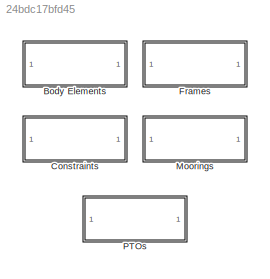
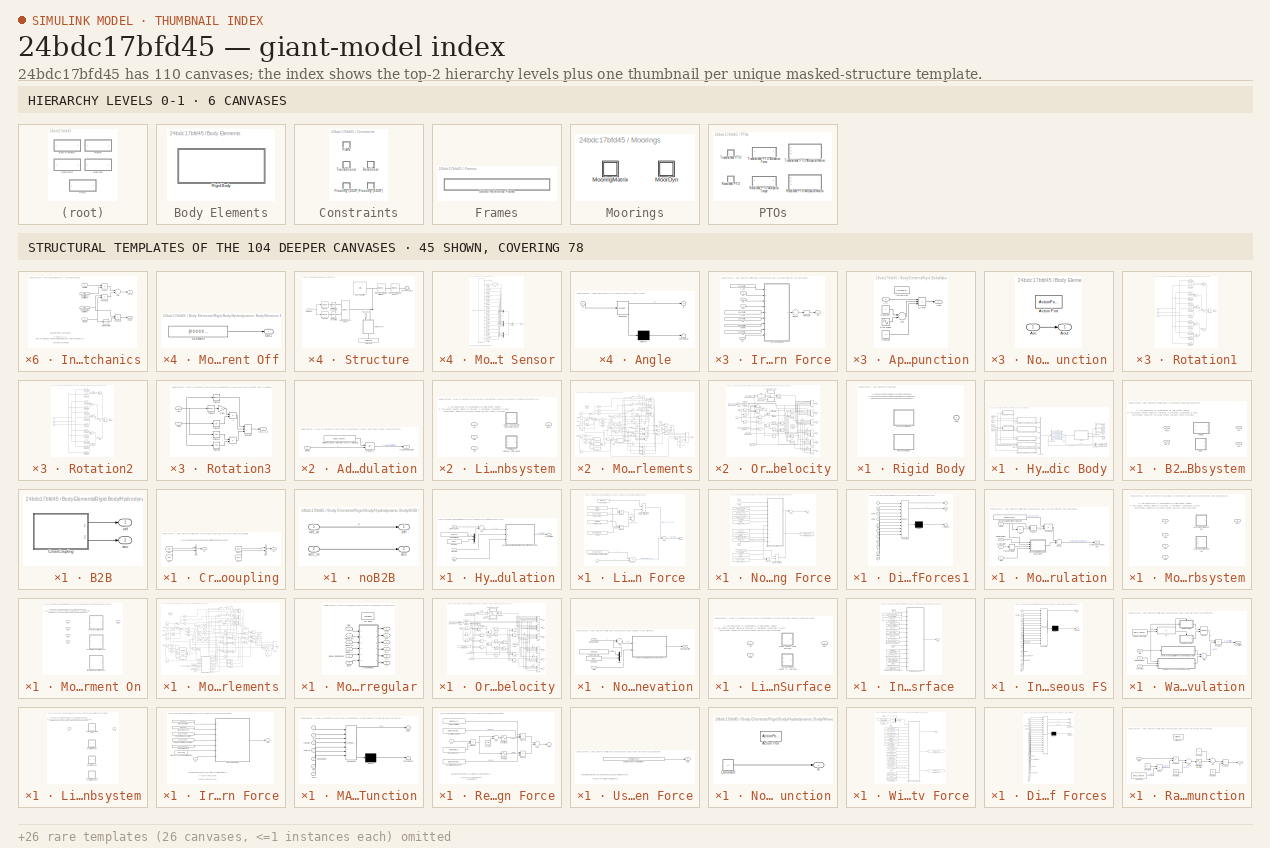
[diagram: thumbnail index - top-2 hierarchy levels (6 canvases) + 45 structural-template representatives of the remaining 104 canvases]
MODEL slx_24bdc17bfd45
KIND library
CONFIG AbsTol = auto
CONFIG FixedStep = auto
CONFIG MaxStep = auto
CONFIG MinStep = auto
CONFIG RelTol = 1e-3
CONFIG SampleTimeConstraint = Unconstrained
CONFIG Solver = ode45
CONFIG SolverMode = Auto
CONFIG SolverName = ode45
CONFIG StartTime = 0.0
CONFIG StopTime = 10.0
BLOCK [SubSystem] Body Elements
  Ports = []
  RequestExecContextInheritance = off
  Variant = off
BLOCK [SubSystem] Body Elements/Rigid Body
  AttributesFormatString = %<body>
  Ports = [0, 0, 0, 0, 0, 0, 1]
  RequestExecContextInheritance = off
  Variant = on
BLOCK [PMIOPort] Body Elements/Rigid Body/Conn
  Port = 1
  Side = Right
BLOCK [SubSystem] Body Elements/Rigid Body/Hydrodynamic Body
  Ports = [0, 0, 0, 0, 0, 0, 1]
  RequestExecContextInheritance = off
  Variant = off
  VariantControl = sv_b_hydroBody
BLOCK [SubSystem] Body Elements/Rigid Body/Hydrodynamic Body/Additional Linear Damping Force Calculation
  Ports = [1, 1]
  RequestExecContextInheritance = off
  Variant = off
BLOCK [Constant] Body Elements/Rigid Body/Hydrodynamic Body/Additional Linear Damping Force Calculation/Additional Linear Damping Matrix (diagonal)
  Value = body.hydroForce.linearDamping
BLOCK [Outport] Body Elements/Rigid Body/Hydrodynamic Body/Additional Linear Damping Force Calculation/F_LinearDamping
  IconDisplay = Port number
BLOCK [Product] Body Elements/Rigid Body/Hydrodynamic Body/Additional Linear Damping Force Calculation/Product1
  InputSameDT = off
  Multiplication = Matrix(*)
  OutDataTypeStr = Inherit: Inherit via internal rule
  Ports = [2, 1]
  RndMeth = Floor
  SaturateOnIntegerOverflow = off
BLOCK [Inport] Body Elements/Rigid Body/Hydrodynamic Body/Additional Linear Damping Force Calculation/Velocity
  IconDisplay = Port number
BLOCK [SubSystem] Body Elements/Rigid Body/Hydrodynamic Body/B2B Subsystem
  Ports = [2, 2]
  RequestExecContextInheritance = off
  Variant = on
BLOCK [SubSystem] Body Elements/Rigid Body/Hydrodynamic Body/B2B Subsystem/B2B
  Ports = [0, 2]
  RequestExecContextInheritance = off
  Variant = off
  VariantControl = sv_B2B
BLOCK [SubSystem] Body Elements/Rigid Body/Hydrodynamic Body/B2B Subsystem/B2B/CrossCoupling
  Ports = [0, 2]
  RequestExecContextInheritance = off
  Variant = off
BLOCK [BusCreator] Body Elements/Rigid Body/Hydrodynamic Body/B2B Subsystem/B2B/CrossCoupling/BC1
  InheritFromInputs = on
  Inputs = 2
  Ports = [2, 1]
BLOCK [BusCreator] Body Elements/Rigid Body/Hydrodynamic Body/B2B Subsystem/B2B/CrossCoupling/BC2
  InheritFromInputs = on
  Inputs = 2
  Ports = [2, 1]
BLOCK [Outport] Body Elements/Rigid Body/Hydrodynamic Body/B2B Subsystem/B2B/CrossCoupling/acc
  IconDisplay = Port number
  Port = 2
BLOCK [From] Body Elements/Rigid Body/Hydrodynamic Body/B2B Subsystem/B2B/CrossCoupling/acc1
  GotoTag = acc1
BLOCK [From] Body Elements/Rigid Body/Hydrodynamic Body/B2B Subsystem/B2B/CrossCoupling/acc2
  GotoTag = acc2
BLOCK [Outport] Body Elements/Rigid Body/Hydrodynamic Body/B2B Subsystem/B2B/CrossCoupling/vel
  IconDisplay = Port number
BLOCK [From] Body Elements/Rigid Body/Hydrodynamic Body/B2B Subsystem/B2B/CrossCoupling/vel1
  GotoTag = vel1
BLOCK [From] Body Elements/Rigid Body/Hydrodynamic Body/B2B Subsystem/B2B/CrossCoupling/vel2
  GotoTag = vel2
BLOCK [Outport] Body Elements/Rigid Body/Hydrodynamic Body/B2B Subsystem/B2B/acc
  IconDisplay = Port number
  Port = 2
BLOCK [Outport] Body Elements/Rigid Body/Hydrodynamic Body/B2B Subsystem/B2B/vel
  IconDisplay = Port number
BLOCK [Outport] Body Elements/Rigid Body/Hydrodynamic Body/B2B Subsystem/acc
  IconDisplay = Port number
  Port = 2
BLOCK [Inport] Body Elements/Rigid Body/Hydrodynamic Body/B2B Subsystem/acc_in
  IconDisplay = Port number
  Port = 2
BLOCK [SubSystem] Body Elements/Rigid Body/Hydrodynamic Body/B2B Subsystem/noB2B
  Ports = [2, 2]
  RequestExecContextInheritance = off
  Variant = off
  VariantControl = sv_noB2B
BLOCK [Outport] Body Elements/Rigid Body/Hydrodynamic Body/B2B Subsystem/noB2B/acc
  IconDisplay = Port number
  Port = 2
BLOCK [Inport] Body Elements/Rigid Body/Hydrodynamic Body/B2B Subsystem/noB2B/acc_in
  IconDisplay = Port number
  Port = 2
BLOCK [Outport] Body Elements/Rigid Body/Hydrodynamic Body/B2B Subsystem/noB2B/vel
  IconDisplay = Port number
BLOCK [Inport] Body Elements/Rigid Body/Hydrodynamic Body/B2B Subsystem/noB2B/vel_in
  IconDisplay = Port number
BLOCK [Outport] Body Elements/Rigid Body/Hydrodynamic Body/B2B Subsystem/vel
  IconDisplay = Port number
BLOCK [Inport] Body Elements/Rigid Body/Hydrodynamic Body/B2B Subsystem/vel_in
  IconDisplay = Port number
BLOCK [BusCreator] Body Elements/Rigid Body/Hydrodynamic Body/Bus Creator
  DisplayOption = bar
  InheritFromInputs = on
  Inputs = 6
  Ports = [6, 1]
BLOCK [BusCreator] Body Elements/Rigid Body/Hydrodynamic Body/Bus Creator1
  DisplayOption = bar
  InheritFromInputs = on
  Inputs = 3
  Ports = [3, 1]
BLOCK [BusSelector] Body Elements/Rigid Body/Hydrodynamic Body/Bus Selector1
  OutputSignals = F_Excitation,F_RadiationDamping,F_AddedMass,F_Restoring,F_MorrisonAndViscous,F_LinearDamping
  Ports = [1, 6]
BLOCK [BusSelector] Body Elements/Rigid Body/Hydrodynamic Body/Bus Selector2
  OutputSignals = disp,vel,acc
  Ports = [1, 3]
BLOCK [PMIOPort] Body Elements/Rigid Body/Hydrodynamic Body/Conn
  Port = 1
  Side = Right
BLOCK [From] Body Elements/Rigid Body/Hydrodynamic Body/From
  GotoTag = disp
BLOCK [From] Body Elements/Rigid Body/Hydrodynamic Body/From1
  GotoTag = vel
BLOCK [From] Body Elements/Rigid Body/Hydrodynamic Body/From2
  GotoTag = acc
BLOCK [Goto] Body Elements/Rigid Body/Hydrodynamic Body/Goto
  GotoTag = disp
  TagVisibility = global
BLOCK [Goto] Body Elements/Rigid Body/Hydrodynamic Body/Goto1
  GotoTag = vel
  TagVisibility = global
BLOCK [Goto] Body Elements/Rigid Body/Hydrodynamic Body/Goto2
  GotoTag = acc
  TagVisibility = global
BLOCK [SubSystem] Body Elements/Rigid Body/Hydrodynamic Body/Hydrostatic Restoring Force Calculation
  Ports = [3, 1]
  RequestExecContextInheritance = off
  Variant = off
BLOCK [Sum] Body Elements/Rigid Body/Hydrodynamic Body/Hydrostatic Restoring Force Calculation/Add
  InputSameDT = off
  Inputs = +-
  OutDataTypeStr = Inherit: Inherit via internal rule
  Ports = [2, 1]
  SaturateOnIntegerOverflow = off
BLOCK [Constant] Body Elements/Rigid Body/Hydrodynamic Body/Hydrostatic Restoring Force Calculation/Center of Gravity
  Value = body.cg
BLOCK [Constant] Body Elements/Rigid Body/Hydrodynamic Body/Hydrostatic Restoring Force Calculation/Constant
  Value = [0 0 0]
BLOCK [Inport] Body Elements/Rigid Body/Hydrodynamic Body/Hydrostatic Restoring Force Calculation/Displacement
  IconDisplay = Port number
BLOCK [Outport] Body Elements/Rigid Body/Hydrodynamic Body/Hydrostatic Restoring Force Calculation/F_Restoring
  IconDisplay = Port number
BLOCK [SubSystem] Body Elements/Rigid Body/Hydrodynamic Body/Hydrostatic Restoring Force Calculation/Linear and Nonlinear Restoring Force Variant Subsystem
  Ports = [3, 1]
  RequestExecContextInheritance = off
  Variant = on
BLOCK [Inport] Body Elements/Rigid Body/Hydrodynamic Body/Hydrostatic Restoring Force Calculation/Linear and Nonlinear Restoring Force Variant Subsystem/In1
  IconDisplay = Port number
BLOCK [Inport] Body Elements/Rigid Body/Hydrodynamic Body/Hydrostatic Restoring Force Calculation/Linear and Nonlinear Restoring Force Variant Subsystem/In2
  IconDisplay = Port number
  Port = 2
BLOCK [Inport] Body Elements/Rigid Body/Hydrodynamic Body/Hydrostatic Restoring Force Calculation/Linear and Nonlinear Restoring Force Variant Subsystem/In3
  IconDisplay = Port number
  Port = 3
BLOCK [SubSystem] Body Elements/Rigid Body/Hydrodynamic Body/Hydrostatic Restoring Force Calculation/Linear and Nonlinear Restoring Force Variant Subsystem/Linear Hydrostatic Restoring Force 
  Ports = [1, 1]
  RequestExecContextInheritance = off
  Variant = off
  VariantControl = sv_linearHydro
BLOCK [Sum] Body Elements/Rigid Body/Hydrodynamic Body/Hydrostatic Restoring Force Calculation/Linear and Nonlinear Restoring Force Variant Subsystem/Linear Hydrostatic Restoring Force /Add1
  InputSameDT = off
  Inputs = +-
  OutDataTypeStr = Inherit: Inherit via internal rule
  Ports = [2, 1]
  SaturateOnIntegerOverflow = off
BLOCK [Sum] Body Elements/Rigid Body/Hydrodynamic Body/Hydrostatic Restoring Force Calculation/Linear and Nonlinear Restoring Force Variant Subsystem/Linear Hydrostatic Restoring Force /Add2
  InputSameDT = off
  OutDataTypeStr = Inherit: Inherit via internal rule
  Ports = [2, 1]
  SaturateOnIntegerOverflow = off
BLOCK [Assignment] Body Elements/Rigid Body/Hydrodynamic Body/Hydrostatic Restoring Force Calculation/Linear and Nonlinear Restoring Force Variant Subsystem/Linear Hydrostatic Restoring Force /Assignment (Add Net Bouyancy Force to Z-Direction)
  IndexOptions = Index vector (dialog)
  Indices = 3
  OutputSizes = 1
  Ports = [2, 1]
BLOCK [Constant] Body Elements/Rigid Body/Hydrodynamic Body/Hydrostatic Restoring Force Calculation/Linear and Nonlinear Restoring Force Variant Subsystem/Linear Hydrostatic Restoring Force /Body Mass
  Value = body.hydroForce.storage.mass
BLOCK [Constant] Body Elements/Rigid Body/Hydrodynamic Body/Hydrostatic Restoring Force Calculation/Linear and Nonlinear Restoring Force Variant Subsystem/Linear Hydrostatic Restoring Force /Constant1
  Value = [0 0 0 0 0 0]
BLOCK [Constant] Body Elements/Rigid Body/Hydrodynamic Body/Hydrostatic Restoring Force Calculation/Linear and Nonlinear Restoring Force Variant Subsystem/Linear Hydrostatic Restoring Force /Gravity
  Value = simu.g
BLOCK [Inport] Body Elements/Rigid Body/Hydrodynamic Body/Hydrostatic Restoring Force Calculation/Linear and Nonlinear Restoring Force Variant Subsystem/Linear Hydrostatic Restoring Force /In1
  IconDisplay = Port number
BLOCK [Constant] Body Elements/Rigid Body/Hydrodynamic Body/Hydrostatic Restoring Force Calculation/Linear and Nonlinear Restoring Force Variant Subsystem/Linear Hydrostatic Restoring Force /Linear Restioring Coefficient Matrix
  Value = body.hydroForce.linearHydroRestCoef
BLOCK [Outport] Body Elements/Rigid Body/Hydrodynamic Body/Hydrostatic Restoring Force Calculation/Linear and Nonlinear Restoring Force Variant Subsystem/Linear Hydrostatic Restoring Force /Out1
  IconDisplay = Port number
BLOCK [Product] Body Elements/Rigid Body/Hydrodynamic Body/Hydrostatic Restoring Force Calculation/Linear and Nonlinear Restoring Force Variant Subsystem/Linear Hydrostatic Restoring Force /Product
  InputSameDT = off
  OutDataTypeStr = Inherit: Inherit via internal rule
  Ports = [2, 1]
  RndMeth = Floor
  SaturateOnIntegerOverflow = off
BLOCK [Product] Body Elements/Rigid Body/Hydrodynamic Body/Hydrostatic Restoring Force Calculation/Linear and Nonlinear Restoring Force Variant Subsystem/Linear Hydrostatic Restoring Force /Product1
  InputSameDT = off
  Inputs = 3
  OutDataTypeStr = Inherit: Inherit via internal rule
  Ports = [3, 1]
  RndMeth = Floor
  SaturateOnIntegerOverflow = off
BLOCK [Product] Body Elements/Rigid Body/Hydrodynamic Body/Hydrostatic Restoring Force Calculation/Linear and Nonlinear Restoring Force Variant Subsystem/Linear Hydrostatic Restoring Force /Product2
  InputSameDT = off
  Multiplication = Matrix(*)
  OutDataTypeStr = Inherit: Inherit via internal rule
  Ports = [2, 1]
  RndMeth = Floor
  SaturateOnIntegerOverflow = off
BLOCK [Constant] Body Elements/Rigid Body/Hydrodynamic Body/Hydrostatic Restoring Force Calculation/Linear and Nonlinear Restoring Force Variant Subsystem/Linear Hydrostatic Restoring Force /Volume
  Value = body.dispVol
BLOCK [Constant] Body Elements/Rigid Body/Hydrodynamic Body/Hydrostatic Restoring Force Calculation/Linear and Nonlinear Restoring Force Variant Subsystem/Linear Hydrostatic Restoring Force /Water Density
  Value = simu.rho
BLOCK [SubSystem] Body Elements/Rigid Body/Hydrodynamic Body/Hydrostatic Restoring Force Calculation/Linear and Nonlinear Restoring Force Variant Subsystem/Nonlinear Hydrostatic Restoring Force
  Ports = [3, 1]
  RequestExecContextInheritance = off
  Variant = off
  VariantControl = sv_nonlinearHydro
BLOCK [Sum] Body Elements/Rigid Body/Hydrodynamic Body/Hydrostatic Restoring Force Calculation/Linear and Nonlinear Restoring Force Variant Subsystem/Nonlinear Hydrostatic Restoring Force/Add3
  InputSameDT = off
  Inputs = -+
  OutDataTypeStr = Inherit: Inherit via internal rule
  Ports = [2, 1]
  SaturateOnIntegerOverflow = off
BLOCK [Assignment] Body Elements/Rigid Body/Hydrodynamic Body/Hydrostatic Restoring Force Calculation/Linear and Nonlinear Restoring Force Variant Subsystem/Nonlinear Hydrostatic Restoring Force/Assignment (Add Net Bouyancy Force to Z-Direction)2
  IndexOptions = Index vector (dialog)
  Indices = 3
  OutputSizes = 1
  Ports = [2, 1]
BLOCK [Constant] Body Elements/Rigid Body/Hydrodynamic Body/Hydrostatic Restoring Force Calculation/Linear and Nonlinear Restoring Force Variant Subsystem/Nonlinear Hydrostatic Restoring Force/Body Mass1
  Value = body.hydroForce.storage.mass
BLOCK [Constant] Body Elements/Rigid Body/Hydrodynamic Body/Hydrostatic Restoring Force Calculation/Linear and Nonlinear Restoring Force Variant Subsystem/Nonlinear Hydrostatic Restoring Force/Center of Gravity
  Value = body.cg
BLOCK [Constant] Body Elements/Rigid Body/Hydrodynamic Body/Hydrostatic Restoring Force Calculation/Linear and Nonlinear Restoring Force Variant Subsystem/Nonlinear Hydrostatic Restoring Force/Constant2
  Value = [0 0 0 0 0 0]
BLOCK [SubSystem] Body Elements/Rigid Body/Hydrodynamic Body/Hydrostatic Restoring Force Calculation/Linear and Nonlinear Restoring Force Variant Subsystem/Nonlinear Hydrostatic Restoring Force/Diffarction and Excitation Forces1
  ErrorFcn = Stateflow.Translate.translate
  PermitHierarchicalResolution = ExplicitOnly
  Ports = [11, 2]
  RequestExecContextInheritance = off
  SFBlockType = MATLAB Function
  TreatAsAtomicUnit = on
  Variant = off
BLOCK [Demux] Body Elements/Rigid Body/Hydrodynamic Body/Hydrostatic Restoring Force Calculation/Linear and Nonlinear Restoring Force Variant Subsystem/Nonlinear Hydrostatic Restoring Force/Diffarction and Excitation Forces1/ Demux 
  Outputs = 1
  Ports = [1, 1]
BLOCK [S-Function] Body Elements/Rigid Body/Hydrodynamic Body/Hydrostatic Restoring Force Calculation/Linear and Nonlinear Restoring Force Variant Subsystem/Nonlinear Hydrostatic Restoring Force/Diffarction and Excitation Forces1/ SFunction 
  EnableBusSupport = off
  FunctionName = sf_sfun
  PortCounts = [11 3]
  Ports = [11, 3]
  SFunctionDeploymentMode = off
  Tag = Stateflow S-Function WECSim_Lib 4
BLOCK [Terminator] Body Elements/Rigid Body/Hydrodynamic Body/Hydrostatic Restoring Force Calculation/Linear and Nonlinear Restoring Force Variant Subsystem/Nonlinear Hydrostatic Restoring Force/Diffarction and Excitation Forces1/ Terminator 
BLOCK [Inport] Body Elements/Rigid Body/Hydrodynamic Body/Hydrostatic Restoring Force Calculation/Linear and Nonlinear Restoring Force Variant Subsystem/Nonlinear Hydrostatic Restoring Force/Diffarction and Excitation Forces1/area
  IconDisplay = Port number
  Port = 5
BLOCK [Inport] Body Elements/Rigid Body/Hydrodynamic Body/Hydrostatic Restoring Force Calculation/Linear and Nonlinear Restoring Force Variant Subsystem/Nonlinear Hydrostatic Restoring Force/Diffarction and Excitation Forces1/center
  IconDisplay = Port number
  Port = 3
BLOCK [Inport] Body Elements/Rigid Body/Hydrodynamic Body/Hydrostatic Restoring Force Calculation/Linear and Nonlinear Restoring Force Variant Subsystem/Nonlinear Hydrostatic Restoring Force/Diffarction and Excitation Forces1/cg
  IconDisplay = Port number
  Port = 8
BLOCK [Inport] Body Elements/Rigid Body/Hydrodynamic Body/Hydrostatic Restoring Force Calculation/Linear and Nonlinear Restoring Force Variant Subsystem/Nonlinear Hydrostatic Restoring Force/Diffarction and Excitation Forces1/dt
  IconDisplay = Port number
  Port = 9
BLOCK [Inport] Body Elements/Rigid Body/Hydrodynamic Body/Hydrostatic Restoring Force Calculation/Linear and Nonlinear Restoring Force Variant Subsystem/Nonlinear Hydrostatic Restoring Force/Diffarction and Excitation Forces1/dtFe
  IconDisplay = Port number
  Port = 10
BLOCK [Inport] Body Elements/Rigid Body/Hydrodynamic Body/Hydrostatic Restoring Force Calculation/Linear and Nonlinear Restoring Force Variant Subsystem/Nonlinear Hydrostatic Restoring Force/Diffarction and Excitation Forces1/elv
  IconDisplay = Port number
  Port = 2
BLOCK [Outport] Body Elements/Rigid Body/Hydrodynamic Body/Hydrostatic Restoring Force Calculation/Linear and Nonlinear Restoring Force Variant Subsystem/Nonlinear Hydrostatic Restoring Force/Diffarction and Excitation Forces1/f
  IconDisplay = Port number
BLOCK [Inport] Body Elements/Rigid Body/Hydrodynamic Body/Hydrostatic Restoring Force Calculation/Linear and Nonlinear Restoring Force Variant Subsystem/Nonlinear Hydrostatic Restoring Force/Diffarction and Excitation Forces1/g
  IconDisplay = Port number
  Port = 7
BLOCK [Outport] Body Elements/Rigid Body/Hydrodynamic Body/Hydrostatic Restoring Force Calculation/Linear and Nonlinear Restoring Force Variant Subsystem/Nonlinear Hydrostatic Restoring Force/Diffarction and Excitation Forces1/p
  IconDisplay = Port number
  Port = 2
BLOCK [Inport] Body Elements/Rigid Body/Hydrodynamic Body/Hydrostatic Restoring Force Calculation/Linear and Nonlinear Restoring Force Variant Subsystem/Nonlinear Hydrostatic Restoring Force/Diffarction and Excitation Forces1/rho
  IconDisplay = Port number
  Port = 6
BLOCK [Inport] Body Elements/Rigid Body/Hydrodynamic Body/Hydrostatic Restoring Force Calculation/Linear and Nonlinear Restoring Force Variant Subsystem/Nonlinear Hydrostatic Restoring Force/Diffarction and Excitation Forces1/t
  IconDisplay = Port number
  Port = 11
BLOCK [Inport] Body Elements/Rigid Body/Hydrodynamic Body/Hydrostatic Restoring Force Calculation/Linear and Nonlinear Restoring Force Variant Subsystem/Nonlinear Hydrostatic Restoring Force/Diffarction and Excitation Forces1/tnorm
  IconDisplay = Port number
  Port = 4
BLOCK [Inport] Body Elements/Rigid Body/Hydrodynamic Body/Hydrostatic Restoring Force Calculation/Linear and Nonlinear Restoring Force Variant Subsystem/Nonlinear Hydrostatic Restoring Force/Diffarction and Excitation Forces1/x
  IconDisplay = Port number
BLOCK [Constant] Body Elements/Rigid Body/Hydrodynamic Body/Hydrostatic Restoring Force Calculation/Linear and Nonlinear Restoring Force Variant Subsystem/Nonlinear Hydrostatic Restoring Force/Gravity2
  Value = simu.g
BLOCK [Inport] Body Elements/Rigid Body/Hydrodynamic Body/Hydrostatic Restoring Force Calculation/Linear and Nonlinear Restoring Force Variant Subsystem/Nonlinear Hydrostatic Restoring Force/In1
  IconDisplay = Port number
BLOCK [Inport] Body Elements/Rigid Body/Hydrodynamic Body/Hydrostatic Restoring Force Calculation/Linear and Nonlinear Restoring Force Variant Subsystem/Nonlinear Hydrostatic Restoring Force/In2
  IconDisplay = Port number
  Port = 2
BLOCK [Inport] Body Elements/Rigid Body/Hydrodynamic Body/Hydrostatic Restoring Force Calculation/Linear and Nonlinear Restoring Force Variant Subsystem/Nonlinear Hydrostatic Restoring Force/In3
  IconDisplay = Port number
  Port = 3
BLOCK [Outport] Body Elements/Rigid Body/Hydrodynamic Body/Hydrostatic Restoring Force Calculation/Linear and Nonlinear Restoring Force Variant Subsystem/Nonlinear Hydrostatic Restoring Force/Out1
  IconDisplay = Port number
BLOCK [Product] Body Elements/Rigid Body/Hydrodynamic Body/Hydrostatic Restoring Force Calculation/Linear and Nonlinear Restoring Force Variant Subsystem/Nonlinear Hydrostatic Restoring Force/Product3
  InputSameDT = off
  OutDataTypeStr = Inherit: Inherit via internal rule
  Ports = [2, 1]
  RndMeth = Floor
  SaturateOnIntegerOverflow = off
BLOCK [Constant] Body Elements/Rigid Body/Hydrodynamic Body/Hydrostatic Restoring Force Calculation/Linear and Nonlinear Restoring Force Variant Subsystem/Nonlinear Hydrostatic Restoring Force/SImulation Step Time
  Value = simu.dt
BLOCK [Constant] Body Elements/Rigid Body/Hydrodynamic Body/Hydrostatic Restoring Force Calculation/Linear and Nonlinear Restoring Force Variant Subsystem/Nonlinear Hydrostatic Restoring Force/STL areas
  Value = body.bodyGeometry.area
BLOCK [Constant] Body Elements/Rigid Body/Hydrodynamic Body/Hydrostatic Restoring Force Calculation/Linear and Nonlinear Restoring Force Variant Subsystem/Nonlinear Hydrostatic Restoring Force/STL centers
  Value = body.bodyGeometry.center
BLOCK [Constant] Body Elements/Rigid Body/Hydrodynamic Body/Hydrostatic Restoring Force Calculation/Linear and Nonlinear Restoring Force Variant Subsystem/Nonlinear Hydrostatic Restoring Force/STL normal vectors
  Value = body.bodyGeometry.norm
BLOCK [Constant] Body Elements/Rigid Body/Hydrodynamic Body/Hydrostatic Restoring Force Calculation/Linear and Nonlinear Restoring Force Variant Subsystem/Nonlinear Hydrostatic Restoring Force/Simulation Fe Calc Step Time
  Value = simu.dtFeNonlin
BLOCK [ToWorkspace] Body Elements/Rigid Body/Hydrodynamic Body/Hydrostatic Restoring Force Calculation/Linear and Nonlinear Restoring Force Variant Subsystem/Nonlinear Hydrostatic Restoring Force/To Workspace1
  Decimation = round(simu.dtOut/simu.dt,0)
  MaxDataPoints = inf
  Ports = [1]
  SampleTime = -1
  SaveFormat = Structure With Time
  VariableName = body_hspressure_out
BLOCK [Constant] Body Elements/Rigid Body/Hydrodynamic Body/Hydrostatic Restoring Force Calculation/Linear and Nonlinear Restoring Force Variant Subsystem/Nonlinear Hydrostatic Restoring Force/Water Density1
  Value = simu.rho
BLOCK [Outport] Body Elements/Rigid Body/Hydrodynamic Body/Hydrostatic Restoring Force Calculation/Linear and Nonlinear Restoring Force Variant Subsystem/Out1
  IconDisplay = Port number
BLOCK [Mux] Body Elements/Rigid Body/Hydrodynamic Body/Hydrostatic Restoring Force Calculation/Mux
  DisplayOption = bar
  Inputs = 2
  Ports = [2, 1]
BLOCK [Inport] Body Elements/Rigid Body/Hydrodynamic Body/Hydrostatic Restoring Force Calculation/Time
  IconDisplay = Port number
  Port = 3
BLOCK [Inport] Body Elements/Rigid Body/Hydrodynamic Body/Hydrostatic Restoring Force Calculation/Wave Elv
  IconDisplay = Port number
  Port = 2
BLOCK [SubSystem] Body Elements/Rigid Body/Hydrodynamic Body/Morrison Element and ViscousDampingForceCalculation
  Ports = [4, 1]
  RequestExecContextInheritance = off
  Variant = off
BLOCK [Abs] Body Elements/Rigid Body/Hydrodynamic Body/Morrison Element and ViscousDampingForceCalculation/Abs1
  SaturateOnIntegerOverflow = off
BLOCK [Inport] Body Elements/Rigid Body/Hydrodynamic Body/Morrison Element and ViscousDampingForceCalculation/Acceleration
  IconDisplay = Port number
  Port = 2
BLOCK [Inport] Body Elements/Rigid Body/Hydrodynamic Body/Morrison Element and ViscousDampingForceCalculation/Displacement
  IconDisplay = Port number
BLOCK [Outport] Body Elements/Rigid Body/Hydrodynamic Body/Morrison Element and ViscousDampingForceCalculation/F_MorrisonAndViscous
  IconDisplay = Port number
BLOCK [SubSystem] Body Elements/Rigid Body/Hydrodynamic Body/Morrison Element and ViscousDampingForceCalculation/Morrison Element Variant Subsystem
  Ports = [4, 1]
  RequestExecContextInheritance = off
  Variant = on
BLOCK [Inport] Body Elements/Rigid Body/Hydrodynamic Body/Morrison Element and ViscousDampingForceCalculation/Morrison Element Variant Subsystem/In1
  IconDisplay = Port number
BLOCK [Inport] Body Elements/Rigid Body/Hydrodynamic Body/Morrison Element and ViscousDampingForceCalculation/Morrison Element Variant Subsystem/In2
  IconDisplay = Port number
  Port = 2
BLOCK [Inport] Body Elements/Rigid Body/Hydrodynamic Body/Morrison Element and ViscousDampingForceCalculation/Morrison Element Variant Subsystem/In3
  IconDisplay = Port number
  Port = 3
BLOCK [Inport] Body Elements/Rigid Body/Hydrodynamic Body/Morrison Element and ViscousDampingForceCalculation/Morrison Element Variant Subsystem/In4
  IconDisplay = Port number
  Port = 4
BLOCK [SubSystem] Body Elements/Rigid Body/Hydrodynamic Body/Morrison Element and ViscousDampingForceCalculation/Morrison Element Variant Subsystem/Morrison Element Off
  Ports = [0, 1]
  RequestExecContextInheritance = off
  Variant = off
  VariantControl = sv_MEOff
BLOCK [Constant] Body Elements/Rigid Body/Hydrodynamic Body/Morrison Element and ViscousDampingForceCalculation/Morrison Element Variant Subsystem/Morrison Element Off/Constant
  Value = [0 0 0 0 0 0]
BLOCK [Outport] Body Elements/Rigid Body/Hydrodynamic Body/Morrison Element and ViscousDampingForceCalculation/Morrison Element Variant Subsystem/Morrison Element Off/Out1
  IconDisplay = Port number
BLOCK [SubSystem] Body Elements/Rigid Body/Hydrodynamic Body/Morrison Element and ViscousDampingForceCalculation/Morrison Element Variant Subsystem/Morrison Element On
  Ports = [4, 1]
  RequestExecContextInheritance = off
  Variant = on
  VariantControl = sv_MEOn
BLOCK [Inport] Body Elements/Rigid Body/Hydrodynamic Body/Morrison Element and ViscousDampingForceCalculation/Morrison Element Variant Subsystem/Morrison Element On/In1
  IconDisplay = Port number
BLOCK [Inport] Body Elements/Rigid Body/Hydrodynamic Body/Morrison Element and ViscousDampingForceCalculation/Morrison Element Variant Subsystem/Morrison Element On/In2
  IconDisplay = Port number
  Port = 2
BLOCK [Inport] Body Elements/Rigid Body/Hydrodynamic Body/Morrison Element and ViscousDampingForceCalculation/Morrison Element Variant Subsystem/Morrison Element On/In3
  IconDisplay = Port number
  Port = 3
BLOCK [Inport] Body Elements/Rigid Body/Hydrodynamic Body/Morrison Element and ViscousDampingForceCalculation/Morrison Element Variant Subsystem/Morrison Element On/In4
  IconDisplay = Port number
  Port = 4
BLOCK [SubSystem] Body Elements/Rigid Body/Hydrodynamic Body/Morrison Element and ViscousDampingForceCalculation/Morrison Element Variant Subsystem/Morrison Element On/Irregular Wave Excitation Force
  Ports = [4, 1]
  RequestExecContextInheritance = off
  Variant = off
  VariantControl = sv_irregularWaves
BLOCK [Constant] Body Elements/Rigid Body/Hydrodynamic Body/Morrison Element and ViscousDampingForceCalculation/Morrison Element Variant Subsystem/Morrison Element On/Irregular Wave Excitation Force/Area
  Value = body.morrisonElement.characteristicArea
  VectorParams1D = off
BLOCK [Constant] Body Elements/Rigid Body/Hydrodynamic Body/Morrison Element and ViscousDampingForceCalculation/Morrison Element Variant Subsystem/Morrison Element On/Irregular Wave Excitation Force/Ca
  Value = body.morrisonElement.ca
  VectorParams1D = off
BLOCK [Constant] Body Elements/Rigid Body/Hydrodynamic Body/Morrison Element and ViscousDampingForceCalculation/Morrison Element Variant Subsystem/Morrison Element On/Irregular Wave Excitation Force/Cd
  Value = body.morrisonElement.cd
  VectorParams1D = off
BLOCK [Inport] Body Elements/Rigid Body/Hydrodynamic Body/Morrison Element and ViscousDampingForceCalculation/Morrison Element Variant Subsystem/Morrison Element On/Irregular Wave Excitation Force/In1
  IconDisplay = Port number
BLOCK [Inport] Body Elements/Rigid Body/Hydrodynamic Body/Morrison Element and ViscousDampingForceCalculation/Morrison Element Variant Subsystem/Morrison Element On/Irregular Wave Excitation Force/In2
  IconDisplay = Port number
  Port = 2
BLOCK [Inport] Body Elements/Rigid Body/Hydrodynamic Body/Morrison Element and ViscousDampingForceCalculation/Morrison Element Variant Subsystem/Morrison Element On/Irregular Wave Excitation Force/In3
  IconDisplay = Port number
  Port = 3
BLOCK [Inport] Body Elements/Rigid Body/Hydrodynamic Body/Morrison Element and ViscousDampingForceCalculation/Morrison Element Variant Subsystem/Morrison Element On/Irregular Wave Excitation Force/In4
  IconDisplay = Port number
  Port = 4
BLOCK [Sum] Body Elements/Rigid Body/Hydrodynamic Body/Morrison Element and ViscousDampingForceCalculation/Morrison Element Variant Subsystem/Morrison Element On/Irregular Wave Excitation Force/MESum
  CollapseMode = Specified dimension
  InputSameDT = off
  Inputs = +
  OutDataTypeStr = Inherit: Inherit via internal rule
  Ports = [1, 1]
  SaturateOnIntegerOverflow = off
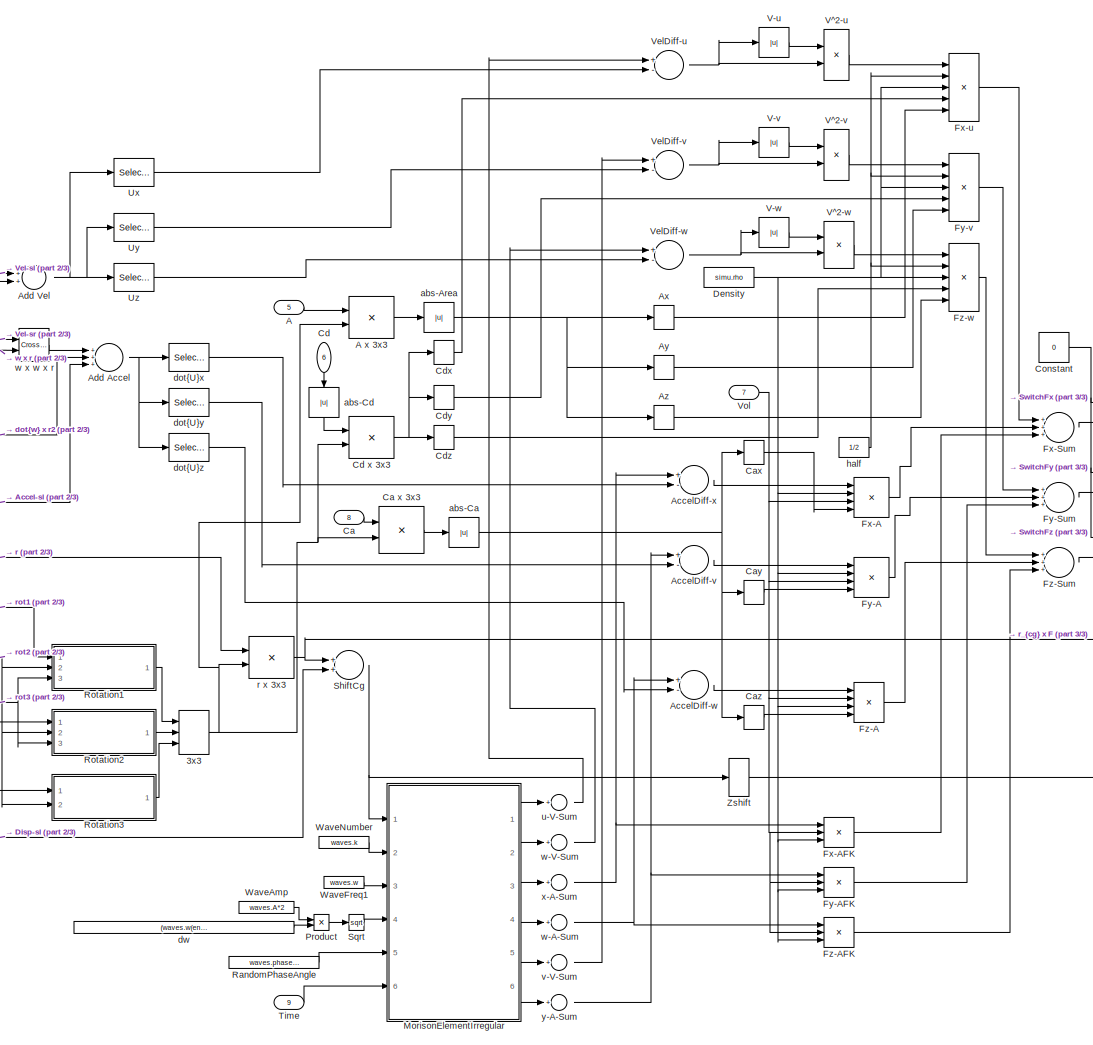
[diagram: Body Elements/Rigid Body/Hydrodynamic Body/Morrison Element and ViscousDampingForceCalculation/Morrison Element Variant Subsystem/Morrison Element On/Irregular Wave Excitation Force/MorrisonElements - part 1/3, center side, full height]
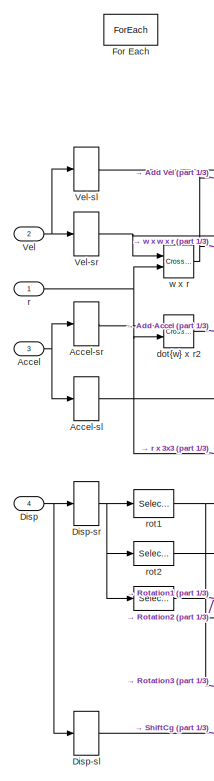
[diagram: Body Elements/Rigid Body/Hydrodynamic Body/Morrison Element and ViscousDampingForceCalculation/Morrison Element Variant Subsystem/Morrison Element On/Irregular Wave Excitation Force/MorrisonElements - part 2/3, middle left region]
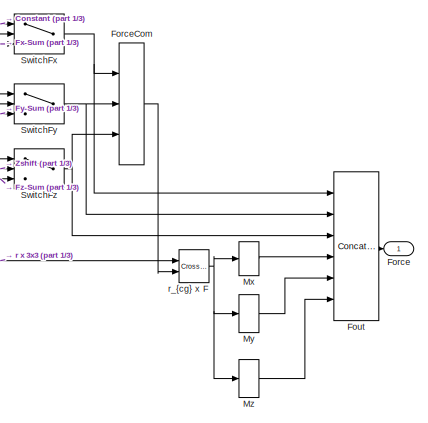
[diagram: Body Elements/Rigid Body/Hydrodynamic Body/Morrison Element and ViscousDampingForceCalculation/Morrison Element Variant Subsystem/Morrison Element On/Irregular Wave Excitation Force/MorrisonElements - part 3/3, middle right region]
BLOCK [SubSystem] Body Elements/Rigid Body/Hydrodynamic Body/Morrison Element and ViscousDampingForceCalculation/Morrison Element Variant Subsystem/Morrison Element On/Irregular Wave Excitation Force/MorrisonElements
  Ports = [9, 1]
  RequestExecContextInheritance = off
  TreatAsAtomicUnit = on
  Variant = off
BLOCK [Concatenate] Body Elements/Rigid Body/Hydrodynamic Body/Morrison Element and ViscousDampingForceCalculation/Morrison Element Variant Subsystem/Morrison Element On/Irregular Wave Excitation Force/MorrisonElements/3x3
  Mode = Multidimensional array
  NumInputs = 3
  Ports = [3, 1]
BLOCK [Inport] Body Elements/Rigid Body/Hydrodynamic Body/Morrison Element and ViscousDampingForceCalculation/Morrison Element Variant Subsystem/Morrison Element On/Irregular Wave Excitation Force/MorrisonElements/A
  IconDisplay = Port number
  Partition = on
  PartitionDimension = 1
  PartitionWidth = 1
  Port = 5
BLOCK [Product] Body Elements/Rigid Body/Hydrodynamic Body/Morrison Element and ViscousDampingForceCalculation/Morrison Element Variant Subsystem/Morrison Element On/Irregular Wave Excitation Force/MorrisonElements/A x 3x3
  InputSameDT = off
  Multiplication = Matrix(*)
  OutDataTypeStr = Inherit: Inherit via internal rule
  Ports = [2, 1]
  RndMeth = Floor
  SaturateOnIntegerOverflow = off
BLOCK [Inport] Body Elements/Rigid Body/Hydrodynamic Body/Morrison Element and ViscousDampingForceCalculation/Morrison Element Variant Subsystem/Morrison Element On/Irregular Wave Excitation Force/MorrisonElements/Accel
  IconDisplay = Port number
  Port = 3
BLOCK [Selector] Body Elements/Rigid Body/Hydrodynamic Body/Morrison Element and ViscousDampingForceCalculation/Morrison Element Variant Subsystem/Morrison Element On/Irregular Wave Excitation Force/MorrisonElements/Accel-sl
  IndexOptions = Index vector (dialog)
  Indices = [1 2 3]
  InputPortWidth = 6
  OutputSizes = 1
  Ports = [1, 1]
BLOCK [Selector] Body Elements/Rigid Body/Hydrodynamic Body/Morrison Element and ViscousDampingForceCalculation/Morrison Element Variant Subsystem/Morrison Element On/Irregular Wave Excitation Force/MorrisonElements/Accel-sr
  IndexOptions = Index vector (dialog)
  Indices = [4 5 6]
  InputPortWidth = 6
  OutputSizes = 1
  Ports = [1, 1]
BLOCK [Sum] Body Elements/Rigid Body/Hydrodynamic Body/Morrison Element and ViscousDampingForceCalculation/Morrison Element Variant Subsystem/Morrison Element On/Irregular Wave Excitation Force/MorrisonElements/AccelDiff-v
  InputSameDT = off
  Inputs = +-
  OutDataTypeStr = Inherit: Inherit via internal rule
  Ports = [2, 1]
  SaturateOnIntegerOverflow = off
BLOCK [Sum] Body Elements/Rigid Body/Hydrodynamic Body/Morrison Element and ViscousDampingForceCalculation/Morrison Element Variant Subsystem/Morrison Element On/Irregular Wave Excitation Force/MorrisonElements/AccelDiff-w
  InputSameDT = off
  Inputs = +-
  OutDataTypeStr = Inherit: Inherit via internal rule
  Ports = [2, 1]
  SaturateOnIntegerOverflow = off
BLOCK [Sum] Body Elements/Rigid Body/Hydrodynamic Body/Morrison Element and ViscousDampingForceCalculation/Morrison Element Variant Subsystem/Morrison Element On/Irregular Wave Excitation Force/MorrisonElements/AccelDiff-x
  InputSameDT = off
  Inputs = +-
  OutDataTypeStr = Inherit: Inherit via internal rule
  Ports = [2, 1]
  SaturateOnIntegerOverflow = off
BLOCK [Sum] Body Elements/Rigid Body/Hydrodynamic Body/Morrison Element and ViscousDampingForceCalculation/Morrison Element Variant Subsystem/Morrison Element On/Irregular Wave Excitation Force/MorrisonElements/Add Accel
  InputSameDT = off
  Inputs = +++
  OutDataTypeStr = Inherit: Inherit via internal rule
  Ports = [3, 1]
  SaturateOnIntegerOverflow = off
BLOCK [Sum] Body Elements/Rigid Body/Hydrodynamic Body/Morrison Element and ViscousDampingForceCalculation/Morrison Element Variant Subsystem/Morrison Element On/Irregular Wave Excitation Force/MorrisonElements/Add Vel
  InputSameDT = off
  OutDataTypeStr = Inherit: Inherit via internal rule
  Ports = [2, 1]
  SaturateOnIntegerOverflow = off
BLOCK [Selector] Body Elements/Rigid Body/Hydrodynamic Body/Morrison Element and ViscousDampingForceCalculation/Morrison Element Variant Subsystem/Morrison Element On/Irregular Wave Excitation Force/MorrisonElements/Ax
  IndexOptions = Index vector (dialog)
  Indices = [1]
  InputPortWidth = 3
  OutputSizes = 1
  Ports = [1, 1]
BLOCK [Selector] Body Elements/Rigid Body/Hydrodynamic Body/Morrison Element and ViscousDampingForceCalculation/Morrison Element Variant Subsystem/Morrison Element On/Irregular Wave Excitation Force/MorrisonElements/Ay
  IndexOptions = Index vector (dialog)
  Indices = [2]
  InputPortWidth = 3
  OutputSizes = 1
  Ports = [1, 1]
BLOCK [Selector] Body Elements/Rigid Body/Hydrodynamic Body/Morrison Element and ViscousDampingForceCalculation/Morrison Element Variant Subsystem/Morrison Element On/Irregular Wave Excitation Force/MorrisonElements/Az
  IndexOptions = Index vector (dialog)
  Indices = [3]
  InputPortWidth = 3
  OutputSizes = 1
  Ports = [1, 1]
BLOCK [Inport] Body Elements/Rigid Body/Hydrodynamic Body/Morrison Element and ViscousDampingForceCalculation/Morrison Element Variant Subsystem/Morrison Element On/Irregular Wave Excitation Force/MorrisonElements/Ca
  IconDisplay = Port number
  Partition = on
  PartitionDimension = 1
  PartitionWidth = 1
  Port = 8
BLOCK [Product] Body Elements/Rigid Body/Hydrodynamic Body/Morrison Element and ViscousDampingForceCalculation/Morrison Element Variant Subsystem/Morrison Element On/Irregular Wave Excitation Force/MorrisonElements/Ca x 3x3
  InputSameDT = off
  Multiplication = Matrix(*)
  OutDataTypeStr = Inherit: Inherit via internal rule
  Ports = [2, 1]
  RndMeth = Floor
  SaturateOnIntegerOverflow = off
BLOCK [Selector] Body Elements/Rigid Body/Hydrodynamic Body/Morrison Element and ViscousDampingForceCalculation/Morrison Element Variant Subsystem/Morrison Element On/Irregular Wave Excitation Force/MorrisonElements/Cax
  IndexOptions = Index vector (dialog)
  Indices = [1]
  InputPortWidth = 3
  OutputSizes = 1
  Ports = [1, 1]
BLOCK [Selector] Body Elements/Rigid Body/Hydrodynamic Body/Morrison Element and ViscousDampingForceCalculation/Morrison Element Variant Subsystem/Morrison Element On/Irregular Wave Excitation Force/MorrisonElements/Cay
  IndexOptions = Index vector (dialog)
  Indices = [2]
  InputPortWidth = 3
  OutputSizes = 1
  Ports = [1, 1]
BLOCK [Selector] Body Elements/Rigid Body/Hydrodynamic Body/Morrison Element and ViscousDampingForceCalculation/Morrison Element Variant Subsystem/Morrison Element On/Irregular Wave Excitation Force/MorrisonElements/Caz
  IndexOptions = Index vector (dialog)
  Indices = [3]
  InputPortWidth = 3
  OutputSizes = 1
  Ports = [1, 1]
BLOCK [Inport] Body Elements/Rigid Body/Hydrodynamic Body/Morrison Element and ViscousDampingForceCalculation/Morrison Element Variant Subsystem/Morrison Element On/Irregular Wave Excitation Force/MorrisonElements/Cd
  IconDisplay = Port number
  Partition = on
  PartitionDimension = 1
  PartitionWidth = 1
  Port = 6
BLOCK [Product] Body Elements/Rigid Body/Hydrodynamic Body/Morrison Element and ViscousDampingForceCalculation/Morrison Element Variant Subsystem/Morrison Element On/Irregular Wave Excitation Force/MorrisonElements/Cd x 3x3
  InputSameDT = off
  Multiplication = Matrix(*)
  OutDataTypeStr = Inherit: Inherit via internal rule
  Ports = [2, 1]
  RndMeth = Floor
  SaturateOnIntegerOverflow = off
BLOCK [Selector] Body Elements/Rigid Body/Hydrodynamic Body/Morrison Element and ViscousDampingForceCalculation/Morrison Element Variant Subsystem/Morrison Element On/Irregular Wave Excitation Force/MorrisonElements/Cdx
  IndexOptions = Index vector (dialog)
  Indices = [1]
  InputPortWidth = 3
  OutputSizes = 1
  Ports = [1, 1]
BLOCK [Selector] Body Elements/Rigid Body/Hydrodynamic Body/Morrison Element and ViscousDampingForceCalculation/Morrison Element Variant Subsystem/Morrison Element On/Irregular Wave Excitation Force/MorrisonElements/Cdy
  IndexOptions = Index vector (dialog)
  Indices = [2]
  InputPortWidth = 3
  OutputSizes = 1
  Ports = [1, 1]
BLOCK [Selector] Body Elements/Rigid Body/Hydrodynamic Body/Morrison Element and ViscousDampingForceCalculation/Morrison Element Variant Subsystem/Morrison Element On/Irregular Wave Excitation Force/MorrisonElements/Cdz
  IndexOptions = Index vector (dialog)
  Indices = [3]
  InputPortWidth = 3
  OutputSizes = 1
  Ports = [1, 1]
BLOCK [Constant] Body Elements/Rigid Body/Hydrodynamic Body/Morrison Element and ViscousDampingForceCalculation/Morrison Element Variant Subsystem/Morrison Element On/Irregular Wave Excitation Force/MorrisonElements/Constant
  Value = 0
BLOCK [Constant] Body Elements/Rigid Body/Hydrodynamic Body/Morrison Element and ViscousDampingForceCalculation/Morrison Element Variant Subsystem/Morrison Element On/Irregular Wave Excitation Force/MorrisonElements/Density
  Value = simu.rho
BLOCK [Inport] Body Elements/Rigid Body/Hydrodynamic Body/Morrison Element and ViscousDampingForceCalculation/Morrison Element Variant Subsystem/Morrison Element On/Irregular Wave Excitation Force/MorrisonElements/Disp
  IconDisplay = Port number
  Port = 4
BLOCK [Selector] Body Elements/Rigid Body/Hydrodynamic Body/Morrison Element and ViscousDampingForceCalculation/Morrison Element Variant Subsystem/Morrison Element On/Irregular Wave Excitation Force/MorrisonElements/Disp-sl
  IndexOptions = Index vector (dialog)
  Indices = [1 2 3]
  InputPortWidth = 6
  OutputSizes = 1
  Ports = [1, 1]
BLOCK [Selector] Body Elements/Rigid Body/Hydrodynamic Body/Morrison Element and ViscousDampingForceCalculation/Morrison Element Variant Subsystem/Morrison Element On/Irregular Wave Excitation Force/MorrisonElements/Disp-sr
  IndexOptions = Index vector (dialog)
  Indices = [4 5 6]
  InputPortWidth = 6
  OutputSizes = 1
  Ports = [1, 1]
BLOCK [ForEach] Body Elements/Rigid Body/Hydrodynamic Body/Morrison Element and ViscousDampingForceCalculation/Morrison Element Variant Subsystem/Morrison Element On/Irregular Wave Excitation Force/MorrisonElements/For Each
  DisableCoverage = on
  IndexMode = One-based
  Ports = []
BLOCK [Outport] Body Elements/Rigid Body/Hydrodynamic Body/Morrison Element and ViscousDampingForceCalculation/Morrison Element Variant Subsystem/Morrison Element On/Irregular Wave Excitation Force/MorrisonElements/Force
  ConcatenationDimension = 1
  IconDisplay = Port number
  PortDimensions = [1 6]
BLOCK [Concatenate] Body Elements/Rigid Body/Hydrodynamic Body/Morrison Element and ViscousDampingForceCalculation/Morrison Element Variant Subsystem/Morrison Element On/Irregular Wave Excitation Force/MorrisonElements/ForceCom
  ConcatenateDimension = 2
  NumInputs = 3
  Ports = [3, 1]
BLOCK [Concatenate] Body Elements/Rigid Body/Hydrodynamic Body/Morrison Element and ViscousDampingForceCalculation/Morrison Element Variant Subsystem/Morrison Element On/Irregular Wave Excitation Force/MorrisonElements/Fout
  ConcatenateDimension = 2
  Mode = Multidimensional array
  NumInputs = 6
  Ports = [6, 1]
BLOCK [Product] Body Elements/Rigid Body/Hydrodynamic Body/Morrison Element and ViscousDampingForceCalculation/Morrison Element Variant Subsystem/Morrison Element On/Irregular Wave Excitation Force/MorrisonElements/Fx-A
  InputSameDT = off
  Inputs = 4
  OutDataTypeStr = Inherit: Inherit via internal rule
  Ports = [4, 1]
  RndMeth = Floor
  SaturateOnIntegerOverflow = off
BLOCK [Product] Body Elements/Rigid Body/Hydrodynamic Body/Morrison Element and ViscousDampingForceCalculation/Morrison Element Variant Subsystem/Morrison Element On/Irregular Wave Excitation Force/MorrisonElements/Fx-AFK
  InputSameDT = off
  Inputs = 3
  OutDataTypeStr = Inherit: Inherit via internal rule
  Ports = [3, 1]
  RndMeth = Floor
  SaturateOnIntegerOverflow = off
BLOCK [Sum] Body Elements/Rigid Body/Hydrodynamic Body/Morrison Element and ViscousDampingForceCalculation/Morrison Element Variant Subsystem/Morrison Element On/Irregular Wave Excitation Force/MorrisonElements/Fx-Sum
  InputSameDT = off
  Inputs = +++
  OutDataTypeStr = Inherit: Inherit via internal rule
  Ports = [3, 1]
  SaturateOnIntegerOverflow = off
BLOCK [Product] Body Elements/Rigid Body/Hydrodynamic Body/Morrison Element and ViscousDampingForceCalculation/Morrison Element Variant Subsystem/Morrison Element On/Irregular Wave Excitation Force/MorrisonElements/Fx-u
  InputSameDT = off
  Inputs = 5
  OutDataTypeStr = Inherit: Inherit via internal rule
  Ports = [5, 1]
  RndMeth = Floor
  SaturateOnIntegerOverflow = off
BLOCK [Product] Body Elements/Rigid Body/Hydrodynamic Body/Morrison Element and ViscousDampingForceCalculation/Morrison Element Variant Subsystem/Morrison Element On/Irregular Wave Excitation Force/MorrisonElements/Fy-A
  InputSameDT = off
  Inputs = 4
  OutDataTypeStr = Inherit: Inherit via internal rule
  Ports = [4, 1]
  RndMeth = Floor
  SaturateOnIntegerOverflow = off
BLOCK [Product] Body Elements/Rigid Body/Hydrodynamic Body/Morrison Element and ViscousDampingForceCalculation/Morrison Element Variant Subsystem/Morrison Element On/Irregular Wave Excitation Force/MorrisonElements/Fy-AFK
  InputSameDT = off
  Inputs = 3
  OutDataTypeStr = Inherit: Inherit via internal rule
  Ports = [3, 1]
  RndMeth = Floor
  SaturateOnIntegerOverflow = off
BLOCK [Sum] Body Elements/Rigid Body/Hydrodynamic Body/Morrison Element and ViscousDampingForceCalculation/Morrison Element Variant Subsystem/Morrison Element On/Irregular Wave Excitation Force/MorrisonElements/Fy-Sum
  InputSameDT = off
  Inputs = +++
  OutDataTypeStr = Inherit: Inherit via internal rule
  Ports = [3, 1]
  SaturateOnIntegerOverflow = off
BLOCK [Product] Body Elements/Rigid Body/Hydrodynamic Body/Morrison Element and ViscousDampingForceCalculation/Morrison Element Variant Subsystem/Morrison Element On/Irregular Wave Excitation Force/MorrisonElements/Fy-v
  InputSameDT = off
  Inputs = 5
  OutDataTypeStr = Inherit: Inherit via internal rule
  Ports = [5, 1]
  RndMeth = Floor
  SaturateOnIntegerOverflow = off
BLOCK [Product] Body Elements/Rigid Body/Hydrodynamic Body/Morrison Element and ViscousDampingForceCalculation/Morrison Element Variant Subsystem/Morrison Element On/Irregular Wave Excitation Force/MorrisonElements/Fz-A
  InputSameDT = off
  Inputs = 4
  OutDataTypeStr = Inherit: Inherit via internal rule
  Ports = [4, 1]
  RndMeth = Floor
  SaturateOnIntegerOverflow = off
BLOCK [Product] Body Elements/Rigid Body/Hydrodynamic Body/Morrison Element and ViscousDampingForceCalculation/Morrison Element Variant Subsystem/Morrison Element On/Irregular Wave Excitation Force/MorrisonElements/Fz-AFK
  InputSameDT = off
  Inputs = 3
  OutDataTypeStr = Inherit: Inherit via internal rule
  Ports = [3, 1]
  RndMeth = Floor
  SaturateOnIntegerOverflow = off
BLOCK [Sum] Body Elements/Rigid Body/Hydrodynamic Body/Morrison Element and ViscousDampingForceCalculation/Morrison Element Variant Subsystem/Morrison Element On/Irregular Wave Excitation Force/MorrisonElements/Fz-Sum
  InputSameDT = off
  Inputs = +++
  OutDataTypeStr = Inherit: Inherit via internal rule
  Ports = [3, 1]
  SaturateOnIntegerOverflow = off
BLOCK [Product] Body Elements/Rigid Body/Hydrodynamic Body/Morrison Element and ViscousDampingForceCalculation/Morrison Element Variant Subsystem/Morrison Element On/Irregular Wave Excitation Force/MorrisonElements/Fz-w
  InputSameDT = off
  Inputs = 5
  OutDataTypeStr = Inherit: Inherit via internal rule
  Ports = [5, 1]
  RndMeth = Floor
  SaturateOnIntegerOverflow = off
BLOCK [SubSystem] Body Elements/Rigid Body/Hydrodynamic Body/Morrison Element and ViscousDampingForceCalculation/Morrison Element Variant Subsystem/Morrison Element On/Irregular Wave Excitation Force/MorrisonElements/MorisonElementIrregular
  Ports = [6, 6]
  RequestExecContextInheritance = off
  TreatAsAtomicUnit = on
  Variant = off
BLOCK [Inport] Body Elements/Rigid Body/Hydrodynamic Body/Morrison Element and ViscousDampingForceCalculation/Morrison Element Variant Subsystem/Morrison Element On/Irregular Wave Excitation Force/MorrisonElements/MorisonElementIrregular/Disp
  IconDisplay = Port number
BLOCK [ForEach] Body Elements/Rigid Body/Hydrodynamic Body/Morrison Element and ViscousDampingForceCalculation/Morrison Element Variant Subsystem/Morrison Element On/Irregular Wave Excitation Force/MorrisonElements/MorisonElementIrregular/For Each
  DisableCoverage = on
  IndexMode = One-based
  Ports = []
BLOCK [SubSystem] Body Elements/Rigid Body/Hydrodynamic Body/Morrison Element and ViscousDampingForceCalculation/Morrison Element Variant Subsystem/Morrison Element On/Irregular Wave Excitation Force/MorrisonElements/MorisonElementIrregular/OrbitalVelocity
  Ports = [6, 6]
  RequestExecContextInheritance = off
  Variant = off
BLOCK [Merge] Body Elements/Rigid Body/Hydrodynamic Body/Morrison Element and ViscousDampingForceCalculation/Morrison Element Variant Subsystem/Morrison Element On/Irregular Wave Excitation Force/MorrisonElements/MorisonElementIrregular/OrbitalVelocity/AmpMerge
  Ports = [2, 1]
BLOCK [SubSystem] Body Elements/Rigid Body/Hydrodynamic Body/Morrison Element and ViscousDampingForceCalculation/Morrison Element Variant Subsystem/Morrison Element On/Irregular Wave Excitation Force/MorrisonElements/MorisonElementIrregular/OrbitalVelocity/Applied Ramp Function
  Ports = [1, 1, 0, 0, 0, 0, 0, 1]
  RequestExecContextInheritance = off
  TreatAsAtomicUnit = on
  Variant = off
BLOCK [ActionPort] Body Elements/Rigid Body/Hydrodynamic Body/Morrison Element and ViscousDampingForceCalculation/Morrison Element Variant Subsystem/Morrison Element On/Irregular Wave Excitation Force/MorrisonElements/MorisonElementIrregular/OrbitalVelocity/Applied Ramp Function/Action Port
BLOCK [Sum] Body Elements/Rigid Body/Hydrodynamic Body/Morrison Element and ViscousDampingForceCalculation/Morrison Element Variant Subsystem/Morrison Element On/Irregular Wave Excitation Force/MorrisonElements/MorisonElementIrregular/OrbitalVelocity/Applied Ramp Function/Add
  InputSameDT = off
  OutDataTypeStr = Inherit: Inherit via internal rule
  Ports = [2, 1]
  SaturateOnIntegerOverflow = off
BLOCK [Inport] Body Elements/Rigid Body/Hydrodynamic Body/Morrison Element and ViscousDampingForceCalculation/Morrison Element Variant Subsystem/Morrison Element On/Irregular Wave Excitation Force/MorrisonElements/MorisonElementIrregular/OrbitalVelocity/Applied Ramp Function/Ain
  IconDisplay = Port number
BLOCK [Outport] Body Elements/Rigid Body/Hydrodynamic Body/Morrison Element and ViscousDampingForceCalculation/Morrison Element Variant Subsystem/Morrison Element On/Irregular Wave Excitation Force/MorrisonElements/MorisonElementIrregular/OrbitalVelocity/Applied Ramp Function/Aout
  IconDisplay = Port number
BLOCK [Constant] Body Elements/Rigid Body/Hydrodynamic Body/Morrison Element and ViscousDampingForceCalculation/Morrison Element Variant Subsystem/Morrison Element On/Irregular Wave Excitation Force/MorrisonElements/MorisonElementIrregular/OrbitalVelocity/Applied Ramp Function/Constant
  Value = 2
BLOCK [Constant] Body Elements/Rigid Body/Hydrodynamic Body/Morrison Element and ViscousDampingForceCalculation/Morrison Element Variant Subsystem/Morrison Element On/Irregular Wave Excitation Force/MorrisonElements/MorisonElementIrregular/OrbitalVelocity/Applied Ramp Function/Constant1
BLOCK [Product] Body Elements/Rigid Body/Hydrodynamic Body/Morrison Element and ViscousDampingForceCalculation/Morrison Element Variant Subsystem/Morrison Element On/Irregular Wave Excitation Force/MorrisonElements/MorisonElementIrregular/OrbitalVelocity/Applied Ramp Function/Divide
  InputSameDT = off
  Inputs = **/
  OutDataTypeStr = Inherit: Inherit via internal rule
  Ports = [3, 1]
  RndMeth = Floor
  SaturateOnIntegerOverflow = off
BLOCK [Sin] Body Elements/Rigid Body/Hydrodynamic Body/Morrison Element and ViscousDampingForceCalculation/Morrison Element Variant Subsystem/Morrison Element On/Irregular Wave Excitation Force/MorrisonElements/MorisonElementIrregular/OrbitalVelocity/Applied Ramp Function/Sine Wave
  Frequency = pi/simu.rampT
  Phase = pi+pi/2
  Ports = [0, 1]
  SampleTime = 0
BLOCK [Inport] Body Elements/Rigid Body/Hydrodynamic Body/Morrison Element and ViscousDampingForceCalculation/Morrison Element Variant Subsystem/Morrison Element On/Irregular Wave Excitation Force/MorrisonElements/MorisonElementIrregular/OrbitalVelocity/Disp
  IconDisplay = Port number
BLOCK [Selector] Body Elements/Rigid Body/Hydrodynamic Body/Morrison Element and ViscousDampingForceCalculation/Morrison Element Variant Subsystem/Morrison Element On/Irregular Wave Excitation Force/MorrisonElements/MorisonElementIrregular/OrbitalVelocity/Disp-slx
  IndexOptions = Index vector (dialog)
  Indices = [1]
  InputPortWidth = 3
  OutputSizes = 1
  Ports = [1, 1]
BLOCK [Selector] Body Elements/Rigid Body/Hydrodynamic Body/Morrison Element and ViscousDampingForceCalculation/Morrison Element Variant Subsystem/Morrison Element On/Irregular Wave Excitation Force/MorrisonElements/MorisonElementIrregular/OrbitalVelocity/Disp-sly
  IndexOptions = Index vector (dialog)
  Indices = [2]
  InputPortWidth = 3
  OutputSizes = 1
  Ports = [1, 1]
BLOCK [Selector] Body Elements/Rigid Body/Hydrodynamic Body/Morrison Element and ViscousDampingForceCalculation/Morrison Element Variant Subsystem/Morrison Element On/Irregular Wave Excitation Force/MorrisonElements/MorisonElementIrregular/OrbitalVelocity/Disp-slz
  IndexOptions = Index vector (dialog)
  Indices = [3]
  InputPortWidth = 3
  OutputSizes = 1
  Ports = [1, 1]
BLOCK [Gain] Body Elements/Rigid Body/Hydrodynamic Body/Morrison Element and ViscousDampingForceCalculation/Morrison Element Variant Subsystem/Morrison Element On/Irregular Wave Excitation Force/MorrisonElements/MorisonElementIrregular/OrbitalVelocity/Gain
  Gain = pi/180
  OutDataTypeStr = Inherit: Inherit via internal rule
  ParamDataTypeStr = Inherit: Inherit via internal rule
  SaturateOnIntegerOverflow = off
BLOCK [Constant] Body Elements/Rigid Body/Hydrodynamic Body/Morrison Element and ViscousDampingForceCalculation/Morrison Element Variant Subsystem/Morrison Element On/Irregular Wave Excitation Force/MorrisonElements/MorisonElementIrregular/OrbitalVelocity/Gravity
  Value = simu.g
BLOCK [Trigonometry] Body Elements/Rigid Body/Hydrodynamic Body/Morrison Element and ViscousDampingForceCalculation/Morrison Element Variant Subsystem/Morrison Element On/Irregular Wave Excitation Force/MorrisonElements/MorisonElementIrregular/OrbitalVelocity/HorizHead
  Operator = cos
  Ports = [1, 1]
BLOCK [Trigonometry] Body Elements/Rigid Body/Hydrodynamic Body/Morrison Element and ViscousDampingForceCalculation/Morrison Element Variant Subsystem/Morrison Element On/Irregular Wave Excitation Force/MorrisonElements/MorisonElementIrregular/OrbitalVelocity/Horizontal-x
  Operator = cos
  Ports = [1, 1]
BLOCK [Trigonometry] Body Elements/Rigid Body/Hydrodynamic Body/Morrison Element and ViscousDampingForceCalculation/Morrison Element Variant Subsystem/Morrison Element On/Irregular Wave Excitation Force/MorrisonElements/MorisonElementIrregular/OrbitalVelocity/Horizontal-z
  Operator = cosh
  Ports = [1, 1]
BLOCK [SubSystem] Body Elements/Rigid Body/Hydrodynamic Body/Morrison Element and ViscousDampingForceCalculation/Morrison Element Variant Subsystem/Morrison Element On/Irregular Wave Excitation Force/MorrisonElements/MorisonElementIrregular/OrbitalVelocity/No Ramp Function
  Ports = [1, 1, 0, 0, 0, 0, 0, 1]
  RequestExecContextInheritance = off
  TreatAsAtomicUnit = on
  Variant = off
BLOCK [ActionPort] Body Elements/Rigid Body/Hydrodynamic Body/Morrison Element and ViscousDampingForceCalculation/Morrison Element Variant Subsystem/Morrison Element On/Irregular Wave Excitation Force/MorrisonElements/MorisonElementIrregular/OrbitalVelocity/No Ramp Function/Action Port
BLOCK [Inport] Body Elements/Rigid Body/Hydrodynamic Body/Morrison Element and ViscousDampingForceCalculation/Morrison Element Variant Subsystem/Morrison Element On/Irregular Wave Excitation Force/MorrisonElements/MorisonElementIrregular/OrbitalVelocity/No Ramp Function/Ain
  IconDisplay = Port number
BLOCK [Outport] Body Elements/Rigid Body/Hydrodynamic Body/Morrison Element and ViscousDampingForceCalculation/Morrison Element Variant Subsystem/Morrison Element On/Irregular Wave Excitation Force/MorrisonElements/MorisonElementIrregular/OrbitalVelocity/No Ramp Function/Aout
  IconDisplay = Port number
BLOCK [If] Body Elements/Rigid Body/Hydrodynamic Body/Morrison Element and ViscousDampingForceCalculation/Morrison Element Variant Subsystem/Morrison Element On/Irregular Wave Excitation Force/MorrisonElements/MorisonElementIrregular/OrbitalVelocity/Ramp
  IfExpression = u1 < u2
  NumInputs = 2
  Ports = [2, 2]
BLOCK [Constant] Body Elements/Rigid Body/Hydrodynamic Body/Morrison Element and ViscousDampingForceCalculation/Morrison Element Variant Subsystem/Morrison Element On/Irregular Wave Excitation Force/MorrisonElements/MorisonElementIrregular/OrbitalVelocity/Ramp Function Time
  Value = simu.rampT
BLOCK [Inport] Body Elements/Rigid Body/Hydrodynamic Body/Morrison Element and ViscousDampingForceCalculation/Morrison Element Variant Subsystem/Morrison Element On/Irregular Wave Excitation Force/MorrisonElements/MorisonElementIrregular/OrbitalVelocity/RandPhase
  IconDisplay = Port number
  Port = 5
BLOCK [Inport] Body Elements/Rigid Body/Hydrodynamic Body/Morrison Element and ViscousDampingForceCalculation/Morrison Element Variant Subsystem/Morrison Element On/Irregular Wave Excitation Force/MorrisonElements/MorisonElementIrregular/OrbitalVelocity/Time
  IconDisplay = Port number
  Port = 6
BLOCK [Trigonometry] Body Elements/Rigid Body/Hydrodynamic Body/Morrison Element and ViscousDampingForceCalculation/Morrison Element Variant Subsystem/Morrison Element On/Irregular Wave Excitation Force/MorrisonElements/MorisonElementIrregular/OrbitalVelocity/VertHead
  Ports = [1, 1]
BLOCK [Trigonometry] Body Elements/Rigid Body/Hydrodynamic Body/Morrison Element and ViscousDampingForceCalculation/Morrison Element Variant Subsystem/Morrison Element On/Irregular Wave Excitation Force/MorrisonElements/MorisonElementIrregular/OrbitalVelocity/Vertical-y
  Ports = [1, 1]
BLOCK [Trigonometry] Body Elements/Rigid Body/Hydrodynamic Body/Morrison Element and ViscousDampingForceCalculation/Morrison Element Variant Subsystem/Morrison Element On/Irregular Wave Excitation Force/MorrisonElements/MorisonElementIrregular/OrbitalVelocity/Vertical-z
  Operator = sinh
  Ports = [1, 1]
BLOCK [Gain] Body Elements/Rigid Body/Hydrodynamic Body/Morrison Element and ViscousDampingForceCalculation/Morrison Element Variant Subsystem/Morrison Element On/Irregular Wave Excitation Force/MorrisonElements/MorisonElementIrregular/OrbitalVelocity/W-V
  Gain = -1
  OutDataTypeStr = Inherit: Inherit via internal rule
  ParamDataTypeStr = Inherit: Inherit via internal rule
  SaturateOnIntegerOverflow = off
BLOCK [Constant] Body Elements/Rigid Body/Hydrodynamic Body/Morrison Element and ViscousDampingForceCalculation/Morrison Element Variant Subsystem/Morrison Element On/Irregular Wave Excitation Force/MorrisonElements/MorisonElementIrregular/OrbitalVelocity/WaterDepth
  Value = waves.waterDepth
BLOCK [Inport] Body Elements/Rigid Body/Hydrodynamic Body/Morrison Element and ViscousDampingForceCalculation/Morrison Element Variant Subsystem/Morrison Element On/Irregular Wave Excitation Force/MorrisonElements/MorisonElementIrregular/OrbitalVelocity/WaveAmp
  IconDisplay = Port number
  Port = 4
BLOCK [Inport] Body Elements/Rigid Body/Hydrodynamic Body/Morrison Element and ViscousDampingForceCalculation/Morrison Element Variant Subsystem/Morrison Element On/Irregular Wave Excitation Force/MorrisonElements/MorisonElementIrregular/OrbitalVelocity/WaveFreq
  IconDisplay = Port number
  Port = 3
BLOCK [Constant] Body Elements/Rigid Body/Hydrodynamic Body/Morrison Element and ViscousDampingForceCalculation/Morrison Element Variant Subsystem/Morrison Element On/Irregular Wave Excitation Force/MorrisonElements/MorisonElementIrregular/OrbitalVelocity/WaveHeading
  Value = waves.waveDir
BLOCK [Inport] Body Elements/Rigid Body/Hydrodynamic Body/Morrison Element and ViscousDampingForceCalculation/Morrison Element Variant Subsystem/Morrison Element On/Irregular Wave Excitation Force/MorrisonElements/MorisonElementIrregular/OrbitalVelocity/WaveNumber
  IconDisplay = Port number
  Port = 2
BLOCK [Gain] Body Elements/Rigid Body/Hydrodynamic Body/Morrison Element and ViscousDampingForceCalculation/Morrison Element Variant Subsystem/Morrison Element On/Irregular Wave Excitation Force/MorrisonElements/MorisonElementIrregular/OrbitalVelocity/X-A
  Gain = -1
  OutDataTypeStr = Inherit: Inherit via internal rule
  ParamDataTypeStr = Inherit: Inherit via internal rule
  SaturateOnIntegerOverflow = off
BLOCK [Gain] Body Elements/Rigid Body/Hydrodynamic Body/Morrison Element and ViscousDampingForceCalculation/Morrison Element Variant Subsystem/Morrison Element On/Irregular Wave Excitation Force/MorrisonElements/MorisonElementIrregular/OrbitalVelocity/Y-A
  Gain = -1
  OutDataTypeStr = Inherit: Inherit via internal rule
  ParamDataTypeStr = Inherit: Inherit via internal rule
  SaturateOnIntegerOverflow = off
BLOCK [Gain] Body Elements/Rigid Body/Hydrodynamic Body/Morrison Element and ViscousDampingForceCalculation/Morrison Element Variant Subsystem/Morrison Element On/Irregular Wave Excitation Force/MorrisonElements/MorisonElementIrregular/OrbitalVelocity/Z-A
  Gain = -1
  OutDataTypeStr = Inherit: Inherit via internal rule
  ParamDataTypeStr = Inherit: Inherit via internal rule
  SaturateOnIntegerOverflow = off
BLOCK [Trigonometry] Body Elements/Rigid Body/Hydrodynamic Body/Morrison Element and ViscousDampingForceCalculation/Morrison Element Variant Subsystem/Morrison Element On/Irregular Wave Excitation Force/MorrisonElements/MorisonElementIrregular/OrbitalVelocity/cosh
  Operator = cosh
  Ports = [1, 1]
BLOCK [Product] Body Elements/Rigid Body/Hydrodynamic Body/Morrison Element and ViscousDampingForceCalculation/Morrison Element Variant Subsystem/Morrison Element On/Irregular Wave Excitation Force/MorrisonElements/MorisonElementIrregular/OrbitalVelocity/cosh*cos
  InputSameDT = off
  Inputs = **
  OutDataTypeStr = Inherit: Inherit via internal rule
  Ports = [2, 1]
  RndMeth = Floor
  SaturateOnIntegerOverflow = off
BLOCK [Product] Body Elements/Rigid Body/Hydrodynamic Body/Morrison Element and ViscousDampingForceCalculation/Morrison Element Variant Subsystem/Morrison Element On/Irregular Wave Excitation Force/MorrisonElements/MorisonElementIrregular/OrbitalVelocity/cosh*sin
  InputSameDT = off
  Inputs = **
  OutDataTypeStr = Inherit: Inherit via internal rule
  Ports = [2, 1]
  RndMeth = Floor
  SaturateOnIntegerOverflow = off
BLOCK [Product] Body Elements/Rigid Body/Hydrodynamic Body/Morrison Element and ViscousDampingForceCalculation/Morrison Element Variant Subsystem/Morrison Element On/Irregular Wave Excitation Force/MorrisonElements/MorisonElementIrregular/OrbitalVelocity/cosh//coshkh
  InputSameDT = off
  Inputs = */
  OutDataTypeStr = Inherit: Inherit via internal rule
  Ports = [2, 1]
  RndMeth = Floor
  SaturateOnIntegerOverflow = off
BLOCK [Sum] Body Elements/Rigid Body/Hydrodynamic Body/Morrison Element and ViscousDampingForceCalculation/Morrison Element Variant Subsystem/Morrison Element On/Irregular Wave Excitation Force/MorrisonElements/MorisonElementIrregular/OrbitalVelocity/k(xcos+ysin)
  InputSameDT = off
  OutDataTypeStr = Inherit: Inherit via internal rule
  Ports = [2, 1]
  SaturateOnIntegerOverflow = off
BLOCK [Product] Body Elements/Rigid Body/Hydrodynamic Body/Morrison Element and ViscousDampingForceCalculation/Morrison Element Variant Subsystem/Morrison Element On/Irregular Wave Excitation Force/MorrisonElements/MorisonElementIrregular/OrbitalVelocity/k*h
  InputSameDT = off
  OutDataTypeStr = Inherit: Inherit via internal rule
  Ports = [2, 1]
  RndMeth = Floor
  SaturateOnIntegerOverflow = off
BLOCK [Product] Body Elements/Rigid Body/Hydrodynamic Body/Morrison Element and ViscousDampingForceCalculation/Morrison Element Variant Subsystem/Morrison Element On/Irregular Wave Excitation Force/MorrisonElements/MorisonElementIrregular/OrbitalVelocity/k*z
  InputSameDT = off
  OutDataTypeStr = Inherit: Inherit via internal rule
  Ports = [2, 1]
  RndMeth = Floor
  SaturateOnIntegerOverflow = off
BLOCK [Product] Body Elements/Rigid Body/Hydrodynamic Body/Morrison Element and ViscousDampingForceCalculation/Morrison Element Variant Subsystem/Morrison Element On/Irregular Wave Excitation Force/MorrisonElements/MorisonElementIrregular/OrbitalVelocity/kxcos(beta)
  InputSameDT = off
  Inputs = 3
  OutDataTypeStr = Inherit: Inherit via internal rule
  Ports = [3, 1]
  RndMeth = Floor
  SaturateOnIntegerOverflow = off
BLOCK [Product] Body Elements/Rigid Body/Hydrodynamic Body/Morrison Element and ViscousDampingForceCalculation/Morrison Element Variant Subsystem/Morrison Element On/Irregular Wave Excitation Force/MorrisonElements/MorisonElementIrregular/OrbitalVelocity/kysin(beta)
  InputSameDT = off
  Inputs = 3
  OutDataTypeStr = Inherit: Inherit via internal rule
  Ports = [3, 1]
  RndMeth = Floor
  SaturateOnIntegerOverflow = off
BLOCK [Product] Body Elements/Rigid Body/Hydrodynamic Body/Morrison Element and ViscousDampingForceCalculation/Morrison Element Variant Subsystem/Morrison Element On/Irregular Wave Excitation Force/MorrisonElements/MorisonElementIrregular/OrbitalVelocity/sigma*t
  InputSameDT = off
  OutDataTypeStr = Inherit: Inherit via internal rule
  Ports = [2, 1]
  RndMeth = Floor
  SaturateOnIntegerOverflow = off
BLOCK [Sum] Body Elements/Rigid Body/Hydrodynamic Body/Morrison Element and ViscousDampingForceCalculation/Morrison Element Variant Subsystem/Morrison Element On/Irregular Wave Excitation Force/MorrisonElements/MorisonElementIrregular/OrbitalVelocity/sincos
  InputSameDT = off
  Inputs = -++
  OutDataTypeStr = Inherit: Inherit via internal rule
  Ports = [3, 1]
  SaturateOnIntegerOverflow = off
BLOCK [Product] Body Elements/Rigid Body/Hydrodynamic Body/Morrison Element and ViscousDampingForceCalculation/Morrison Element Variant Subsystem/Morrison Element On/Irregular Wave Excitation Force/MorrisonElements/MorisonElementIrregular/OrbitalVelocity/sinh*cos
  InputSameDT = off
  Inputs = **
  OutDataTypeStr = Inherit: Inherit via internal rule
  Ports = [2, 1]
  RndMeth = Floor
  SaturateOnIntegerOverflow = off
BLOCK [Product] Body Elements/Rigid Body/Hydrodynamic Body/Morrison Element and ViscousDampingForceCalculation/Morrison Element Variant Subsystem/Morrison Element On/Irregular Wave Excitation Force/MorrisonElements/MorisonElementIrregular/OrbitalVelocity/sinh*sin
  InputSameDT = off
  Inputs = **
  OutDataTypeStr = Inherit: Inherit via internal rule
  Ports = [2, 1]
  RndMeth = Floor
  SaturateOnIntegerOverflow = off
BLOCK [Product] Body Elements/Rigid Body/Hydrodynamic Body/Morrison Element and ViscousDampingForceCalculation/Morrison Element Variant Subsystem/Morrison Element On/Irregular Wave Excitation Force/MorrisonElements/MorisonElementIrregular/OrbitalVelocity/sinh//coshkh
  InputSameDT = off
  Inputs = */
  OutDataTypeStr = Inherit: Inherit via internal rule
  Ports = [2, 1]
  RndMeth = Floor
  SaturateOnIntegerOverflow = off
BLOCK [Sum] Body Elements/Rigid Body/Hydrodynamic Body/Morrison Element and ViscousDampingForceCalculation/Morrison Element Variant Subsystem/Morrison Element On/Irregular Wave Excitation Force/MorrisonElements/MorisonElementIrregular/OrbitalVelocity/sinhcosh
  InputSameDT = off
  OutDataTypeStr = Inherit: Inherit via internal rule
  Ports = [2, 1]
  SaturateOnIntegerOverflow = off
BLOCK [Product] Body Elements/Rigid Body/Hydrodynamic Body/Morrison Element and ViscousDampingForceCalculation/Morrison Element Variant Subsystem/Morrison Element On/Irregular Wave Excitation Force/MorrisonElements/MorisonElementIrregular/OrbitalVelocity/u-Accel
  InputSameDT = off
  Inputs = *****
  OutDataTypeStr = Inherit: Inherit via internal rule
  Ports = [5, 1]
  RndMeth = Floor
  SaturateOnIntegerOverflow = off
BLOCK [Outport] Body Elements/Rigid Body/Hydrodynamic Body/Morrison Element and ViscousDampingForceCalculation/Morrison Element Variant Subsystem/Morrison Element On/Irregular Wave Excitation Force/MorrisonElements/MorisonElementIrregular/OrbitalVelocity/u-V
  IconDisplay = Port number
BLOCK [Product] Body Elements/Rigid Body/Hydrodynamic Body/Morrison Element and ViscousDampingForceCalculation/Morrison Element Variant Subsystem/Morrison Element On/Irregular Wave Excitation Force/MorrisonElements/MorisonElementIrregular/OrbitalVelocity/u-Vel
  InputSameDT = off
  Inputs = ****/*
  OutDataTypeStr = Inherit: Inherit via internal rule
  Ports = [6, 1]
  RndMeth = Floor
  SaturateOnIntegerOverflow = off
BLOCK [Product] Body Elements/Rigid Body/Hydrodynamic Body/Morrison Element and ViscousDampingForceCalculation/Morrison Element Variant Subsystem/Morrison Element On/Irregular Wave Excitation Force/MorrisonElements/MorisonElementIrregular/OrbitalVelocity/v-Accel
  InputSameDT = off
  Inputs = *****
  OutDataTypeStr = Inherit: Inherit via internal rule
  Ports = [5, 1]
  RndMeth = Floor
  SaturateOnIntegerOverflow = off
BLOCK [Outport] Body Elements/Rigid Body/Hydrodynamic Body/Morrison Element and ViscousDampingForceCalculation/Morrison Element Variant Subsystem/Morrison Element On/Irregular Wave Excitation Force/MorrisonElements/MorisonElementIrregular/OrbitalVelocity/v-V
  IconDisplay = Port number
  Port = 5
BLOCK [Product] Body Elements/Rigid Body/Hydrodynamic Body/Morrison Element and ViscousDampingForceCalculation/Morrison Element Variant Subsystem/Morrison Element On/Irregular Wave Excitation Force/MorrisonElements/MorisonElementIrregular/OrbitalVelocity/v-Vel
  InputSameDT = off
  Inputs = ****/*
  OutDataTypeStr = Inherit: Inherit via internal rule
  Ports = [6, 1]
  RndMeth = Floor
  SaturateOnIntegerOverflow = off
BLOCK [Outport] Body Elements/Rigid Body/Hydrodynamic Body/Morrison Element and ViscousDampingForceCalculation/Morrison Element Variant Subsystem/Morrison Element On/Irregular Wave Excitation Force/MorrisonElements/MorisonElementIrregular/OrbitalVelocity/w-A
  IconDisplay = Port number
  Port = 4
BLOCK [Product] Body Elements/Rigid Body/Hydrodynamic Body/Morrison Element and ViscousDampingForceCalculation/Morrison Element Variant Subsystem/Morrison Element On/Irregular Wave Excitation Force/MorrisonElements/MorisonElementIrregular/OrbitalVelocity/w-Accel
  InputSameDT = off
  Inputs = ****
  OutDataTypeStr = Inherit: Inherit via internal rule
  Ports = [4, 1]
  RndMeth = Floor
  SaturateOnIntegerOverflow = off
BLOCK [Outport] Body Elements/Rigid Body/Hydrodynamic Body/Morrison Element and ViscousDampingForceCalculation/Morrison Element Variant Subsystem/Morrison Element On/Irregular Wave Excitation Force/MorrisonElements/MorisonElementIrregular/OrbitalVelocity/w-V
  IconDisplay = Port number
  Port = 2
BLOCK [Product] Body Elements/Rigid Body/Hydrodynamic Body/Morrison Element and ViscousDampingForceCalculation/Morrison Element Variant Subsystem/Morrison Element On/Irregular Wave Excitation Force/MorrisonElements/MorisonElementIrregular/OrbitalVelocity/w-Vel
  InputSameDT = off
  Inputs = ****/
  OutDataTypeStr = Inherit: Inherit via internal rule
  Ports = [5, 1]
  RndMeth = Floor
  SaturateOnIntegerOverflow = off
BLOCK [Outport] Body Elements/Rigid Body/Hydrodynamic Body/Morrison Element and ViscousDampingForceCalculation/Morrison Element Variant Subsystem/Morrison Element On/Irregular Wave Excitation Force/MorrisonElements/MorisonElementIrregular/OrbitalVelocity/x-A
  IconDisplay = Port number
  Port = 3
BLOCK [Outport] Body Elements/Rigid Body/Hydrodynamic Body/Morrison Element and ViscousDampingForceCalculation/Morrison Element Variant Subsystem/Morrison Element On/Irregular Wave Excitation Force/MorrisonElements/MorisonElementIrregular/OrbitalVelocity/y-A
  IconDisplay = Port number
  Port = 6
BLOCK [Inport] Body Elements/Rigid Body/Hydrodynamic Body/Morrison Element and ViscousDampingForceCalculation/Morrison Element Variant Subsystem/Morrison Element On/Irregular Wave Excitation Force/MorrisonElements/MorisonElementIrregular/Time
  IconDisplay = Port number
  Port = 6
BLOCK [Outport] Body Elements/Rigid Body/Hydrodynamic Body/Morrison Element and ViscousDampingForceCalculation/Morrison Element Variant Subsystem/Morrison Element On/Irregular Wave Excitation Force/MorrisonElements/MorisonElementIrregular/u-V
  ConcatenationDimension = 1
  IconDisplay = Port number
BLOCK [Outport] Body Elements/Rigid Body/Hydrodynamic Body/Morrison Element and ViscousDampingForceCalculation/Morrison Element Variant Subsystem/Morrison Element On/Irregular Wave Excitation Force/MorrisonElements/MorisonElementIrregular/v-V
  ConcatenationDimension = 1
  IconDisplay = Port number
  Port = 5
BLOCK [Outport] Body Elements/Rigid Body/Hydrodynamic Body/Morrison Element and ViscousDampingForceCalculation/Morrison Element Variant Subsystem/Morrison Element On/Irregular Wave Excitation Force/MorrisonElements/MorisonElementIrregular/w-A
  ConcatenationDimension = 1
  IconDisplay = Port number
  Port = 4
BLOCK [Outport] Body Elements/Rigid Body/Hydrodynamic Body/Morrison Element and ViscousDampingForceCalculation/Morrison Element Variant Subsystem/Morrison Element On/Irregular Wave Excitation Force/MorrisonElements/MorisonElementIrregular/w-V
  ConcatenationDimension = 1
  IconDisplay = Port number
  Port = 2
BLOCK [Inport] Body Elements/Rigid Body/Hydrodynamic Body/Morrison Element and ViscousDampingForceCalculation/Morrison Element Variant Subsystem/Morrison Element On/Irregular Wave Excitation Force/MorrisonElements/MorisonElementIrregular/waves.A
  IconDisplay = Port number
  Partition = on
  PartitionDimension = 1
  PartitionWidth = 1
  Port = 4
BLOCK [Inport] Body Elements/Rigid Body/Hydrodynamic Body/Morrison Element and ViscousDampingForceCalculation/Morrison Element Variant Subsystem/Morrison Element On/Irregular Wave Excitation Force/MorrisonElements/MorisonElementIrregular/waves.RandPhase
  IconDisplay = Port number
  Partition = on
  PartitionDimension = 1
  PartitionWidth = 1
  Port = 5
BLOCK [Inport] Body Elements/Rigid Body/Hydrodynamic Body/Morrison Element and ViscousDampingForceCalculation/Morrison Element Variant Subsystem/Morrison Element On/Irregular Wave Excitation Force/MorrisonElements/MorisonElementIrregular/waves.kirr
  IconDisplay = Port number
  Partition = on
  PartitionDimension = 1
  PartitionWidth = 1
  Port = 2
BLOCK [Inport] Body Elements/Rigid Body/Hydrodynamic Body/Morrison Element and ViscousDampingForceCalculation/Morrison Element Variant Subsystem/Morrison Element On/Irregular Wave Excitation Force/MorrisonElements/MorisonElementIrregular/waves.w
  IconDisplay = Port number
  Partition = on
  PartitionDimension = 1
  PartitionWidth = 1
  Port = 3
BLOCK [Outport] Body Elements/Rigid Body/Hydrodynamic Body/Morrison Element and ViscousDampingForceCalculation/Morrison Element Variant Subsystem/Morrison Element On/Irregular Wave Excitation Force/MorrisonElements/MorisonElementIrregular/x-A
  ConcatenationDimension = 1
  IconDisplay = Port number
  Port = 3
BLOCK [Outport] Body Elements/Rigid Body/Hydrodynamic Body/Morrison Element and ViscousDampingForceCalculation/Morrison Element Variant Subsystem/Morrison Element On/Irregular Wave Excitation Force/MorrisonElements/MorisonElementIrregular/y-A
  ConcatenationDimension = 1
  IconDisplay = Port number
  Port = 6
BLOCK [Selector] Body Elements/Rigid Body/Hydrodynamic Body/Morrison Element and ViscousDampingForceCalculation/Morrison Element Variant Subsystem/Morrison Element On/Irregular Wave Excitation Force/MorrisonElements/Mx
  IndexOptions = Index vector (dialog)
  Indices = [1]
  InputPortWidth = 3
  OutputSizes = 1
  Ports = [1, 1]
BLOCK [Selector] Body Elements/Rigid Body/Hydrodynamic Body/Morrison Element and ViscousDampingForceCalculation/Morrison Element Variant Subsystem/Morrison Element On/Irregular Wave Excitation Force/MorrisonElements/My
  IndexOptions = Index vector (dialog)
  Indices = [2]
  InputPortWidth = 3
  OutputSizes = 1
  Ports = [1, 1]
BLOCK [Selector] Body Elements/Rigid Body/Hydrodynamic Body/Morrison Element and ViscousDampingForceCalculation/Morrison Element Variant Subsystem/Morrison Element On/Irregular Wave Excitation Force/MorrisonElements/Mz
  IndexOptions = Index vector (dialog)
  Indices = [3]
  InputPortWidth = 3
  OutputSizes = 1
  Ports = [1, 1]
BLOCK [Product] Body Elements/Rigid Body/Hydrodynamic Body/Morrison Element and ViscousDampingForceCalculation/Morrison Element Variant Subsystem/Morrison Element On/Irregular Wave Excitation Force/MorrisonElements/Product
  InputSameDT = off
  OutDataTypeStr = Inherit: Inherit via internal rule
  Ports = [2, 1]
  RndMeth = Floor
  SaturateOnIntegerOverflow = off
BLOCK [Constant] Body Elements/Rigid Body/Hydrodynamic Body/Morrison Element and ViscousDampingForceCalculation/Morrison Element Variant Subsystem/Morrison Element On/Irregular Wave Excitation Force/MorrisonElements/RandomPhaseAngle
  Value = waves.phaseRand
  VectorParams1D = off
BLOCK [SubSystem] Body Elements/Rigid Body/Hydrodynamic Body/Morrison Element and ViscousDampingForceCalculation/Morrison Element Variant Subsystem/Morrison Element On/Irregular Wave Excitation Force/MorrisonElements/Rotation1
  Ports = [3, 1]
  RequestExecContextInheritance = off
  Variant = off
BLOCK [Product] Body Elements/Rigid Body/Hydrodynamic Body/Morrison Element and ViscousDampingForceCalculation/Morrison Element Variant Subsystem/Morrison Element On/Irregular Wave Excitation Force/MorrisonElements/Rotation1/2
  InputSameDT = off
  OutDataTypeStr = Inherit: Inherit via internal rule
  Ports = [2, 1]
  RndMeth = Floor
  SaturateOnIntegerOverflow = off
BLOCK [Product] Body Elements/Rigid Body/Hydrodynamic Body/Morrison Element and ViscousDampingForceCalculation/Morrison Element Variant Subsystem/Morrison Element On/Irregular Wave Excitation Force/MorrisonElements/Rotation1/3
  InputSameDT = off
  Inputs = 3
  OutDataTypeStr = Inherit: Inherit via internal rule
  Ports = [3, 1]
  RndMeth = Floor
  SaturateOnIntegerOverflow = off
BLOCK [Product] Body Elements/Rigid Body/Hydrodynamic Body/Morrison Element and ViscousDampingForceCalculation/Morrison Element Variant Subsystem/Morrison Element On/Irregular Wave Excitation Force/MorrisonElements/Rotation1/7
  InputSameDT = off
  OutDataTypeStr = Inherit: Inherit via internal rule
  Ports = [2, 1]
  RndMeth = Floor
  SaturateOnIntegerOverflow = off
BLOCK [Product] Body Elements/Rigid Body/Hydrodynamic Body/Morrison Element and ViscousDampingForceCalculation/Morrison Element Variant Subsystem/Morrison Element On/Irregular Wave Excitation Force/MorrisonElements/Rotation1/8
  InputSameDT = off
  Inputs = 3
  OutDataTypeStr = Inherit: Inherit via internal rule
  Ports = [3, 1]
  RndMeth = Floor
  SaturateOnIntegerOverflow = off
BLOCK [Concatenate] Body Elements/Rigid Body/Hydrodynamic Body/Morrison Element and ViscousDampingForceCalculation/Morrison Element Variant Subsystem/Morrison Element On/Irregular Wave Excitation Force/MorrisonElements/Rotation1/Combine
  ConcatenateDimension = 2
  Mode = Multidimensional array
  NumInputs = 3
  Ports = [3, 1]
BLOCK [Trigonometry] Body Elements/Rigid Body/Hydrodynamic Body/Morrison Element and ViscousDampingForceCalculation/Morrison Element Variant Subsystem/Morrison Element On/Irregular Wave Excitation Force/MorrisonElements/Rotation1/Trigonometric Function
  Operator = cos
  Ports = [1, 1]
BLOCK [Trigonometry] Body Elements/Rigid Body/Hydrodynamic Body/Morrison Element and ViscousDampingForceCalculation/Morrison Element Variant Subsystem/Morrison Element On/Irregular Wave Excitation Force/MorrisonElements/Rotation1/Trigonometric Function1
  Operator = cos
  Ports = [1, 1]
BLOCK [Trigonometry] Body Elements/Rigid Body/Hydrodynamic Body/Morrison Element and ViscousDampingForceCalculation/Morrison Element Variant Subsystem/Morrison Element On/Irregular Wave Excitation Force/MorrisonElements/Rotation1/Trigonometric Function10
  Ports = [1, 1]
BLOCK [Trigonometry] Body Elements/Rigid Body/Hydrodynamic Body/Morrison Element and ViscousDampingForceCalculation/Morrison Element Variant Subsystem/Morrison Element On/Irregular Wave Excitation Force/MorrisonElements/Rotation1/Trigonometric Function11
  Operator = cos
  Ports = [1, 1]
BLOCK [Trigonometry] Body Elements/Rigid Body/Hydrodynamic Body/Morrison Element and ViscousDampingForceCalculation/Morrison Element Variant Subsystem/Morrison Element On/Irregular Wave Excitation Force/MorrisonElements/Rotation1/Trigonometric Function2
  Operator = cos
  Ports = [1, 1]
BLOCK [Trigonometry] Body Elements/Rigid Body/Hydrodynamic Body/Morrison Element and ViscousDampingForceCalculation/Morrison Element Variant Subsystem/Morrison Element On/Irregular Wave Excitation Force/MorrisonElements/Rotation1/Trigonometric Function3
  Ports = [1, 1]
BLOCK [Trigonometry] Body Elements/Rigid Body/Hydrodynamic Body/Morrison Element and ViscousDampingForceCalculation/Morrison Element Variant Subsystem/Morrison Element On/Irregular Wave Excitation Force/MorrisonElements/Rotation1/Trigonometric Function4
  Ports = [1, 1]
BLOCK [Trigonometry] Body Elements/Rigid Body/Hydrodynamic Body/Morrison Element and ViscousDampingForceCalculation/Morrison Element Variant Subsystem/Morrison Element On/Irregular Wave Excitation Force/MorrisonElements/Rotation1/Trigonometric Function5
  Ports = [1, 1]
BLOCK [Trigonometry] Body Elements/Rigid Body/Hydrodynamic Body/Morrison Element and ViscousDampingForceCalculation/Morrison Element Variant Subsystem/Morrison Element On/Irregular Wave Excitation Force/MorrisonElements/Rotation1/Trigonometric Function6
  Operator = cos
  Ports = [1, 1]
BLOCK [Trigonometry] Body Elements/Rigid Body/Hydrodynamic Body/Morrison Element and ViscousDampingForceCalculation/Morrison Element Variant Subsystem/Morrison Element On/Irregular Wave Excitation Force/MorrisonElements/Rotation1/Trigonometric Function7
  Ports = [1, 1]
BLOCK [Trigonometry] Body Elements/Rigid Body/Hydrodynamic Body/Morrison Element and ViscousDampingForceCalculation/Morrison Element Variant Subsystem/Morrison Element On/Irregular Wave Excitation Force/MorrisonElements/Rotation1/Trigonometric Function8
  Ports = [1, 1]
BLOCK [Trigonometry] Body Elements/Rigid Body/Hydrodynamic Body/Morrison Element and ViscousDampingForceCalculation/Morrison Element Variant Subsystem/Morrison Element On/Irregular Wave Excitation Force/MorrisonElements/Rotation1/Trigonometric Function9
  Operator = cos
  Ports = [1, 1]
BLOCK [Inport] Body Elements/Rigid Body/Hydrodynamic Body/Morrison Element and ViscousDampingForceCalculation/Morrison Element Variant Subsystem/Morrison Element On/Irregular Wave Excitation Force/MorrisonElements/Rotation1/rot1
  IconDisplay = Port number
BLOCK [Product] Body Elements/Rigid Body/Hydrodynamic Body/Morrison Element and ViscousDampingForceCalculation/Morrison Element Variant Subsystem/Morrison Element On/Irregular Wave Excitation Force/MorrisonElements/Rotation1/rot11
  InputSameDT = off
  OutDataTypeStr = Inherit: Inherit via internal rule
  Ports = [2, 1]
  RndMeth = Floor
  SaturateOnIntegerOverflow = off
BLOCK [Sum] Body Elements/Rigid Body/Hydrodynamic Body/Morrison Element and ViscousDampingForceCalculation/Morrison Element Variant Subsystem/Morrison Element On/Irregular Wave Excitation Force/MorrisonElements/Rotation1/rot12
  InputSameDT = off
  OutDataTypeStr = Inherit: Inherit via internal rule
  Ports = [2, 1]
  SaturateOnIntegerOverflow = off
BLOCK [Sum] Body Elements/Rigid Body/Hydrodynamic Body/Morrison Element and ViscousDampingForceCalculation/Morrison Element Variant Subsystem/Morrison Element On/Irregular Wave Excitation Force/MorrisonElements/Rotation1/rot13
  InputSameDT = off
  Inputs = +-
  OutDataTypeStr = Inherit: Inherit via internal rule
  Ports = [2, 1]
  SaturateOnIntegerOverflow = off
BLOCK [Inport] Body Elements/Rigid Body/Hydrodynamic Body/Morrison Element and ViscousDampingForceCalculation/Morrison Element Variant Subsystem/Morrison Element On/Irregular Wave Excitation Force/MorrisonElements/Rotation1/rot2
  IconDisplay = Port number
  Port = 2
BLOCK [Inport] Body Elements/Rigid Body/Hydrodynamic Body/Morrison Element and ViscousDampingForceCalculation/Morrison Element Variant Subsystem/Morrison Element On/Irregular Wave Excitation Force/MorrisonElements/Rotation1/rot3
  IconDisplay = Port number
  Port = 3
BLOCK [Outport] Body Elements/Rigid Body/Hydrodynamic Body/Morrison Element and ViscousDampingForceCalculation/Morrison Element Variant Subsystem/Morrison Element On/Irregular Wave Excitation Force/MorrisonElements/Rotation1/rot[1,1-3]
  IconDisplay = Port number
BLOCK [SubSystem] Body Elements/Rigid Body/Hydrodynamic Body/Morrison Element and ViscousDampingForceCalculation/Morrison Element Variant Subsystem/Morrison Element On/Irregular Wave Excitation Force/MorrisonElements/Rotation2
  Ports = [3, 1]
  RequestExecContextInheritance = off
  Variant = off
BLOCK [Product] Body Elements/Rigid Body/Hydrodynamic Body/Morrison Element and ViscousDampingForceCalculation/Morrison Element Variant Subsystem/Morrison Element On/Irregular Wave Excitation Force/MorrisonElements/Rotation2/2
  InputSameDT = off
  OutDataTypeStr = Inherit: Inherit via internal rule
  Ports = [2, 1]
  RndMeth = Floor
  SaturateOnIntegerOverflow = off
BLOCK [Product] Body Elements/Rigid Body/Hydrodynamic Body/Morrison Element and ViscousDampingForceCalculation/Morrison Element Variant Subsystem/Morrison Element On/Irregular Wave Excitation Force/MorrisonElements/Rotation2/3
  InputSameDT = off
  Inputs = 3
  OutDataTypeStr = Inherit: Inherit via internal rule
  Ports = [3, 1]
  RndMeth = Floor
  SaturateOnIntegerOverflow = off
BLOCK [Product] Body Elements/Rigid Body/Hydrodynamic Body/Morrison Element and ViscousDampingForceCalculation/Morrison Element Variant Subsystem/Morrison Element On/Irregular Wave Excitation Force/MorrisonElements/Rotation2/7
  InputSameDT = off
  OutDataTypeStr = Inherit: Inherit via internal rule
  Ports = [2, 1]
  RndMeth = Floor
  SaturateOnIntegerOverflow = off
BLOCK [Product] Body Elements/Rigid Body/Hydrodynamic Body/Morrison Element and ViscousDampingForceCalculation/Morrison Element Variant Subsystem/Morrison Element On/Irregular Wave Excitation Force/MorrisonElements/Rotation2/8
  InputSameDT = off
  Inputs = 3
  OutDataTypeStr = Inherit: Inherit via internal rule
  Ports = [3, 1]
  RndMeth = Floor
  SaturateOnIntegerOverflow = off
BLOCK [Concatenate] Body Elements/Rigid Body/Hydrodynamic Body/Morrison Element and ViscousDampingForceCalculation/Morrison Element Variant Subsystem/Morrison Element On/Irregular Wave Excitation Force/MorrisonElements/Rotation2/Combine
  ConcatenateDimension = 2
  Mode = Multidimensional array
  NumInputs = 3
  Ports = [3, 1]
BLOCK [Gain] Body Elements/Rigid Body/Hydrodynamic Body/Morrison Element and ViscousDampingForceCalculation/Morrison Element Variant Subsystem/Morrison Element On/Irregular Wave Excitation Force/MorrisonElements/Rotation2/Gain
  Gain = -1
  OutDataTypeStr = Inherit: Inherit via internal rule
  ParamDataTypeStr = Inherit: Inherit via internal rule
  SaturateOnIntegerOverflow = off
BLOCK [Trigonometry] Body Elements/Rigid Body/Hydrodynamic Body/Morrison Element and ViscousDampingForceCalculation/Morrison Element Variant Subsystem/Morrison Element On/Irregular Wave Excitation Force/MorrisonElements/Rotation2/Trigonometric Function
  Operator = cos
  Ports = [1, 1]
BLOCK [Trigonometry] Body Elements/Rigid Body/Hydrodynamic Body/Morrison Element and ViscousDampingForceCalculation/Morrison Element Variant Subsystem/Morrison Element On/Irregular Wave Excitation Force/MorrisonElements/Rotation2/Trigonometric Function1
  Ports = [1, 1]
BLOCK [Trigonometry] Body Elements/Rigid Body/Hydrodynamic Body/Morrison Element and ViscousDampingForceCalculation/Morrison Element Variant Subsystem/Morrison Element On/Irregular Wave Excitation Force/MorrisonElements/Rotation2/Trigonometric Function10
  Ports = [1, 1]
BLOCK [Trigonometry] Body Elements/Rigid Body/Hydrodynamic Body/Morrison Element and ViscousDampingForceCalculation/Morrison Element Variant Subsystem/Morrison Element On/Irregular Wave Excitation Force/MorrisonElements/Rotation2/Trigonometric Function11
  Ports = [1, 1]
BLOCK [Trigonometry] Body Elements/Rigid Body/Hydrodynamic Body/Morrison Element and ViscousDampingForceCalculation/Morrison Element Variant Subsystem/Morrison Element On/Irregular Wave Excitation Force/MorrisonElements/Rotation2/Trigonometric Function2
  Operator = cos
  Ports = [1, 1]
BLOCK [Trigonometry] Body Elements/Rigid Body/Hydrodynamic Body/Morrison Element and ViscousDampingForceCalculation/Morrison Element Variant Subsystem/Morrison Element On/Irregular Wave Excitation Force/MorrisonElements/Rotation2/Trigonometric Function3
  Operator = cos
  Ports = [1, 1]
BLOCK [Trigonometry] Body Elements/Rigid Body/Hydrodynamic Body/Morrison Element and ViscousDampingForceCalculation/Morrison Element Variant Subsystem/Morrison Element On/Irregular Wave Excitation Force/MorrisonElements/Rotation2/Trigonometric Function4
  Ports = [1, 1]
BLOCK [Trigonometry] Body Elements/Rigid Body/Hydrodynamic Body/Morrison Element and ViscousDampingForceCalculation/Morrison Element Variant Subsystem/Morrison Element On/Irregular Wave Excitation Force/MorrisonElements/Rotation2/Trigonometric Function5
  Ports = [1, 1]
BLOCK [Trigonometry] Body Elements/Rigid Body/Hydrodynamic Body/Morrison Element and ViscousDampingForceCalculation/Morrison Element Variant Subsystem/Morrison Element On/Irregular Wave Excitation Force/MorrisonElements/Rotation2/Trigonometric Function6
  Ports = [1, 1]
BLOCK [Trigonometry] Body Elements/Rigid Body/Hydrodynamic Body/Morrison Element and ViscousDampingForceCalculation/Morrison Element Variant Subsystem/Morrison Element On/Irregular Wave Excitation Force/MorrisonElements/Rotation2/Trigonometric Function7
  Ports = [1, 1]
BLOCK [Trigonometry] Body Elements/Rigid Body/Hydrodynamic Body/Morrison Element and ViscousDampingForceCalculation/Morrison Element Variant Subsystem/Morrison Element On/Irregular Wave Excitation Force/MorrisonElements/Rotation2/Trigonometric Function8
  Operator = cos
  Ports = [1, 1]
BLOCK [Trigonometry] Body Elements/Rigid Body/Hydrodynamic Body/Morrison Element and ViscousDampingForceCalculation/Morrison Element Variant Subsystem/Morrison Element On/Irregular Wave Excitation Force/MorrisonElements/Rotation2/Trigonometric Function9
  Operator = cos
  Ports = [1, 1]
BLOCK [Inport] Body Elements/Rigid Body/Hydrodynamic Body/Morrison Element and ViscousDampingForceCalculation/Morrison Element Variant Subsystem/Morrison Element On/Irregular Wave Excitation Force/MorrisonElements/Rotation2/rot1
  IconDisplay = Port number
BLOCK [Product] Body Elements/Rigid Body/Hydrodynamic Body/Morrison Element and ViscousDampingForceCalculation/Morrison Element Variant Subsystem/Morrison Element On/Irregular Wave Excitation Force/MorrisonElements/Rotation2/rot11
  InputSameDT = off
  OutDataTypeStr = Inherit: Inherit via internal rule
  Ports = [2, 1]
  RndMeth = Floor
  SaturateOnIntegerOverflow = off
BLOCK [Sum] Body Elements/Rigid Body/Hydrodynamic Body/Morrison Element and ViscousDampingForceCalculation/Morrison Element Variant Subsystem/Morrison Element On/Irregular Wave Excitation Force/MorrisonElements/Rotation2/rot12
  InputSameDT = off
  Inputs = +-
  OutDataTypeStr = Inherit: Inherit via internal rule
  Ports = [2, 1]
  SaturateOnIntegerOverflow = off
BLOCK [Sum] Body Elements/Rigid Body/Hydrodynamic Body/Morrison Element and ViscousDampingForceCalculation/Morrison Element Variant Subsystem/Morrison Element On/Irregular Wave Excitation Force/MorrisonElements/Rotation2/rot13
  InputSameDT = off
  OutDataTypeStr = Inherit: Inherit via internal rule
  Ports = [2, 1]
  SaturateOnIntegerOverflow = off
BLOCK [Inport] Body Elements/Rigid Body/Hydrodynamic Body/Morrison Element and ViscousDampingForceCalculation/Morrison Element Variant Subsystem/Morrison Element On/Irregular Wave Excitation Force/MorrisonElements/Rotation2/rot2
  IconDisplay = Port number
  Port = 2
BLOCK [Inport] Body Elements/Rigid Body/Hydrodynamic Body/Morrison Element and ViscousDampingForceCalculation/Morrison Element Variant Subsystem/Morrison Element On/Irregular Wave Excitation Force/MorrisonElements/Rotation2/rot3
  IconDisplay = Port number
  Port = 3
BLOCK [Outport] Body Elements/Rigid Body/Hydrodynamic Body/Morrison Element and ViscousDampingForceCalculation/Morrison Element Variant Subsystem/Morrison Element On/Irregular Wave Excitation Force/MorrisonElements/Rotation2/rot[2,1-3]
  IconDisplay = Port number
BLOCK [SubSystem] Body Elements/Rigid Body/Hydrodynamic Body/Morrison Element and ViscousDampingForceCalculation/Morrison Element Variant Subsystem/Morrison Element On/Irregular Wave Excitation Force/MorrisonElements/Rotation3
  Ports = [2, 1]
  RequestExecContextInheritance = off
  Variant = off
BLOCK [Product] Body Elements/Rigid Body/Hydrodynamic Body/Morrison Element and ViscousDampingForceCalculation/Morrison Element Variant Subsystem/Morrison Element On/Irregular Wave Excitation Force/MorrisonElements/Rotation3/2
  InputSameDT = off
  OutDataTypeStr = Inherit: Inherit via internal rule
  Ports = [2, 1]
  RndMeth = Floor
  SaturateOnIntegerOverflow = off
BLOCK [Product] Body Elements/Rigid Body/Hydrodynamic Body/Morrison Element and ViscousDampingForceCalculation/Morrison Element Variant Subsystem/Morrison Element On/Irregular Wave Excitation Force/MorrisonElements/Rotation3/7
  InputSameDT = off
  OutDataTypeStr = Inherit: Inherit via internal rule
  Ports = [2, 1]
  RndMeth = Floor
  SaturateOnIntegerOverflow = off
BLOCK [Concatenate] Body Elements/Rigid Body/Hydrodynamic Body/Morrison Element and ViscousDampingForceCalculation/Morrison Element Variant Subsystem/Morrison Element On/Irregular Wave Excitation Force/MorrisonElements/Rotation3/Combine
  ConcatenateDimension = 2
  Mode = Multidimensional array
  NumInputs = 3
  Ports = [3, 1]
BLOCK [Gain] Body Elements/Rigid Body/Hydrodynamic Body/Morrison Element and ViscousDampingForceCalculation/Morrison Element Variant Subsystem/Morrison Element On/Irregular Wave Excitation Force/MorrisonElements/Rotation3/Gain1
  Gain = -1
  OutDataTypeStr = Inherit: Inherit via internal rule
  ParamDataTypeStr = Inherit: Inherit via internal rule
  SaturateOnIntegerOverflow = off
BLOCK [Trigonometry] Body Elements/Rigid Body/Hydrodynamic Body/Morrison Element and ViscousDampingForceCalculation/Morrison Element Variant Subsystem/Morrison Element On/Irregular Wave Excitation Force/MorrisonElements/Rotation3/TrigFun1
  Ports = [1, 1]
BLOCK [Trigonometry] Body Elements/Rigid Body/Hydrodynamic Body/Morrison Element and ViscousDampingForceCalculation/Morrison Element Variant Subsystem/Morrison Element On/Irregular Wave Excitation Force/MorrisonElements/Rotation3/TrigFun2
  Ports = [1, 1]
BLOCK [Trigonometry] Body Elements/Rigid Body/Hydrodynamic Body/Morrison Element and ViscousDampingForceCalculation/Morrison Element Variant Subsystem/Morrison Element On/Irregular Wave Excitation Force/MorrisonElements/Rotation3/TrigFun3
  Operator = cos
  Ports = [1, 1]
BLOCK [Trigonometry] Body Elements/Rigid Body/Hydrodynamic Body/Morrison Element and ViscousDampingForceCalculation/Morrison Element Variant Subsystem/Morrison Element On/Irregular Wave Excitation Force/MorrisonElements/Rotation3/TrigFun4
  Operator = cos
  Ports = [1, 1]
BLOCK [Trigonometry] Body Elements/Rigid Body/Hydrodynamic Body/Morrison Element and ViscousDampingForceCalculation/Morrison Element Variant Subsystem/Morrison Element On/Irregular Wave Excitation Force/MorrisonElements/Rotation3/TrigFun5
  Operator = cos
  Ports = [1, 1]
BLOCK [Inport] Body Elements/Rigid Body/Hydrodynamic Body/Morrison Element and ViscousDampingForceCalculation/Morrison Element Variant Subsystem/Morrison Element On/Irregular Wave Excitation Force/MorrisonElements/Rotation3/rot1
  IconDisplay = Port number
BLOCK [Inport] Body Elements/Rigid Body/Hydrodynamic Body/Morrison Element and ViscousDampingForceCalculation/Morrison Element Variant Subsystem/Morrison Element On/Irregular Wave Excitation Force/MorrisonElements/Rotation3/rot2
  IconDisplay = Port number
  Port = 2
BLOCK [Outport] Body Elements/Rigid Body/Hydrodynamic Body/Morrison Element and ViscousDampingForceCalculation/Morrison Element Variant Subsystem/Morrison Element On/Irregular Wave Excitation Force/MorrisonElements/Rotation3/rot[3,1-3]
  IconDisplay = Port number
BLOCK [Sum] Body Elements/Rigid Body/Hydrodynamic Body/Morrison Element and ViscousDampingForceCalculation/Morrison Element Variant Subsystem/Morrison Element On/Irregular Wave Excitation Force/MorrisonElements/ShiftCg
  InputSameDT = off
  OutDataTypeStr = Inherit: Inherit via internal rule
  Ports = [2, 1]
  SaturateOnIntegerOverflow = off
BLOCK [Sqrt] Body Elements/Rigid Body/Hydrodynamic Body/Morrison Element and ViscousDampingForceCalculation/Morrison Element Variant Subsystem/Morrison Element On/Irregular Wave Excitation Force/MorrisonElements/Sqrt
BLOCK [Switch] Body Elements/Rigid Body/Hydrodynamic Body/Morrison Element and ViscousDampingForceCalculation/Morrison Element Variant Subsystem/Morrison Element On/Irregular Wave Excitation Force/MorrisonElements/SwitchFx
  Criteria = u2 > Threshold
  InputSameDT = off
  SaturateOnIntegerOverflow = off
BLOCK [Switch] Body Elements/Rigid Body/Hydrodynamic Body/Morrison Element and ViscousDampingForceCalculation/Morrison Element Variant Subsystem/Morrison Element On/Irregular Wave Excitation Force/MorrisonElements/SwitchFy
  Criteria = u2 > Threshold
  InputSameDT = off
  SaturateOnIntegerOverflow = off
BLOCK [Switch] Body Elements/Rigid Body/Hydrodynamic Body/Morrison Element and ViscousDampingForceCalculation/Morrison Element Variant Subsystem/Morrison Element On/Irregular Wave Excitation Force/MorrisonElements/SwitchFz
  Criteria = u2 > Threshold
  InputSameDT = off
  SaturateOnIntegerOverflow = off
BLOCK [Inport] Body Elements/Rigid Body/Hydrodynamic Body/Morrison Element and ViscousDampingForceCalculation/Morrison Element Variant Subsystem/Morrison Element On/Irregular Wave Excitation Force/MorrisonElements/Time
  IconDisplay = Port number
  Port = 9
BLOCK [Selector] Body Elements/Rigid Body/Hydrodynamic Body/Morrison Element and ViscousDampingForceCalculation/Morrison Element Variant Subsystem/Morrison Element On/Irregular Wave Excitation Force/MorrisonElements/Ux
  IndexOptions = Index vector (dialog)
  Indices = [1]
  InputPortWidth = 3
  OutputSizes = 1
  Ports = [1, 1]
BLOCK [Selector] Body Elements/Rigid Body/Hydrodynamic Body/Morrison Element and ViscousDampingForceCalculation/Morrison Element Variant Subsystem/Morrison Element On/Irregular Wave Excitation Force/MorrisonElements/Uy
  IndexOptions = Index vector (dialog)
  Indices = [2]
  InputPortWidth = 3
  OutputSizes = 1
  Ports = [1, 1]
BLOCK [Selector] Body Elements/Rigid Body/Hydrodynamic Body/Morrison Element and ViscousDampingForceCalculation/Morrison Element Variant Subsystem/Morrison Element On/Irregular Wave Excitation Force/MorrisonElements/Uz
  IndexOptions = Index vector (dialog)
  Indices = [3]
  InputPortWidth = 3
  OutputSizes = 1
  Ports = [1, 1]
BLOCK [Abs] Body Elements/Rigid Body/Hydrodynamic Body/Morrison Element and ViscousDampingForceCalculation/Morrison Element Variant Subsystem/Morrison Element On/Irregular Wave Excitation Force/MorrisonElements/V-u
  SaturateOnIntegerOverflow = off
BLOCK [Abs] Body Elements/Rigid Body/Hydrodynamic Body/Morrison Element and ViscousDampingForceCalculation/Morrison Element Variant Subsystem/Morrison Element On/Irregular Wave Excitation Force/MorrisonElements/V-v
  SaturateOnIntegerOverflow = off
BLOCK [Abs] Body Elements/Rigid Body/Hydrodynamic Body/Morrison Element and ViscousDampingForceCalculation/Morrison Element Variant Subsystem/Morrison Element On/Irregular Wave Excitation Force/MorrisonElements/V-w
  SaturateOnIntegerOverflow = off
BLOCK [Product] Body Elements/Rigid Body/Hydrodynamic Body/Morrison Element and ViscousDampingForceCalculation/Morrison Element Variant Subsystem/Morrison Element On/Irregular Wave Excitation Force/MorrisonElements/V^2-u
  InputSameDT = off
  OutDataTypeStr = Inherit: Inherit via internal rule
  Ports = [2, 1]
  RndMeth = Floor
  SaturateOnIntegerOverflow = off
BLOCK [Product] Body Elements/Rigid Body/Hydrodynamic Body/Morrison Element and ViscousDampingForceCalculation/Morrison Element Variant Subsystem/Morrison Element On/Irregular Wave Excitation Force/MorrisonElements/V^2-v
  InputSameDT = off
  OutDataTypeStr = Inherit: Inherit via internal rule
  Ports = [2, 1]
  RndMeth = Floor
  SaturateOnIntegerOverflow = off
BLOCK [Product] Body Elements/Rigid Body/Hydrodynamic Body/Morrison Element and ViscousDampingForceCalculation/Morrison Element Variant Subsystem/Morrison Element On/Irregular Wave Excitation Force/MorrisonElements/V^2-w
  InputSameDT = off
  OutDataTypeStr = Inherit: Inherit via internal rule
  Ports = [2, 1]
  RndMeth = Floor
  SaturateOnIntegerOverflow = off
BLOCK [Inport] Body Elements/Rigid Body/Hydrodynamic Body/Morrison Element and ViscousDampingForceCalculation/Morrison Element Variant Subsystem/Morrison Element On/Irregular Wave Excitation Force/MorrisonElements/Vel
  IconDisplay = Port number
  Port = 2
BLOCK [Selector] Body Elements/Rigid Body/Hydrodynamic Body/Morrison Element and ViscousDampingForceCalculation/Morrison Element Variant Subsystem/Morrison Element On/Irregular Wave Excitation Force/MorrisonElements/Vel-sl
  IndexOptions = Index vector (dialog)
  Indices = [1 2 3]
  InputPortWidth = 6
  OutputSizes = 1
  Ports = [1, 1]
BLOCK [Selector] Body Elements/Rigid Body/Hydrodynamic Body/Morrison Element and ViscousDampingForceCalculation/Morrison Element Variant Subsystem/Morrison Element On/Irregular Wave Excitation Force/MorrisonElements/Vel-sr 
  IndexOptions = Index vector (dialog)
  Indices = [4 5 6]
  InputPortWidth = 6
  OutputSizes = 1
  Ports = [1, 1]
BLOCK [Sum] Body Elements/Rigid Body/Hydrodynamic Body/Morrison Element and ViscousDampingForceCalculation/Morrison Element Variant Subsystem/Morrison Element On/Irregular Wave Excitation Force/MorrisonElements/VelDiff-u
  InputSameDT = off
  Inputs = +-
  OutDataTypeStr = Inherit: Inherit via internal rule
  Ports = [2, 1]
  SaturateOnIntegerOverflow = off
BLOCK [Sum] Body Elements/Rigid Body/Hydrodynamic Body/Morrison Element and ViscousDampingForceCalculation/Morrison Element Variant Subsystem/Morrison Element On/Irregular Wave Excitation Force/MorrisonElements/VelDiff-v
  InputSameDT = off
  Inputs = +-
  OutDataTypeStr = Inherit: Inherit via internal rule
  Ports = [2, 1]
  SaturateOnIntegerOverflow = off
BLOCK [Sum] Body Elements/Rigid Body/Hydrodynamic Body/Morrison Element and ViscousDampingForceCalculation/Morrison Element Variant Subsystem/Morrison Element On/Irregular Wave Excitation Force/MorrisonElements/VelDiff-w
  InputSameDT = off
  Inputs = +-
  OutDataTypeStr = Inherit: Inherit via internal rule
  Ports = [2, 1]
  SaturateOnIntegerOverflow = off
BLOCK [Inport] Body Elements/Rigid Body/Hydrodynamic Body/Morrison Element and ViscousDampingForceCalculation/Morrison Element Variant Subsystem/Morrison Element On/Irregular Wave Excitation Force/MorrisonElements/Vol
  IconDisplay = Port number
  Partition = on
  PartitionDimension = 1
  PartitionWidth = 1
  Port = 7
BLOCK [Constant] Body Elements/Rigid Body/Hydrodynamic Body/Morrison Element and ViscousDampingForceCalculation/Morrison Element Variant Subsystem/Morrison Element On/Irregular Wave Excitation Force/MorrisonElements/WaveAmp
  Value = waves.A*2
  VectorParams1D = off
BLOCK [Constant] Body Elements/Rigid Body/Hydrodynamic Body/Morrison Element and ViscousDampingForceCalculation/Morrison Element Variant Subsystem/Morrison Element On/Irregular Wave Excitation Force/MorrisonElements/WaveFreq1
  Value = waves.w
  VectorParams1D = off
BLOCK [Constant] Body Elements/Rigid Body/Hydrodynamic Body/Morrison Element and ViscousDampingForceCalculation/Morrison Element Variant Subsystem/Morrison Element On/Irregular Wave Excitation Force/MorrisonElements/WaveNumber
  Value = waves.k
  VectorParams1D = off
BLOCK [Selector] Body Elements/Rigid Body/Hydrodynamic Body/Morrison Element and ViscousDampingForceCalculation/Morrison Element Variant Subsystem/Morrison Element On/Irregular Wave Excitation Force/MorrisonElements/Zshift
  IndexOptions = Index vector (dialog)
  Indices = [3]
  InputPortWidth = 3
  OutputSizes = 1
  Ports = [1, 1]
BLOCK [Abs] Body Elements/Rigid Body/Hydrodynamic Body/Morrison Element and ViscousDampingForceCalculation/Morrison Element Variant Subsystem/Morrison Element On/Irregular Wave Excitation Force/MorrisonElements/abs-Area
  SaturateOnIntegerOverflow = off
BLOCK [Abs] Body Elements/Rigid Body/Hydrodynamic Body/Morrison Element and ViscousDampingForceCalculation/Morrison Element Variant Subsystem/Morrison Element On/Irregular Wave Excitation Force/MorrisonElements/abs-Ca
  SaturateOnIntegerOverflow = off
BLOCK [Abs] Body Elements/Rigid Body/Hydrodynamic Body/Morrison Element and ViscousDampingForceCalculation/Morrison Element Variant Subsystem/Morrison Element On/Irregular Wave Excitation Force/MorrisonElements/abs-Cd
  SaturateOnIntegerOverflow = off
BLOCK [Selector] Body Elements/Rigid Body/Hydrodynamic Body/Morrison Element and ViscousDampingForceCalculation/Morrison Element Variant Subsystem/Morrison Element On/Irregular Wave Excitation Force/MorrisonElements/dot{U}x
  IndexOptions = Index vector (dialog)
  Indices = [1]
  InputPortWidth = 3
  OutputSizes = 1
  Ports = [1, 1]
BLOCK [Selector] Body Elements/Rigid Body/Hydrodynamic Body/Morrison Element and ViscousDampingForceCalculation/Morrison Element Variant Subsystem/Morrison Element On/Irregular Wave Excitation Force/MorrisonElements/dot{U}y
  IndexOptions = Index vector (dialog)
  Indices = [2]
  InputPortWidth = 3
  OutputSizes = 1
  Ports = [1, 1]
BLOCK [Selector] Body Elements/Rigid Body/Hydrodynamic Body/Morrison Element and ViscousDampingForceCalculation/Morrison Element Variant Subsystem/Morrison Element On/Irregular Wave Excitation Force/MorrisonElements/dot{U}z
  IndexOptions = Index vector (dialog)
  Indices = [3]
  InputPortWidth = 3
  OutputSizes = 1
  Ports = [1, 1]
BLOCK [Reference] Body Elements/Rigid Body/Hydrodynamic Body/Morrison Element and ViscousDampingForceCalculation/Morrison Element Variant Subsystem/Morrison Element On/Irregular Wave Excitation Force/MorrisonElements/dot{w} x r2  REF=vrlib/Utilities/Cross Product
  Ports = [2, 1]
  SourceBlock = vrlib/Utilities/Cross Product
  SourceType = Cross Product
BLOCK [Constant] Body Elements/Rigid Body/Hydrodynamic Body/Morrison Element and ViscousDampingForceCalculation/Morrison Element Variant Subsystem/Morrison Element On/Irregular Wave Excitation Force/MorrisonElements/dw
  Value = (waves.w(end)-waves.w(1))/(waves.numFreq-1)
  VectorParams1D = off
BLOCK [Constant] Body Elements/Rigid Body/Hydrodynamic Body/Morrison Element and ViscousDampingForceCalculation/Morrison Element Variant Subsystem/Morrison Element On/Irregular Wave Excitation Force/MorrisonElements/half
  Value = 1/2
BLOCK [Inport] Body Elements/Rigid Body/Hydrodynamic Body/Morrison Element and ViscousDampingForceCalculation/Morrison Element Variant Subsystem/Morrison Element On/Irregular Wave Excitation Force/MorrisonElements/r
  IconDisplay = Port number
  Partition = on
  PartitionDimension = 1
  PartitionWidth = 1
BLOCK [Product] Body Elements/Rigid Body/Hydrodynamic Body/Morrison Element and ViscousDampingForceCalculation/Morrison Element Variant Subsystem/Morrison Element On/Irregular Wave Excitation Force/MorrisonElements/r x 3x3
  InputSameDT = off
  Multiplication = Matrix(*)
  OutDataTypeStr = Inherit: Inherit via internal rule
  Ports = [2, 1]
  RndMeth = Floor
  SaturateOnIntegerOverflow = off
BLOCK [Reference] Body Elements/Rigid Body/Hydrodynamic Body/Morrison Element and ViscousDampingForceCalculation/Morrison Element Variant Subsystem/Morrison Element On/Irregular Wave Excitation Force/MorrisonElements/r_{cg} x F  REF=vrlib/Utilities/Cross Product
  Ports = [2, 1]
  SourceBlock = vrlib/Utilities/Cross Product
  SourceType = Cross Product
BLOCK [Selector] Body Elements/Rigid Body/Hydrodynamic Body/Morrison Element and ViscousDampingForceCalculation/Morrison Element Variant Subsystem/Morrison Element On/Irregular Wave Excitation Force/MorrisonElements/rot1
  IndexOptions = Index vector (dialog)
  Indices = [1]
  InputPortWidth = 3
  OutputSizes = 1
  Ports = [1, 1]
BLOCK [Selector] Body Elements/Rigid Body/Hydrodynamic Body/Morrison Element and ViscousDampingForceCalculation/Morrison Element Variant Subsystem/Morrison Element On/Irregular Wave Excitation Force/MorrisonElements/rot2
  IndexOptions = Index vector (dialog)
  Indices = [2]
  InputPortWidth = 3
  OutputSizes = 1
  Ports = [1, 1]
BLOCK [Selector] Body Elements/Rigid Body/Hydrodynamic Body/Morrison Element and ViscousDampingForceCalculation/Morrison Element Variant Subsystem/Morrison Element On/Irregular Wave Excitation Force/MorrisonElements/rot3
  IndexOptions = Index vector (dialog)
  Indices = [3]
  InputPortWidth = 3
  OutputSizes = 1
  Ports = [1, 1]
BLOCK [Sum] Body Elements/Rigid Body/Hydrodynamic Body/Morrison Element and ViscousDampingForceCalculation/Morrison Element Variant Subsystem/Morrison Element On/Irregular Wave Excitation Force/MorrisonElements/u-V-Sum
  CollapseMode = Specified dimension
  InputSameDT = off
  Inputs = +
  OutDataTypeStr = Inherit: Inherit via internal rule
  Ports = [1, 1]
  SaturateOnIntegerOverflow = off
BLOCK [Sum] Body Elements/Rigid Body/Hydrodynamic Body/Morrison Element and ViscousDampingForceCalculation/Morrison Element Variant Subsystem/Morrison Element On/Irregular Wave Excitation Force/MorrisonElements/v-V-Sum
  CollapseMode = Specified dimension
  InputSameDT = off
  Inputs = +
  OutDataTypeStr = Inherit: Inherit via internal rule
  Ports = [1, 1]
  SaturateOnIntegerOverflow = off
BLOCK [Reference] Body Elements/Rigid Body/Hydrodynamic Body/Morrison Element and ViscousDampingForceCalculation/Morrison Element Variant Subsystem/Morrison Element On/Irregular Wave Excitation Force/MorrisonElements/w x r  REF=vrlib/Utilities/Cross Product
  Ports = [2, 1]
  SourceBlock = vrlib/Utilities/Cross Product
  SourceType = Cross Product
BLOCK [Reference] Body Elements/Rigid Body/Hydrodynamic Body/Morrison Element and ViscousDampingForceCalculation/Morrison Element Variant Subsystem/Morrison Element On/Irregular Wave Excitation Force/MorrisonElements/w x w x r  REF=vrlib/Utilities/Cross Product
  Ports = [2, 1]
  SourceBlock = vrlib/Utilities/Cross Product
  SourceType = Cross Product
BLOCK [Sum] Body Elements/Rigid Body/Hydrodynamic Body/Morrison Element and ViscousDampingForceCalculation/Morrison Element Variant Subsystem/Morrison Element On/Irregular Wave Excitation Force/MorrisonElements/w-A-Sum
  CollapseMode = Specified dimension
  InputSameDT = off
  Inputs = +
  OutDataTypeStr = Inherit: Inherit via internal rule
  Ports = [1, 1]
  SaturateOnIntegerOverflow = off
BLOCK [Sum] Body Elements/Rigid Body/Hydrodynamic Body/Morrison Element and ViscousDampingForceCalculation/Morrison Element Variant Subsystem/Morrison Element On/Irregular Wave Excitation Force/MorrisonElements/w-V-Sum
  CollapseMode = Specified dimension
  InputSameDT = off
  Inputs = +
  OutDataTypeStr = Inherit: Inherit via internal rule
  Ports = [1, 1]
  SaturateOnIntegerOverflow = off
BLOCK [Sum] Body Elements/Rigid Body/Hydrodynamic Body/Morrison Element and ViscousDampingForceCalculation/Morrison Element Variant Subsystem/Morrison Element On/Irregular Wave Excitation Force/MorrisonElements/x-A-Sum
  CollapseMode = Specified dimension
  InputSameDT = off
  Inputs = +
  OutDataTypeStr = Inherit: Inherit via internal rule
  Ports = [1, 1]
  SaturateOnIntegerOverflow = off
BLOCK [Sum] Body Elements/Rigid Body/Hydrodynamic Body/Morrison Element and ViscousDampingForceCalculation/Morrison Element Variant Subsystem/Morrison Element On/Irregular Wave Excitation Force/MorrisonElements/y-A-Sum
  CollapseMode = Specified dimension
  InputSameDT = off
  Inputs = +
  OutDataTypeStr = Inherit: Inherit via internal rule
  Ports = [1, 1]
  SaturateOnIntegerOverflow = off
BLOCK [Outport] Body Elements/Rigid Body/Hydrodynamic Body/Morrison Element and ViscousDampingForceCalculation/Morrison Element Variant Subsystem/Morrison Element On/Irregular Wave Excitation Force/Out1
  IconDisplay = Port number
BLOCK [Reshape] Body Elements/Rigid Body/Hydrodynamic Body/Morrison Element and ViscousDampingForceCalculation/Morrison Element Variant Subsystem/Morrison Element On/Irregular Wave Excitation Force/Reshape
  Ports = [1, 1]
BLOCK [Constant] Body Elements/Rigid Body/Hydrodynamic Body/Morrison Element and ViscousDampingForceCalculation/Morrison Element Variant Subsystem/Morrison Element On/Irregular Wave Excitation Force/Volume
  Value = body.morrisonElement.VME
  VectorParams1D = off
BLOCK [Constant] Body Elements/Rigid Body/Hydrodynamic Body/Morrison Element and ViscousDampingForceCalculation/Morrison Element Variant Subsystem/Morrison Element On/Irregular Wave Excitation Force/r_{g}
  Value = body.morrisonElement.rgME
  VectorParams1D = off
BLOCK [SubSystem] Body Elements/Rigid Body/Hydrodynamic Body/Morrison Element and ViscousDampingForceCalculation/Morrison Element Variant Subsystem/Morrison Element On/No Wave Excitation Force
  Ports = [4, 1]
  RequestExecContextInheritance = off
  Variant = off
  VariantControl = sv_noWave
BLOCK [Constant] Body Elements/Rigid Body/Hydrodynamic Body/Morrison Element and ViscousDampingForceCalculation/Morrison Element Variant Subsystem/Morrison Element On/No Wave Excitation Force/Area
  Value = body.morrisonElement.characteristicArea
  VectorParams1D = off
BLOCK [Constant] Body Elements/Rigid Body/Hydrodynamic Body/Morrison Element and ViscousDampingForceCalculation/Morrison Element Variant Subsystem/Morrison Element On/No Wave Excitation Force/Ca
  Value = body.morrisonElement.ca
  VectorParams1D = off
BLOCK [Constant] Body Elements/Rigid Body/Hydrodynamic Body/Morrison Element and ViscousDampingForceCalculation/Morrison Element Variant Subsystem/Morrison Element On/No Wave Excitation Force/Cd
  Value = body.morrisonElement.cd
  VectorParams1D = off
BLOCK [Inport] Body Elements/Rigid Body/Hydrodynamic Body/Morrison Element and ViscousDampingForceCalculation/Morrison Element Variant Subsystem/Morrison Element On/No Wave Excitation Force/In1
  IconDisplay = Port number
BLOCK [Inport] Body Elements/Rigid Body/Hydrodynamic Body/Morrison Element and ViscousDampingForceCalculation/Morrison Element Variant Subsystem/Morrison Element On/No Wave Excitation Force/In2
  IconDisplay = Port number
  Port = 2
BLOCK [Inport] Body Elements/Rigid Body/Hydrodynamic Body/Morrison Element and ViscousDampingForceCalculation/Morrison Element Variant Subsystem/Morrison Element On/No Wave Excitation Force/In3
  IconDisplay = Port number
  Port = 3
BLOCK [Inport] Body Elements/Rigid Body/Hydrodynamic Body/Morrison Element and ViscousDampingForceCalculation/Morrison Element Variant Subsystem/Morrison Element On/No Wave Excitation Force/In4
  IconDisplay = Port number
  Port = 4
BLOCK [Sum] Body Elements/Rigid Body/Hydrodynamic Body/Morrison Element and ViscousDampingForceCalculation/Morrison Element Variant Subsystem/Morrison Element On/No Wave Excitation Force/MESum
  CollapseMode = Specified dimension
  InputSameDT = off
  Inputs = +
  OutDataTypeStr = Inherit: Inherit via internal rule
  Ports = [1, 1]
  SaturateOnIntegerOverflow = off
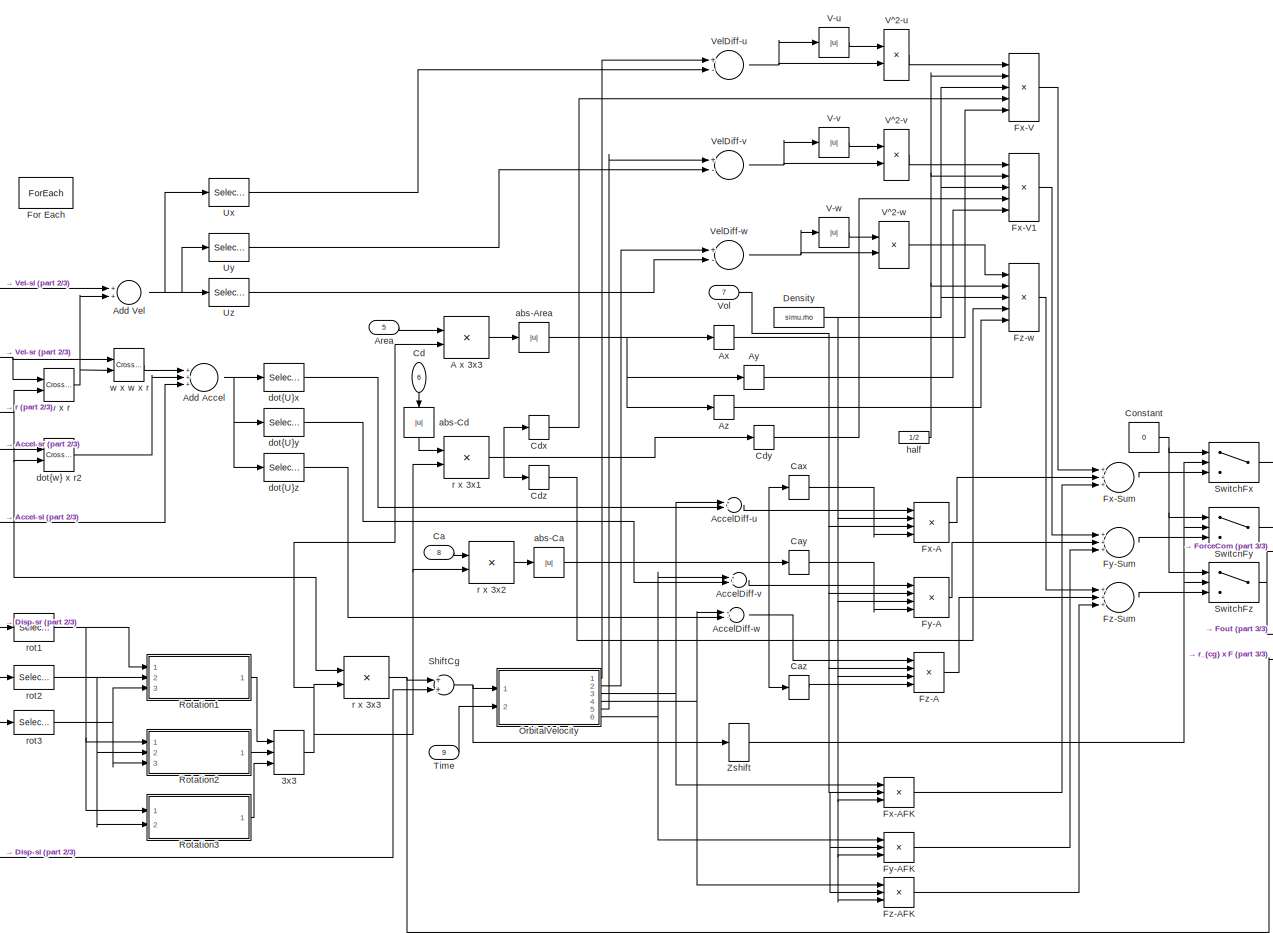
[diagram: Body Elements/Rigid Body/Hydrodynamic Body/Morrison Element and ViscousDampingForceCalculation/Morrison Element Variant Subsystem/Morrison Element On/No Wave Excitation Force/MorrisonElements - part 1/3, center side, full height]
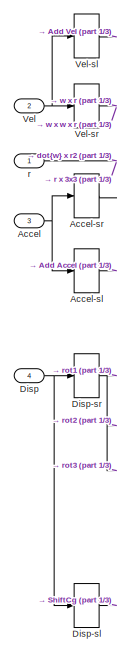
[diagram: Body Elements/Rigid Body/Hydrodynamic Body/Morrison Element and ViscousDampingForceCalculation/Morrison Element Variant Subsystem/Morrison Element On/No Wave Excitation Force/MorrisonElements - part 2/3, middle left region]
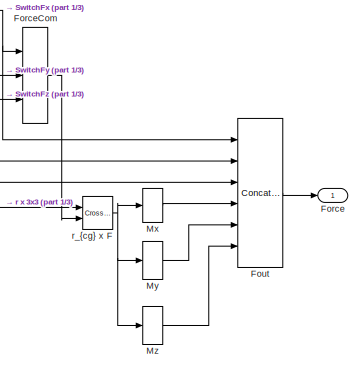
[diagram: Body Elements/Rigid Body/Hydrodynamic Body/Morrison Element and ViscousDampingForceCalculation/Morrison Element Variant Subsystem/Morrison Element On/No Wave Excitation Force/MorrisonElements - part 3/3, bottom right region]
BLOCK [SubSystem] Body Elements/Rigid Body/Hydrodynamic Body/Morrison Element and ViscousDampingForceCalculation/Morrison Element Variant Subsystem/Morrison Element On/No Wave Excitation Force/MorrisonElements
  Ports = [9, 1]
  RequestExecContextInheritance = off
  TreatAsAtomicUnit = on
  Variant = off
BLOCK [Concatenate] Body Elements/Rigid Body/Hydrodynamic Body/Morrison Element and ViscousDampingForceCalculation/Morrison Element Variant Subsystem/Morrison Element On/No Wave Excitation Force/MorrisonElements/3x3
  Mode = Multidimensional array
  NumInputs = 3
  Ports = [3, 1]
BLOCK [Product] Body Elements/Rigid Body/Hydrodynamic Body/Morrison Element and ViscousDampingForceCalculation/Morrison Element Variant Subsystem/Morrison Element On/No Wave Excitation Force/MorrisonElements/A x 3x3
  InputSameDT = off
  Multiplication = Matrix(*)
  OutDataTypeStr = Inherit: Inherit via internal rule
  Ports = [2, 1]
  RndMeth = Floor
  SaturateOnIntegerOverflow = off
BLOCK [Inport] Body Elements/Rigid Body/Hydrodynamic Body/Morrison Element and ViscousDampingForceCalculation/Morrison Element Variant Subsystem/Morrison Element On/No Wave Excitation Force/MorrisonElements/Accel
  IconDisplay = Port number
  Port = 3
BLOCK [Selector] Body Elements/Rigid Body/Hydrodynamic Body/Morrison Element and ViscousDampingForceCalculation/Morrison Element Variant Subsystem/Morrison Element On/No Wave Excitation Force/MorrisonElements/Accel-sl
  IndexOptions = Index vector (dialog)
  Indices = [1 2 3]
  InputPortWidth = 6
  OutputSizes = 1
  Ports = [1, 1]
BLOCK [Selector] Body Elements/Rigid Body/Hydrodynamic Body/Morrison Element and ViscousDampingForceCalculation/Morrison Element Variant Subsystem/Morrison Element On/No Wave Excitation Force/MorrisonElements/Accel-sr
  IndexOptions = Index vector (dialog)
  Indices = [4 5 6]
  InputPortWidth = 6
  OutputSizes = 1
  Ports = [1, 1]
BLOCK [Sum] Body Elements/Rigid Body/Hydrodynamic Body/Morrison Element and ViscousDampingForceCalculation/Morrison Element Variant Subsystem/Morrison Element On/No Wave Excitation Force/MorrisonElements/AccelDiff-u
  InputSameDT = off
  Inputs = +-
  OutDataTypeStr = Inherit: Inherit via internal rule
  Ports = [2, 1]
  SaturateOnIntegerOverflow = off
BLOCK [Sum] Body Elements/Rigid Body/Hydrodynamic Body/Morrison Element and ViscousDampingForceCalculation/Morrison Element Variant Subsystem/Morrison Element On/No Wave Excitation Force/MorrisonElements/AccelDiff-v
  InputSameDT = off
  Inputs = +-
  OutDataTypeStr = Inherit: Inherit via internal rule
  Ports = [2, 1]
  SaturateOnIntegerOverflow = off
BLOCK [Sum] Body Elements/Rigid Body/Hydrodynamic Body/Morrison Element and ViscousDampingForceCalculation/Morrison Element Variant Subsystem/Morrison Element On/No Wave Excitation Force/MorrisonElements/AccelDiff-w
  InputSameDT = off
  Inputs = +-
  OutDataTypeStr = Inherit: Inherit via internal rule
  Ports = [2, 1]
  SaturateOnIntegerOverflow = off
BLOCK [Sum] Body Elements/Rigid Body/Hydrodynamic Body/Morrison Element and ViscousDampingForceCalculation/Morrison Element Variant Subsystem/Morrison Element On/No Wave Excitation Force/MorrisonElements/Add Accel
  InputSameDT = off
  Inputs = +++
  OutDataTypeStr = Inherit: Inherit via internal rule
  Ports = [3, 1]
  SaturateOnIntegerOverflow = off
BLOCK [Sum] Body Elements/Rigid Body/Hydrodynamic Body/Morrison Element and ViscousDampingForceCalculation/Morrison Element Variant Subsystem/Morrison Element On/No Wave Excitation Force/MorrisonElements/Add Vel
  InputSameDT = off
  OutDataTypeStr = Inherit: Inherit via internal rule
  Ports = [2, 1]
  SaturateOnIntegerOverflow = off
BLOCK [Inport] Body Elements/Rigid Body/Hydrodynamic Body/Morrison Element and ViscousDampingForceCalculation/Morrison Element Variant Subsystem/Morrison Element On/No Wave Excitation Force/MorrisonElements/Area
  IconDisplay = Port number
  Partition = on
  PartitionDimension = 1
  PartitionWidth = 1
  Port = 5
BLOCK [Selector] Body Elements/Rigid Body/Hydrodynamic Body/Morrison Element and ViscousDampingForceCalculation/Morrison Element Variant Subsystem/Morrison Element On/No Wave Excitation Force/MorrisonElements/Ax
  IndexOptions = Index vector (dialog)
  Indices = [1]
  InputPortWidth = 3
  OutputSizes = 1
  Ports = [1, 1]
BLOCK [Selector] Body Elements/Rigid Body/Hydrodynamic Body/Morrison Element and ViscousDampingForceCalculation/Morrison Element Variant Subsystem/Morrison Element On/No Wave Excitation Force/MorrisonElements/Ay
  IndexOptions = Index vector (dialog)
  Indices = [2]
  InputPortWidth = 3
  OutputSizes = 1
  Ports = [1, 1]
BLOCK [Selector] Body Elements/Rigid Body/Hydrodynamic Body/Morrison Element and ViscousDampingForceCalculation/Morrison Element Variant Subsystem/Morrison Element On/No Wave Excitation Force/MorrisonElements/Az
  IndexOptions = Index vector (dialog)
  Indices = [3]
  InputPortWidth = 3
  OutputSizes = 1
  Ports = [1, 1]
BLOCK [Inport] Body Elements/Rigid Body/Hydrodynamic Body/Morrison Element and ViscousDampingForceCalculation/Morrison Element Variant Subsystem/Morrison Element On/No Wave Excitation Force/MorrisonElements/Ca
  IconDisplay = Port number
  Partition = on
  PartitionDimension = 1
  PartitionWidth = 1
  Port = 8
BLOCK [Selector] Body Elements/Rigid Body/Hydrodynamic Body/Morrison Element and ViscousDampingForceCalculation/Morrison Element Variant Subsystem/Morrison Element On/No Wave Excitation Force/MorrisonElements/Cax
  IndexOptions = Index vector (dialog)
  Indices = [1]
  InputPortWidth = 3
  OutputSizes = 1
  Ports = [1, 1]
BLOCK [Selector] Body Elements/Rigid Body/Hydrodynamic Body/Morrison Element and ViscousDampingForceCalculation/Morrison Element Variant Subsystem/Morrison Element On/No Wave Excitation Force/MorrisonElements/Cay
  IndexOptions = Index vector (dialog)
  Indices = [2]
  InputPortWidth = 3
  OutputSizes = 1
  Ports = [1, 1]
BLOCK [Selector] Body Elements/Rigid Body/Hydrodynamic Body/Morrison Element and ViscousDampingForceCalculation/Morrison Element Variant Subsystem/Morrison Element On/No Wave Excitation Force/MorrisonElements/Caz
  IndexOptions = Index vector (dialog)
  Indices = [3]
  InputPortWidth = 3
  OutputSizes = 1
  Ports = [1, 1]
BLOCK [Inport] Body Elements/Rigid Body/Hydrodynamic Body/Morrison Element and ViscousDampingForceCalculation/Morrison Element Variant Subsystem/Morrison Element On/No Wave Excitation Force/MorrisonElements/Cd
  IconDisplay = Port number
  Partition = on
  PartitionDimension = 1
  PartitionWidth = 1
  Port = 6
BLOCK [Selector] Body Elements/Rigid Body/Hydrodynamic Body/Morrison Element and ViscousDampingForceCalculation/Morrison Element Variant Subsystem/Morrison Element On/No Wave Excitation Force/MorrisonElements/Cdx
  IndexOptions = Index vector (dialog)
  Indices = [1]
  InputPortWidth = 3
  OutputSizes = 1
  Ports = [1, 1]
BLOCK [Selector] Body Elements/Rigid Body/Hydrodynamic Body/Morrison Element and ViscousDampingForceCalculation/Morrison Element Variant Subsystem/Morrison Element On/No Wave Excitation Force/MorrisonElements/Cdy
  IndexOptions = Index vector (dialog)
  Indices = [2]
  InputPortWidth = 3
  OutputSizes = 1
  Ports = [1, 1]
BLOCK [Selector] Body Elements/Rigid Body/Hydrodynamic Body/Morrison Element and ViscousDampingForceCalculation/Morrison Element Variant Subsystem/Morrison Element On/No Wave Excitation Force/MorrisonElements/Cdz
  IndexOptions = Index vector (dialog)
  Indices = [3]
  InputPortWidth = 3
  OutputSizes = 1
  Ports = [1, 1]
BLOCK [Constant] Body Elements/Rigid Body/Hydrodynamic Body/Morrison Element and ViscousDampingForceCalculation/Morrison Element Variant Subsystem/Morrison Element On/No Wave Excitation Force/MorrisonElements/Constant
  Value = 0
BLOCK [Constant] Body Elements/Rigid Body/Hydrodynamic Body/Morrison Element and ViscousDampingForceCalculation/Morrison Element Variant Subsystem/Morrison Element On/No Wave Excitation Force/MorrisonElements/Density
  Value = simu.rho
BLOCK [Inport] Body Elements/Rigid Body/Hydrodynamic Body/Morrison Element and ViscousDampingForceCalculation/Morrison Element Variant Subsystem/Morrison Element On/No Wave Excitation Force/MorrisonElements/Disp
  IconDisplay = Port number
  Port = 4
BLOCK [Selector] Body Elements/Rigid Body/Hydrodynamic Body/Morrison Element and ViscousDampingForceCalculation/Morrison Element Variant Subsystem/Morrison Element On/No Wave Excitation Force/MorrisonElements/Disp-sl
  IndexOptions = Index vector (dialog)
  Indices = [1 2 3]
  InputPortWidth = 6
  OutputSizes = 1
  Ports = [1, 1]
BLOCK [Selector] Body Elements/Rigid Body/Hydrodynamic Body/Morrison Element and ViscousDampingForceCalculation/Morrison Element Variant Subsystem/Morrison Element On/No Wave Excitation Force/MorrisonElements/Disp-sr
  IndexOptions = Index vector (dialog)
  Indices = [4 5 6]
  InputPortWidth = 6
  OutputSizes = 1
  Ports = [1, 1]
BLOCK [ForEach] Body Elements/Rigid Body/Hydrodynamic Body/Morrison Element and ViscousDampingForceCalculation/Morrison Element Variant Subsystem/Morrison Element On/No Wave Excitation Force/MorrisonElements/For Each
  DisableCoverage = on
  IndexMode = One-based
  Ports = []
BLOCK [Outport] Body Elements/Rigid Body/Hydrodynamic Body/Morrison Element and ViscousDampingForceCalculation/Morrison Element Variant Subsystem/Morrison Element On/No Wave Excitation Force/MorrisonElements/Force
  ConcatenationDimension = 1
  IconDisplay = Port number
  PortDimensions = [1 6]
BLOCK [Concatenate] Body Elements/Rigid Body/Hydrodynamic Body/Morrison Element and ViscousDampingForceCalculation/Morrison Element Variant Subsystem/Morrison Element On/No Wave Excitation Force/MorrisonElements/ForceCom
  ConcatenateDimension = 2
  NumInputs = 3
  Ports = [3, 1]
BLOCK [Concatenate] Body Elements/Rigid Body/Hydrodynamic Body/Morrison Element and ViscousDampingForceCalculation/Morrison Element Variant Subsystem/Morrison Element On/No Wave Excitation Force/MorrisonElements/Fout
  ConcatenateDimension = 2
  Mode = Multidimensional array
  NumInputs = 6
  Ports = [6, 1]
BLOCK [Product] Body Elements/Rigid Body/Hydrodynamic Body/Morrison Element and ViscousDampingForceCalculation/Morrison Element Variant Subsystem/Morrison Element On/No Wave Excitation Force/MorrisonElements/Fx-A
  InputSameDT = off
  Inputs = 4
  OutDataTypeStr = Inherit: Inherit via internal rule
  Ports = [4, 1]
  RndMeth = Floor
  SaturateOnIntegerOverflow = off
BLOCK [Product] Body Elements/Rigid Body/Hydrodynamic Body/Morrison Element and ViscousDampingForceCalculation/Morrison Element Variant Subsystem/Morrison Element On/No Wave Excitation Force/MorrisonElements/Fx-AFK
  InputSameDT = off
  Inputs = 3
  OutDataTypeStr = Inherit: Inherit via internal rule
  Ports = [3, 1]
  RndMeth = Floor
  SaturateOnIntegerOverflow = off
BLOCK [Sum] Body Elements/Rigid Body/Hydrodynamic Body/Morrison Element and ViscousDampingForceCalculation/Morrison Element Variant Subsystem/Morrison Element On/No Wave Excitation Force/MorrisonElements/Fx-Sum
  InputSameDT = off
  Inputs = +++
  OutDataTypeStr = Inherit: Inherit via internal rule
  Ports = [3, 1]
  SaturateOnIntegerOverflow = off
BLOCK [Product] Body Elements/Rigid Body/Hydrodynamic Body/Morrison Element and ViscousDampingForceCalculation/Morrison Element Variant Subsystem/Morrison Element On/No Wave Excitation Force/MorrisonElements/Fx-V
  InputSameDT = off
  Inputs = 5
  OutDataTypeStr = Inherit: Inherit via internal rule
  Ports = [5, 1]
  RndMeth = Floor
  SaturateOnIntegerOverflow = off
BLOCK [Product] Body Elements/Rigid Body/Hydrodynamic Body/Morrison Element and ViscousDampingForceCalculation/Morrison Element Variant Subsystem/Morrison Element On/No Wave Excitation Force/MorrisonElements/Fx-V1
  InputSameDT = off
  Inputs = 5
  OutDataTypeStr = Inherit: Inherit via internal rule
  Ports = [5, 1]
  RndMeth = Floor
  SaturateOnIntegerOverflow = off
BLOCK [Product] Body Elements/Rigid Body/Hydrodynamic Body/Morrison Element and ViscousDampingForceCalculation/Morrison Element Variant Subsystem/Morrison Element On/No Wave Excitation Force/MorrisonElements/Fy-A
  InputSameDT = off
  Inputs = 4
  OutDataTypeStr = Inherit: Inherit via internal rule
  Ports = [4, 1]
  RndMeth = Floor
  SaturateOnIntegerOverflow = off
BLOCK [Product] Body Elements/Rigid Body/Hydrodynamic Body/Morrison Element and ViscousDampingForceCalculation/Morrison Element Variant Subsystem/Morrison Element On/No Wave Excitation Force/MorrisonElements/Fy-AFK
  InputSameDT = off
  Inputs = 3
  OutDataTypeStr = Inherit: Inherit via internal rule
  Ports = [3, 1]
  RndMeth = Floor
  SaturateOnIntegerOverflow = off
BLOCK [Sum] Body Elements/Rigid Body/Hydrodynamic Body/Morrison Element and ViscousDampingForceCalculation/Morrison Element Variant Subsystem/Morrison Element On/No Wave Excitation Force/MorrisonElements/Fy-Sum
  InputSameDT = off
  Inputs = +++
  OutDataTypeStr = Inherit: Inherit via internal rule
  Ports = [3, 1]
  SaturateOnIntegerOverflow = off
BLOCK [Product] Body Elements/Rigid Body/Hydrodynamic Body/Morrison Element and ViscousDampingForceCalculation/Morrison Element Variant Subsystem/Morrison Element On/No Wave Excitation Force/MorrisonElements/Fz-A
  InputSameDT = off
  Inputs = 4
  OutDataTypeStr = Inherit: Inherit via internal rule
  Ports = [4, 1]
  RndMeth = Floor
  SaturateOnIntegerOverflow = off
BLOCK [Product] Body Elements/Rigid Body/Hydrodynamic Body/Morrison Element and ViscousDampingForceCalculation/Morrison Element Variant Subsystem/Morrison Element On/No Wave Excitation Force/MorrisonElements/Fz-AFK
  InputSameDT = off
  Inputs = 3
  OutDataTypeStr = Inherit: Inherit via internal rule
  Ports = [3, 1]
  RndMeth = Floor
  SaturateOnIntegerOverflow = off
BLOCK [Sum] Body Elements/Rigid Body/Hydrodynamic Body/Morrison Element and ViscousDampingForceCalculation/Morrison Element Variant Subsystem/Morrison Element On/No Wave Excitation Force/MorrisonElements/Fz-Sum
  InputSameDT = off
  Inputs = +++
  OutDataTypeStr = Inherit: Inherit via internal rule
  Ports = [3, 1]
  SaturateOnIntegerOverflow = off
BLOCK [Product] Body Elements/Rigid Body/Hydrodynamic Body/Morrison Element and ViscousDampingForceCalculation/Morrison Element Variant Subsystem/Morrison Element On/No Wave Excitation Force/MorrisonElements/Fz-w
  InputSameDT = off
  Inputs = 5
  OutDataTypeStr = Inherit: Inherit via internal rule
  Ports = [5, 1]
  RndMeth = Floor
  SaturateOnIntegerOverflow = off
BLOCK [Selector] Body Elements/Rigid Body/Hydrodynamic Body/Morrison Element and ViscousDampingForceCalculation/Morrison Element Variant Subsystem/Morrison Element On/No Wave Excitation Force/MorrisonElements/Mx
  IndexOptions = Index vector (dialog)
  Indices = [1]
  InputPortWidth = 3
  OutputSizes = 1
  Ports = [1, 1]
BLOCK [Selector] Body Elements/Rigid Body/Hydrodynamic Body/Morrison Element and ViscousDampingForceCalculation/Morrison Element Variant Subsystem/Morrison Element On/No Wave Excitation Force/MorrisonElements/My
  IndexOptions = Index vector (dialog)
  Indices = [2]
  InputPortWidth = 3
  OutputSizes = 1
  Ports = [1, 1]
BLOCK [Selector] Body Elements/Rigid Body/Hydrodynamic Body/Morrison Element and ViscousDampingForceCalculation/Morrison Element Variant Subsystem/Morrison Element On/No Wave Excitation Force/MorrisonElements/Mz
  IndexOptions = Index vector (dialog)
  Indices = [3]
  InputPortWidth = 3
  OutputSizes = 1
  Ports = [1, 1]
BLOCK [SubSystem] Body Elements/Rigid Body/Hydrodynamic Body/Morrison Element and ViscousDampingForceCalculation/Morrison Element Variant Subsystem/Morrison Element On/No Wave Excitation Force/MorrisonElements/OrbitalVelocity
  Ports = [2, 6]
  RequestExecContextInheritance = off
  Variant = off
BLOCK [Merge] Body Elements/Rigid Body/Hydrodynamic Body/Morrison Element and ViscousDampingForceCalculation/Morrison Element Variant Subsystem/Morrison Element On/No Wave Excitation Force/MorrisonElements/OrbitalVelocity/AmpMerge
  Ports = [2, 1]
BLOCK [SubSystem] Body Elements/Rigid Body/Hydrodynamic Body/Morrison Element and ViscousDampingForceCalculation/Morrison Element Variant Subsystem/Morrison Element On/No Wave Excitation Force/MorrisonElements/OrbitalVelocity/Applied Ramp Function
  Ports = [1, 1, 0, 0, 0, 0, 0, 1]
  RequestExecContextInheritance = off
  TreatAsAtomicUnit = on
  Variant = off
BLOCK [ActionPort] Body Elements/Rigid Body/Hydrodynamic Body/Morrison Element and ViscousDampingForceCalculation/Morrison Element Variant Subsystem/Morrison Element On/No Wave Excitation Force/MorrisonElements/OrbitalVelocity/Applied Ramp Function/Action Port
BLOCK [Sum] Body Elements/Rigid Body/Hydrodynamic Body/Morrison Element and ViscousDampingForceCalculation/Morrison Element Variant Subsystem/Morrison Element On/No Wave Excitation Force/MorrisonElements/OrbitalVelocity/Applied Ramp Function/Add
  InputSameDT = off
  OutDataTypeStr = Inherit: Inherit via internal rule
  Ports = [2, 1]
  SaturateOnIntegerOverflow = off
BLOCK [Inport] Body Elements/Rigid Body/Hydrodynamic Body/Morrison Element and ViscousDampingForceCalculation/Morrison Element Variant Subsystem/Morrison Element On/No Wave Excitation Force/MorrisonElements/OrbitalVelocity/Applied Ramp Function/Ain
  IconDisplay = Port number
BLOCK [Outport] Body Elements/Rigid Body/Hydrodynamic Body/Morrison Element and ViscousDampingForceCalculation/Morrison Element Variant Subsystem/Morrison Element On/No Wave Excitation Force/MorrisonElements/OrbitalVelocity/Applied Ramp Function/Aout
  IconDisplay = Port number
BLOCK [Constant] Body Elements/Rigid Body/Hydrodynamic Body/Morrison Element and ViscousDampingForceCalculation/Morrison Element Variant Subsystem/Morrison Element On/No Wave Excitation Force/MorrisonElements/OrbitalVelocity/Applied Ramp Function/Constant
  Value = 2
BLOCK [Constant] Body Elements/Rigid Body/Hydrodynamic Body/Morrison Element and ViscousDampingForceCalculation/Morrison Element Variant Subsystem/Morrison Element On/No Wave Excitation Force/MorrisonElements/OrbitalVelocity/Applied Ramp Function/Constant1
BLOCK [Product] Body Elements/Rigid Body/Hydrodynamic Body/Morrison Element and ViscousDampingForceCalculation/Morrison Element Variant Subsystem/Morrison Element On/No Wave Excitation Force/MorrisonElements/OrbitalVelocity/Applied Ramp Function/Divide
  InputSameDT = off
  Inputs = **/
  OutDataTypeStr = Inherit: Inherit via internal rule
  Ports = [3, 1]
  RndMeth = Floor
  SaturateOnIntegerOverflow = off
BLOCK [Sin] Body Elements/Rigid Body/Hydrodynamic Body/Morrison Element and ViscousDampingForceCalculation/Morrison Element Variant Subsystem/Morrison Element On/No Wave Excitation Force/MorrisonElements/OrbitalVelocity/Applied Ramp Function/Sine Wave
  Frequency = pi/simu.rampT
  Phase = pi+pi/2
  Ports = [0, 1]
  SampleTime = 0
BLOCK [Inport] Body Elements/Rigid Body/Hydrodynamic Body/Morrison Element and ViscousDampingForceCalculation/Morrison Element Variant Subsystem/Morrison Element On/No Wave Excitation Force/MorrisonElements/OrbitalVelocity/Disp
  IconDisplay = Port number
BLOCK [Selector] Body Elements/Rigid Body/Hydrodynamic Body/Morrison Element and ViscousDampingForceCalculation/Morrison Element Variant Subsystem/Morrison Element On/No Wave Excitation Force/MorrisonElements/OrbitalVelocity/Disp-slx
  IndexOptions = Index vector (dialog)
  Indices = [1]
  InputPortWidth = 3
  OutputSizes = 1
  Ports = [1, 1]
BLOCK [Selector] Body Elements/Rigid Body/Hydrodynamic Body/Morrison Element and ViscousDampingForceCalculation/Morrison Element Variant Subsystem/Morrison Element On/No Wave Excitation Force/MorrisonElements/OrbitalVelocity/Disp-sly
  IndexOptions = Index vector (dialog)
  Indices = [2]
  InputPortWidth = 3
  OutputSizes = 1
  Ports = [1, 1]
BLOCK [Selector] Body Elements/Rigid Body/Hydrodynamic Body/Morrison Element and ViscousDampingForceCalculation/Morrison Element Variant Subsystem/Morrison Element On/No Wave Excitation Force/MorrisonElements/OrbitalVelocity/Disp-slz
  IndexOptions = Index vector (dialog)
  Indices = [3]
  InputPortWidth = 3
  OutputSizes = 1
  Ports = [1, 1]
BLOCK [Gain] Body Elements/Rigid Body/Hydrodynamic Body/Morrison Element and ViscousDampingForceCalculation/Morrison Element Variant Subsystem/Morrison Element On/No Wave Excitation Force/MorrisonElements/OrbitalVelocity/Gain
  Gain = pi/180
  OutDataTypeStr = Inherit: Inherit via internal rule
  ParamDataTypeStr = Inherit: Inherit via internal rule
  SaturateOnIntegerOverflow = off
BLOCK [Constant] Body Elements/Rigid Body/Hydrodynamic Body/Morrison Element and ViscousDampingForceCalculation/Morrison Element Variant Subsystem/Morrison Element On/No Wave Excitation Force/MorrisonElements/OrbitalVelocity/Gravity
  Value = simu.g
BLOCK [Trigonometry] Body Elements/Rigid Body/Hydrodynamic Body/Morrison Element and ViscousDampingForceCalculation/Morrison Element Variant Subsystem/Morrison Element On/No Wave Excitation Force/MorrisonElements/OrbitalVelocity/HorizHead
  Operator = cos
  Ports = [1, 1]
BLOCK [Trigonometry] Body Elements/Rigid Body/Hydrodynamic Body/Morrison Element and ViscousDampingForceCalculation/Morrison Element Variant Subsystem/Morrison Element On/No Wave Excitation Force/MorrisonElements/OrbitalVelocity/Horizontal-x,y
  Operator = cos
  Ports = [1, 1]
BLOCK [Trigonometry] Body Elements/Rigid Body/Hydrodynamic Body/Morrison Element and ViscousDampingForceCalculation/Morrison Element Variant Subsystem/Morrison Element On/No Wave Excitation Force/MorrisonElements/OrbitalVelocity/Horizontal-z
  Operator = cosh
  Ports = [1, 1]
BLOCK [SubSystem] Body Elements/Rigid Body/Hydrodynamic Body/Morrison Element and ViscousDampingForceCalculation/Morrison Element Variant Subsystem/Morrison Element On/No Wave Excitation Force/MorrisonElements/OrbitalVelocity/No Ramp Function
  Ports = [1, 1, 0, 0, 0, 0, 0, 1]
  RequestExecContextInheritance = off
  TreatAsAtomicUnit = on
  Variant = off
BLOCK [ActionPort] Body Elements/Rigid Body/Hydrodynamic Body/Morrison Element and ViscousDampingForceCalculation/Morrison Element Variant Subsystem/Morrison Element On/No Wave Excitation Force/MorrisonElements/OrbitalVelocity/No Ramp Function/Action Port
BLOCK [Inport] Body Elements/Rigid Body/Hydrodynamic Body/Morrison Element and ViscousDampingForceCalculation/Morrison Element Variant Subsystem/Morrison Element On/No Wave Excitation Force/MorrisonElements/OrbitalVelocity/No Ramp Function/Ain
  IconDisplay = Port number
BLOCK [Outport] Body Elements/Rigid Body/Hydrodynamic Body/Morrison Element and ViscousDampingForceCalculation/Morrison Element Variant Subsystem/Morrison Element On/No Wave Excitation Force/MorrisonElements/OrbitalVelocity/No Ramp Function/Aout
  IconDisplay = Port number
BLOCK [If] Body Elements/Rigid Body/Hydrodynamic Body/Morrison Element and ViscousDampingForceCalculation/Morrison Element Variant Subsystem/Morrison Element On/No Wave Excitation Force/MorrisonElements/OrbitalVelocity/Ramp
  IfExpression = u1 < u2
  NumInputs = 2
  Ports = [2, 2]
BLOCK [Constant] Body Elements/Rigid Body/Hydrodynamic Body/Morrison Element and ViscousDampingForceCalculation/Morrison Element Variant Subsystem/Morrison Element On/No Wave Excitation Force/MorrisonElements/OrbitalVelocity/Ramp Function Time
  Value = simu.rampT
BLOCK [Inport] Body Elements/Rigid Body/Hydrodynamic Body/Morrison Element and ViscousDampingForceCalculation/Morrison Element Variant Subsystem/Morrison Element On/No Wave Excitation Force/MorrisonElements/OrbitalVelocity/Time
  IconDisplay = Port number
  Port = 2
BLOCK [Trigonometry] Body Elements/Rigid Body/Hydrodynamic Body/Morrison Element and ViscousDampingForceCalculation/Morrison Element Variant Subsystem/Morrison Element On/No Wave Excitation Force/MorrisonElements/OrbitalVelocity/VertHead
  Ports = [1, 1]
BLOCK [Trigonometry] Body Elements/Rigid Body/Hydrodynamic Body/Morrison Element and ViscousDampingForceCalculation/Morrison Element Variant Subsystem/Morrison Element On/No Wave Excitation Force/MorrisonElements/OrbitalVelocity/Vertical-x,y
  Ports = [1, 1]
BLOCK [Trigonometry] Body Elements/Rigid Body/Hydrodynamic Body/Morrison Element and ViscousDampingForceCalculation/Morrison Element Variant Subsystem/Morrison Element On/No Wave Excitation Force/MorrisonElements/OrbitalVelocity/Vertical-z
  Operator = sinh
  Ports = [1, 1]
BLOCK [Constant] Body Elements/Rigid Body/Hydrodynamic Body/Morrison Element and ViscousDampingForceCalculation/Morrison Element Variant Subsystem/Morrison Element On/No Wave Excitation Force/MorrisonElements/OrbitalVelocity/WaterDepth
  Value = waves.waterDepth
BLOCK [Constant] Body Elements/Rigid Body/Hydrodynamic Body/Morrison Element and ViscousDampingForceCalculation/Morrison Element Variant Subsystem/Morrison Element On/No Wave Excitation Force/MorrisonElements/OrbitalVelocity/WaveAmp
  Value = waves.A(1,:)
BLOCK [Constant] Body Elements/Rigid Body/Hydrodynamic Body/Morrison Element and ViscousDampingForceCalculation/Morrison Element Variant Subsystem/Morrison Element On/No Wave Excitation Force/MorrisonElements/OrbitalVelocity/WaveFreq
  Value = waves.w(1,:)
BLOCK [Constant] Body Elements/Rigid Body/Hydrodynamic Body/Morrison Element and ViscousDampingForceCalculation/Morrison Element Variant Subsystem/Morrison Element On/No Wave Excitation Force/MorrisonElements/OrbitalVelocity/WaveHeading
  Value = waves.waveDir
BLOCK [Constant] Body Elements/Rigid Body/Hydrodynamic Body/Morrison Element and ViscousDampingForceCalculation/Morrison Element Variant Subsystem/Morrison Element On/No Wave Excitation Force/MorrisonElements/OrbitalVelocity/WaveNumber
  Value = waves.k(1,:)
BLOCK [Gain] Body Elements/Rigid Body/Hydrodynamic Body/Morrison Element and ViscousDampingForceCalculation/Morrison Element Variant Subsystem/Morrison Element On/No Wave Excitation Force/MorrisonElements/OrbitalVelocity/X-A
  Gain = -1
  OutDataTypeStr = Inherit: Inherit via internal rule
  ParamDataTypeStr = Inherit: Inherit via internal rule
  SaturateOnIntegerOverflow = off
BLOCK [Gain] Body Elements/Rigid Body/Hydrodynamic Body/Morrison Element and ViscousDampingForceCalculation/Morrison Element Variant Subsystem/Morrison Element On/No Wave Excitation Force/MorrisonElements/OrbitalVelocity/Y-A
  Gain = -1
  OutDataTypeStr = Inherit: Inherit via internal rule
  ParamDataTypeStr = Inherit: Inherit via internal rule
  SaturateOnIntegerOverflow = off
BLOCK [Gain] Body Elements/Rigid Body/Hydrodynamic Body/Morrison Element and ViscousDampingForceCalculation/Morrison Element Variant Subsystem/Morrison Element On/No Wave Excitation Force/MorrisonElements/OrbitalVelocity/Y-V
  Gain = -1
  OutDataTypeStr = Inherit: Inherit via internal rule
  ParamDataTypeStr = Inherit: Inherit via internal rule
  SaturateOnIntegerOverflow = off
BLOCK [Gain] Body Elements/Rigid Body/Hydrodynamic Body/Morrison Element and ViscousDampingForceCalculation/Morrison Element Variant Subsystem/Morrison Element On/No Wave Excitation Force/MorrisonElements/OrbitalVelocity/Z-A
  Gain = -1
  OutDataTypeStr = Inherit: Inherit via internal rule
  ParamDataTypeStr = Inherit: Inherit via internal rule
  SaturateOnIntegerOverflow = off
BLOCK [Trigonometry] Body Elements/Rigid Body/Hydrodynamic Body/Morrison Element and ViscousDampingForceCalculation/Morrison Element Variant Subsystem/Morrison Element On/No Wave Excitation Force/MorrisonElements/OrbitalVelocity/cosh
  Operator = cosh
  Ports = [1, 1]
BLOCK [Product] Body Elements/Rigid Body/Hydrodynamic Body/Morrison Element and ViscousDampingForceCalculation/Morrison Element Variant Subsystem/Morrison Element On/No Wave Excitation Force/MorrisonElements/OrbitalVelocity/cosh*cos
  InputSameDT = off
  Inputs = **
  OutDataTypeStr = Inherit: Inherit via internal rule
  Ports = [2, 1]
  RndMeth = Floor
  SaturateOnIntegerOverflow = off
BLOCK [Product] Body Elements/Rigid Body/Hydrodynamic Body/Morrison Element and ViscousDampingForceCalculation/Morrison Element Variant Subsystem/Morrison Element On/No Wave Excitation Force/MorrisonElements/OrbitalVelocity/cosh*sin
  InputSameDT = off
  Inputs = **
  OutDataTypeStr = Inherit: Inherit via internal rule
  Ports = [2, 1]
  RndMeth = Floor
  SaturateOnIntegerOverflow = off
BLOCK [Product] Body Elements/Rigid Body/Hydrodynamic Body/Morrison Element and ViscousDampingForceCalculation/Morrison Element Variant Subsystem/Morrison Element On/No Wave Excitation Force/MorrisonElements/OrbitalVelocity/cosh//coshkh
  InputSameDT = off
  Inputs = */
  OutDataTypeStr = Inherit: Inherit via internal rule
  Ports = [2, 1]
  RndMeth = Floor
  SaturateOnIntegerOverflow = off
BLOCK [Sum] Body Elements/Rigid Body/Hydrodynamic Body/Morrison Element and ViscousDampingForceCalculation/Morrison Element Variant Subsystem/Morrison Element On/No Wave Excitation Force/MorrisonElements/OrbitalVelocity/k(xcos + ysin)
  InputSameDT = off
  OutDataTypeStr = Inherit: Inherit via internal rule
  Ports = [2, 1]
  SaturateOnIntegerOverflow = off
BLOCK [Product] Body Elements/Rigid Body/Hydrodynamic Body/Morrison Element and ViscousDampingForceCalculation/Morrison Element Variant Subsystem/Morrison Element On/No Wave Excitation Force/MorrisonElements/OrbitalVelocity/k*h
  InputSameDT = off
  OutDataTypeStr = Inherit: Inherit via internal rule
  Ports = [2, 1]
  RndMeth = Floor
  SaturateOnIntegerOverflow = off
BLOCK [Product] Body Elements/Rigid Body/Hydrodynamic Body/Morrison Element and ViscousDampingForceCalculation/Morrison Element Variant Subsystem/Morrison Element On/No Wave Excitation Force/MorrisonElements/OrbitalVelocity/k*x*cos(beta)
  InputSameDT = off
  Inputs = 3
  OutDataTypeStr = Inherit: Inherit via internal rule
  Ports = [3, 1]
  RndMeth = Floor
  SaturateOnIntegerOverflow = off
BLOCK [Product] Body Elements/Rigid Body/Hydrodynamic Body/Morrison Element and ViscousDampingForceCalculation/Morrison Element Variant Subsystem/Morrison Element On/No Wave Excitation Force/MorrisonElements/OrbitalVelocity/k*y*sin(beta)
  InputSameDT = off
  Inputs = 3
  OutDataTypeStr = Inherit: Inherit via internal rule
  Ports = [3, 1]
  RndMeth = Floor
  SaturateOnIntegerOverflow = off
BLOCK [Product] Body Elements/Rigid Body/Hydrodynamic Body/Morrison Element and ViscousDampingForceCalculation/Morrison Element Variant Subsystem/Morrison Element On/No Wave Excitation Force/MorrisonElements/OrbitalVelocity/k*z
  InputSameDT = off
  OutDataTypeStr = Inherit: Inherit via internal rule
  Ports = [2, 1]
  RndMeth = Floor
  SaturateOnIntegerOverflow = off
BLOCK [Product] Body Elements/Rigid Body/Hydrodynamic Body/Morrison Element and ViscousDampingForceCalculation/Morrison Element Variant Subsystem/Morrison Element On/No Wave Excitation Force/MorrisonElements/OrbitalVelocity/sigma*t
  InputSameDT = off
  OutDataTypeStr = Inherit: Inherit via internal rule
  Ports = [2, 1]
  RndMeth = Floor
  SaturateOnIntegerOverflow = off
BLOCK [Sum] Body Elements/Rigid Body/Hydrodynamic Body/Morrison Element and ViscousDampingForceCalculation/Morrison Element Variant Subsystem/Morrison Element On/No Wave Excitation Force/MorrisonElements/OrbitalVelocity/sincos
  InputSameDT = off
  Inputs = -+
  OutDataTypeStr = Inherit: Inherit via internal rule
  Ports = [2, 1]
  SaturateOnIntegerOverflow = off
BLOCK [Product] Body Elements/Rigid Body/Hydrodynamic Body/Morrison Element and ViscousDampingForceCalculation/Morrison Element Variant Subsystem/Morrison Element On/No Wave Excitation Force/MorrisonElements/OrbitalVelocity/sinh*cos
  InputSameDT = off
  Inputs = **
  OutDataTypeStr = Inherit: Inherit via internal rule
  Ports = [2, 1]
  RndMeth = Floor
  SaturateOnIntegerOverflow = off
BLOCK [Product] Body Elements/Rigid Body/Hydrodynamic Body/Morrison Element and ViscousDampingForceCalculation/Morrison Element Variant Subsystem/Morrison Element On/No Wave Excitation Force/MorrisonElements/OrbitalVelocity/sinh*sin
  InputSameDT = off
  Inputs = **
  OutDataTypeStr = Inherit: Inherit via internal rule
  Ports = [2, 1]
  RndMeth = Floor
  SaturateOnIntegerOverflow = off
BLOCK [Product] Body Elements/Rigid Body/Hydrodynamic Body/Morrison Element and ViscousDampingForceCalculation/Morrison Element Variant Subsystem/Morrison Element On/No Wave Excitation Force/MorrisonElements/OrbitalVelocity/sinh//coshkh
  InputSameDT = off
  Inputs = */
  OutDataTypeStr = Inherit: Inherit via internal rule
  Ports = [2, 1]
  RndMeth = Floor
  SaturateOnIntegerOverflow = off
BLOCK [Sum] Body Elements/Rigid Body/Hydrodynamic Body/Morrison Element and ViscousDampingForceCalculation/Morrison Element Variant Subsystem/Morrison Element On/No Wave Excitation Force/MorrisonElements/OrbitalVelocity/sinhcosh
  InputSameDT = off
  OutDataTypeStr = Inherit: Inherit via internal rule
  Ports = [2, 1]
  SaturateOnIntegerOverflow = off
BLOCK [Outport] Body Elements/Rigid Body/Hydrodynamic Body/Morrison Element and ViscousDampingForceCalculation/Morrison Element Variant Subsystem/Morrison Element On/No Wave Excitation Force/MorrisonElements/OrbitalVelocity/u-A
  IconDisplay = Port number
  Port = 3
BLOCK [Product] Body Elements/Rigid Body/Hydrodynamic Body/Morrison Element and ViscousDampingForceCalculation/Morrison Element Variant Subsystem/Morrison Element On/No Wave Excitation Force/MorrisonElements/OrbitalVelocity/u-Accel
  InputSameDT = off
  Inputs = *****
  OutDataTypeStr = Inherit: Inherit via internal rule
  Ports = [5, 1]
  RndMeth = Floor
  SaturateOnIntegerOverflow = off
BLOCK [Outport] Body Elements/Rigid Body/Hydrodynamic Body/Morrison Element and ViscousDampingForceCalculation/Morrison Element Variant Subsystem/Morrison Element On/No Wave Excitation Force/MorrisonElements/OrbitalVelocity/u-V
  IconDisplay = Port number
BLOCK [Product] Body Elements/Rigid Body/Hydrodynamic Body/Morrison Element and ViscousDampingForceCalculation/Morrison Element Variant Subsystem/Morrison Element On/No Wave Excitation Force/MorrisonElements/OrbitalVelocity/u-Vel
  InputSameDT = off
  Inputs = ****/*
  OutDataTypeStr = Inherit: Inherit via internal rule
  Ports = [6, 1]
  RndMeth = Floor
  SaturateOnIntegerOverflow = off
BLOCK [Product] Body Elements/Rigid Body/Hydrodynamic Body/Morrison Element and ViscousDampingForceCalculation/Morrison Element Variant Subsystem/Morrison Element On/No Wave Excitation Force/MorrisonElements/OrbitalVelocity/u-Vel1
  InputSameDT = off
  Inputs = ****/*
  OutDataTypeStr = Inherit: Inherit via internal rule
  Ports = [6, 1]
  RndMeth = Floor
  SaturateOnIntegerOverflow = off
BLOCK [Outport] Body Elements/Rigid Body/Hydrodynamic Body/Morrison Element and ViscousDampingForceCalculation/Morrison Element Variant Subsystem/Morrison Element On/No Wave Excitation Force/MorrisonElements/OrbitalVelocity/v-A
  IconDisplay = Port number
  Port = 6
BLOCK [Product] Body Elements/Rigid Body/Hydrodynamic Body/Morrison Element and ViscousDampingForceCalculation/Morrison Element Variant Subsystem/Morrison Element On/No Wave Excitation Force/MorrisonElements/OrbitalVelocity/v-Accel
  InputSameDT = off
  Inputs = *****
  OutDataTypeStr = Inherit: Inherit via internal rule
  Ports = [5, 1]
  RndMeth = Floor
  SaturateOnIntegerOverflow = off
BLOCK [Outport] Body Elements/Rigid Body/Hydrodynamic Body/Morrison Element and ViscousDampingForceCalculation/Morrison Element Variant Subsystem/Morrison Element On/No Wave Excitation Force/MorrisonElements/OrbitalVelocity/v-V
  IconDisplay = Port number
  Port = 5
BLOCK [Outport] Body Elements/Rigid Body/Hydrodynamic Body/Morrison Element and ViscousDampingForceCalculation/Morrison Element Variant Subsystem/Morrison Element On/No Wave Excitation Force/MorrisonElements/OrbitalVelocity/w-A
  IconDisplay = Port number
  Port = 4
BLOCK [Product] Body Elements/Rigid Body/Hydrodynamic Body/Morrison Element and ViscousDampingForceCalculation/Morrison Element Variant Subsystem/Morrison Element On/No Wave Excitation Force/MorrisonElements/OrbitalVelocity/w-Accel
  InputSameDT = off
  Inputs = ****
  OutDataTypeStr = Inherit: Inherit via internal rule
  Ports = [4, 1]
  RndMeth = Floor
  SaturateOnIntegerOverflow = off
BLOCK [Outport] Body Elements/Rigid Body/Hydrodynamic Body/Morrison Element and ViscousDampingForceCalculation/Morrison Element Variant Subsystem/Morrison Element On/No Wave Excitation Force/MorrisonElements/OrbitalVelocity/w-V
  IconDisplay = Port number
  Port = 2
BLOCK [Product] Body Elements/Rigid Body/Hydrodynamic Body/Morrison Element and ViscousDampingForceCalculation/Morrison Element Variant Subsystem/Morrison Element On/No Wave Excitation Force/MorrisonElements/OrbitalVelocity/w-Vel
  InputSameDT = off
  Inputs = ****/
  OutDataTypeStr = Inherit: Inherit via internal rule
  Ports = [5, 1]
  RndMeth = Floor
  SaturateOnIntegerOverflow = off
BLOCK [SubSystem] Body Elements/Rigid Body/Hydrodynamic Body/Morrison Element and ViscousDampingForceCalculation/Morrison Element Variant Subsystem/Morrison Element On/No Wave Excitation Force/MorrisonElements/Rotation1
  Ports = [3, 1]
  RequestExecContextInheritance = off
  Variant = off
BLOCK [Product] Body Elements/Rigid Body/Hydrodynamic Body/Morrison Element and ViscousDampingForceCalculation/Morrison Element Variant Subsystem/Morrison Element On/No Wave Excitation Force/MorrisonElements/Rotation1/2
  InputSameDT = off
  OutDataTypeStr = Inherit: Inherit via internal rule
  Ports = [2, 1]
  RndMeth = Floor
  SaturateOnIntegerOverflow = off
BLOCK [Product] Body Elements/Rigid Body/Hydrodynamic Body/Morrison Element and ViscousDampingForceCalculation/Morrison Element Variant Subsystem/Morrison Element On/No Wave Excitation Force/MorrisonElements/Rotation1/3
  InputSameDT = off
  Inputs = 3
  OutDataTypeStr = Inherit: Inherit via internal rule
  Ports = [3, 1]
  RndMeth = Floor
  SaturateOnIntegerOverflow = off
BLOCK [Product] Body Elements/Rigid Body/Hydrodynamic Body/Morrison Element and ViscousDampingForceCalculation/Morrison Element Variant Subsystem/Morrison Element On/No Wave Excitation Force/MorrisonElements/Rotation1/7
  InputSameDT = off
  OutDataTypeStr = Inherit: Inherit via internal rule
  Ports = [2, 1]
  RndMeth = Floor
  SaturateOnIntegerOverflow = off
BLOCK [Product] Body Elements/Rigid Body/Hydrodynamic Body/Morrison Element and ViscousDampingForceCalculation/Morrison Element Variant Subsystem/Morrison Element On/No Wave Excitation Force/MorrisonElements/Rotation1/8
  InputSameDT = off
  Inputs = 3
  OutDataTypeStr = Inherit: Inherit via internal rule
  Ports = [3, 1]
  RndMeth = Floor
  SaturateOnIntegerOverflow = off
BLOCK [Concatenate] Body Elements/Rigid Body/Hydrodynamic Body/Morrison Element and ViscousDampingForceCalculation/Morrison Element Variant Subsystem/Morrison Element On/No Wave Excitation Force/MorrisonElements/Rotation1/Combine
  ConcatenateDimension = 2
  Mode = Multidimensional array
  NumInputs = 3
  Ports = [3, 1]
BLOCK [Trigonometry] Body Elements/Rigid Body/Hydrodynamic Body/Morrison Element and ViscousDampingForceCalculation/Morrison Element Variant Subsystem/Morrison Element On/No Wave Excitation Force/MorrisonElements/Rotation1/Trigonometric Function
  Operator = cos
  Ports = [1, 1]
BLOCK [Trigonometry] Body Elements/Rigid Body/Hydrodynamic Body/Morrison Element and ViscousDampingForceCalculation/Morrison Element Variant Subsystem/Morrison Element On/No Wave Excitation Force/MorrisonElements/Rotation1/Trigonometric Function1
  Operator = cos
  Ports = [1, 1]
BLOCK [Trigonometry] Body Elements/Rigid Body/Hydrodynamic Body/Morrison Element and ViscousDampingForceCalculation/Morrison Element Variant Subsystem/Morrison Element On/No Wave Excitation Force/MorrisonElements/Rotation1/Trigonometric Function10
  Ports = [1, 1]
BLOCK [Trigonometry] Body Elements/Rigid Body/Hydrodynamic Body/Morrison Element and ViscousDampingForceCalculation/Morrison Element Variant Subsystem/Morrison Element On/No Wave Excitation Force/MorrisonElements/Rotation1/Trigonometric Function11
  Operator = cos
  Ports = [1, 1]
BLOCK [Trigonometry] Body Elements/Rigid Body/Hydrodynamic Body/Morrison Element and ViscousDampingForceCalculation/Morrison Element Variant Subsystem/Morrison Element On/No Wave Excitation Force/MorrisonElements/Rotation1/Trigonometric Function2
  Operator = cos
  Ports = [1, 1]
BLOCK [Trigonometry] Body Elements/Rigid Body/Hydrodynamic Body/Morrison Element and ViscousDampingForceCalculation/Morrison Element Variant Subsystem/Morrison Element On/No Wave Excitation Force/MorrisonElements/Rotation1/Trigonometric Function3
  Ports = [1, 1]
BLOCK [Trigonometry] Body Elements/Rigid Body/Hydrodynamic Body/Morrison Element and ViscousDampingForceCalculation/Morrison Element Variant Subsystem/Morrison Element On/No Wave Excitation Force/MorrisonElements/Rotation1/Trigonometric Function4
  Ports = [1, 1]
BLOCK [Trigonometry] Body Elements/Rigid Body/Hydrodynamic Body/Morrison Element and ViscousDampingForceCalculation/Morrison Element Variant Subsystem/Morrison Element On/No Wave Excitation Force/MorrisonElements/Rotation1/Trigonometric Function5
  Ports = [1, 1]
BLOCK [Trigonometry] Body Elements/Rigid Body/Hydrodynamic Body/Morrison Element and ViscousDampingForceCalculation/Morrison Element Variant Subsystem/Morrison Element On/No Wave Excitation Force/MorrisonElements/Rotation1/Trigonometric Function6
  Operator = cos
  Ports = [1, 1]
BLOCK [Trigonometry] Body Elements/Rigid Body/Hydrodynamic Body/Morrison Element and ViscousDampingForceCalculation/Morrison Element Variant Subsystem/Morrison Element On/No Wave Excitation Force/MorrisonElements/Rotation1/Trigonometric Function7
  Ports = [1, 1]
BLOCK [Trigonometry] Body Elements/Rigid Body/Hydrodynamic Body/Morrison Element and ViscousDampingForceCalculation/Morrison Element Variant Subsystem/Morrison Element On/No Wave Excitation Force/MorrisonElements/Rotation1/Trigonometric Function8
  Ports = [1, 1]
BLOCK [Trigonometry] Body Elements/Rigid Body/Hydrodynamic Body/Morrison Element and ViscousDampingForceCalculation/Morrison Element Variant Subsystem/Morrison Element On/No Wave Excitation Force/MorrisonElements/Rotation1/Trigonometric Function9
  Operator = cos
  Ports = [1, 1]
BLOCK [Inport] Body Elements/Rigid Body/Hydrodynamic Body/Morrison Element and ViscousDampingForceCalculation/Morrison Element Variant Subsystem/Morrison Element On/No Wave Excitation Force/MorrisonElements/Rotation1/rot1
  IconDisplay = Port number
BLOCK [Product] Body Elements/Rigid Body/Hydrodynamic Body/Morrison Element and ViscousDampingForceCalculation/Morrison Element Variant Subsystem/Morrison Element On/No Wave Excitation Force/MorrisonElements/Rotation1/rot11
  InputSameDT = off
  OutDataTypeStr = Inherit: Inherit via internal rule
  Ports = [2, 1]
  RndMeth = Floor
  SaturateOnIntegerOverflow = off
BLOCK [Sum] Body Elements/Rigid Body/Hydrodynamic Body/Morrison Element and ViscousDampingForceCalculation/Morrison Element Variant Subsystem/Morrison Element On/No Wave Excitation Force/MorrisonElements/Rotation1/rot12
  InputSameDT = off
  OutDataTypeStr = Inherit: Inherit via internal rule
  Ports = [2, 1]
  SaturateOnIntegerOverflow = off
BLOCK [Sum] Body Elements/Rigid Body/Hydrodynamic Body/Morrison Element and ViscousDampingForceCalculation/Morrison Element Variant Subsystem/Morrison Element On/No Wave Excitation Force/MorrisonElements/Rotation1/rot13
  InputSameDT = off
  Inputs = +-
  OutDataTypeStr = Inherit: Inherit via internal rule
  Ports = [2, 1]
  SaturateOnIntegerOverflow = off
BLOCK [Inport] Body Elements/Rigid Body/Hydrodynamic Body/Morrison Element and ViscousDampingForceCalculation/Morrison Element Variant Subsystem/Morrison Element On/No Wave Excitation Force/MorrisonElements/Rotation1/rot2
  IconDisplay = Port number
  Port = 2
BLOCK [Inport] Body Elements/Rigid Body/Hydrodynamic Body/Morrison Element and ViscousDampingForceCalculation/Morrison Element Variant Subsystem/Morrison Element On/No Wave Excitation Force/MorrisonElements/Rotation1/rot3
  IconDisplay = Port number
  Port = 3
BLOCK [Outport] Body Elements/Rigid Body/Hydrodynamic Body/Morrison Element and ViscousDampingForceCalculation/Morrison Element Variant Subsystem/Morrison Element On/No Wave Excitation Force/MorrisonElements/Rotation1/rot[1,1-3]
  IconDisplay = Port number
BLOCK [SubSystem] Body Elements/Rigid Body/Hydrodynamic Body/Morrison Element and ViscousDampingForceCalculation/Morrison Element Variant Subsystem/Morrison Element On/No Wave Excitation Force/MorrisonElements/Rotation2
  Ports = [3, 1]
  RequestExecContextInheritance = off
  Variant = off
BLOCK [Product] Body Elements/Rigid Body/Hydrodynamic Body/Morrison Element and ViscousDampingForceCalculation/Morrison Element Variant Subsystem/Morrison Element On/No Wave Excitation Force/MorrisonElements/Rotation2/2
  InputSameDT = off
  OutDataTypeStr = Inherit: Inherit via internal rule
  Ports = [2, 1]
  RndMeth = Floor
  SaturateOnIntegerOverflow = off
BLOCK [Product] Body Elements/Rigid Body/Hydrodynamic Body/Morrison Element and ViscousDampingForceCalculation/Morrison Element Variant Subsystem/Morrison Element On/No Wave Excitation Force/MorrisonElements/Rotation2/3
  InputSameDT = off
  Inputs = 3
  OutDataTypeStr = Inherit: Inherit via internal rule
  Ports = [3, 1]
  RndMeth = Floor
  SaturateOnIntegerOverflow = off
BLOCK [Product] Body Elements/Rigid Body/Hydrodynamic Body/Morrison Element and ViscousDampingForceCalculation/Morrison Element Variant Subsystem/Morrison Element On/No Wave Excitation Force/MorrisonElements/Rotation2/7
  InputSameDT = off
  OutDataTypeStr = Inherit: Inherit via internal rule
  Ports = [2, 1]
  RndMeth = Floor
  SaturateOnIntegerOverflow = off
BLOCK [Product] Body Elements/Rigid Body/Hydrodynamic Body/Morrison Element and ViscousDampingForceCalculation/Morrison Element Variant Subsystem/Morrison Element On/No Wave Excitation Force/MorrisonElements/Rotation2/8
  InputSameDT = off
  Inputs = 3
  OutDataTypeStr = Inherit: Inherit via internal rule
  Ports = [3, 1]
  RndMeth = Floor
  SaturateOnIntegerOverflow = off
BLOCK [Concatenate] Body Elements/Rigid Body/Hydrodynamic Body/Morrison Element and ViscousDampingForceCalculation/Morrison Element Variant Subsystem/Morrison Element On/No Wave Excitation Force/MorrisonElements/Rotation2/Combine
  ConcatenateDimension = 2
  Mode = Multidimensional array
  NumInputs = 3
  Ports = [3, 1]
BLOCK [Gain] Body Elements/Rigid Body/Hydrodynamic Body/Morrison Element and ViscousDampingForceCalculation/Morrison Element Variant Subsystem/Morrison Element On/No Wave Excitation Force/MorrisonElements/Rotation2/Gain
  Gain = -1
  OutDataTypeStr = Inherit: Inherit via internal rule
  ParamDataTypeStr = Inherit: Inherit via internal rule
  SaturateOnIntegerOverflow = off
BLOCK [Trigonometry] Body Elements/Rigid Body/Hydrodynamic Body/Morrison Element and ViscousDampingForceCalculation/Morrison Element Variant Subsystem/Morrison Element On/No Wave Excitation Force/MorrisonElements/Rotation2/Trigonometric Function
  Operator = cos
  Ports = [1, 1]
BLOCK [Trigonometry] Body Elements/Rigid Body/Hydrodynamic Body/Morrison Element and ViscousDampingForceCalculation/Morrison Element Variant Subsystem/Morrison Element On/No Wave Excitation Force/MorrisonElements/Rotation2/Trigonometric Function1
  Ports = [1, 1]
BLOCK [Trigonometry] Body Elements/Rigid Body/Hydrodynamic Body/Morrison Element and ViscousDampingForceCalculation/Morrison Element Variant Subsystem/Morrison Element On/No Wave Excitation Force/MorrisonElements/Rotation2/Trigonometric Function10
  Ports = [1, 1]
BLOCK [Trigonometry] Body Elements/Rigid Body/Hydrodynamic Body/Morrison Element and ViscousDampingForceCalculation/Morrison Element Variant Subsystem/Morrison Element On/No Wave Excitation Force/MorrisonElements/Rotation2/Trigonometric Function11
  Ports = [1, 1]
BLOCK [Trigonometry] Body Elements/Rigid Body/Hydrodynamic Body/Morrison Element and ViscousDampingForceCalculation/Morrison Element Variant Subsystem/Morrison Element On/No Wave Excitation Force/MorrisonElements/Rotation2/Trigonometric Function2
  Operator = cos
  Ports = [1, 1]
BLOCK [Trigonometry] Body Elements/Rigid Body/Hydrodynamic Body/Morrison Element and ViscousDampingForceCalculation/Morrison Element Variant Subsystem/Morrison Element On/No Wave Excitation Force/MorrisonElements/Rotation2/Trigonometric Function3
  Operator = cos
  Ports = [1, 1]
BLOCK [Trigonometry] Body Elements/Rigid Body/Hydrodynamic Body/Morrison Element and ViscousDampingForceCalculation/Morrison Element Variant Subsystem/Morrison Element On/No Wave Excitation Force/MorrisonElements/Rotation2/Trigonometric Function4
  Ports = [1, 1]
BLOCK [Trigonometry] Body Elements/Rigid Body/Hydrodynamic Body/Morrison Element and ViscousDampingForceCalculation/Morrison Element Variant Subsystem/Morrison Element On/No Wave Excitation Force/MorrisonElements/Rotation2/Trigonometric Function5
  Ports = [1, 1]
BLOCK [Trigonometry] Body Elements/Rigid Body/Hydrodynamic Body/Morrison Element and ViscousDampingForceCalculation/Morrison Element Variant Subsystem/Morrison Element On/No Wave Excitation Force/MorrisonElements/Rotation2/Trigonometric Function6
  Ports = [1, 1]
BLOCK [Trigonometry] Body Elements/Rigid Body/Hydrodynamic Body/Morrison Element and ViscousDampingForceCalculation/Morrison Element Variant Subsystem/Morrison Element On/No Wave Excitation Force/MorrisonElements/Rotation2/Trigonometric Function7
  Ports = [1, 1]
BLOCK [Trigonometry] Body Elements/Rigid Body/Hydrodynamic Body/Morrison Element and ViscousDampingForceCalculation/Morrison Element Variant Subsystem/Morrison Element On/No Wave Excitation Force/MorrisonElements/Rotation2/Trigonometric Function8
  Operator = cos
  Ports = [1, 1]
BLOCK [Trigonometry] Body Elements/Rigid Body/Hydrodynamic Body/Morrison Element and ViscousDampingForceCalculation/Morrison Element Variant Subsystem/Morrison Element On/No Wave Excitation Force/MorrisonElements/Rotation2/Trigonometric Function9
  Operator = cos
  Ports = [1, 1]
BLOCK [Inport] Body Elements/Rigid Body/Hydrodynamic Body/Morrison Element and ViscousDampingForceCalculation/Morrison Element Variant Subsystem/Morrison Element On/No Wave Excitation Force/MorrisonElements/Rotation2/rot1
  IconDisplay = Port number
BLOCK [Product] Body Elements/Rigid Body/Hydrodynamic Body/Morrison Element and ViscousDampingForceCalculation/Morrison Element Variant Subsystem/Morrison Element On/No Wave Excitation Force/MorrisonElements/Rotation2/rot11
  InputSameDT = off
  OutDataTypeStr = Inherit: Inherit via internal rule
  Ports = [2, 1]
  RndMeth = Floor
  SaturateOnIntegerOverflow = off
BLOCK [Sum] Body Elements/Rigid Body/Hydrodynamic Body/Morrison Element and ViscousDampingForceCalculation/Morrison Element Variant Subsystem/Morrison Element On/No Wave Excitation Force/MorrisonElements/Rotation2/rot12
  InputSameDT = off
  Inputs = +-
  OutDataTypeStr = Inherit: Inherit via internal rule
  Ports = [2, 1]
  SaturateOnIntegerOverflow = off
BLOCK [Sum] Body Elements/Rigid Body/Hydrodynamic Body/Morrison Element and ViscousDampingForceCalculation/Morrison Element Variant Subsystem/Morrison Element On/No Wave Excitation Force/MorrisonElements/Rotation2/rot13
  InputSameDT = off
  OutDataTypeStr = Inherit: Inherit via internal rule
  Ports = [2, 1]
  SaturateOnIntegerOverflow = off
BLOCK [Inport] Body Elements/Rigid Body/Hydrodynamic Body/Morrison Element and ViscousDampingForceCalculation/Morrison Element Variant Subsystem/Morrison Element On/No Wave Excitation Force/MorrisonElements/Rotation2/rot2
  IconDisplay = Port number
  Port = 2
BLOCK [Inport] Body Elements/Rigid Body/Hydrodynamic Body/Morrison Element and ViscousDampingForceCalculation/Morrison Element Variant Subsystem/Morrison Element On/No Wave Excitation Force/MorrisonElements/Rotation2/rot3
  IconDisplay = Port number
  Port = 3
BLOCK [Outport] Body Elements/Rigid Body/Hydrodynamic Body/Morrison Element and ViscousDampingForceCalculation/Morrison Element Variant Subsystem/Morrison Element On/No Wave Excitation Force/MorrisonElements/Rotation2/rot[2,1-3]
  IconDisplay = Port number
BLOCK [SubSystem] Body Elements/Rigid Body/Hydrodynamic Body/Morrison Element and ViscousDampingForceCalculation/Morrison Element Variant Subsystem/Morrison Element On/No Wave Excitation Force/MorrisonElements/Rotation3
  Ports = [2, 1]
  RequestExecContextInheritance = off
  Variant = off
BLOCK [Product] Body Elements/Rigid Body/Hydrodynamic Body/Morrison Element and ViscousDampingForceCalculation/Morrison Element Variant Subsystem/Morrison Element On/No Wave Excitation Force/MorrisonElements/Rotation3/2
  InputSameDT = off
  OutDataTypeStr = Inherit: Inherit via internal rule
  Ports = [2, 1]
  RndMeth = Floor
  SaturateOnIntegerOverflow = off
BLOCK [Product] Body Elements/Rigid Body/Hydrodynamic Body/Morrison Element and ViscousDampingForceCalculation/Morrison Element Variant Subsystem/Morrison Element On/No Wave Excitation Force/MorrisonElements/Rotation3/7
  InputSameDT = off
  OutDataTypeStr = Inherit: Inherit via internal rule
  Ports = [2, 1]
  RndMeth = Floor
  SaturateOnIntegerOverflow = off
BLOCK [Concatenate] Body Elements/Rigid Body/Hydrodynamic Body/Morrison Element and ViscousDampingForceCalculation/Morrison Element Variant Subsystem/Morrison Element On/No Wave Excitation Force/MorrisonElements/Rotation3/Combine
  ConcatenateDimension = 2
  Mode = Multidimensional array
  NumInputs = 3
  Ports = [3, 1]
BLOCK [Gain] Body Elements/Rigid Body/Hydrodynamic Body/Morrison Element and ViscousDampingForceCalculation/Morrison Element Variant Subsystem/Morrison Element On/No Wave Excitation Force/MorrisonElements/Rotation3/Gain1
  Gain = -1
  OutDataTypeStr = Inherit: Inherit via internal rule
  ParamDataTypeStr = Inherit: Inherit via internal rule
  SaturateOnIntegerOverflow = off
BLOCK [Trigonometry] Body Elements/Rigid Body/Hydrodynamic Body/Morrison Element and ViscousDampingForceCalculation/Morrison Element Variant Subsystem/Morrison Element On/No Wave Excitation Force/MorrisonElements/Rotation3/TrigFun1
  Ports = [1, 1]
BLOCK [Trigonometry] Body Elements/Rigid Body/Hydrodynamic Body/Morrison Element and ViscousDampingForceCalculation/Morrison Element Variant Subsystem/Morrison Element On/No Wave Excitation Force/MorrisonElements/Rotation3/TrigFun2
  Ports = [1, 1]
BLOCK [Trigonometry] Body Elements/Rigid Body/Hydrodynamic Body/Morrison Element and ViscousDampingForceCalculation/Morrison Element Variant Subsystem/Morrison Element On/No Wave Excitation Force/MorrisonElements/Rotation3/TrigFun3
  Operator = cos
  Ports = [1, 1]
BLOCK [Trigonometry] Body Elements/Rigid Body/Hydrodynamic Body/Morrison Element and ViscousDampingForceCalculation/Morrison Element Variant Subsystem/Morrison Element On/No Wave Excitation Force/MorrisonElements/Rotation3/TrigFun4
  Operator = cos
  Ports = [1, 1]
BLOCK [Trigonometry] Body Elements/Rigid Body/Hydrodynamic Body/Morrison Element and ViscousDampingForceCalculation/Morrison Element Variant Subsystem/Morrison Element On/No Wave Excitation Force/MorrisonElements/Rotation3/TrigFun5
  Operator = cos
  Ports = [1, 1]
BLOCK [Inport] Body Elements/Rigid Body/Hydrodynamic Body/Morrison Element and ViscousDampingForceCalculation/Morrison Element Variant Subsystem/Morrison Element On/No Wave Excitation Force/MorrisonElements/Rotation3/rot1
  IconDisplay = Port number
BLOCK [Inport] Body Elements/Rigid Body/Hydrodynamic Body/Morrison Element and ViscousDampingForceCalculation/Morrison Element Variant Subsystem/Morrison Element On/No Wave Excitation Force/MorrisonElements/Rotation3/rot2
  IconDisplay = Port number
  Port = 2
BLOCK [Outport] Body Elements/Rigid Body/Hydrodynamic Body/Morrison Element and ViscousDampingForceCalculation/Morrison Element Variant Subsystem/Morrison Element On/No Wave Excitation Force/MorrisonElements/Rotation3/rot[3,1-3]
  IconDisplay = Port number
BLOCK [Sum] Body Elements/Rigid Body/Hydrodynamic Body/Morrison Element and ViscousDampingForceCalculation/Morrison Element Variant Subsystem/Morrison Element On/No Wave Excitation Force/MorrisonElements/ShiftCg
  InputSameDT = off
  OutDataTypeStr = Inherit: Inherit via internal rule
  Ports = [2, 1]
  SaturateOnIntegerOverflow = off
BLOCK [Switch] Body Elements/Rigid Body/Hydrodynamic Body/Morrison Element and ViscousDampingForceCalculation/Morrison Element Variant Subsystem/Morrison Element On/No Wave Excitation Force/MorrisonElements/SwitchFx
  Criteria = u2 > Threshold
  InputSameDT = off
  SaturateOnIntegerOverflow = off
BLOCK [Switch] Body Elements/Rigid Body/Hydrodynamic Body/Morrison Element and ViscousDampingForceCalculation/Morrison Element Variant Subsystem/Morrison Element On/No Wave Excitation Force/MorrisonElements/SwitchFy
  Criteria = u2 > Threshold
  InputSameDT = off
  SaturateOnIntegerOverflow = off
BLOCK [Switch] Body Elements/Rigid Body/Hydrodynamic Body/Morrison Element and ViscousDampingForceCalculation/Morrison Element Variant Subsystem/Morrison Element On/No Wave Excitation Force/MorrisonElements/SwitchFz
  Criteria = u2 > Threshold
  InputSameDT = off
  SaturateOnIntegerOverflow = off
BLOCK [Inport] Body Elements/Rigid Body/Hydrodynamic Body/Morrison Element and ViscousDampingForceCalculation/Morrison Element Variant Subsystem/Morrison Element On/No Wave Excitation Force/MorrisonElements/Time
  IconDisplay = Port number
  Port = 9
BLOCK [Selector] Body Elements/Rigid Body/Hydrodynamic Body/Morrison Element and ViscousDampingForceCalculation/Morrison Element Variant Subsystem/Morrison Element On/No Wave Excitation Force/MorrisonElements/Ux
  IndexOptions = Index vector (dialog)
  Indices = [1]
  InputPortWidth = 3
  OutputSizes = 1
  Ports = [1, 1]
BLOCK [Selector] Body Elements/Rigid Body/Hydrodynamic Body/Morrison Element and ViscousDampingForceCalculation/Morrison Element Variant Subsystem/Morrison Element On/No Wave Excitation Force/MorrisonElements/Uy
  IndexOptions = Index vector (dialog)
  Indices = [2]
  InputPortWidth = 3
  OutputSizes = 1
  Ports = [1, 1]
BLOCK [Selector] Body Elements/Rigid Body/Hydrodynamic Body/Morrison Element and ViscousDampingForceCalculation/Morrison Element Variant Subsystem/Morrison Element On/No Wave Excitation Force/MorrisonElements/Uz
  IndexOptions = Index vector (dialog)
  Indices = [3]
  InputPortWidth = 3
  OutputSizes = 1
  Ports = [1, 1]
BLOCK [Abs] Body Elements/Rigid Body/Hydrodynamic Body/Morrison Element and ViscousDampingForceCalculation/Morrison Element Variant Subsystem/Morrison Element On/No Wave Excitation Force/MorrisonElements/V-u
  SaturateOnIntegerOverflow = off
BLOCK [Abs] Body Elements/Rigid Body/Hydrodynamic Body/Morrison Element and ViscousDampingForceCalculation/Morrison Element Variant Subsystem/Morrison Element On/No Wave Excitation Force/MorrisonElements/V-v
  SaturateOnIntegerOverflow = off
BLOCK [Abs] Body Elements/Rigid Body/Hydrodynamic Body/Morrison Element and ViscousDampingForceCalculation/Morrison Element Variant Subsystem/Morrison Element On/No Wave Excitation Force/MorrisonElements/V-w
  SaturateOnIntegerOverflow = off
BLOCK [Product] Body Elements/Rigid Body/Hydrodynamic Body/Morrison Element and ViscousDampingForceCalculation/Morrison Element Variant Subsystem/Morrison Element On/No Wave Excitation Force/MorrisonElements/V^2-u
  InputSameDT = off
  OutDataTypeStr = Inherit: Inherit via internal rule
  Ports = [2, 1]
  RndMeth = Floor
  SaturateOnIntegerOverflow = off
BLOCK [Product] Body Elements/Rigid Body/Hydrodynamic Body/Morrison Element and ViscousDampingForceCalculation/Morrison Element Variant Subsystem/Morrison Element On/No Wave Excitation Force/MorrisonElements/V^2-v
  InputSameDT = off
  OutDataTypeStr = Inherit: Inherit via internal rule
  Ports = [2, 1]
  RndMeth = Floor
  SaturateOnIntegerOverflow = off
BLOCK [Product] Body Elements/Rigid Body/Hydrodynamic Body/Morrison Element and ViscousDampingForceCalculation/Morrison Element Variant Subsystem/Morrison Element On/No Wave Excitation Force/MorrisonElements/V^2-w
  InputSameDT = off
  OutDataTypeStr = Inherit: Inherit via internal rule
  Ports = [2, 1]
  RndMeth = Floor
  SaturateOnIntegerOverflow = off
BLOCK [Inport] Body Elements/Rigid Body/Hydrodynamic Body/Morrison Element and ViscousDampingForceCalculation/Morrison Element Variant Subsystem/Morrison Element On/No Wave Excitation Force/MorrisonElements/Vel
  IconDisplay = Port number
  Port = 2
BLOCK [Selector] Body Elements/Rigid Body/Hydrodynamic Body/Morrison Element and ViscousDampingForceCalculation/Morrison Element Variant Subsystem/Morrison Element On/No Wave Excitation Force/MorrisonElements/Vel-sl
  IndexOptions = Index vector (dialog)
  Indices = [1 2 3]
  InputPortWidth = 6
  OutputSizes = 1
  Ports = [1, 1]
BLOCK [Selector] Body Elements/Rigid Body/Hydrodynamic Body/Morrison Element and ViscousDampingForceCalculation/Morrison Element Variant Subsystem/Morrison Element On/No Wave Excitation Force/MorrisonElements/Vel-sr 
  IndexOptions = Index vector (dialog)
  Indices = [4 5 6]
  InputPortWidth = 6
  OutputSizes = 1
  Ports = [1, 1]
BLOCK [Sum] Body Elements/Rigid Body/Hydrodynamic Body/Morrison Element and ViscousDampingForceCalculation/Morrison Element Variant Subsystem/Morrison Element On/No Wave Excitation Force/MorrisonElements/VelDiff-u
  InputSameDT = off
  Inputs = +-
  OutDataTypeStr = Inherit: Inherit via internal rule
  Ports = [2, 1]
  SaturateOnIntegerOverflow = off
BLOCK [Sum] Body Elements/Rigid Body/Hydrodynamic Body/Morrison Element and ViscousDampingForceCalculation/Morrison Element Variant Subsystem/Morrison Element On/No Wave Excitation Force/MorrisonElements/VelDiff-v
  InputSameDT = off
  Inputs = +-
  OutDataTypeStr = Inherit: Inherit via internal rule
  Ports = [2, 1]
  SaturateOnIntegerOverflow = off
BLOCK [Sum] Body Elements/Rigid Body/Hydrodynamic Body/Morrison Element and ViscousDampingForceCalculation/Morrison Element Variant Subsystem/Morrison Element On/No Wave Excitation Force/MorrisonElements/VelDiff-w
  InputSameDT = off
  Inputs = +-
  OutDataTypeStr = Inherit: Inherit via internal rule
  Ports = [2, 1]
  SaturateOnIntegerOverflow = off
BLOCK [Inport] Body Elements/Rigid Body/Hydrodynamic Body/Morrison Element and ViscousDampingForceCalculation/Morrison Element Variant Subsystem/Morrison Element On/No Wave Excitation Force/MorrisonElements/Vol
  IconDisplay = Port number
  Partition = on
  PartitionDimension = 1
  PartitionWidth = 1
  Port = 7
BLOCK [Selector] Body Elements/Rigid Body/Hydrodynamic Body/Morrison Element and ViscousDampingForceCalculation/Morrison Element Variant Subsystem/Morrison Element On/No Wave Excitation Force/MorrisonElements/Zshift
  IndexOptions = Index vector (dialog)
  Indices = [3]
  InputPortWidth = 3
  OutputSizes = 1
  Ports = [1, 1]
BLOCK [Abs] Body Elements/Rigid Body/Hydrodynamic Body/Morrison Element and ViscousDampingForceCalculation/Morrison Element Variant Subsystem/Morrison Element On/No Wave Excitation Force/MorrisonElements/abs-Area
  SaturateOnIntegerOverflow = off
BLOCK [Abs] Body Elements/Rigid Body/Hydrodynamic Body/Morrison Element and ViscousDampingForceCalculation/Morrison Element Variant Subsystem/Morrison Element On/No Wave Excitation Force/MorrisonElements/abs-Ca
  SaturateOnIntegerOverflow = off
BLOCK [Abs] Body Elements/Rigid Body/Hydrodynamic Body/Morrison Element and ViscousDampingForceCalculation/Morrison Element Variant Subsystem/Morrison Element On/No Wave Excitation Force/MorrisonElements/abs-Cd
  SaturateOnIntegerOverflow = off
BLOCK [Selector] Body Elements/Rigid Body/Hydrodynamic Body/Morrison Element and ViscousDampingForceCalculation/Morrison Element Variant Subsystem/Morrison Element On/No Wave Excitation Force/MorrisonElements/dot{U}x
  IndexOptions = Index vector (dialog)
  Indices = [1]
  InputPortWidth = 3
  OutputSizes = 1
  Ports = [1, 1]
BLOCK [Selector] Body Elements/Rigid Body/Hydrodynamic Body/Morrison Element and ViscousDampingForceCalculation/Morrison Element Variant Subsystem/Morrison Element On/No Wave Excitation Force/MorrisonElements/dot{U}y
  IndexOptions = Index vector (dialog)
  Indices = [2]
  InputPortWidth = 3
  OutputSizes = 1
  Ports = [1, 1]
BLOCK [Selector] Body Elements/Rigid Body/Hydrodynamic Body/Morrison Element and ViscousDampingForceCalculation/Morrison Element Variant Subsystem/Morrison Element On/No Wave Excitation Force/MorrisonElements/dot{U}z
  IndexOptions = Index vector (dialog)
  Indices = [3]
  InputPortWidth = 3
  OutputSizes = 1
  Ports = [1, 1]
BLOCK [Reference] Body Elements/Rigid Body/Hydrodynamic Body/Morrison Element and ViscousDampingForceCalculation/Morrison Element Variant Subsystem/Morrison Element On/No Wave Excitation Force/MorrisonElements/dot{w} x r2  REF=vrlib/Utilities/Cross Product
  Ports = [2, 1]
  SourceBlock = vrlib/Utilities/Cross Product
  SourceType = Cross Product
BLOCK [Constant] Body Elements/Rigid Body/Hydrodynamic Body/Morrison Element and ViscousDampingForceCalculation/Morrison Element Variant Subsystem/Morrison Element On/No Wave Excitation Force/MorrisonElements/half
  Value = 1/2
BLOCK [Inport] Body Elements/Rigid Body/Hydrodynamic Body/Morrison Element and ViscousDampingForceCalculation/Morrison Element Variant Subsystem/Morrison Element On/No Wave Excitation Force/MorrisonElements/r
  IconDisplay = Port number
  Partition = on
  PartitionDimension = 1
  PartitionWidth = 1
BLOCK [Product] Body Elements/Rigid Body/Hydrodynamic Body/Morrison Element and ViscousDampingForceCalculation/Morrison Element Variant Subsystem/Morrison Element On/No Wave Excitation Force/MorrisonElements/r x 3x1
  InputSameDT = off
  Multiplication = Matrix(*)
  OutDataTypeStr = Inherit: Inherit via internal rule
  Ports = [2, 1]
  RndMeth = Floor
  SaturateOnIntegerOverflow = off
BLOCK [Product] Body Elements/Rigid Body/Hydrodynamic Body/Morrison Element and ViscousDampingForceCalculation/Morrison Element Variant Subsystem/Morrison Element On/No Wave Excitation Force/MorrisonElements/r x 3x2
  InputSameDT = off
  Multiplication = Matrix(*)
  OutDataTypeStr = Inherit: Inherit via internal rule
  Ports = [2, 1]
  RndMeth = Floor
  SaturateOnIntegerOverflow = off
BLOCK [Product] Body Elements/Rigid Body/Hydrodynamic Body/Morrison Element and ViscousDampingForceCalculation/Morrison Element Variant Subsystem/Morrison Element On/No Wave Excitation Force/MorrisonElements/r x 3x3
  InputSameDT = off
  Multiplication = Matrix(*)
  OutDataTypeStr = Inherit: Inherit via internal rule
  Ports = [2, 1]
  RndMeth = Floor
  SaturateOnIntegerOverflow = off
BLOCK [Reference] Body Elements/Rigid Body/Hydrodynamic Body/Morrison Element and ViscousDampingForceCalculation/Morrison Element Variant Subsystem/Morrison Element On/No Wave Excitation Force/MorrisonElements/r_{cg} x F  REF=vrlib/Utilities/Cross Product
  Ports = [2, 1]
  SourceBlock = vrlib/Utilities/Cross Product
  SourceType = Cross Product
BLOCK [Selector] Body Elements/Rigid Body/Hydrodynamic Body/Morrison Element and ViscousDampingForceCalculation/Morrison Element Variant Subsystem/Morrison Element On/No Wave Excitation Force/MorrisonElements/rot1
  IndexOptions = Index vector (dialog)
  Indices = [1]
  InputPortWidth = 3
  OutputSizes = 1
  Ports = [1, 1]
BLOCK [Selector] Body Elements/Rigid Body/Hydrodynamic Body/Morrison Element and ViscousDampingForceCalculation/Morrison Element Variant Subsystem/Morrison Element On/No Wave Excitation Force/MorrisonElements/rot2
  IndexOptions = Index vector (dialog)
  Indices = [2]
  InputPortWidth = 3
  OutputSizes = 1
  Ports = [1, 1]
BLOCK [Selector] Body Elements/Rigid Body/Hydrodynamic Body/Morrison Element and ViscousDampingForceCalculation/Morrison Element Variant Subsystem/Morrison Element On/No Wave Excitation Force/MorrisonElements/rot3
  IndexOptions = Index vector (dialog)
  Indices = [3]
  InputPortWidth = 3
  OutputSizes = 1
  Ports = [1, 1]
BLOCK [Reference] Body Elements/Rigid Body/Hydrodynamic Body/Morrison Element and ViscousDampingForceCalculation/Morrison Element Variant Subsystem/Morrison Element On/No Wave Excitation Force/MorrisonElements/w x r  REF=vrlib/Utilities/Cross Product
  Ports = [2, 1]
  SourceBlock = vrlib/Utilities/Cross Product
  SourceType = Cross Product
BLOCK [Reference] Body Elements/Rigid Body/Hydrodynamic Body/Morrison Element and ViscousDampingForceCalculation/Morrison Element Variant Subsystem/Morrison Element On/No Wave Excitation Force/MorrisonElements/w x w x r  REF=vrlib/Utilities/Cross Product
  Ports = [2, 1]
  SourceBlock = vrlib/Utilities/Cross Product
  SourceType = Cross Product
BLOCK [Outport] Body Elements/Rigid Body/Hydrodynamic Body/Morrison Element and ViscousDampingForceCalculation/Morrison Element Variant Subsystem/Morrison Element On/No Wave Excitation Force/Out1
  IconDisplay = Port number
BLOCK [Reshape] Body Elements/Rigid Body/Hydrodynamic Body/Morrison Element and ViscousDampingForceCalculation/Morrison Element Variant Subsystem/Morrison Element On/No Wave Excitation Force/Reshape
  Ports = [1, 1]
BLOCK [Constant] Body Elements/Rigid Body/Hydrodynamic Body/Morrison Element and ViscousDampingForceCalculation/Morrison Element Variant Subsystem/Morrison Element On/No Wave Excitation Force/Volume
  Value = body.morrisonElement.VME
  VectorParams1D = off
BLOCK [Constant] Body Elements/Rigid Body/Hydrodynamic Body/Morrison Element and ViscousDampingForceCalculation/Morrison Element Variant Subsystem/Morrison Element On/No Wave Excitation Force/r_{g}
  Value = body.morrisonElement.rgME
  VectorParams1D = off
BLOCK [Outport] Body Elements/Rigid Body/Hydrodynamic Body/Morrison Element and ViscousDampingForceCalculation/Morrison Element Variant Subsystem/Morrison Element On/Out1
  IconDisplay = Port number
BLOCK [SubSystem] Body Elements/Rigid Body/Hydrodynamic Body/Morrison Element and ViscousDampingForceCalculation/Morrison Element Variant Subsystem/Morrison Element On/Regular Wave Excitation Force
  Ports = [4, 1]
  RequestExecContextInheritance = off
  Variant = off
  VariantControl = sv_regularWaves
BLOCK [Constant] Body Elements/Rigid Body/Hydrodynamic Body/Morrison Element and ViscousDampingForceCalculation/Morrison Element Variant Subsystem/Morrison Element On/Regular Wave Excitation Force/Area
  Value = body.morrisonElement.characteristicArea
  VectorParams1D = off
BLOCK [Constant] Body Elements/Rigid Body/Hydrodynamic Body/Morrison Element and ViscousDampingForceCalculation/Morrison Element Variant Subsystem/Morrison Element On/Regular Wave Excitation Force/Ca
  Value = body.morrisonElement.ca
  VectorParams1D = off
BLOCK [Constant] Body Elements/Rigid Body/Hydrodynamic Body/Morrison Element and ViscousDampingForceCalculation/Morrison Element Variant Subsystem/Morrison Element On/Regular Wave Excitation Force/Cd
  Value = body.morrisonElement.cd
  VectorParams1D = off
BLOCK [Inport] Body Elements/Rigid Body/Hydrodynamic Body/Morrison Element and ViscousDampingForceCalculation/Morrison Element Variant Subsystem/Morrison Element On/Regular Wave Excitation Force/In1
  IconDisplay = Port number
BLOCK [Inport] Body Elements/Rigid Body/Hydrodynamic Body/Morrison Element and ViscousDampingForceCalculation/Morrison Element Variant Subsystem/Morrison Element On/Regular Wave Excitation Force/In2
  IconDisplay = Port number
  Port = 2
BLOCK [Inport] Body Elements/Rigid Body/Hydrodynamic Body/Morrison Element and ViscousDampingForceCalculation/Morrison Element Variant Subsystem/Morrison Element On/Regular Wave Excitation Force/In3
  IconDisplay = Port number
  Port = 3
BLOCK [Inport] Body Elements/Rigid Body/Hydrodynamic Body/Morrison Element and ViscousDampingForceCalculation/Morrison Element Variant Subsystem/Morrison Element On/Regular Wave Excitation Force/In4
  IconDisplay = Port number
  Port = 4
BLOCK [Sum] Body Elements/Rigid Body/Hydrodynamic Body/Morrison Element and ViscousDampingForceCalculation/Morrison Element Variant Subsystem/Morrison Element On/Regular Wave Excitation Force/MESum
  CollapseMode = Specified dimension
  InputSameDT = off
  Inputs = +
  OutDataTypeStr = Inherit: Inherit via internal rule
  Ports = [1, 1]
  SaturateOnIntegerOverflow = off
BLOCK [SubSystem] Body Elements/Rigid Body/Hydrodynamic Body/Morrison Element and ViscousDampingForceCalculation/Morrison Element Variant Subsystem/Morrison Element On/Regular Wave Excitation Force/MorrisonElements
  Ports = [9, 1]
  RequestExecContextInheritance = off
  TreatAsAtomicUnit = on
  Variant = off
BLOCK [Concatenate] Body Elements/Rigid Body/Hydrodynamic Body/Morrison Element and ViscousDampingForceCalculation/Morrison Element Variant Subsystem/Morrison Element On/Regular Wave Excitation Force/MorrisonElements/3x3
  Mode = Multidimensional array
  NumInputs = 3
  Ports = [3, 1]
BLOCK [Product] Body Elements/Rigid Body/Hydrodynamic Body/Morrison Element and ViscousDampingForceCalculation/Morrison Element Variant Subsystem/Morrison Element On/Regular Wave Excitation Force/MorrisonElements/A x 3x3
  InputSameDT = off
  Multiplication = Matrix(*)
  OutDataTypeStr = Inherit: Inherit via internal rule
  Ports = [2, 1]
  RndMeth = Floor
  SaturateOnIntegerOverflow = off
BLOCK [Inport] Body Elements/Rigid Body/Hydrodynamic Body/Morrison Element and ViscousDampingForceCalculation/Morrison Element Variant Subsystem/Morrison Element On/Regular Wave Excitation Force/MorrisonElements/Accel
  IconDisplay = Port number
  Port = 3
BLOCK [Selector] Body Elements/Rigid Body/Hydrodynamic Body/Morrison Element and ViscousDampingForceCalculation/Morrison Element Variant Subsystem/Morrison Element On/Regular Wave Excitation Force/MorrisonElements/Accel-sl
  IndexOptions = Index vector (dialog)
  Indices = [1 2 3]
  InputPortWidth = 6
  OutputSizes = 1
  Ports = [1, 1]
BLOCK [Selector] Body Elements/Rigid Body/Hydrodynamic Body/Morrison Element and ViscousDampingForceCalculation/Morrison Element Variant Subsystem/Morrison Element On/Regular Wave Excitation Force/MorrisonElements/Accel-sr
  IndexOptions = Index vector (dialog)
  Indices = [4 5 6]
  InputPortWidth = 6
  OutputSizes = 1
  Ports = [1, 1]
BLOCK [Sum] Body Elements/Rigid Body/Hydrodynamic Body/Morrison Element and ViscousDampingForceCalculation/Morrison Element Variant Subsystem/Morrison Element On/Regular Wave Excitation Force/MorrisonElements/AccelDiff-u
  InputSameDT = off
  Inputs = +-
  OutDataTypeStr = Inherit: Inherit via internal rule
  Ports = [2, 1]
  SaturateOnIntegerOverflow = off
BLOCK [Sum] Body Elements/Rigid Body/Hydrodynamic Body/Morrison Element and ViscousDampingForceCalculation/Morrison Element Variant Subsystem/Morrison Element On/Regular Wave Excitation Force/MorrisonElements/AccelDiff-v
  InputSameDT = off
  Inputs = +-
  OutDataTypeStr = Inherit: Inherit via internal rule
  Ports = [2, 1]
  SaturateOnIntegerOverflow = off
BLOCK [Sum] Body Elements/Rigid Body/Hydrodynamic Body/Morrison Element and ViscousDampingForceCalculation/Morrison Element Variant Subsystem/Morrison Element On/Regular Wave Excitation Force/MorrisonElements/AccelDiff-w
  InputSameDT = off
  Inputs = +-
  OutDataTypeStr = Inherit: Inherit via internal rule
  Ports = [2, 1]
  SaturateOnIntegerOverflow = off
BLOCK [Sum] Body Elements/Rigid Body/Hydrodynamic Body/Morrison Element and ViscousDampingForceCalculation/Morrison Element Variant Subsystem/Morrison Element On/Regular Wave Excitation Force/MorrisonElements/Add Accel
  InputSameDT = off
  Inputs = +++
  OutDataTypeStr = Inherit: Inherit via internal rule
  Ports = [3, 1]
  SaturateOnIntegerOverflow = off
BLOCK [Sum] Body Elements/Rigid Body/Hydrodynamic Body/Morrison Element and ViscousDampingForceCalculation/Morrison Element Variant Subsystem/Morrison Element On/Regular Wave Excitation Force/MorrisonElements/Add Vel
  InputSameDT = off
  OutDataTypeStr = Inherit: Inherit via internal rule
  Ports = [2, 1]
  SaturateOnIntegerOverflow = off
BLOCK [Inport] Body Elements/Rigid Body/Hydrodynamic Body/Morrison Element and ViscousDampingForceCalculation/Morrison Element Variant Subsystem/Morrison Element On/Regular Wave Excitation Force/MorrisonElements/Area
  IconDisplay = Port number
  Partition = on
  PartitionDimension = 1
  PartitionWidth = 1
  Port = 5
BLOCK [Selector] Body Elements/Rigid Body/Hydrodynamic Body/Morrison Element and ViscousDampingForceCalculation/Morrison Element Variant Subsystem/Morrison Element On/Regular Wave Excitation Force/MorrisonElements/Ax
  IndexOptions = Index vector (dialog)
  Indices = [1]
  InputPortWidth = 3
  OutputSizes = 1
  Ports = [1, 1]
BLOCK [Selector] Body Elements/Rigid Body/Hydrodynamic Body/Morrison Element and ViscousDampingForceCalculation/Morrison Element Variant Subsystem/Morrison Element On/Regular Wave Excitation Force/MorrisonElements/Ay
  IndexOptions = Index vector (dialog)
  Indices = [2]
  InputPortWidth = 3
  OutputSizes = 1
  Ports = [1, 1]
BLOCK [Selector] Body Elements/Rigid Body/Hydrodynamic Body/Morrison Element and ViscousDampingForceCalculation/Morrison Element Variant Subsystem/Morrison Element On/Regular Wave Excitation Force/MorrisonElements/Az
  IndexOptions = Index vector (dialog)
  Indices = [3]
  InputPortWidth = 3
  OutputSizes = 1
  Ports = [1, 1]
BLOCK [Inport] Body Elements/Rigid Body/Hydrodynamic Body/Morrison Element and ViscousDampingForceCalculation/Morrison Element Variant Subsystem/Morrison Element On/Regular Wave Excitation Force/MorrisonElements/Ca
  IconDisplay = Port number
  Partition = on
  PartitionDimension = 1
  PartitionWidth = 1
  Port = 8
BLOCK [Selector] Body Elements/Rigid Body/Hydrodynamic Body/Morrison Element and ViscousDampingForceCalculation/Morrison Element Variant Subsystem/Morrison Element On/Regular Wave Excitation Force/MorrisonElements/Cax
  IndexOptions = Index vector (dialog)
  Indices = [1]
  InputPortWidth = 3
  OutputSizes = 1
  Ports = [1, 1]
BLOCK [Selector] Body Elements/Rigid Body/Hydrodynamic Body/Morrison Element and ViscousDampingForceCalculation/Morrison Element Variant Subsystem/Morrison Element On/Regular Wave Excitation Force/MorrisonElements/Cay
  IndexOptions = Index vector (dialog)
  Indices = [2]
  InputPortWidth = 3
  OutputSizes = 1
  Ports = [1, 1]
BLOCK [Selector] Body Elements/Rigid Body/Hydrodynamic Body/Morrison Element and ViscousDampingForceCalculation/Morrison Element Variant Subsystem/Morrison Element On/Regular Wave Excitation Force/MorrisonElements/Caz
  IndexOptions = Index vector (dialog)
  Indices = [3]
  InputPortWidth = 3
  OutputSizes = 1
  Ports = [1, 1]
BLOCK [Inport] Body Elements/Rigid Body/Hydrodynamic Body/Morrison Element and ViscousDampingForceCalculation/Morrison Element Variant Subsystem/Morrison Element On/Regular Wave Excitation Force/MorrisonElements/Cd
  IconDisplay = Port number
  Partition = on
  PartitionDimension = 1
  PartitionWidth = 1
  Port = 6
BLOCK [Selector] Body Elements/Rigid Body/Hydrodynamic Body/Morrison Element and ViscousDampingForceCalculation/Morrison Element Variant Subsystem/Morrison Element On/Regular Wave Excitation Force/MorrisonElements/Cdx
  IndexOptions = Index vector (dialog)
  Indices = [1]
  InputPortWidth = 3
  OutputSizes = 1
  Ports = [1, 1]
BLOCK [Selector] Body Elements/Rigid Body/Hydrodynamic Body/Morrison Element and ViscousDampingForceCalculation/Morrison Element Variant Subsystem/Morrison Element On/Regular Wave Excitation Force/MorrisonElements/Cdy
  IndexOptions = Index vector (dialog)
  Indices = [2]
  InputPortWidth = 3
  OutputSizes = 1
  Ports = [1, 1]
BLOCK [Selector] Body Elements/Rigid Body/Hydrodynamic Body/Morrison Element and ViscousDampingForceCalculation/Morrison Element Variant Subsystem/Morrison Element On/Regular Wave Excitation Force/MorrisonElements/Cdz
  IndexOptions = Index vector (dialog)
  Indices = [3]
  InputPortWidth = 3
  OutputSizes = 1
  Ports = [1, 1]
BLOCK [Constant] Body Elements/Rigid Body/Hydrodynamic Body/Morrison Element and ViscousDampingForceCalculation/Morrison Element Variant Subsystem/Morrison Element On/Regular Wave Excitation Force/MorrisonElements/Constant
  Value = 0
BLOCK [Constant] Body Elements/Rigid Body/Hydrodynamic Body/Morrison Element and ViscousDampingForceCalculation/Morrison Element Variant Subsystem/Morrison Element On/Regular Wave Excitation Force/MorrisonElements/Density
  Value = simu.rho
BLOCK [Inport] Body Elements/Rigid Body/Hydrodynamic Body/Morrison Element and ViscousDampingForceCalculation/Morrison Element Variant Subsystem/Morrison Element On/Regular Wave Excitation Force/MorrisonElements/Disp
  IconDisplay = Port number
  Port = 4
BLOCK [Selector] Body Elements/Rigid Body/Hydrodynamic Body/Morrison Element and ViscousDampingForceCalculation/Morrison Element Variant Subsystem/Morrison Element On/Regular Wave Excitation Force/MorrisonElements/Disp-sl
  IndexOptions = Index vector (dialog)
  Indices = [1 2 3]
  InputPortWidth = 6
  OutputSizes = 1
  Ports = [1, 1]
BLOCK [Selector] Body Elements/Rigid Body/Hydrodynamic Body/Morrison Element and ViscousDampingForceCalculation/Morrison Element Variant Subsystem/Morrison Element On/Regular Wave Excitation Force/MorrisonElements/Disp-sr
  IndexOptions = Index vector (dialog)
  Indices = [4 5 6]
  InputPortWidth = 6
  OutputSizes = 1
  Ports = [1, 1]
BLOCK [ForEach] Body Elements/Rigid Body/Hydrodynamic Body/Morrison Element and ViscousDampingForceCalculation/Morrison Element Variant Subsystem/Morrison Element On/Regular Wave Excitation Force/MorrisonElements/For Each
  DisableCoverage = on
  IndexMode = One-based
  Ports = []
BLOCK [Outport] Body Elements/Rigid Body/Hydrodynamic Body/Morrison Element and ViscousDampingForceCalculation/Morrison Element Variant Subsystem/Morrison Element On/Regular Wave Excitation Force/MorrisonElements/Force
  ConcatenationDimension = 1
  IconDisplay = Port number
  PortDimensions = [1 6]
BLOCK [Concatenate] Body Elements/Rigid Body/Hydrodynamic Body/Morrison Element and ViscousDampingForceCalculation/Morrison Element Variant Subsystem/Morrison Element On/Regular Wave Excitation Force/MorrisonElements/ForceCom
  ConcatenateDimension = 2
  NumInputs = 3
  Ports = [3, 1]
BLOCK [Concatenate] Body Elements/Rigid Body/Hydrodynamic Body/Morrison Element and ViscousDampingForceCalculation/Morrison Element Variant Subsystem/Morrison Element On/Regular Wave Excitation Force/MorrisonElements/Fout
  ConcatenateDimension = 2
  Mode = Multidimensional array
  NumInputs = 6
  Ports = [6, 1]
BLOCK [Product] Body Elements/Rigid Body/Hydrodynamic Body/Morrison Element and ViscousDampingForceCalculation/Morrison Element Variant Subsystem/Morrison Element On/Regular Wave Excitation Force/MorrisonElements/Fx-A
  InputSameDT = off
  Inputs = 4
  OutDataTypeStr = Inherit: Inherit via internal rule
  Ports = [4, 1]
  RndMeth = Floor
  SaturateOnIntegerOverflow = off
BLOCK [Product] Body Elements/Rigid Body/Hydrodynamic Body/Morrison Element and ViscousDampingForceCalculation/Morrison Element Variant Subsystem/Morrison Element On/Regular Wave Excitation Force/MorrisonElements/Fx-AFK
  InputSameDT = off
  Inputs = 3
  OutDataTypeStr = Inherit: Inherit via internal rule
  Ports = [3, 1]
  RndMeth = Floor
  SaturateOnIntegerOverflow = off
BLOCK [Sum] Body Elements/Rigid Body/Hydrodynamic Body/Morrison Element and ViscousDampingForceCalculation/Morrison Element Variant Subsystem/Morrison Element On/Regular Wave Excitation Force/MorrisonElements/Fx-Sum
  InputSameDT = off
  Inputs = +++
  OutDataTypeStr = Inherit: Inherit via internal rule
  Ports = [3, 1]
  SaturateOnIntegerOverflow = off
BLOCK [Product] Body Elements/Rigid Body/Hydrodynamic Body/Morrison Element and ViscousDampingForceCalculation/Morrison Element Variant Subsystem/Morrison Element On/Regular Wave Excitation Force/MorrisonElements/Fx-V
  InputSameDT = off
  Inputs = 5
  OutDataTypeStr = Inherit: Inherit via internal rule
  Ports = [5, 1]
  RndMeth = Floor
  SaturateOnIntegerOverflow = off
BLOCK [Product] Body Elements/Rigid Body/Hydrodynamic Body/Morrison Element and ViscousDampingForceCalculation/Morrison Element Variant Subsystem/Morrison Element On/Regular Wave Excitation Force/MorrisonElements/Fx-V1
  InputSameDT = off
  Inputs = 5
  OutDataTypeStr = Inherit: Inherit via internal rule
  Ports = [5, 1]
  RndMeth = Floor
  SaturateOnIntegerOverflow = off
BLOCK [Product] Body Elements/Rigid Body/Hydrodynamic Body/Morrison Element and ViscousDampingForceCalculation/Morrison Element Variant Subsystem/Morrison Element On/Regular Wave Excitation Force/MorrisonElements/Fy-A
  InputSameDT = off
  Inputs = 4
  OutDataTypeStr = Inherit: Inherit via internal rule
  Ports = [4, 1]
  RndMeth = Floor
  SaturateOnIntegerOverflow = off
BLOCK [Product] Body Elements/Rigid Body/Hydrodynamic Body/Morrison Element and ViscousDampingForceCalculation/Morrison Element Variant Subsystem/Morrison Element On/Regular Wave Excitation Force/MorrisonElements/Fy-AFK
  InputSameDT = off
  Inputs = 3
  OutDataTypeStr = Inherit: Inherit via internal rule
  Ports = [3, 1]
  RndMeth = Floor
  SaturateOnIntegerOverflow = off
BLOCK [Sum] Body Elements/Rigid Body/Hydrodynamic Body/Morrison Element and ViscousDampingForceCalculation/Morrison Element Variant Subsystem/Morrison Element On/Regular Wave Excitation Force/MorrisonElements/Fy-Sum
  InputSameDT = off
  Inputs = +++
  OutDataTypeStr = Inherit: Inherit via internal rule
  Ports = [3, 1]
  SaturateOnIntegerOverflow = off
BLOCK [Product] Body Elements/Rigid Body/Hydrodynamic Body/Morrison Element and ViscousDampingForceCalculation/Morrison Element Variant Subsystem/Morrison Element On/Regular Wave Excitation Force/MorrisonElements/Fz-A
  InputSameDT = off
  Inputs = 4
  OutDataTypeStr = Inherit: Inherit via internal rule
  Ports = [4, 1]
  RndMeth = Floor
  SaturateOnIntegerOverflow = off
BLOCK [Product] Body Elements/Rigid Body/Hydrodynamic Body/Morrison Element and ViscousDampingForceCalculation/Morrison Element Variant Subsystem/Morrison Element On/Regular Wave Excitation Force/MorrisonElements/Fz-AFK
  InputSameDT = off
  Inputs = 3
  OutDataTypeStr = Inherit: Inherit via internal rule
  Ports = [3, 1]
  RndMeth = Floor
  SaturateOnIntegerOverflow = off
BLOCK [Sum] Body Elements/Rigid Body/Hydrodynamic Body/Morrison Element and ViscousDampingForceCalculation/Morrison Element Variant Subsystem/Morrison Element On/Regular Wave Excitation Force/MorrisonElements/Fz-Sum
  InputSameDT = off
  Inputs = +++
  OutDataTypeStr = Inherit: Inherit via internal rule
  Ports = [3, 1]
  SaturateOnIntegerOverflow = off
BLOCK [Product] Body Elements/Rigid Body/Hydrodynamic Body/Morrison Element and ViscousDampingForceCalculation/Morrison Element Variant Subsystem/Morrison Element On/Regular Wave Excitation Force/MorrisonElements/Fz-w
  InputSameDT = off
  Inputs = 5
  OutDataTypeStr = Inherit: Inherit via internal rule
  Ports = [5, 1]
  RndMeth = Floor
  SaturateOnIntegerOverflow = off
BLOCK [Selector] Body Elements/Rigid Body/Hydrodynamic Body/Morrison Element and ViscousDampingForceCalculation/Morrison Element Variant Subsystem/Morrison Element On/Regular Wave Excitation Force/MorrisonElements/Mx
  IndexOptions = Index vector (dialog)
  Indices = [1]
  InputPortWidth = 3
  OutputSizes = 1
  Ports = [1, 1]
BLOCK [Selector] Body Elements/Rigid Body/Hydrodynamic Body/Morrison Element and ViscousDampingForceCalculation/Morrison Element Variant Subsystem/Morrison Element On/Regular Wave Excitation Force/MorrisonElements/My
  IndexOptions = Index vector (dialog)
  Indices = [2]
  InputPortWidth = 3
  OutputSizes = 1
  Ports = [1, 1]
BLOCK [Selector] Body Elements/Rigid Body/Hydrodynamic Body/Morrison Element and ViscousDampingForceCalculation/Morrison Element Variant Subsystem/Morrison Element On/Regular Wave Excitation Force/MorrisonElements/Mz
  IndexOptions = Index vector (dialog)
  Indices = [3]
  InputPortWidth = 3
  OutputSizes = 1
  Ports = [1, 1]
BLOCK [SubSystem] Body Elements/Rigid Body/Hydrodynamic Body/Morrison Element and ViscousDampingForceCalculation/Morrison Element Variant Subsystem/Morrison Element On/Regular Wave Excitation Force/MorrisonElements/OrbitalVelocity
  Ports = [2, 6]
  RequestExecContextInheritance = off
  Variant = off
BLOCK [Merge] Body Elements/Rigid Body/Hydrodynamic Body/Morrison Element and ViscousDampingForceCalculation/Morrison Element Variant Subsystem/Morrison Element On/Regular Wave Excitation Force/MorrisonElements/OrbitalVelocity/AmpMerge
  Ports = [2, 1]
BLOCK [SubSystem] Body Elements/Rigid Body/Hydrodynamic Body/Morrison Element and ViscousDampingForceCalculation/Morrison Element Variant Subsystem/Morrison Element On/Regular Wave Excitation Force/MorrisonElements/OrbitalVelocity/Applied Ramp Function
  Ports = [1, 1, 0, 0, 0, 0, 0, 1]
  RequestExecContextInheritance = off
  TreatAsAtomicUnit = on
  Variant = off
BLOCK [ActionPort] Body Elements/Rigid Body/Hydrodynamic Body/Morrison Element and ViscousDampingForceCalculation/Morrison Element Variant Subsystem/Morrison Element On/Regular Wave Excitation Force/MorrisonElements/OrbitalVelocity/Applied Ramp Function/Action Port
BLOCK [Sum] Body Elements/Rigid Body/Hydrodynamic Body/Morrison Element and ViscousDampingForceCalculation/Morrison Element Variant Subsystem/Morrison Element On/Regular Wave Excitation Force/MorrisonElements/OrbitalVelocity/Applied Ramp Function/Add
  InputSameDT = off
  OutDataTypeStr = Inherit: Inherit via internal rule
  Ports = [2, 1]
  SaturateOnIntegerOverflow = off
BLOCK [Inport] Body Elements/Rigid Body/Hydrodynamic Body/Morrison Element and ViscousDampingForceCalculation/Morrison Element Variant Subsystem/Morrison Element On/Regular Wave Excitation Force/MorrisonElements/OrbitalVelocity/Applied Ramp Function/Ain
  IconDisplay = Port number
BLOCK [Outport] Body Elements/Rigid Body/Hydrodynamic Body/Morrison Element and ViscousDampingForceCalculation/Morrison Element Variant Subsystem/Morrison Element On/Regular Wave Excitation Force/MorrisonElements/OrbitalVelocity/Applied Ramp Function/Aout
  IconDisplay = Port number
BLOCK [Constant] Body Elements/Rigid Body/Hydrodynamic Body/Morrison Element and ViscousDampingForceCalculation/Morrison Element Variant Subsystem/Morrison Element On/Regular Wave Excitation Force/MorrisonElements/OrbitalVelocity/Applied Ramp Function/Constant
  Value = 2
BLOCK [Constant] Body Elements/Rigid Body/Hydrodynamic Body/Morrison Element and ViscousDampingForceCalculation/Morrison Element Variant Subsystem/Morrison Element On/Regular Wave Excitation Force/MorrisonElements/OrbitalVelocity/Applied Ramp Function/Constant1
BLOCK [Product] Body Elements/Rigid Body/Hydrodynamic Body/Morrison Element and ViscousDampingForceCalculation/Morrison Element Variant Subsystem/Morrison Element On/Regular Wave Excitation Force/MorrisonElements/OrbitalVelocity/Applied Ramp Function/Divide
  InputSameDT = off
  Inputs = **/
  OutDataTypeStr = Inherit: Inherit via internal rule
  Ports = [3, 1]
  RndMeth = Floor
  SaturateOnIntegerOverflow = off
BLOCK [Sin] Body Elements/Rigid Body/Hydrodynamic Body/Morrison Element and ViscousDampingForceCalculation/Morrison Element Variant Subsystem/Morrison Element On/Regular Wave Excitation Force/MorrisonElements/OrbitalVelocity/Applied Ramp Function/Sine Wave
  Frequency = pi/simu.rampT
  Phase = pi+pi/2
  Ports = [0, 1]
  SampleTime = 0
BLOCK [Inport] Body Elements/Rigid Body/Hydrodynamic Body/Morrison Element and ViscousDampingForceCalculation/Morrison Element Variant Subsystem/Morrison Element On/Regular Wave Excitation Force/MorrisonElements/OrbitalVelocity/Disp
  IconDisplay = Port number
BLOCK [Selector] Body Elements/Rigid Body/Hydrodynamic Body/Morrison Element and ViscousDampingForceCalculation/Morrison Element Variant Subsystem/Morrison Element On/Regular Wave Excitation Force/MorrisonElements/OrbitalVelocity/Disp-slx
  IndexOptions = Index vector (dialog)
  Indices = [1]
  InputPortWidth = 3
  OutputSizes = 1
  Ports = [1, 1]
BLOCK [Selector] Body Elements/Rigid Body/Hydrodynamic Body/Morrison Element and ViscousDampingForceCalculation/Morrison Element Variant Subsystem/Morrison Element On/Regular Wave Excitation Force/MorrisonElements/OrbitalVelocity/Disp-sly
  IndexOptions = Index vector (dialog)
  Indices = [2]
  InputPortWidth = 3
  OutputSizes = 1
  Ports = [1, 1]
BLOCK [Selector] Body Elements/Rigid Body/Hydrodynamic Body/Morrison Element and ViscousDampingForceCalculation/Morrison Element Variant Subsystem/Morrison Element On/Regular Wave Excitation Force/MorrisonElements/OrbitalVelocity/Disp-slz
  IndexOptions = Index vector (dialog)
  Indices = [3]
  InputPortWidth = 3
  OutputSizes = 1
  Ports = [1, 1]
BLOCK [Gain] Body Elements/Rigid Body/Hydrodynamic Body/Morrison Element and ViscousDampingForceCalculation/Morrison Element Variant Subsystem/Morrison Element On/Regular Wave Excitation Force/MorrisonElements/OrbitalVelocity/Gain
  Gain = pi/180
  OutDataTypeStr = Inherit: Inherit via internal rule
  ParamDataTypeStr = Inherit: Inherit via internal rule
  SaturateOnIntegerOverflow = off
BLOCK [Constant] Body Elements/Rigid Body/Hydrodynamic Body/Morrison Element and ViscousDampingForceCalculation/Morrison Element Variant Subsystem/Morrison Element On/Regular Wave Excitation Force/MorrisonElements/OrbitalVelocity/Gravity
  Value = simu.g
BLOCK [Trigonometry] Body Elements/Rigid Body/Hydrodynamic Body/Morrison Element and ViscousDampingForceCalculation/Morrison Element Variant Subsystem/Morrison Element On/Regular Wave Excitation Force/MorrisonElements/OrbitalVelocity/HorizHead
  Operator = cos
  Ports = [1, 1]
BLOCK [Trigonometry] Body Elements/Rigid Body/Hydrodynamic Body/Morrison Element and ViscousDampingForceCalculation/Morrison Element Variant Subsystem/Morrison Element On/Regular Wave Excitation Force/MorrisonElements/OrbitalVelocity/Horizontal-x,y
  Operator = cos
  Ports = [1, 1]
BLOCK [Trigonometry] Body Elements/Rigid Body/Hydrodynamic Body/Morrison Element and ViscousDampingForceCalculation/Morrison Element Variant Subsystem/Morrison Element On/Regular Wave Excitation Force/MorrisonElements/OrbitalVelocity/Horizontal-z
  Operator = cosh
  Ports = [1, 1]
BLOCK [SubSystem] Body Elements/Rigid Body/Hydrodynamic Body/Morrison Element and ViscousDampingForceCalculation/Morrison Element Variant Subsystem/Morrison Element On/Regular Wave Excitation Force/MorrisonElements/OrbitalVelocity/No Ramp Function
  Ports = [1, 1, 0, 0, 0, 0, 0, 1]
  RequestExecContextInheritance = off
  TreatAsAtomicUnit = on
  Variant = off
BLOCK [ActionPort] Body Elements/Rigid Body/Hydrodynamic Body/Morrison Element and ViscousDampingForceCalculation/Morrison Element Variant Subsystem/Morrison Element On/Regular Wave Excitation Force/MorrisonElements/OrbitalVelocity/No Ramp Function/Action Port
BLOCK [Inport] Body Elements/Rigid Body/Hydrodynamic Body/Morrison Element and ViscousDampingForceCalculation/Morrison Element Variant Subsystem/Morrison Element On/Regular Wave Excitation Force/MorrisonElements/OrbitalVelocity/No Ramp Function/Ain
  IconDisplay = Port number
BLOCK [Outport] Body Elements/Rigid Body/Hydrodynamic Body/Morrison Element and ViscousDampingForceCalculation/Morrison Element Variant Subsystem/Morrison Element On/Regular Wave Excitation Force/MorrisonElements/OrbitalVelocity/No Ramp Function/Aout
  IconDisplay = Port number
BLOCK [If] Body Elements/Rigid Body/Hydrodynamic Body/Morrison Element and ViscousDampingForceCalculation/Morrison Element Variant Subsystem/Morrison Element On/Regular Wave Excitation Force/MorrisonElements/OrbitalVelocity/Ramp
  IfExpression = u1 < u2
  NumInputs = 2
  Ports = [2, 2]
BLOCK [Constant] Body Elements/Rigid Body/Hydrodynamic Body/Morrison Element and ViscousDampingForceCalculation/Morrison Element Variant Subsystem/Morrison Element On/Regular Wave Excitation Force/MorrisonElements/OrbitalVelocity/Ramp Function Time
  Value = simu.rampT
BLOCK [Inport] Body Elements/Rigid Body/Hydrodynamic Body/Morrison Element and ViscousDampingForceCalculation/Morrison Element Variant Subsystem/Morrison Element On/Regular Wave Excitation Force/MorrisonElements/OrbitalVelocity/Time
  IconDisplay = Port number
  Port = 2
BLOCK [Trigonometry] Body Elements/Rigid Body/Hydrodynamic Body/Morrison Element and ViscousDampingForceCalculation/Morrison Element Variant Subsystem/Morrison Element On/Regular Wave Excitation Force/MorrisonElements/OrbitalVelocity/VertHead
  Ports = [1, 1]
BLOCK [Trigonometry] Body Elements/Rigid Body/Hydrodynamic Body/Morrison Element and ViscousDampingForceCalculation/Morrison Element Variant Subsystem/Morrison Element On/Regular Wave Excitation Force/MorrisonElements/OrbitalVelocity/Vertical-x,y
  Ports = [1, 1]
BLOCK [Trigonometry] Body Elements/Rigid Body/Hydrodynamic Body/Morrison Element and ViscousDampingForceCalculation/Morrison Element Variant Subsystem/Morrison Element On/Regular Wave Excitation Force/MorrisonElements/OrbitalVelocity/Vertical-z
  Operator = sinh
  Ports = [1, 1]
BLOCK [Constant] Body Elements/Rigid Body/Hydrodynamic Body/Morrison Element and ViscousDampingForceCalculation/Morrison Element Variant Subsystem/Morrison Element On/Regular Wave Excitation Force/MorrisonElements/OrbitalVelocity/WaterDepth
  Value = waves.waterDepth
BLOCK [Constant] Body Elements/Rigid Body/Hydrodynamic Body/Morrison Element and ViscousDampingForceCalculation/Morrison Element Variant Subsystem/Morrison Element On/Regular Wave Excitation Force/MorrisonElements/OrbitalVelocity/WaveAmp
  Value = waves.A(1,:)
BLOCK [Constant] Body Elements/Rigid Body/Hydrodynamic Body/Morrison Element and ViscousDampingForceCalculation/Morrison Element Variant Subsystem/Morrison Element On/Regular Wave Excitation Force/MorrisonElements/OrbitalVelocity/WaveFreq
  Value = waves.w(1,:)
BLOCK [Constant] Body Elements/Rigid Body/Hydrodynamic Body/Morrison Element and ViscousDampingForceCalculation/Morrison Element Variant Subsystem/Morrison Element On/Regular Wave Excitation Force/MorrisonElements/OrbitalVelocity/WaveHeading
  Value = waves.waveDir
BLOCK [Constant] Body Elements/Rigid Body/Hydrodynamic Body/Morrison Element and ViscousDampingForceCalculation/Morrison Element Variant Subsystem/Morrison Element On/Regular Wave Excitation Force/MorrisonElements/OrbitalVelocity/WaveNumber
  Value = waves.k(1,:)
BLOCK [Gain] Body Elements/Rigid Body/Hydrodynamic Body/Morrison Element and ViscousDampingForceCalculation/Morrison Element Variant Subsystem/Morrison Element On/Regular Wave Excitation Force/MorrisonElements/OrbitalVelocity/X-A
  Gain = -1
  OutDataTypeStr = Inherit: Inherit via internal rule
  ParamDataTypeStr = Inherit: Inherit via internal rule
  SaturateOnIntegerOverflow = off
BLOCK [Gain] Body Elements/Rigid Body/Hydrodynamic Body/Morrison Element and ViscousDampingForceCalculation/Morrison Element Variant Subsystem/Morrison Element On/Regular Wave Excitation Force/MorrisonElements/OrbitalVelocity/Y-A
  Gain = -1
  OutDataTypeStr = Inherit: Inherit via internal rule
  ParamDataTypeStr = Inherit: Inherit via internal rule
  SaturateOnIntegerOverflow = off
BLOCK [Gain] Body Elements/Rigid Body/Hydrodynamic Body/Morrison Element and ViscousDampingForceCalculation/Morrison Element Variant Subsystem/Morrison Element On/Regular Wave Excitation Force/MorrisonElements/OrbitalVelocity/Y-V
  Gain = -1
  OutDataTypeStr = Inherit: Inherit via internal rule
  ParamDataTypeStr = Inherit: Inherit via internal rule
  SaturateOnIntegerOverflow = off
BLOCK [Gain] Body Elements/Rigid Body/Hydrodynamic Body/Morrison Element and ViscousDampingForceCalculation/Morrison Element Variant Subsystem/Morrison Element On/Regular Wave Excitation Force/MorrisonElements/OrbitalVelocity/Z-A
  Gain = -1
  OutDataTypeStr = Inherit: Inherit via internal rule
  ParamDataTypeStr = Inherit: Inherit via internal rule
  SaturateOnIntegerOverflow = off
BLOCK [Trigonometry] Body Elements/Rigid Body/Hydrodynamic Body/Morrison Element and ViscousDampingForceCalculation/Morrison Element Variant Subsystem/Morrison Element On/Regular Wave Excitation Force/MorrisonElements/OrbitalVelocity/cosh
  Operator = cosh
  Ports = [1, 1]
BLOCK [Product] Body Elements/Rigid Body/Hydrodynamic Body/Morrison Element and ViscousDampingForceCalculation/Morrison Element Variant Subsystem/Morrison Element On/Regular Wave Excitation Force/MorrisonElements/OrbitalVelocity/cosh*cos
  InputSameDT = off
  Inputs = **
  OutDataTypeStr = Inherit: Inherit via internal rule
  Ports = [2, 1]
  RndMeth = Floor
  SaturateOnIntegerOverflow = off
BLOCK [Product] Body Elements/Rigid Body/Hydrodynamic Body/Morrison Element and ViscousDampingForceCalculation/Morrison Element Variant Subsystem/Morrison Element On/Regular Wave Excitation Force/MorrisonElements/OrbitalVelocity/cosh*sin
  InputSameDT = off
  Inputs = **
  OutDataTypeStr = Inherit: Inherit via internal rule
  Ports = [2, 1]
  RndMeth = Floor
  SaturateOnIntegerOverflow = off
BLOCK [Product] Body Elements/Rigid Body/Hydrodynamic Body/Morrison Element and ViscousDampingForceCalculation/Morrison Element Variant Subsystem/Morrison Element On/Regular Wave Excitation Force/MorrisonElements/OrbitalVelocity/cosh//coshkh
  InputSameDT = off
  Inputs = */
  OutDataTypeStr = Inherit: Inherit via internal rule
  Ports = [2, 1]
  RndMeth = Floor
  SaturateOnIntegerOverflow = off
BLOCK [Sum] Body Elements/Rigid Body/Hydrodynamic Body/Morrison Element and ViscousDampingForceCalculation/Morrison Element Variant Subsystem/Morrison Element On/Regular Wave Excitation Force/MorrisonElements/OrbitalVelocity/k(xcos + ysin)
  InputSameDT = off
  OutDataTypeStr = Inherit: Inherit via internal rule
  Ports = [2, 1]
  SaturateOnIntegerOverflow = off
BLOCK [Product] Body Elements/Rigid Body/Hydrodynamic Body/Morrison Element and ViscousDampingForceCalculation/Morrison Element Variant Subsystem/Morrison Element On/Regular Wave Excitation Force/MorrisonElements/OrbitalVelocity/k*h
  InputSameDT = off
  OutDataTypeStr = Inherit: Inherit via internal rule
  Ports = [2, 1]
  RndMeth = Floor
  SaturateOnIntegerOverflow = off
BLOCK [Product] Body Elements/Rigid Body/Hydrodynamic Body/Morrison Element and ViscousDampingForceCalculation/Morrison Element Variant Subsystem/Morrison Element On/Regular Wave Excitation Force/MorrisonElements/OrbitalVelocity/k*x*cos(beta)
  InputSameDT = off
  Inputs = 3
  OutDataTypeStr = Inherit: Inherit via internal rule
  Ports = [3, 1]
  RndMeth = Floor
  SaturateOnIntegerOverflow = off
BLOCK [Product] Body Elements/Rigid Body/Hydrodynamic Body/Morrison Element and ViscousDampingForceCalculation/Morrison Element Variant Subsystem/Morrison Element On/Regular Wave Excitation Force/MorrisonElements/OrbitalVelocity/k*y*sin(beta)
  InputSameDT = off
  Inputs = 3
  OutDataTypeStr = Inherit: Inherit via internal rule
  Ports = [3, 1]
  RndMeth = Floor
  SaturateOnIntegerOverflow = off
BLOCK [Product] Body Elements/Rigid Body/Hydrodynamic Body/Morrison Element and ViscousDampingForceCalculation/Morrison Element Variant Subsystem/Morrison Element On/Regular Wave Excitation Force/MorrisonElements/OrbitalVelocity/k*z
  InputSameDT = off
  OutDataTypeStr = Inherit: Inherit via internal rule
  Ports = [2, 1]
  RndMeth = Floor
  SaturateOnIntegerOverflow = off
BLOCK [Product] Body Elements/Rigid Body/Hydrodynamic Body/Morrison Element and ViscousDampingForceCalculation/Morrison Element Variant Subsystem/Morrison Element On/Regular Wave Excitation Force/MorrisonElements/OrbitalVelocity/sigma*t
  InputSameDT = off
  OutDataTypeStr = Inherit: Inherit via internal rule
  Ports = [2, 1]
  RndMeth = Floor
  SaturateOnIntegerOverflow = off
BLOCK [Sum] Body Elements/Rigid Body/Hydrodynamic Body/Morrison Element and ViscousDampingForceCalculation/Morrison Element Variant Subsystem/Morrison Element On/Regular Wave Excitation Force/MorrisonElements/OrbitalVelocity/sincos
  InputSameDT = off
  Inputs = -+
  OutDataTypeStr = Inherit: Inherit via internal rule
  Ports = [2, 1]
  SaturateOnIntegerOverflow = off
BLOCK [Product] Body Elements/Rigid Body/Hydrodynamic Body/Morrison Element and ViscousDampingForceCalculation/Morrison Element Variant Subsystem/Morrison Element On/Regular Wave Excitation Force/MorrisonElements/OrbitalVelocity/sinh*cos
  InputSameDT = off
  Inputs = **
  OutDataTypeStr = Inherit: Inherit via internal rule
  Ports = [2, 1]
  RndMeth = Floor
  SaturateOnIntegerOverflow = off
BLOCK [Product] Body Elements/Rigid Body/Hydrodynamic Body/Morrison Element and ViscousDampingForceCalculation/Morrison Element Variant Subsystem/Morrison Element On/Regular Wave Excitation Force/MorrisonElements/OrbitalVelocity/sinh*sin
  InputSameDT = off
  Inputs = **
  OutDataTypeStr = Inherit: Inherit via internal rule
  Ports = [2, 1]
  RndMeth = Floor
  SaturateOnIntegerOverflow = off
BLOCK [Product] Body Elements/Rigid Body/Hydrodynamic Body/Morrison Element and ViscousDampingForceCalculation/Morrison Element Variant Subsystem/Morrison Element On/Regular Wave Excitation Force/MorrisonElements/OrbitalVelocity/sinh//coshkh
  InputSameDT = off
  Inputs = */
  OutDataTypeStr = Inherit: Inherit via internal rule
  Ports = [2, 1]
  RndMeth = Floor
  SaturateOnIntegerOverflow = off
BLOCK [Sum] Body Elements/Rigid Body/Hydrodynamic Body/Morrison Element and ViscousDampingForceCalculation/Morrison Element Variant Subsystem/Morrison Element On/Regular Wave Excitation Force/MorrisonElements/OrbitalVelocity/sinhcosh
  InputSameDT = off
  OutDataTypeStr = Inherit: Inherit via internal rule
  Ports = [2, 1]
  SaturateOnIntegerOverflow = off
BLOCK [Outport] Body Elements/Rigid Body/Hydrodynamic Body/Morrison Element and ViscousDampingForceCalculation/Morrison Element Variant Subsystem/Morrison Element On/Regular Wave Excitation Force/MorrisonElements/OrbitalVelocity/u-A
  IconDisplay = Port number
  Port = 3
BLOCK [Product] Body Elements/Rigid Body/Hydrodynamic Body/Morrison Element and ViscousDampingForceCalculation/Morrison Element Variant Subsystem/Morrison Element On/Regular Wave Excitation Force/MorrisonElements/OrbitalVelocity/u-Accel
  InputSameDT = off
  Inputs = *****
  OutDataTypeStr = Inherit: Inherit via internal rule
  Ports = [5, 1]
  RndMeth = Floor
  SaturateOnIntegerOverflow = off
BLOCK [Outport] Body Elements/Rigid Body/Hydrodynamic Body/Morrison Element and ViscousDampingForceCalculation/Morrison Element Variant Subsystem/Morrison Element On/Regular Wave Excitation Force/MorrisonElements/OrbitalVelocity/u-V
  IconDisplay = Port number
BLOCK [Product] Body Elements/Rigid Body/Hydrodynamic Body/Morrison Element and ViscousDampingForceCalculation/Morrison Element Variant Subsystem/Morrison Element On/Regular Wave Excitation Force/MorrisonElements/OrbitalVelocity/u-Vel
  InputSameDT = off
  Inputs = ****/*
  OutDataTypeStr = Inherit: Inherit via internal rule
  Ports = [6, 1]
  RndMeth = Floor
  SaturateOnIntegerOverflow = off
BLOCK [Product] Body Elements/Rigid Body/Hydrodynamic Body/Morrison Element and ViscousDampingForceCalculation/Morrison Element Variant Subsystem/Morrison Element On/Regular Wave Excitation Force/MorrisonElements/OrbitalVelocity/u-Vel1
  InputSameDT = off
  Inputs = ****/*
  OutDataTypeStr = Inherit: Inherit via internal rule
  Ports = [6, 1]
  RndMeth = Floor
  SaturateOnIntegerOverflow = off
BLOCK [Outport] Body Elements/Rigid Body/Hydrodynamic Body/Morrison Element and ViscousDampingForceCalculation/Morrison Element Variant Subsystem/Morrison Element On/Regular Wave Excitation Force/MorrisonElements/OrbitalVelocity/v-A
  IconDisplay = Port number
  Port = 6
BLOCK [Product] Body Elements/Rigid Body/Hydrodynamic Body/Morrison Element and ViscousDampingForceCalculation/Morrison Element Variant Subsystem/Morrison Element On/Regular Wave Excitation Force/MorrisonElements/OrbitalVelocity/v-Accel
  InputSameDT = off
  Inputs = *****
  OutDataTypeStr = Inherit: Inherit via internal rule
  Ports = [5, 1]
  RndMeth = Floor
  SaturateOnIntegerOverflow = off
BLOCK [Outport] Body Elements/Rigid Body/Hydrodynamic Body/Morrison Element and ViscousDampingForceCalculation/Morrison Element Variant Subsystem/Morrison Element On/Regular Wave Excitation Force/MorrisonElements/OrbitalVelocity/v-V
  IconDisplay = Port number
  Port = 5
BLOCK [Outport] Body Elements/Rigid Body/Hydrodynamic Body/Morrison Element and ViscousDampingForceCalculation/Morrison Element Variant Subsystem/Morrison Element On/Regular Wave Excitation Force/MorrisonElements/OrbitalVelocity/w-A
  IconDisplay = Port number
  Port = 4
BLOCK [Product] Body Elements/Rigid Body/Hydrodynamic Body/Morrison Element and ViscousDampingForceCalculation/Morrison Element Variant Subsystem/Morrison Element On/Regular Wave Excitation Force/MorrisonElements/OrbitalVelocity/w-Accel
  InputSameDT = off
  Inputs = ****
  OutDataTypeStr = Inherit: Inherit via internal rule
  Ports = [4, 1]
  RndMeth = Floor
  SaturateOnIntegerOverflow = off
BLOCK [Outport] Body Elements/Rigid Body/Hydrodynamic Body/Morrison Element and ViscousDampingForceCalculation/Morrison Element Variant Subsystem/Morrison Element On/Regular Wave Excitation Force/MorrisonElements/OrbitalVelocity/w-V
  IconDisplay = Port number
  Port = 2
BLOCK [Product] Body Elements/Rigid Body/Hydrodynamic Body/Morrison Element and ViscousDampingForceCalculation/Morrison Element Variant Subsystem/Morrison Element On/Regular Wave Excitation Force/MorrisonElements/OrbitalVelocity/w-Vel
  InputSameDT = off
  Inputs = ****/
  OutDataTypeStr = Inherit: Inherit via internal rule
  Ports = [5, 1]
  RndMeth = Floor
  SaturateOnIntegerOverflow = off
BLOCK [SubSystem] Body Elements/Rigid Body/Hydrodynamic Body/Morrison Element and ViscousDampingForceCalculation/Morrison Element Variant Subsystem/Morrison Element On/Regular Wave Excitation Force/MorrisonElements/Rotation1
  Ports = [3, 1]
  RequestExecContextInheritance = off
  Variant = off
BLOCK [Product] Body Elements/Rigid Body/Hydrodynamic Body/Morrison Element and ViscousDampingForceCalculation/Morrison Element Variant Subsystem/Morrison Element On/Regular Wave Excitation Force/MorrisonElements/Rotation1/2
  InputSameDT = off
  OutDataTypeStr = Inherit: Inherit via internal rule
  Ports = [2, 1]
  RndMeth = Floor
  SaturateOnIntegerOverflow = off
BLOCK [Product] Body Elements/Rigid Body/Hydrodynamic Body/Morrison Element and ViscousDampingForceCalculation/Morrison Element Variant Subsystem/Morrison Element On/Regular Wave Excitation Force/MorrisonElements/Rotation1/3
  InputSameDT = off
  Inputs = 3
  OutDataTypeStr = Inherit: Inherit via internal rule
  Ports = [3, 1]
  RndMeth = Floor
  SaturateOnIntegerOverflow = off
BLOCK [Product] Body Elements/Rigid Body/Hydrodynamic Body/Morrison Element and ViscousDampingForceCalculation/Morrison Element Variant Subsystem/Morrison Element On/Regular Wave Excitation Force/MorrisonElements/Rotation1/7
  InputSameDT = off
  OutDataTypeStr = Inherit: Inherit via internal rule
  Ports = [2, 1]
  RndMeth = Floor
  SaturateOnIntegerOverflow = off
BLOCK [Product] Body Elements/Rigid Body/Hydrodynamic Body/Morrison Element and ViscousDampingForceCalculation/Morrison Element Variant Subsystem/Morrison Element On/Regular Wave Excitation Force/MorrisonElements/Rotation1/8
  InputSameDT = off
  Inputs = 3
  OutDataTypeStr = Inherit: Inherit via internal rule
  Ports = [3, 1]
  RndMeth = Floor
  SaturateOnIntegerOverflow = off
BLOCK [Concatenate] Body Elements/Rigid Body/Hydrodynamic Body/Morrison Element and ViscousDampingForceCalculation/Morrison Element Variant Subsystem/Morrison Element On/Regular Wave Excitation Force/MorrisonElements/Rotation1/Combine
  ConcatenateDimension = 2
  Mode = Multidimensional array
  NumInputs = 3
  Ports = [3, 1]
BLOCK [Trigonometry] Body Elements/Rigid Body/Hydrodynamic Body/Morrison Element and ViscousDampingForceCalculation/Morrison Element Variant Subsystem/Morrison Element On/Regular Wave Excitation Force/MorrisonElements/Rotation1/Trigonometric Function
  Operator = cos
  Ports = [1, 1]
BLOCK [Trigonometry] Body Elements/Rigid Body/Hydrodynamic Body/Morrison Element and ViscousDampingForceCalculation/Morrison Element Variant Subsystem/Morrison Element On/Regular Wave Excitation Force/MorrisonElements/Rotation1/Trigonometric Function1
  Operator = cos
  Ports = [1, 1]
BLOCK [Trigonometry] Body Elements/Rigid Body/Hydrodynamic Body/Morrison Element and ViscousDampingForceCalculation/Morrison Element Variant Subsystem/Morrison Element On/Regular Wave Excitation Force/MorrisonElements/Rotation1/Trigonometric Function10
  Ports = [1, 1]
BLOCK [Trigonometry] Body Elements/Rigid Body/Hydrodynamic Body/Morrison Element and ViscousDampingForceCalculation/Morrison Element Variant Subsystem/Morrison Element On/Regular Wave Excitation Force/MorrisonElements/Rotation1/Trigonometric Function11
  Operator = cos
  Ports = [1, 1]
BLOCK [Trigonometry] Body Elements/Rigid Body/Hydrodynamic Body/Morrison Element and ViscousDampingForceCalculation/Morrison Element Variant Subsystem/Morrison Element On/Regular Wave Excitation Force/MorrisonElements/Rotation1/Trigonometric Function2
  Operator = cos
  Ports = [1, 1]
BLOCK [Trigonometry] Body Elements/Rigid Body/Hydrodynamic Body/Morrison Element and ViscousDampingForceCalculation/Morrison Element Variant Subsystem/Morrison Element On/Regular Wave Excitation Force/MorrisonElements/Rotation1/Trigonometric Function3
  Ports = [1, 1]
BLOCK [Trigonometry] Body Elements/Rigid Body/Hydrodynamic Body/Morrison Element and ViscousDampingForceCalculation/Morrison Element Variant Subsystem/Morrison Element On/Regular Wave Excitation Force/MorrisonElements/Rotation1/Trigonometric Function4
  Ports = [1, 1]
BLOCK [Trigonometry] Body Elements/Rigid Body/Hydrodynamic Body/Morrison Element and ViscousDampingForceCalculation/Morrison Element Variant Subsystem/Morrison Element On/Regular Wave Excitation Force/MorrisonElements/Rotation1/Trigonometric Function5
  Ports = [1, 1]
BLOCK [Trigonometry] Body Elements/Rigid Body/Hydrodynamic Body/Morrison Element and ViscousDampingForceCalculation/Morrison Element Variant Subsystem/Morrison Element On/Regular Wave Excitation Force/MorrisonElements/Rotation1/Trigonometric Function6
  Operator = cos
  Ports = [1, 1]
BLOCK [Trigonometry] Body Elements/Rigid Body/Hydrodynamic Body/Morrison Element and ViscousDampingForceCalculation/Morrison Element Variant Subsystem/Morrison Element On/Regular Wave Excitation Force/MorrisonElements/Rotation1/Trigonometric Function7
  Ports = [1, 1]
BLOCK [Trigonometry] Body Elements/Rigid Body/Hydrodynamic Body/Morrison Element and ViscousDampingForceCalculation/Morrison Element Variant Subsystem/Morrison Element On/Regular Wave Excitation Force/MorrisonElements/Rotation1/Trigonometric Function8
  Ports = [1, 1]
BLOCK [Trigonometry] Body Elements/Rigid Body/Hydrodynamic Body/Morrison Element and ViscousDampingForceCalculation/Morrison Element Variant Subsystem/Morrison Element On/Regular Wave Excitation Force/MorrisonElements/Rotation1/Trigonometric Function9
  Operator = cos
  Ports = [1, 1]
BLOCK [Inport] Body Elements/Rigid Body/Hydrodynamic Body/Morrison Element and ViscousDampingForceCalculation/Morrison Element Variant Subsystem/Morrison Element On/Regular Wave Excitation Force/MorrisonElements/Rotation1/rot1
  IconDisplay = Port number
BLOCK [Product] Body Elements/Rigid Body/Hydrodynamic Body/Morrison Element and ViscousDampingForceCalculation/Morrison Element Variant Subsystem/Morrison Element On/Regular Wave Excitation Force/MorrisonElements/Rotation1/rot11
  InputSameDT = off
  OutDataTypeStr = Inherit: Inherit via internal rule
  Ports = [2, 1]
  RndMeth = Floor
  SaturateOnIntegerOverflow = off
BLOCK [Sum] Body Elements/Rigid Body/Hydrodynamic Body/Morrison Element and ViscousDampingForceCalculation/Morrison Element Variant Subsystem/Morrison Element On/Regular Wave Excitation Force/MorrisonElements/Rotation1/rot12
  InputSameDT = off
  OutDataTypeStr = Inherit: Inherit via internal rule
  Ports = [2, 1]
  SaturateOnIntegerOverflow = off
BLOCK [Sum] Body Elements/Rigid Body/Hydrodynamic Body/Morrison Element and ViscousDampingForceCalculation/Morrison Element Variant Subsystem/Morrison Element On/Regular Wave Excitation Force/MorrisonElements/Rotation1/rot13
  InputSameDT = off
  Inputs = +-
  OutDataTypeStr = Inherit: Inherit via internal rule
  Ports = [2, 1]
  SaturateOnIntegerOverflow = off
BLOCK [Inport] Body Elements/Rigid Body/Hydrodynamic Body/Morrison Element and ViscousDampingForceCalculation/Morrison Element Variant Subsystem/Morrison Element On/Regular Wave Excitation Force/MorrisonElements/Rotation1/rot2
  IconDisplay = Port number
  Port = 2
BLOCK [Inport] Body Elements/Rigid Body/Hydrodynamic Body/Morrison Element and ViscousDampingForceCalculation/Morrison Element Variant Subsystem/Morrison Element On/Regular Wave Excitation Force/MorrisonElements/Rotation1/rot3
  IconDisplay = Port number
  Port = 3
BLOCK [Outport] Body Elements/Rigid Body/Hydrodynamic Body/Morrison Element and ViscousDampingForceCalculation/Morrison Element Variant Subsystem/Morrison Element On/Regular Wave Excitation Force/MorrisonElements/Rotation1/rot[1,1-3]
  IconDisplay = Port number
BLOCK [SubSystem] Body Elements/Rigid Body/Hydrodynamic Body/Morrison Element and ViscousDampingForceCalculation/Morrison Element Variant Subsystem/Morrison Element On/Regular Wave Excitation Force/MorrisonElements/Rotation2
  Ports = [3, 1]
  RequestExecContextInheritance = off
  Variant = off
BLOCK [Product] Body Elements/Rigid Body/Hydrodynamic Body/Morrison Element and ViscousDampingForceCalculation/Morrison Element Variant Subsystem/Morrison Element On/Regular Wave Excitation Force/MorrisonElements/Rotation2/2
  InputSameDT = off
  OutDataTypeStr = Inherit: Inherit via internal rule
  Ports = [2, 1]
  RndMeth = Floor
  SaturateOnIntegerOverflow = off
BLOCK [Product] Body Elements/Rigid Body/Hydrodynamic Body/Morrison Element and ViscousDampingForceCalculation/Morrison Element Variant Subsystem/Morrison Element On/Regular Wave Excitation Force/MorrisonElements/Rotation2/3
  InputSameDT = off
  Inputs = 3
  OutDataTypeStr = Inherit: Inherit via internal rule
  Ports = [3, 1]
  RndMeth = Floor
  SaturateOnIntegerOverflow = off
BLOCK [Product] Body Elements/Rigid Body/Hydrodynamic Body/Morrison Element and ViscousDampingForceCalculation/Morrison Element Variant Subsystem/Morrison Element On/Regular Wave Excitation Force/MorrisonElements/Rotation2/7
  InputSameDT = off
  OutDataTypeStr = Inherit: Inherit via internal rule
  Ports = [2, 1]
  RndMeth = Floor
  SaturateOnIntegerOverflow = off
BLOCK [Product] Body Elements/Rigid Body/Hydrodynamic Body/Morrison Element and ViscousDampingForceCalculation/Morrison Element Variant Subsystem/Morrison Element On/Regular Wave Excitation Force/MorrisonElements/Rotation2/8
  InputSameDT = off
  Inputs = 3
  OutDataTypeStr = Inherit: Inherit via internal rule
  Ports = [3, 1]
  RndMeth = Floor
  SaturateOnIntegerOverflow = off
BLOCK [Concatenate] Body Elements/Rigid Body/Hydrodynamic Body/Morrison Element and ViscousDampingForceCalculation/Morrison Element Variant Subsystem/Morrison Element On/Regular Wave Excitation Force/MorrisonElements/Rotation2/Combine
  ConcatenateDimension = 2
  Mode = Multidimensional array
  NumInputs = 3
  Ports = [3, 1]
BLOCK [Gain] Body Elements/Rigid Body/Hydrodynamic Body/Morrison Element and ViscousDampingForceCalculation/Morrison Element Variant Subsystem/Morrison Element On/Regular Wave Excitation Force/MorrisonElements/Rotation2/Gain
  Gain = -1
  OutDataTypeStr = Inherit: Inherit via internal rule
  ParamDataTypeStr = Inherit: Inherit via internal rule
  SaturateOnIntegerOverflow = off
BLOCK [Trigonometry] Body Elements/Rigid Body/Hydrodynamic Body/Morrison Element and ViscousDampingForceCalculation/Morrison Element Variant Subsystem/Morrison Element On/Regular Wave Excitation Force/MorrisonElements/Rotation2/Trigonometric Function
  Operator = cos
  Ports = [1, 1]
BLOCK [Trigonometry] Body Elements/Rigid Body/Hydrodynamic Body/Morrison Element and ViscousDampingForceCalculation/Morrison Element Variant Subsystem/Morrison Element On/Regular Wave Excitation Force/MorrisonElements/Rotation2/Trigonometric Function1
  Ports = [1, 1]
BLOCK [Trigonometry] Body Elements/Rigid Body/Hydrodynamic Body/Morrison Element and ViscousDampingForceCalculation/Morrison Element Variant Subsystem/Morrison Element On/Regular Wave Excitation Force/MorrisonElements/Rotation2/Trigonometric Function10
  Ports = [1, 1]
BLOCK [Trigonometry] Body Elements/Rigid Body/Hydrodynamic Body/Morrison Element and ViscousDampingForceCalculation/Morrison Element Variant Subsystem/Morrison Element On/Regular Wave Excitation Force/MorrisonElements/Rotation2/Trigonometric Function11
  Ports = [1, 1]
BLOCK [Trigonometry] Body Elements/Rigid Body/Hydrodynamic Body/Morrison Element and ViscousDampingForceCalculation/Morrison Element Variant Subsystem/Morrison Element On/Regular Wave Excitation Force/MorrisonElements/Rotation2/Trigonometric Function2
  Operator = cos
  Ports = [1, 1]
BLOCK [Trigonometry] Body Elements/Rigid Body/Hydrodynamic Body/Morrison Element and ViscousDampingForceCalculation/Morrison Element Variant Subsystem/Morrison Element On/Regular Wave Excitation Force/MorrisonElements/Rotation2/Trigonometric Function3
  Operator = cos
  Ports = [1, 1]
BLOCK [Trigonometry] Body Elements/Rigid Body/Hydrodynamic Body/Morrison Element and ViscousDampingForceCalculation/Morrison Element Variant Subsystem/Morrison Element On/Regular Wave Excitation Force/MorrisonElements/Rotation2/Trigonometric Function4
  Ports = [1, 1]
BLOCK [Trigonometry] Body Elements/Rigid Body/Hydrodynamic Body/Morrison Element and ViscousDampingForceCalculation/Morrison Element Variant Subsystem/Morrison Element On/Regular Wave Excitation Force/MorrisonElements/Rotation2/Trigonometric Function5
  Ports = [1, 1]
BLOCK [Trigonometry] Body Elements/Rigid Body/Hydrodynamic Body/Morrison Element and ViscousDampingForceCalculation/Morrison Element Variant Subsystem/Morrison Element On/Regular Wave Excitation Force/MorrisonElements/Rotation2/Trigonometric Function6
  Ports = [1, 1]
BLOCK [Trigonometry] Body Elements/Rigid Body/Hydrodynamic Body/Morrison Element and ViscousDampingForceCalculation/Morrison Element Variant Subsystem/Morrison Element On/Regular Wave Excitation Force/MorrisonElements/Rotation2/Trigonometric Function7
  Ports = [1, 1]
BLOCK [Trigonometry] Body Elements/Rigid Body/Hydrodynamic Body/Morrison Element and ViscousDampingForceCalculation/Morrison Element Variant Subsystem/Morrison Element On/Regular Wave Excitation Force/MorrisonElements/Rotation2/Trigonometric Function8
  Operator = cos
  Ports = [1, 1]
BLOCK [Trigonometry] Body Elements/Rigid Body/Hydrodynamic Body/Morrison Element and ViscousDampingForceCalculation/Morrison Element Variant Subsystem/Morrison Element On/Regular Wave Excitation Force/MorrisonElements/Rotation2/Trigonometric Function9
  Operator = cos
  Ports = [1, 1]
BLOCK [Inport] Body Elements/Rigid Body/Hydrodynamic Body/Morrison Element and ViscousDampingForceCalculation/Morrison Element Variant Subsystem/Morrison Element On/Regular Wave Excitation Force/MorrisonElements/Rotation2/rot1
  IconDisplay = Port number
BLOCK [Product] Body Elements/Rigid Body/Hydrodynamic Body/Morrison Element and ViscousDampingForceCalculation/Morrison Element Variant Subsystem/Morrison Element On/Regular Wave Excitation Force/MorrisonElements/Rotation2/rot11
  InputSameDT = off
  OutDataTypeStr = Inherit: Inherit via internal rule
  Ports = [2, 1]
  RndMeth = Floor
  SaturateOnIntegerOverflow = off
BLOCK [Sum] Body Elements/Rigid Body/Hydrodynamic Body/Morrison Element and ViscousDampingForceCalculation/Morrison Element Variant Subsystem/Morrison Element On/Regular Wave Excitation Force/MorrisonElements/Rotation2/rot12
  InputSameDT = off
  Inputs = +-
  OutDataTypeStr = Inherit: Inherit via internal rule
  Ports = [2, 1]
  SaturateOnIntegerOverflow = off
BLOCK [Sum] Body Elements/Rigid Body/Hydrodynamic Body/Morrison Element and ViscousDampingForceCalculation/Morrison Element Variant Subsystem/Morrison Element On/Regular Wave Excitation Force/MorrisonElements/Rotation2/rot13
  InputSameDT = off
  OutDataTypeStr = Inherit: Inherit via internal rule
  Ports = [2, 1]
  SaturateOnIntegerOverflow = off
BLOCK [Inport] Body Elements/Rigid Body/Hydrodynamic Body/Morrison Element and ViscousDampingForceCalculation/Morrison Element Variant Subsystem/Morrison Element On/Regular Wave Excitation Force/MorrisonElements/Rotation2/rot2
  IconDisplay = Port number
  Port = 2
BLOCK [Inport] Body Elements/Rigid Body/Hydrodynamic Body/Morrison Element and ViscousDampingForceCalculation/Morrison Element Variant Subsystem/Morrison Element On/Regular Wave Excitation Force/MorrisonElements/Rotation2/rot3
  IconDisplay = Port number
  Port = 3
BLOCK [Outport] Body Elements/Rigid Body/Hydrodynamic Body/Morrison Element and ViscousDampingForceCalculation/Morrison Element Variant Subsystem/Morrison Element On/Regular Wave Excitation Force/MorrisonElements/Rotation2/rot[2,1-3]
  IconDisplay = Port number
BLOCK [SubSystem] Body Elements/Rigid Body/Hydrodynamic Body/Morrison Element and ViscousDampingForceCalculation/Morrison Element Variant Subsystem/Morrison Element On/Regular Wave Excitation Force/MorrisonElements/Rotation3
  Ports = [2, 1]
  RequestExecContextInheritance = off
  Variant = off
BLOCK [Product] Body Elements/Rigid Body/Hydrodynamic Body/Morrison Element and ViscousDampingForceCalculation/Morrison Element Variant Subsystem/Morrison Element On/Regular Wave Excitation Force/MorrisonElements/Rotation3/2
  InputSameDT = off
  OutDataTypeStr = Inherit: Inherit via internal rule
  Ports = [2, 1]
  RndMeth = Floor
  SaturateOnIntegerOverflow = off
BLOCK [Product] Body Elements/Rigid Body/Hydrodynamic Body/Morrison Element and ViscousDampingForceCalculation/Morrison Element Variant Subsystem/Morrison Element On/Regular Wave Excitation Force/MorrisonElements/Rotation3/7
  InputSameDT = off
  OutDataTypeStr = Inherit: Inherit via internal rule
  Ports = [2, 1]
  RndMeth = Floor
  SaturateOnIntegerOverflow = off
BLOCK [Concatenate] Body Elements/Rigid Body/Hydrodynamic Body/Morrison Element and ViscousDampingForceCalculation/Morrison Element Variant Subsystem/Morrison Element On/Regular Wave Excitation Force/MorrisonElements/Rotation3/Combine
  ConcatenateDimension = 2
  Mode = Multidimensional array
  NumInputs = 3
  Ports = [3, 1]
BLOCK [Gain] Body Elements/Rigid Body/Hydrodynamic Body/Morrison Element and ViscousDampingForceCalculation/Morrison Element Variant Subsystem/Morrison Element On/Regular Wave Excitation Force/MorrisonElements/Rotation3/Gain1
  Gain = -1
  OutDataTypeStr = Inherit: Inherit via internal rule
  ParamDataTypeStr = Inherit: Inherit via internal rule
  SaturateOnIntegerOverflow = off
BLOCK [Trigonometry] Body Elements/Rigid Body/Hydrodynamic Body/Morrison Element and ViscousDampingForceCalculation/Morrison Element Variant Subsystem/Morrison Element On/Regular Wave Excitation Force/MorrisonElements/Rotation3/TrigFun1
  Ports = [1, 1]
BLOCK [Trigonometry] Body Elements/Rigid Body/Hydrodynamic Body/Morrison Element and ViscousDampingForceCalculation/Morrison Element Variant Subsystem/Morrison Element On/Regular Wave Excitation Force/MorrisonElements/Rotation3/TrigFun2
  Ports = [1, 1]
BLOCK [Trigonometry] Body Elements/Rigid Body/Hydrodynamic Body/Morrison Element and ViscousDampingForceCalculation/Morrison Element Variant Subsystem/Morrison Element On/Regular Wave Excitation Force/MorrisonElements/Rotation3/TrigFun3
  Operator = cos
  Ports = [1, 1]
BLOCK [Trigonometry] Body Elements/Rigid Body/Hydrodynamic Body/Morrison Element and ViscousDampingForceCalculation/Morrison Element Variant Subsystem/Morrison Element On/Regular Wave Excitation Force/MorrisonElements/Rotation3/TrigFun4
  Operator = cos
  Ports = [1, 1]
BLOCK [Trigonometry] Body Elements/Rigid Body/Hydrodynamic Body/Morrison Element and ViscousDampingForceCalculation/Morrison Element Variant Subsystem/Morrison Element On/Regular Wave Excitation Force/MorrisonElements/Rotation3/TrigFun5
  Operator = cos
  Ports = [1, 1]
BLOCK [Inport] Body Elements/Rigid Body/Hydrodynamic Body/Morrison Element and ViscousDampingForceCalculation/Morrison Element Variant Subsystem/Morrison Element On/Regular Wave Excitation Force/MorrisonElements/Rotation3/rot1
  IconDisplay = Port number
BLOCK [Inport] Body Elements/Rigid Body/Hydrodynamic Body/Morrison Element and ViscousDampingForceCalculation/Morrison Element Variant Subsystem/Morrison Element On/Regular Wave Excitation Force/MorrisonElements/Rotation3/rot2
  IconDisplay = Port number
  Port = 2
BLOCK [Outport] Body Elements/Rigid Body/Hydrodynamic Body/Morrison Element and ViscousDampingForceCalculation/Morrison Element Variant Subsystem/Morrison Element On/Regular Wave Excitation Force/MorrisonElements/Rotation3/rot[3,1-3]
  IconDisplay = Port number
BLOCK [Sum] Body Elements/Rigid Body/Hydrodynamic Body/Morrison Element and ViscousDampingForceCalculation/Morrison Element Variant Subsystem/Morrison Element On/Regular Wave Excitation Force/MorrisonElements/ShiftCg
  InputSameDT = off
  OutDataTypeStr = Inherit: Inherit via internal rule
  Ports = [2, 1]
  SaturateOnIntegerOverflow = off
BLOCK [Switch] Body Elements/Rigid Body/Hydrodynamic Body/Morrison Element and ViscousDampingForceCalculation/Morrison Element Variant Subsystem/Morrison Element On/Regular Wave Excitation Force/MorrisonElements/SwitchFx
  Criteria = u2 > Threshold
  InputSameDT = off
  SaturateOnIntegerOverflow = off
BLOCK [Switch] Body Elements/Rigid Body/Hydrodynamic Body/Morrison Element and ViscousDampingForceCalculation/Morrison Element Variant Subsystem/Morrison Element On/Regular Wave Excitation Force/MorrisonElements/SwitchFy
  Criteria = u2 > Threshold
  InputSameDT = off
  SaturateOnIntegerOverflow = off
BLOCK [Switch] Body Elements/Rigid Body/Hydrodynamic Body/Morrison Element and ViscousDampingForceCalculation/Morrison Element Variant Subsystem/Morrison Element On/Regular Wave Excitation Force/MorrisonElements/SwitchFz
  Criteria = u2 > Threshold
  InputSameDT = off
  SaturateOnIntegerOverflow = off
BLOCK [Inport] Body Elements/Rigid Body/Hydrodynamic Body/Morrison Element and ViscousDampingForceCalculation/Morrison Element Variant Subsystem/Morrison Element On/Regular Wave Excitation Force/MorrisonElements/Time
  IconDisplay = Port number
  Port = 9
BLOCK [Selector] Body Elements/Rigid Body/Hydrodynamic Body/Morrison Element and ViscousDampingForceCalculation/Morrison Element Variant Subsystem/Morrison Element On/Regular Wave Excitation Force/MorrisonElements/Ux
  IndexOptions = Index vector (dialog)
  Indices = [1]
  InputPortWidth = 3
  OutputSizes = 1
  Ports = [1, 1]
BLOCK [Selector] Body Elements/Rigid Body/Hydrodynamic Body/Morrison Element and ViscousDampingForceCalculation/Morrison Element Variant Subsystem/Morrison Element On/Regular Wave Excitation Force/MorrisonElements/Uy
  IndexOptions = Index vector (dialog)
  Indices = [2]
  InputPortWidth = 3
  OutputSizes = 1
  Ports = [1, 1]
BLOCK [Selector] Body Elements/Rigid Body/Hydrodynamic Body/Morrison Element and ViscousDampingForceCalculation/Morrison Element Variant Subsystem/Morrison Element On/Regular Wave Excitation Force/MorrisonElements/Uz
  IndexOptions = Index vector (dialog)
  Indices = [3]
  InputPortWidth = 3
  OutputSizes = 1
  Ports = [1, 1]
BLOCK [Abs] Body Elements/Rigid Body/Hydrodynamic Body/Morrison Element and ViscousDampingForceCalculation/Morrison Element Variant Subsystem/Morrison Element On/Regular Wave Excitation Force/MorrisonElements/V-u
  SaturateOnIntegerOverflow = off
BLOCK [Abs] Body Elements/Rigid Body/Hydrodynamic Body/Morrison Element and ViscousDampingForceCalculation/Morrison Element Variant Subsystem/Morrison Element On/Regular Wave Excitation Force/MorrisonElements/V-v
  SaturateOnIntegerOverflow = off
BLOCK [Abs] Body Elements/Rigid Body/Hydrodynamic Body/Morrison Element and ViscousDampingForceCalculation/Morrison Element Variant Subsystem/Morrison Element On/Regular Wave Excitation Force/MorrisonElements/V-w
  SaturateOnIntegerOverflow = off
BLOCK [Product] Body Elements/Rigid Body/Hydrodynamic Body/Morrison Element and ViscousDampingForceCalculation/Morrison Element Variant Subsystem/Morrison Element On/Regular Wave Excitation Force/MorrisonElements/V^2-u
  InputSameDT = off
  OutDataTypeStr = Inherit: Inherit via internal rule
  Ports = [2, 1]
  RndMeth = Floor
  SaturateOnIntegerOverflow = off
BLOCK [Product] Body Elements/Rigid Body/Hydrodynamic Body/Morrison Element and ViscousDampingForceCalculation/Morrison Element Variant Subsystem/Morrison Element On/Regular Wave Excitation Force/MorrisonElements/V^2-v
  InputSameDT = off
  OutDataTypeStr = Inherit: Inherit via internal rule
  Ports = [2, 1]
  RndMeth = Floor
  SaturateOnIntegerOverflow = off
BLOCK [Product] Body Elements/Rigid Body/Hydrodynamic Body/Morrison Element and ViscousDampingForceCalculation/Morrison Element Variant Subsystem/Morrison Element On/Regular Wave Excitation Force/MorrisonElements/V^2-w
  InputSameDT = off
  OutDataTypeStr = Inherit: Inherit via internal rule
  Ports = [2, 1]
  RndMeth = Floor
  SaturateOnIntegerOverflow = off
BLOCK [Inport] Body Elements/Rigid Body/Hydrodynamic Body/Morrison Element and ViscousDampingForceCalculation/Morrison Element Variant Subsystem/Morrison Element On/Regular Wave Excitation Force/MorrisonElements/Vel
  IconDisplay = Port number
  Port = 2
BLOCK [Selector] Body Elements/Rigid Body/Hydrodynamic Body/Morrison Element and ViscousDampingForceCalculation/Morrison Element Variant Subsystem/Morrison Element On/Regular Wave Excitation Force/MorrisonElements/Vel-sl
  IndexOptions = Index vector (dialog)
  Indices = [1 2 3]
  InputPortWidth = 6
  OutputSizes = 1
  Ports = [1, 1]
BLOCK [Selector] Body Elements/Rigid Body/Hydrodynamic Body/Morrison Element and ViscousDampingForceCalculation/Morrison Element Variant Subsystem/Morrison Element On/Regular Wave Excitation Force/MorrisonElements/Vel-sr 
  IndexOptions = Index vector (dialog)
  Indices = [4 5 6]
  InputPortWidth = 6
  OutputSizes = 1
  Ports = [1, 1]
BLOCK [Sum] Body Elements/Rigid Body/Hydrodynamic Body/Morrison Element and ViscousDampingForceCalculation/Morrison Element Variant Subsystem/Morrison Element On/Regular Wave Excitation Force/MorrisonElements/VelDiff-u
  InputSameDT = off
  Inputs = +-
  OutDataTypeStr = Inherit: Inherit via internal rule
  Ports = [2, 1]
  SaturateOnIntegerOverflow = off
BLOCK [Sum] Body Elements/Rigid Body/Hydrodynamic Body/Morrison Element and ViscousDampingForceCalculation/Morrison Element Variant Subsystem/Morrison Element On/Regular Wave Excitation Force/MorrisonElements/VelDiff-v
  InputSameDT = off
  Inputs = +-
  OutDataTypeStr = Inherit: Inherit via internal rule
  Ports = [2, 1]
  SaturateOnIntegerOverflow = off
BLOCK [Sum] Body Elements/Rigid Body/Hydrodynamic Body/Morrison Element and ViscousDampingForceCalculation/Morrison Element Variant Subsystem/Morrison Element On/Regular Wave Excitation Force/MorrisonElements/VelDiff-w
  InputSameDT = off
  Inputs = +-
  OutDataTypeStr = Inherit: Inherit via internal rule
  Ports = [2, 1]
  SaturateOnIntegerOverflow = off
BLOCK [Inport] Body Elements/Rigid Body/Hydrodynamic Body/Morrison Element and ViscousDampingForceCalculation/Morrison Element Variant Subsystem/Morrison Element On/Regular Wave Excitation Force/MorrisonElements/Vol
  IconDisplay = Port number
  Partition = on
  PartitionDimension = 1
  PartitionWidth = 1
  Port = 7
BLOCK [Selector] Body Elements/Rigid Body/Hydrodynamic Body/Morrison Element and ViscousDampingForceCalculation/Morrison Element Variant Subsystem/Morrison Element On/Regular Wave Excitation Force/MorrisonElements/Zshift
  IndexOptions = Index vector (dialog)
  Indices = [3]
  InputPortWidth = 3
  OutputSizes = 1
  Ports = [1, 1]
BLOCK [Abs] Body Elements/Rigid Body/Hydrodynamic Body/Morrison Element and ViscousDampingForceCalculation/Morrison Element Variant Subsystem/Morrison Element On/Regular Wave Excitation Force/MorrisonElements/abs-Area
  SaturateOnIntegerOverflow = off
BLOCK [Abs] Body Elements/Rigid Body/Hydrodynamic Body/Morrison Element and ViscousDampingForceCalculation/Morrison Element Variant Subsystem/Morrison Element On/Regular Wave Excitation Force/MorrisonElements/abs-Ca
  SaturateOnIntegerOverflow = off
BLOCK [Abs] Body Elements/Rigid Body/Hydrodynamic Body/Morrison Element and ViscousDampingForceCalculation/Morrison Element Variant Subsystem/Morrison Element On/Regular Wave Excitation Force/MorrisonElements/abs-Cd
  SaturateOnIntegerOverflow = off
BLOCK [Selector] Body Elements/Rigid Body/Hydrodynamic Body/Morrison Element and ViscousDampingForceCalculation/Morrison Element Variant Subsystem/Morrison Element On/Regular Wave Excitation Force/MorrisonElements/dot{U}x
  IndexOptions = Index vector (dialog)
  Indices = [1]
  InputPortWidth = 3
  OutputSizes = 1
  Ports = [1, 1]
BLOCK [Selector] Body Elements/Rigid Body/Hydrodynamic Body/Morrison Element and ViscousDampingForceCalculation/Morrison Element Variant Subsystem/Morrison Element On/Regular Wave Excitation Force/MorrisonElements/dot{U}y
  IndexOptions = Index vector (dialog)
  Indices = [2]
  InputPortWidth = 3
  OutputSizes = 1
  Ports = [1, 1]
BLOCK [Selector] Body Elements/Rigid Body/Hydrodynamic Body/Morrison Element and ViscousDampingForceCalculation/Morrison Element Variant Subsystem/Morrison Element On/Regular Wave Excitation Force/MorrisonElements/dot{U}z
  IndexOptions = Index vector (dialog)
  Indices = [3]
  InputPortWidth = 3
  OutputSizes = 1
  Ports = [1, 1]
BLOCK [Reference] Body Elements/Rigid Body/Hydrodynamic Body/Morrison Element and ViscousDampingForceCalculation/Morrison Element Variant Subsystem/Morrison Element On/Regular Wave Excitation Force/MorrisonElements/dot{w} x r2  REF=vrlib/Utilities/Cross Product
  Ports = [2, 1]
  SourceBlock = vrlib/Utilities/Cross Product
  SourceType = Cross Product
BLOCK [Constant] Body Elements/Rigid Body/Hydrodynamic Body/Morrison Element and ViscousDampingForceCalculation/Morrison Element Variant Subsystem/Morrison Element On/Regular Wave Excitation Force/MorrisonElements/half
  Value = 1/2
BLOCK [Inport] Body Elements/Rigid Body/Hydrodynamic Body/Morrison Element and ViscousDampingForceCalculation/Morrison Element Variant Subsystem/Morrison Element On/Regular Wave Excitation Force/MorrisonElements/r
  IconDisplay = Port number
  Partition = on
  PartitionDimension = 1
  PartitionWidth = 1
BLOCK [Product] Body Elements/Rigid Body/Hydrodynamic Body/Morrison Element and ViscousDampingForceCalculation/Morrison Element Variant Subsystem/Morrison Element On/Regular Wave Excitation Force/MorrisonElements/r x 3x1
  InputSameDT = off
  Multiplication = Matrix(*)
  OutDataTypeStr = Inherit: Inherit via internal rule
  Ports = [2, 1]
  RndMeth = Floor
  SaturateOnIntegerOverflow = off
BLOCK [Product] Body Elements/Rigid Body/Hydrodynamic Body/Morrison Element and ViscousDampingForceCalculation/Morrison Element Variant Subsystem/Morrison Element On/Regular Wave Excitation Force/MorrisonElements/r x 3x2
  InputSameDT = off
  Multiplication = Matrix(*)
  OutDataTypeStr = Inherit: Inherit via internal rule
  Ports = [2, 1]
  RndMeth = Floor
  SaturateOnIntegerOverflow = off
BLOCK [Product] Body Elements/Rigid Body/Hydrodynamic Body/Morrison Element and ViscousDampingForceCalculation/Morrison Element Variant Subsystem/Morrison Element On/Regular Wave Excitation Force/MorrisonElements/r x 3x3
  InputSameDT = off
  Multiplication = Matrix(*)
  OutDataTypeStr = Inherit: Inherit via internal rule
  Ports = [2, 1]
  RndMeth = Floor
  SaturateOnIntegerOverflow = off
BLOCK [Reference] Body Elements/Rigid Body/Hydrodynamic Body/Morrison Element and ViscousDampingForceCalculation/Morrison Element Variant Subsystem/Morrison Element On/Regular Wave Excitation Force/MorrisonElements/r_{cg} x F  REF=vrlib/Utilities/Cross Product
  Ports = [2, 1]
  SourceBlock = vrlib/Utilities/Cross Product
  SourceType = Cross Product
BLOCK [Selector] Body Elements/Rigid Body/Hydrodynamic Body/Morrison Element and ViscousDampingForceCalculation/Morrison Element Variant Subsystem/Morrison Element On/Regular Wave Excitation Force/MorrisonElements/rot1
  IndexOptions = Index vector (dialog)
  Indices = [1]
  InputPortWidth = 3
  OutputSizes = 1
  Ports = [1, 1]
BLOCK [Selector] Body Elements/Rigid Body/Hydrodynamic Body/Morrison Element and ViscousDampingForceCalculation/Morrison Element Variant Subsystem/Morrison Element On/Regular Wave Excitation Force/MorrisonElements/rot2
  IndexOptions = Index vector (dialog)
  Indices = [2]
  InputPortWidth = 3
  OutputSizes = 1
  Ports = [1, 1]
BLOCK [Selector] Body Elements/Rigid Body/Hydrodynamic Body/Morrison Element and ViscousDampingForceCalculation/Morrison Element Variant Subsystem/Morrison Element On/Regular Wave Excitation Force/MorrisonElements/rot3
  IndexOptions = Index vector (dialog)
  Indices = [3]
  InputPortWidth = 3
  OutputSizes = 1
  Ports = [1, 1]
BLOCK [Reference] Body Elements/Rigid Body/Hydrodynamic Body/Morrison Element and ViscousDampingForceCalculation/Morrison Element Variant Subsystem/Morrison Element On/Regular Wave Excitation Force/MorrisonElements/w x r  REF=vrlib/Utilities/Cross Product
  Ports = [2, 1]
  SourceBlock = vrlib/Utilities/Cross Product
  SourceType = Cross Product
BLOCK [Reference] Body Elements/Rigid Body/Hydrodynamic Body/Morrison Element and ViscousDampingForceCalculation/Morrison Element Variant Subsystem/Morrison Element On/Regular Wave Excitation Force/MorrisonElements/w x w x r  REF=vrlib/Utilities/Cross Product
  Ports = [2, 1]
  SourceBlock = vrlib/Utilities/Cross Product
  SourceType = Cross Product
BLOCK [Outport] Body Elements/Rigid Body/Hydrodynamic Body/Morrison Element and ViscousDampingForceCalculation/Morrison Element Variant Subsystem/Morrison Element On/Regular Wave Excitation Force/Out1
  IconDisplay = Port number
BLOCK [Reshape] Body Elements/Rigid Body/Hydrodynamic Body/Morrison Element and ViscousDampingForceCalculation/Morrison Element Variant Subsystem/Morrison Element On/Regular Wave Excitation Force/Reshape
  Ports = [1, 1]
BLOCK [Constant] Body Elements/Rigid Body/Hydrodynamic Body/Morrison Element and ViscousDampingForceCalculation/Morrison Element Variant Subsystem/Morrison Element On/Regular Wave Excitation Force/Volume
  Value = body.morrisonElement.VME
  VectorParams1D = off
BLOCK [Constant] Body Elements/Rigid Body/Hydrodynamic Body/Morrison Element and ViscousDampingForceCalculation/Morrison Element Variant Subsystem/Morrison Element On/Regular Wave Excitation Force/r_{g}
  Value = body.morrisonElement.rgME
  VectorParams1D = off
BLOCK [Outport] Body Elements/Rigid Body/Hydrodynamic Body/Morrison Element and ViscousDampingForceCalculation/Morrison Element Variant Subsystem/Out1
  IconDisplay = Port number
BLOCK [Product] Body Elements/Rigid Body/Hydrodynamic Body/Morrison Element and ViscousDampingForceCalculation/Product
  InputSameDT = off
  OutDataTypeStr = Inherit: Inherit via internal rule
  Ports = [2, 1]
  RndMeth = Floor
  SaturateOnIntegerOverflow = off
BLOCK [Product] Body Elements/Rigid Body/Hydrodynamic Body/Morrison Element and ViscousDampingForceCalculation/Product1
  InputSameDT = off
  Multiplication = Matrix(*)
  OutDataTypeStr = Inherit: Inherit via internal rule
  Ports = [2, 1]
  RndMeth = Floor
  SaturateOnIntegerOverflow = off
BLOCK [Inport] Body Elements/Rigid Body/Hydrodynamic Body/Morrison Element and ViscousDampingForceCalculation/Time
  IconDisplay = Port number
  Port = 4
BLOCK [TransportDelay] Body Elements/Rigid Body/Hydrodynamic Body/Morrison Element and ViscousDampingForceCalculation/Transport Delay
  DelayTime = 10e-8
  Ports = [1, 1]
BLOCK [Inport] Body Elements/Rigid Body/Hydrodynamic Body/Morrison Element and ViscousDampingForceCalculation/Velocity
  IconDisplay = Port number
  Port = 3
BLOCK [Sum] Body Elements/Rigid Body/Hydrodynamic Body/Morrison Element and ViscousDampingForceCalculation/VisSum 
  InputSameDT = off
  Inputs = +-
  OutDataTypeStr = Inherit: Inherit via internal rule
  Ports = [2, 1]
  SaturateOnIntegerOverflow = off
BLOCK [Constant] Body Elements/Rigid Body/Hydrodynamic Body/Morrison Element and ViscousDampingForceCalculation/Viscous Damping Matrix (diagonal) 
  Value = body.hydroForce.visDrag
BLOCK [SubSystem] Body Elements/Rigid Body/Hydrodynamic Body/Nonlinear Wave Elevation
  Ports = [2, 1]
  RequestExecContextInheritance = off
  Variant = off
BLOCK [Sum] Body Elements/Rigid Body/Hydrodynamic Body/Nonlinear Wave Elevation/Add
  InputSameDT = off
  Inputs = +-
  OutDataTypeStr = Inherit: Inherit via internal rule
  Ports = [2, 1]
  SaturateOnIntegerOverflow = off
BLOCK [Constant] Body Elements/Rigid Body/Hydrodynamic Body/Nonlinear Wave Elevation/Center of Gravity
  Value = body.cg
BLOCK [Constant] Body Elements/Rigid Body/Hydrodynamic Body/Nonlinear Wave Elevation/Constant
  Value = [0 0 0]
BLOCK [Inport] Body Elements/Rigid Body/Hydrodynamic Body/Nonlinear Wave Elevation/Displacement
  IconDisplay = Port number
BLOCK [SubSystem] Body Elements/Rigid Body/Hydrodynamic Body/Nonlinear Wave Elevation/Linear or Instantaneous Free Surface
  Ports = [2, 1]
  RequestExecContextInheritance = off
  Variant = on
BLOCK [Inport] Body Elements/Rigid Body/Hydrodynamic Body/Nonlinear Wave Elevation/Linear or Instantaneous Free Surface/In1
  IconDisplay = Port number
BLOCK [Inport] Body Elements/Rigid Body/Hydrodynamic Body/Nonlinear Wave Elevation/Linear or Instantaneous Free Surface/In2
  IconDisplay = Port number
  Port = 2
BLOCK [SubSystem] Body Elements/Rigid Body/Hydrodynamic Body/Nonlinear Wave Elevation/Linear or Instantaneous Free Surface/Instantaneous Water Free Surface  
  Ports = [2, 1]
  RequestExecContextInheritance = off
  Variant = off
  VariantControl = sv_instFS
BLOCK [Constant] Body Elements/Rigid Body/Hydrodynamic Body/Nonlinear Wave Elevation/Linear or Instantaneous Free Surface/Instantaneous Water Free Surface  /Center of Gravity
  Value = body.cg
BLOCK [Constant] Body Elements/Rigid Body/Hydrodynamic Body/Nonlinear Wave Elevation/Linear or Instantaneous Free Surface/Instantaneous Water Free Surface  /Frequency Spacing
  Value = waves.dw
BLOCK [Inport] Body Elements/Rigid Body/Hydrodynamic Body/Nonlinear Wave Elevation/Linear or Instantaneous Free Surface/Instantaneous Water Free Surface  /In1
  IconDisplay = Port number
BLOCK [Inport] Body Elements/Rigid Body/Hydrodynamic Body/Nonlinear Wave Elevation/Linear or Instantaneous Free Surface/Instantaneous Water Free Surface  /In2
  IconDisplay = Port number
  Port = 2
BLOCK [SubSystem] Body Elements/Rigid Body/Hydrodynamic Body/Nonlinear Wave Elevation/Linear or Instantaneous Free Surface/Instantaneous Water Free Surface  /Instantaneous FS
  ErrorFcn = Stateflow.Translate.translate
  PermitHierarchicalResolution = ExplicitOnly
  Ports = [14, 1]
  RequestExecContextInheritance = off
  SFBlockType = MATLAB Function
  TreatAsAtomicUnit = on
  Variant = off
BLOCK [Demux] Body Elements/Rigid Body/Hydrodynamic Body/Nonlinear Wave Elevation/Linear or Instantaneous Free Surface/Instantaneous Water Free Surface  /Instantaneous FS/ Demux 
  Outputs = 1
  Ports = [1, 1]
BLOCK [S-Function] Body Elements/Rigid Body/Hydrodynamic Body/Nonlinear Wave Elevation/Linear or Instantaneous Free Surface/Instantaneous Water Free Surface  /Instantaneous FS/ SFunction 
  EnableBusSupport = off
  FunctionName = sf_sfun
  PortCounts = [14 2]
  Ports = [14, 2]
  SFunctionDeploymentMode = off
  Tag = Stateflow S-Function WECSim_Lib 3
BLOCK [Terminator] Body Elements/Rigid Body/Hydrodynamic Body/Nonlinear Wave Elevation/Linear or Instantaneous Free Surface/Instantaneous Water Free Surface  /Instantaneous FS/ Terminator 
BLOCK [Inport] Body Elements/Rigid Body/Hydrodynamic Body/Nonlinear Wave Elevation/Linear or Instantaneous Free Surface/Instantaneous Water Free Surface  /Instantaneous FS/AH
  IconDisplay = Port number
  Port = 4
BLOCK [Inport] Body Elements/Rigid Body/Hydrodynamic Body/Nonlinear Wave Elevation/Linear or Instantaneous Free Surface/Instantaneous Water Free Surface  /Instantaneous FS/center
  IconDisplay = Port number
  Port = 2
BLOCK [Inport] Body Elements/Rigid Body/Hydrodynamic Body/Nonlinear Wave Elevation/Linear or Instantaneous Free Surface/Instantaneous Water Free Surface  /Instantaneous FS/cg
  IconDisplay = Port number
  Port = 3
BLOCK [Inport] Body Elements/Rigid Body/Hydrodynamic Body/Nonlinear Wave Elevation/Linear or Instantaneous Free Surface/Instantaneous Water Free Surface  /Instantaneous FS/dt
  IconDisplay = Port number
  Port = 13
BLOCK [Inport] Body Elements/Rigid Body/Hydrodynamic Body/Nonlinear Wave Elevation/Linear or Instantaneous Free Surface/Instantaneous Water Free Surface  /Instantaneous FS/dtFe
  IconDisplay = Port number
  Port = 14
BLOCK [Inport] Body Elements/Rigid Body/Hydrodynamic Body/Nonlinear Wave Elevation/Linear or Instantaneous Free Surface/Instantaneous Water Free Surface  /Instantaneous FS/dw
  IconDisplay = Port number
  Port = 6
BLOCK [Outport] Body Elements/Rigid Body/Hydrodynamic Body/Nonlinear Wave Elevation/Linear or Instantaneous Free Surface/Instantaneous Water Free Surface  /Instantaneous FS/f
  IconDisplay = Port number
BLOCK [Inport] Body Elements/Rigid Body/Hydrodynamic Body/Nonlinear Wave Elevation/Linear or Instantaneous Free Surface/Instantaneous Water Free Surface  /Instantaneous FS/k
  IconDisplay = Port number
  Port = 7
BLOCK [Inport] Body Elements/Rigid Body/Hydrodynamic Body/Nonlinear Wave Elevation/Linear or Instantaneous Free Surface/Instantaneous Water Free Surface  /Instantaneous FS/phaseRand
  IconDisplay = Port number
  Port = 11
BLOCK [Inport] Body Elements/Rigid Body/Hydrodynamic Body/Nonlinear Wave Elevation/Linear or Instantaneous Free Surface/Instantaneous Water Free Surface  /Instantaneous FS/rampT
  IconDisplay = Port number
  Port = 10
BLOCK [Inport] Body Elements/Rigid Body/Hydrodynamic Body/Nonlinear Wave Elevation/Linear or Instantaneous Free Surface/Instantaneous Water Free Surface  /Instantaneous FS/t
  IconDisplay = Port number
  Port = 9
BLOCK [Inport] Body Elements/Rigid Body/Hydrodynamic Body/Nonlinear Wave Elevation/Linear or Instantaneous Free Surface/Instantaneous Water Free Surface  /Instantaneous FS/typeNum
  IconDisplay = Port number
  Port = 8
BLOCK [Inport] Body Elements/Rigid Body/Hydrodynamic Body/Nonlinear Wave Elevation/Linear or Instantaneous Free Surface/Instantaneous Water Free Surface  /Instantaneous FS/w
  IconDisplay = Port number
  Port = 5
BLOCK [Inport] Body Elements/Rigid Body/Hydrodynamic Body/Nonlinear Wave Elevation/Linear or Instantaneous Free Surface/Instantaneous Water Free Surface  /Instantaneous FS/waveDir
  IconDisplay = Port number
  Port = 12
BLOCK [Inport] Body Elements/Rigid Body/Hydrodynamic Body/Nonlinear Wave Elevation/Linear or Instantaneous Free Surface/Instantaneous Water Free Surface  /Instantaneous FS/x
  IconDisplay = Port number
BLOCK [Outport] Body Elements/Rigid Body/Hydrodynamic Body/Nonlinear Wave Elevation/Linear or Instantaneous Free Surface/Instantaneous Water Free Surface  /Out1
  IconDisplay = Port number
BLOCK [Constant] Body Elements/Rigid Body/Hydrodynamic Body/Nonlinear Wave Elevation/Linear or Instantaneous Free Surface/Instantaneous Water Free Surface  /Ramp Time
  Value = simu.rampT
BLOCK [Constant] Body Elements/Rigid Body/Hydrodynamic Body/Nonlinear Wave Elevation/Linear or Instantaneous Free Surface/Instantaneous Water Free Surface  /STL Centers
  Value = body.bodyGeometry.center
BLOCK [Constant] Body Elements/Rigid Body/Hydrodynamic Body/Nonlinear Wave Elevation/Linear or Instantaneous Free Surface/Instantaneous Water Free Surface  /Simulation Time Step
  Value = simu.dt
BLOCK [Constant] Body Elements/Rigid Body/Hydrodynamic Body/Nonlinear Wave Elevation/Linear or Instantaneous Free Surface/Instantaneous Water Free Surface  /Time Step for Non-Linear Forces
  Value = simu.dtFeNonlin
BLOCK [Constant] Body Elements/Rigid Body/Hydrodynamic Body/Nonlinear Wave Elevation/Linear or Instantaneous Free Surface/Instantaneous Water Free Surface  /Wave Amplitude
  Value = waves.A
BLOCK [Constant] Body Elements/Rigid Body/Hydrodynamic Body/Nonlinear Wave Elevation/Linear or Instantaneous Free Surface/Instantaneous Water Free Surface  /Wave Direction
  Value = waves.waveDir
BLOCK [Constant] Body Elements/Rigid Body/Hydrodynamic Body/Nonlinear Wave Elevation/Linear or Instantaneous Free Surface/Instantaneous Water Free Surface  /Wave Frequency
  Value = waves.w
BLOCK [Constant] Body Elements/Rigid Body/Hydrodynamic Body/Nonlinear Wave Elevation/Linear or Instantaneous Free Surface/Instantaneous Water Free Surface  /Wave Number
  Value = waves.k
BLOCK [Constant] Body Elements/Rigid Body/Hydrodynamic Body/Nonlinear Wave Elevation/Linear or Instantaneous Free Surface/Instantaneous Water Free Surface  /Wave Random Phase
  Value = waves.phaseRand
BLOCK [Constant] Body Elements/Rigid Body/Hydrodynamic Body/Nonlinear Wave Elevation/Linear or Instantaneous Free Surface/Instantaneous Water Free Surface  /Wave Type Number
  Value = waves.typeNum
BLOCK [SubSystem] Body Elements/Rigid Body/Hydrodynamic Body/Nonlinear Wave Elevation/Linear or Instantaneous Free Surface/Mean Water Free Surface 
  Ports = [0, 1]
  RequestExecContextInheritance = off
  Variant = off
  VariantControl = sv_meanFS
BLOCK [Outport] Body Elements/Rigid Body/Hydrodynamic Body/Nonlinear Wave Elevation/Linear or Instantaneous Free Surface/Mean Water Free Surface /Out1
  IconDisplay = Port number
BLOCK [Constant] Body Elements/Rigid Body/Hydrodynamic Body/Nonlinear Wave Elevation/Linear or Instantaneous Free Surface/Mean Water Free Surface /zero
  Value = 0
BLOCK [Outport] Body Elements/Rigid Body/Hydrodynamic Body/Nonlinear Wave Elevation/Linear or Instantaneous Free Surface/Out1
  IconDisplay = Port number
BLOCK [Mux] Body Elements/Rigid Body/Hydrodynamic Body/Nonlinear Wave Elevation/Mux
  DisplayOption = bar
  Inputs = 2
  Ports = [2, 1]
BLOCK [Inport] Body Elements/Rigid Body/Hydrodynamic Body/Nonlinear Wave Elevation/Time
  IconDisplay = Port number
  Port = 2
BLOCK [Outport] Body Elements/Rigid Body/Hydrodynamic Body/Nonlinear Wave Elevation/Wave Elevation
  IconDisplay = Port number
BLOCK [SubSystem] Body Elements/Rigid Body/Hydrodynamic Body/Structure
  Ports = [1, 1, 0, 0, 0, 0, 1]
  RequestExecContextInheritance = off
  Variant = off
BLOCK [Reference] Body Elements/Rigid Body/Hydrodynamic Body/Structure/Body Properties  REF=sm_lib/Body Elements/Solid
  Ports = [0, 0, 0, 0, 0, 0, 1]
  SourceBlock = sm_lib/Body Elements/Solid
  SourceType = Solid
BLOCK [PMIOPort] Body Elements/Rigid Body/Hydrodynamic Body/Structure/Conn Free Surface
  Port = 1
  Side = Right
BLOCK [Reference] Body Elements/Rigid Body/Hydrodynamic Body/Structure/External Force and Torque  REF=sm_lib/Forces and
Torques/External Force
and Torque
  Ports = [0, 0, 0, 0, 0, 2, 1]
  SourceBlock = sm_lib/Forces and\nTorques/External Force\nand Torque
  SourceType = External Force\nand Torque
BLOCK [SubSystem] Body Elements/Rigid Body/Hydrodynamic Body/Structure/Motion Sensor
  Ports = [0, 1, 0, 0, 0, 1, 1]
  RequestExecContextInheritance = off
  Variant = off
BLOCK [SubSystem] Body Elements/Rigid Body/Hydrodynamic Body/Structure/Motion Sensor/Angle
  ErrorFcn = Stateflow.Translate.translate
  PermitHierarchicalResolution = ExplicitOnly
  Ports = [1, 1]
  RequestExecContextInheritance = off
  SFBlockType = MATLAB Function
  TreatAsAtomicUnit = on
  Variant = off
BLOCK [Demux] Body Elements/Rigid Body/Hydrodynamic Body/Structure/Motion Sensor/Angle/ Demux 
  Outputs = 1
  Ports = [1, 1]
BLOCK [S-Function] Body Elements/Rigid Body/Hydrodynamic Body/Structure/Motion Sensor/Angle/ SFunction 
  EnableBusSupport = off
  FunctionName = sf_sfun
  PortCounts = [1 2]
  Ports = [1, 2]
  SFunctionDeploymentMode = off
  Tag = Stateflow S-Function WECSim_Lib 8
BLOCK [Terminator] Body Elements/Rigid Body/Hydrodynamic Body/Structure/Motion Sensor/Angle/ Terminator 
BLOCK [Outport] Body Elements/Rigid Body/Hydrodynamic Body/Structure/Motion Sensor/Angle/E
  IconDisplay = Port number
BLOCK [Inport] Body Elements/Rigid Body/Hydrodynamic Body/Structure/Motion Sensor/Angle/Q
  IconDisplay = Port number
BLOCK [PMIOPort] Body Elements/Rigid Body/Hydrodynamic Body/Structure/Motion Sensor/B
  Port = 2
  Side = Left
BLOCK [BusCreator] Body Elements/Rigid Body/Hydrodynamic Body/Structure/Motion Sensor/Bus Creator
  DisplayOption = bar
  InheritFromInputs = on
  Inputs = 3
  Ports = [3, 1]
BLOCK [PMIOPort] Body Elements/Rigid Body/Hydrodynamic Body/Structure/Motion Sensor/F
  Port = 1
  Side = Right
BLOCK [Mux] Body Elements/Rigid Body/Hydrodynamic Body/Structure/Motion Sensor/Mux
  DisplayOption = bar
  Ports = [4, 1]
BLOCK [Mux] Body Elements/Rigid Body/Hydrodynamic Body/Structure/Motion Sensor/Mux1
  DisplayOption = bar
  Inputs = 6
  Ports = [6, 1]
BLOCK [Mux] Body Elements/Rigid Body/Hydrodynamic Body/Structure/Motion Sensor/Mux2
  DisplayOption = bar
  Inputs = 6
  Ports = [6, 1]
BLOCK [Reference] Body Elements/Rigid Body/Hydrodynamic Body/Structure/Motion Sensor/PS-Simulink Converter  REF=nesl_utility/PS-Simulink
Converter
  Ports = [0, 1, 0, 0, 0, 1]
  SourceBlock = nesl_utility/PS-Simulink\nConverter
  SourceType = PS-Simulink\nConverter
BLOCK [Reference] Body Elements/Rigid Body/Hydrodynamic Body/Structure/Motion Sensor/PS-Simulink Converter1  REF=nesl_utility/PS-Simulink
Converter
  Ports = [0, 1, 0, 0, 0, 1]
  SourceBlock = nesl_utility/PS-Simulink\nConverter
  SourceType = PS-Simulink\nConverter
BLOCK [Reference] Body Elements/Rigid Body/Hydrodynamic Body/Structure/Motion Sensor/PS-Simulink Converter10  REF=nesl_utility/PS-Simulink
Converter
  Ports = [0, 1, 0, 0, 0, 1]
  SourceBlock = nesl_utility/PS-Simulink\nConverter
  SourceType = PS-Simulink\nConverter
BLOCK [Reference] Body Elements/Rigid Body/Hydrodynamic Body/Structure/Motion Sensor/PS-Simulink Converter11  REF=nesl_utility/PS-Simulink
Converter
  Ports = [0, 1, 0, 0, 0, 1]
  SourceBlock = nesl_utility/PS-Simulink\nConverter
  SourceType = PS-Simulink\nConverter
BLOCK [Reference] Body Elements/Rigid Body/Hydrodynamic Body/Structure/Motion Sensor/PS-Simulink Converter12  REF=nesl_utility/PS-Simulink
Converter
  Ports = [0, 1, 0, 0, 0, 1]
  SourceBlock = nesl_utility/PS-Simulink\nConverter
  SourceType = PS-Simulink\nConverter
BLOCK [Reference] Body Elements/Rigid Body/Hydrodynamic Body/Structure/Motion Sensor/PS-Simulink Converter13  REF=nesl_utility/PS-Simulink
Converter
  Ports = [0, 1, 0, 0, 0, 1]
  SourceBlock = nesl_utility/PS-Simulink\nConverter
  SourceType = PS-Simulink\nConverter
BLOCK [Reference] Body Elements/Rigid Body/Hydrodynamic Body/Structure/Motion Sensor/PS-Simulink Converter14  REF=nesl_utility/PS-Simulink
Converter
  Ports = [0, 1, 0, 0, 0, 1]
  SourceBlock = nesl_utility/PS-Simulink\nConverter
  SourceType = PS-Simulink\nConverter
BLOCK [Reference] Body Elements/Rigid Body/Hydrodynamic Body/Structure/Motion Sensor/PS-Simulink Converter15  REF=nesl_utility/PS-Simulink
Converter
  Ports = [0, 1, 0, 0, 0, 1]
  SourceBlock = nesl_utility/PS-Simulink\nConverter
  SourceType = PS-Simulink\nConverter
BLOCK [Reference] Body Elements/Rigid Body/Hydrodynamic Body/Structure/Motion Sensor/PS-Simulink Converter2  REF=nesl_utility/PS-Simulink
Converter
  Ports = [0, 1, 0, 0, 0, 1]
  SourceBlock = nesl_utility/PS-Simulink\nConverter
  SourceType = PS-Simulink\nConverter
BLOCK [Reference] Body Elements/Rigid Body/Hydrodynamic Body/Structure/Motion Sensor/PS-Simulink Converter3  REF=nesl_utility/PS-Simulink
Converter
  Ports = [0, 1, 0, 0, 0, 1]
  SourceBlock = nesl_utility/PS-Simulink\nConverter
  SourceType = PS-Simulink\nConverter
BLOCK [Reference] Body Elements/Rigid Body/Hydrodynamic Body/Structure/Motion Sensor/PS-Simulink Converter4  REF=nesl_utility/PS-Simulink
Converter
  Ports = [0, 1, 0, 0, 0, 1]
  SourceBlock = nesl_utility/PS-Simulink\nConverter
  SourceType = PS-Simulink\nConverter
BLOCK [Reference] Body Elements/Rigid Body/Hydrodynamic Body/Structure/Motion Sensor/PS-Simulink Converter5  REF=nesl_utility/PS-Simulink
Converter
  Ports = [0, 1, 0, 0, 0, 1]
  SourceBlock = nesl_utility/PS-Simulink\nConverter
  SourceType = PS-Simulink\nConverter
BLOCK [Reference] Body Elements/Rigid Body/Hydrodynamic Body/Structure/Motion Sensor/PS-Simulink Converter6  REF=nesl_utility/PS-Simulink
Converter
  Ports = [0, 1, 0, 0, 0, 1]
  SourceBlock = nesl_utility/PS-Simulink\nConverter
  SourceType = PS-Simulink\nConverter
BLOCK [Reference] Body Elements/Rigid Body/Hydrodynamic Body/Structure/Motion Sensor/PS-Simulink Converter7  REF=nesl_utility/PS-Simulink
Converter
  Ports = [0, 1, 0, 0, 0, 1]
  SourceBlock = nesl_utility/PS-Simulink\nConverter
  SourceType = PS-Simulink\nConverter
BLOCK [Reference] Body Elements/Rigid Body/Hydrodynamic Body/Structure/Motion Sensor/PS-Simulink Converter8  REF=nesl_utility/PS-Simulink
Converter
  Ports = [0, 1, 0, 0, 0, 1]
  SourceBlock = nesl_utility/PS-Simulink\nConverter
  SourceType = PS-Simulink\nConverter
BLOCK [Reference] Body Elements/Rigid Body/Hydrodynamic Body/Structure/Motion Sensor/PS-Simulink Converter9  REF=nesl_utility/PS-Simulink
Converter
  Ports = [0, 1, 0, 0, 0, 1]
  SourceBlock = nesl_utility/PS-Simulink\nConverter
  SourceType = PS-Simulink\nConverter
BLOCK [Outport] Body Elements/Rigid Body/Hydrodynamic Body/Structure/Motion Sensor/Response
  IconDisplay = Port number
BLOCK [Reference] Body Elements/Rigid Body/Hydrodynamic Body/Structure/Motion Sensor/Transform Sensor  REF=sm_lib/Frames and
Transforms/Transform
Sensor
  Ports = [0, 0, 0, 0, 0, 1, 17]
  SourceBlock = sm_lib/Frames and\nTransforms/Transform\nSensor
  SourceType = Transform\nSensor
BLOCK [Outport] Body Elements/Rigid Body/Hydrodynamic Body/Structure/Response
  IconDisplay = Port number
BLOCK [Reference] Body Elements/Rigid Body/Hydrodynamic Body/Structure/Rigid Transform (Setup CG)  REF=sm_lib/Frames and
Transforms/Rigid
Transform
  Ports = [0, 0, 0, 0, 0, 1, 1]
  SourceBlock = sm_lib/Frames and\nTransforms/Rigid\nTransform
  SourceType = Rigid\nTransform
BLOCK [Reference] Body Elements/Rigid Body/Hydrodynamic Body/Structure/Rigid Transform (Setup Initial Disp)  REF=sm_lib/Frames and
Transforms/Rigid
Transform
  Ports = [0, 0, 0, 0, 0, 1, 1]
  SourceBlock = sm_lib/Frames and\nTransforms/Rigid\nTransform
  SourceType = Rigid\nTransform
BLOCK [Selector] Body Elements/Rigid Body/Hydrodynamic Body/Structure/Selector
  IndexOptions = Index vector (dialog)
  Indices = [1:3]
  InputPortWidth = 6
  OutputSizes = 1
  Ports = [1, 1]
BLOCK [Selector] Body Elements/Rigid Body/Hydrodynamic Body/Structure/Selector1
  IndexOptions = Index vector (dialog)
  Indices = [4:6]
  InputPortWidth = 6
  OutputSizes = 1
  Ports = [1, 1]
BLOCK [Reference] Body Elements/Rigid Body/Hydrodynamic Body/Structure/Simulink-PS Converter1  REF=nesl_utility/Simulink-PS
Converter
  Ports = [1, 0, 0, 0, 0, 0, 1]
  SourceBlock = nesl_utility/Simulink-PS\nConverter
  SourceType = Simulink-PS\nConverter
BLOCK [Reference] Body Elements/Rigid Body/Hydrodynamic Body/Structure/Simulink-PS Converter2  REF=nesl_utility/Simulink-PS
Converter
  Ports = [1, 0, 0, 0, 0, 0, 1]
  SourceBlock = nesl_utility/Simulink-PS\nConverter
  SourceType = Simulink-PS\nConverter
BLOCK [Inport] Body Elements/Rigid Body/Hydrodynamic Body/Structure/Total Force
  IconDisplay = Port number
BLOCK [Reference] Body Elements/Rigid Body/Hydrodynamic Body/Structure/World Frame  REF=sm_lib/Frames and
Transforms/World Frame
  Ports = [0, 0, 0, 0, 0, 0, 1]
  SourceBlock = sm_lib/Frames and\nTransforms/World Frame
  SourceType = World Frame
BLOCK [Sum] Body Elements/Rigid Body/Hydrodynamic Body/Sum
  InputSameDT = off
  Inputs = +-----
  OutDataTypeStr = Inherit: Inherit via internal rule
  Ports = [6, 1]
  SaturateOnIntegerOverflow = off
BLOCK [From] Body Elements/Rigid Body/Hydrodynamic Body/Time
  GotoTag = Clock
  TagVisibility = global
BLOCK [ToWorkspace] Body Elements/Rigid Body/Hydrodynamic Body/To Workspace
  Decimation = round(simu.dtOut/simu.dt,0)
  MaxDataPoints = inf
  Ports = [1]
  SampleTime = -1
  SaveFormat = Structure With Time
  VariableName = body_out
BLOCK [SubSystem] Body Elements/Rigid Body/Hydrodynamic Body/Wave Diffraction and Excitation Force Calculation
  Ports = [3, 1]
  RequestExecContextInheritance = off
  Variant = off
BLOCK [Sum] Body Elements/Rigid Body/Hydrodynamic Body/Wave Diffraction and Excitation Force Calculation/Add
  InputSameDT = off
  OutDataTypeStr = Inherit: Inherit via internal rule
  Ports = [2, 1]
  SaturateOnIntegerOverflow = off
BLOCK [Inport] Body Elements/Rigid Body/Hydrodynamic Body/Wave Diffraction and Excitation Force Calculation/Displacement
  IconDisplay = Port number
  Port = 2
BLOCK [Outport] Body Elements/Rigid Body/Hydrodynamic Body/Wave Diffraction and Excitation Force Calculation/F_Excitation
  IconDisplay = Port number
  PortDimensions = 6
  VarSizeSig = No
BLOCK [If] Body Elements/Rigid Body/Hydrodynamic Body/Wave Diffraction and Excitation Force Calculation/If2
  IfExpression = u1 < u2
  NumInputs = 2
  Ports = [2, 2]
BLOCK [SubSystem] Body Elements/Rigid Body/Hydrodynamic Body/Wave Diffraction and Excitation Force Calculation/Linear Wave Excitation Force Variant Subsystem
  Ports = [1, 1]
  RequestExecContextInheritance = off
  Variant = on
BLOCK [Inport] Body Elements/Rigid Body/Hydrodynamic Body/Wave Diffraction and Excitation Force Calculation/Linear Wave Excitation Force Variant Subsystem/In1
  IconDisplay = Port number
BLOCK [SubSystem] Body Elements/Rigid Body/Hydrodynamic Body/Wave Diffraction and Excitation Force Calculation/Linear Wave Excitation Force Variant Subsystem/Irregular Wave Excitation Force
  Ports = [1, 1]
  RequestExecContextInheritance = off
  Variant = off
  VariantControl = sv_irregularWaves
BLOCK [Constant] Body Elements/Rigid Body/Hydrodynamic Body/Wave Diffraction and Excitation Force Calculation/Linear Wave Excitation Force Variant Subsystem/Irregular Wave Excitation Force/Frequency Spacing Delta Omega
  Value = waves.dw
  VectorParams1D = off
BLOCK [Constant] Body Elements/Rigid Body/Hydrodynamic Body/Wave Diffraction and Excitation Force Calculation/Linear Wave Excitation Force Variant Subsystem/Irregular Wave Excitation Force/Imaginary Part of Wave Excitation
  Value = body.hydroForce.fExt.im
  VectorParams1D = off
BLOCK [Inport] Body Elements/Rigid Body/Hydrodynamic Body/Wave Diffraction and Excitation Force Calculation/Linear Wave Excitation Force Variant Subsystem/Irregular Wave Excitation Force/In1
  IconDisplay = Port number
BLOCK [SubSystem] Body Elements/Rigid Body/Hydrodynamic Body/Wave Diffraction and Excitation Force Calculation/Linear Wave Excitation Force Variant Subsystem/Irregular Wave Excitation Force/MATLAB Function
  ErrorFcn = Stateflow.Translate.translate
  PermitHierarchicalResolution = ExplicitOnly
  Ports = [7, 1]
  RequestExecContextInheritance = off
  SFBlockType = MATLAB Function
  TreatAsAtomicUnit = on
  Variant = off
BLOCK [Demux] Body Elements/Rigid Body/Hydrodynamic Body/Wave Diffraction and Excitation Force Calculation/Linear Wave Excitation Force Variant Subsystem/Irregular Wave Excitation Force/MATLAB Function/ Demux 
  Outputs = 1
  Ports = [1, 1]
BLOCK [S-Function] Body Elements/Rigid Body/Hydrodynamic Body/Wave Diffraction and Excitation Force Calculation/Linear Wave Excitation Force Variant Subsystem/Irregular Wave Excitation Force/MATLAB Function/ SFunction 
  EnableBusSupport = off
  FunctionName = sf_sfun
  PortCounts = [7 2]
  Ports = [7, 2]
  SFunctionDeploymentMode = off
  Tag = Stateflow S-Function WECSim_Lib 14
BLOCK [Terminator] Body Elements/Rigid Body/Hydrodynamic Body/Wave Diffraction and Excitation Force Calculation/Linear Wave Excitation Force Variant Subsystem/Irregular Wave Excitation Force/MATLAB Function/ Terminator 
BLOCK [Inport] Body Elements/Rigid Body/Hydrodynamic Body/Wave Diffraction and Excitation Force Calculation/Linear Wave Excitation Force Variant Subsystem/Irregular Wave Excitation Force/MATLAB Function/A
  IconDisplay = Port number
BLOCK [Outport] Body Elements/Rigid Body/Hydrodynamic Body/Wave Diffraction and Excitation Force Calculation/Linear Wave Excitation Force Variant Subsystem/Irregular Wave Excitation Force/MATLAB Function/Fext
  IconDisplay = Port number
BLOCK [Inport] Body Elements/Rigid Body/Hydrodynamic Body/Wave Diffraction and Excitation Force Calculation/Linear Wave Excitation Force Variant Subsystem/Irregular Wave Excitation Force/MATLAB Function/dw
  IconDisplay = Port number
  Port = 6
BLOCK [Inport] Body Elements/Rigid Body/Hydrodynamic Body/Wave Diffraction and Excitation Force Calculation/Linear Wave Excitation Force Variant Subsystem/Irregular Wave Excitation Force/MATLAB Function/fExtIM
  IconDisplay = Port number
  Port = 4
BLOCK [Inport] Body Elements/Rigid Body/Hydrodynamic Body/Wave Diffraction and Excitation Force Calculation/Linear Wave Excitation Force Variant Subsystem/Irregular Wave Excitation Force/MATLAB Function/fExtRE
  IconDisplay = Port number
  Port = 3
BLOCK [Inport] Body Elements/Rigid Body/Hydrodynamic Body/Wave Diffraction and Excitation Force Calculation/Linear Wave Excitation Force Variant Subsystem/Irregular Wave Excitation Force/MATLAB Function/phaseRand
  IconDisplay = Port number
  Port = 5
BLOCK [Inport] Body Elements/Rigid Body/Hydrodynamic Body/Wave Diffraction and Excitation Force Calculation/Linear Wave Excitation Force Variant Subsystem/Irregular Wave Excitation Force/MATLAB Function/time
  IconDisplay = Port number
  Port = 7
BLOCK [Inport] Body Elements/Rigid Body/Hydrodynamic Body/Wave Diffraction and Excitation Force Calculation/Linear Wave Excitation Force Variant Subsystem/Irregular Wave Excitation Force/MATLAB Function/w
  IconDisplay = Port number
  Port = 2
BLOCK [Outport] Body Elements/Rigid Body/Hydrodynamic Body/Wave Diffraction and Excitation Force Calculation/Linear Wave Excitation Force Variant Subsystem/Irregular Wave Excitation Force/Out1
  IconDisplay = Port number
BLOCK [Constant] Body Elements/Rigid Body/Hydrodynamic Body/Wave Diffraction and Excitation Force Calculation/Linear Wave Excitation Force Variant Subsystem/Irregular Wave Excitation Force/Random Phase
  Value = waves.phaseRand
  VectorParams1D = off
BLOCK [Constant] Body Elements/Rigid Body/Hydrodynamic Body/Wave Diffraction and Excitation Force Calculation/Linear Wave Excitation Force Variant Subsystem/Irregular Wave Excitation Force/Real Part of Wave Excitation
  Value = body.hydroForce.fExt.re
  VectorParams1D = off
BLOCK [Constant] Body Elements/Rigid Body/Hydrodynamic Body/Wave Diffraction and Excitation Force Calculation/Linear Wave Excitation Force Variant Subsystem/Irregular Wave Excitation Force/Wave Frequency
  Value = waves.w
  VectorParams1D = off
BLOCK [Constant] Body Elements/Rigid Body/Hydrodynamic Body/Wave Diffraction and Excitation Force Calculation/Linear Wave Excitation Force Variant Subsystem/Irregular Wave Excitation Force/Wave Spectrum
  Value = waves.A
  VectorParams1D = off
BLOCK [SubSystem] Body Elements/Rigid Body/Hydrodynamic Body/Wave Diffraction and Excitation Force Calculation/Linear Wave Excitation Force Variant Subsystem/No Wave Excitation Force
  Ports = [0, 1]
  RequestExecContextInheritance = off
  Variant = off
  VariantControl = sv_noWave
BLOCK [Constant] Body Elements/Rigid Body/Hydrodynamic Body/Wave Diffraction and Excitation Force Calculation/Linear Wave Excitation Force Variant Subsystem/No Wave Excitation Force/Constant
  Value = [0 0 0 0 0 0]
BLOCK [Outport] Body Elements/Rigid Body/Hydrodynamic Body/Wave Diffraction and Excitation Force Calculation/Linear Wave Excitation Force Variant Subsystem/No Wave Excitation Force/Out1
  IconDisplay = Port number
BLOCK [Outport] Body Elements/Rigid Body/Hydrodynamic Body/Wave Diffraction and Excitation Force Calculation/Linear Wave Excitation Force Variant Subsystem/Out1
  IconDisplay = Port number
BLOCK [SubSystem] Body Elements/Rigid Body/Hydrodynamic Body/Wave Diffraction and Excitation Force Calculation/Linear Wave Excitation Force Variant Subsystem/Regular Wave Excitation Force
  Ports = [1, 1]
  RequestExecContextInheritance = off
  Variant = off
  VariantControl = sv_regularWaves
BLOCK [Sum] Body Elements/Rigid Body/Hydrodynamic Body/Wave Diffraction and Excitation Force Calculation/Linear Wave Excitation Force Variant Subsystem/Regular Wave Excitation Force/Add
  InputSameDT = off
  OutDataTypeStr = Inherit: Inherit via internal rule
  Ports = [2, 1]
  SaturateOnIntegerOverflow = off
BLOCK [Sum] Body Elements/Rigid Body/Hydrodynamic Body/Wave Diffraction and Excitation Force Calculation/Linear Wave Excitation Force Variant Subsystem/Regular Wave Excitation Force/Add1
  InputSameDT = off
  Inputs = +-
  OutDataTypeStr = Inherit: Inherit via internal rule
  Ports = [2, 1]
  SaturateOnIntegerOverflow = off
BLOCK [Constant] Body Elements/Rigid Body/Hydrodynamic Body/Wave Diffraction and Excitation Force Calculation/Linear Wave Excitation Force Variant Subsystem/Regular Wave Excitation Force/Constant
  Value = pi/2
BLOCK [Constant] Body Elements/Rigid Body/Hydrodynamic Body/Wave Diffraction and Excitation Force Calculation/Linear Wave Excitation Force Variant Subsystem/Regular Wave Excitation Force/Excitation Imaginary Part
  Value = body.hydroForce.fExt.im(1,:)
  VectorParams1D = off
BLOCK [Constant] Body Elements/Rigid Body/Hydrodynamic Body/Wave Diffraction and Excitation Force Calculation/Linear Wave Excitation Force Variant Subsystem/Regular Wave Excitation Force/Excitation Real Part
  Value = body.hydroForce.fExt.re(1,:)
  VectorParams1D = off
BLOCK [Inport] Body Elements/Rigid Body/Hydrodynamic Body/Wave Diffraction and Excitation Force Calculation/Linear Wave Excitation Force Variant Subsystem/Regular Wave Excitation Force/In1
  IconDisplay = Port number
BLOCK [Outport] Body Elements/Rigid Body/Hydrodynamic Body/Wave Diffraction and Excitation Force Calculation/Linear Wave Excitation Force Variant Subsystem/Regular Wave Excitation Force/Out1
  IconDisplay = Port number
BLOCK [Product] Body Elements/Rigid Body/Hydrodynamic Body/Wave Diffraction and Excitation Force Calculation/Linear Wave Excitation Force Variant Subsystem/Regular Wave Excitation Force/Product
  InputSameDT = off
  OutDataTypeStr = Inherit: Inherit via internal rule
  Ports = [2, 1]
  RndMeth = Floor
  SaturateOnIntegerOverflow = off
BLOCK [Product] Body Elements/Rigid Body/Hydrodynamic Body/Wave Diffraction and Excitation Force Calculation/Linear Wave Excitation Force Variant Subsystem/Regular Wave Excitation Force/Product1
  InputSameDT = off
  Inputs = 3
  OutDataTypeStr = Inherit: Inherit via internal rule
  Ports = [3, 1]
  RndMeth = Floor
  SaturateOnIntegerOverflow = off
BLOCK [Product] Body Elements/Rigid Body/Hydrodynamic Body/Wave Diffraction and Excitation Force Calculation/Linear Wave Excitation Force Variant Subsystem/Regular Wave Excitation Force/Product2
  InputSameDT = off
  Inputs = 3
  OutDataTypeStr = Inherit: Inherit via internal rule
  Ports = [3, 1]
  RndMeth = Floor
  SaturateOnIntegerOverflow = off
BLOCK [Sin] Body Elements/Rigid Body/Hydrodynamic Body/Wave Diffraction and Excitation Force Calculation/Linear Wave Excitation Force Variant Subsystem/Regular Wave Excitation Force/Sine Wave Function
  Ports = [1, 1]
  SampleTime = 0
  TimeSource = Use external signal
BLOCK [Sin] Body Elements/Rigid Body/Hydrodynamic Body/Wave Diffraction and Excitation Force Calculation/Linear Wave Excitation Force Variant Subsystem/Regular Wave Excitation Force/Sine Wave Function1
  Ports = [1, 1]
  SampleTime = 0
  TimeSource = Use external signal
BLOCK [Constant] Body Elements/Rigid Body/Hydrodynamic Body/Wave Diffraction and Excitation Force Calculation/Linear Wave Excitation Force Variant Subsystem/Regular Wave Excitation Force/Wave Amplitude
  Value = waves.A(1,:)
BLOCK [Constant] Body Elements/Rigid Body/Hydrodynamic Body/Wave Diffraction and Excitation Force Calculation/Linear Wave Excitation Force Variant Subsystem/Regular Wave Excitation Force/Wave Frequency
  Value = waves.w(1,:)
BLOCK [SubSystem] Body Elements/Rigid Body/Hydrodynamic Body/Wave Diffraction and Excitation Force Calculation/Linear Wave Excitation Force Variant Subsystem/User Defined Wave Excitation Force
  Ports = [0, 1]
  RequestExecContextInheritance = off
  Variant = off
  VariantControl = sv_udfWaves
BLOCK [FromWorkspace] Body Elements/Rigid Body/Hydrodynamic Body/Wave Diffraction and Excitation Force Calculation/Linear Wave Excitation Force Variant Subsystem/User Defined Wave Excitation Force/InputWaveForceTimeHistory
  SampleTime = 0
  VariableName = [waves.waveAmpTime(:,1),body.hydroForce.userDefinedFe]
  ZeroCross = on
BLOCK [Outport] Body Elements/Rigid Body/Hydrodynamic Body/Wave Diffraction and Excitation Force Calculation/Linear Wave Excitation Force Variant Subsystem/User Defined Wave Excitation Force/Out1
  IconDisplay = Port number
BLOCK [Merge] Body Elements/Rigid Body/Hydrodynamic Body/Wave Diffraction and Excitation Force Calculation/Merge1
  Ports = [2, 1]
BLOCK [SubSystem] Body Elements/Rigid Body/Hydrodynamic Body/Wave Diffraction and Excitation Force Calculation/No Ramp Function
  Ports = [0, 1, 0, 0, 0, 0, 0, 1]
  RequestExecContextInheritance = off
  TreatAsAtomicUnit = on
  Variant = off
BLOCK [ActionPort] Body Elements/Rigid Body/Hydrodynamic Body/Wave Diffraction and Excitation Force Calculation/No Ramp Function/Action Port
BLOCK [Constant] Body Elements/Rigid Body/Hydrodynamic Body/Wave Diffraction and Excitation Force Calculation/No Ramp Function/Constant
BLOCK [Outport] Body Elements/Rigid Body/Hydrodynamic Body/Wave Diffraction and Excitation Force Calculation/No Ramp Function/R
  IconDisplay = Port number
  InitialOutput = 1
BLOCK [SubSystem] Body Elements/Rigid Body/Hydrodynamic Body/Wave Diffraction and Excitation Force Calculation/Nonlinear FK Force Variant Subsystem
  Ports = [3, 1]
  RequestExecContextInheritance = off
  Variant = on
BLOCK [Inport] Body Elements/Rigid Body/Hydrodynamic Body/Wave Diffraction and Excitation Force Calculation/Nonlinear FK Force Variant Subsystem/In1
  IconDisplay = Port number
BLOCK [Inport] Body Elements/Rigid Body/Hydrodynamic Body/Wave Diffraction and Excitation Force Calculation/Nonlinear FK Force Variant Subsystem/In2
  IconDisplay = Port number
  Port = 2
BLOCK [Inport] Body Elements/Rigid Body/Hydrodynamic Body/Wave Diffraction and Excitation Force Calculation/Nonlinear FK Force Variant Subsystem/In3
  IconDisplay = Port number
  Port = 3
BLOCK [SubSystem] Body Elements/Rigid Body/Hydrodynamic Body/Wave Diffraction and Excitation Force Calculation/Nonlinear FK Force Variant Subsystem/No Nonlinear FroudeKrylov Force
  Ports = [0, 1]
  RequestExecContextInheritance = off
  Variant = off
  VariantControl = sv_linearHydro
BLOCK [Constant] Body Elements/Rigid Body/Hydrodynamic Body/Wave Diffraction and Excitation Force Calculation/Nonlinear FK Force Variant Subsystem/No Nonlinear FroudeKrylov Force/Constant
  Value = [0 0 0 0 0 0]
BLOCK [Outport] Body Elements/Rigid Body/Hydrodynamic Body/Wave Diffraction and Excitation Force Calculation/Nonlinear FK Force Variant Subsystem/No Nonlinear FroudeKrylov Force/Out1
  IconDisplay = Port number
BLOCK [Outport] Body Elements/Rigid Body/Hydrodynamic Body/Wave Diffraction and Excitation Force Calculation/Nonlinear FK Force Variant Subsystem/Out1
  IconDisplay = Port number
BLOCK [SubSystem] Body Elements/Rigid Body/Hydrodynamic Body/Wave Diffraction and Excitation Force Calculation/Nonlinear FK Force Variant Subsystem/With Nonlinear FroudeKrylov Force
  Ports = [3, 1]
  RequestExecContextInheritance = off
  Variant = off
  VariantControl = sv_nonlinearHydro
BLOCK [Sum] Body Elements/Rigid Body/Hydrodynamic Body/Wave Diffraction and Excitation Force Calculation/Nonlinear FK Force Variant Subsystem/With Nonlinear FroudeKrylov Force/Add
  InputSameDT = off
  Inputs = +-
  OutDataTypeStr = Inherit: Inherit via internal rule
  Ports = [2, 1]
  SaturateOnIntegerOverflow = off
BLOCK [Constant] Body Elements/Rigid Body/Hydrodynamic Body/Wave Diffraction and Excitation Force Calculation/Nonlinear FK Force Variant Subsystem/With Nonlinear FroudeKrylov Force/Center of Gravity
  Value = body.hydroData.properties.cg
BLOCK [Constant] Body Elements/Rigid Body/Hydrodynamic Body/Wave Diffraction and Excitation Force Calculation/Nonlinear FK Force Variant Subsystem/With Nonlinear FroudeKrylov Force/Center of Gravity1
  Value = body.hydroData.properties.cg
BLOCK [Constant] Body Elements/Rigid Body/Hydrodynamic Body/Wave Diffraction and Excitation Force Calculation/Nonlinear FK Force Variant Subsystem/With Nonlinear FroudeKrylov Force/Constant
  Value = [0 0 0]
BLOCK [Constant] Body Elements/Rigid Body/Hydrodynamic Body/Wave Diffraction and Excitation Force Calculation/Nonlinear FK Force Variant Subsystem/With Nonlinear FroudeKrylov Force/Deep Water Flag
  Value = waves.deepWaterWave
BLOCK [SubSystem] Body Elements/Rigid Body/Hydrodynamic Body/Wave Diffraction and Excitation Force Calculation/Nonlinear FK Force Variant Subsystem/With Nonlinear FroudeKrylov Force/Diffraction and Excitation Forces
  ErrorFcn = Stateflow.Translate.translate
  PermitHierarchicalResolution = ExplicitOnly
  Ports = [19, 3]
  RequestExecContextInheritance = off
  SFBlockType = MATLAB Function
  TreatAsAtomicUnit = on
  Variant = off
BLOCK [Demux] Body Elements/Rigid Body/Hydrodynamic Body/Wave Diffraction and Excitation Force Calculation/Nonlinear FK Force Variant Subsystem/With Nonlinear FroudeKrylov Force/Diffraction and Excitation Forces/ Demux 
  Outputs = 1
  Ports = [1, 1]
BLOCK [S-Function] Body Elements/Rigid Body/Hydrodynamic Body/Wave Diffraction and Excitation Force Calculation/Nonlinear FK Force Variant Subsystem/With Nonlinear FroudeKrylov Force/Diffraction and Excitation Forces/ SFunction 
  EnableBusSupport = off
  FunctionName = sf_sfun
  PortCounts = [19 4]
  Ports = [19, 4]
  SFunctionDeploymentMode = off
  Tag = Stateflow S-Function WECSim_Lib 1
BLOCK [Terminator] Body Elements/Rigid Body/Hydrodynamic Body/Wave Diffraction and Excitation Force Calculation/Nonlinear FK Force Variant Subsystem/With Nonlinear FroudeKrylov Force/Diffraction and Excitation Forces/ Terminator 
BLOCK [Inport] Body Elements/Rigid Body/Hydrodynamic Body/Wave Diffraction and Excitation Force Calculation/Nonlinear FK Force Variant Subsystem/With Nonlinear FroudeKrylov Force/Diffraction and Excitation Forces/AH
  IconDisplay = Port number
  Port = 9
BLOCK [Inport] Body Elements/Rigid Body/Hydrodynamic Body/Wave Diffraction and Excitation Force Calculation/Nonlinear FK Force Variant Subsystem/With Nonlinear FroudeKrylov Force/Diffraction and Excitation Forces/area
  IconDisplay = Port number
  Port = 5
BLOCK [Inport] Body Elements/Rigid Body/Hydrodynamic Body/Wave Diffraction and Excitation Force Calculation/Nonlinear FK Force Variant Subsystem/With Nonlinear FroudeKrylov Force/Diffraction and Excitation Forces/center
  IconDisplay = Port number
  Port = 3
BLOCK [Inport] Body Elements/Rigid Body/Hydrodynamic Body/Wave Diffraction and Excitation Force Calculation/Nonlinear FK Force Variant Subsystem/With Nonlinear FroudeKrylov Force/Diffraction and Excitation Forces/cg
  IconDisplay = Port number
  Port = 8
BLOCK [Inport] Body Elements/Rigid Body/Hydrodynamic Body/Wave Diffraction and Excitation Force Calculation/Nonlinear FK Force Variant Subsystem/With Nonlinear FroudeKrylov Force/Diffraction and Excitation Forces/deepWaterWave
  IconDisplay = Port number
  Port = 13
BLOCK [Inport] Body Elements/Rigid Body/Hydrodynamic Body/Wave Diffraction and Excitation Force Calculation/Nonlinear FK Force Variant Subsystem/With Nonlinear FroudeKrylov Force/Diffraction and Excitation Forces/dt
  IconDisplay = Port number
  Port = 18
BLOCK [Inport] Body Elements/Rigid Body/Hydrodynamic Body/Wave Diffraction and Excitation Force Calculation/Nonlinear FK Force Variant Subsystem/With Nonlinear FroudeKrylov Force/Diffraction and Excitation Forces/dtFe
  IconDisplay = Port number
  Port = 19
BLOCK [Inport] Body Elements/Rigid Body/Hydrodynamic Body/Wave Diffraction and Excitation Force Calculation/Nonlinear FK Force Variant Subsystem/With Nonlinear FroudeKrylov Force/Diffraction and Excitation Forces/dw
  IconDisplay = Port number
  Port = 11
BLOCK [Inport] Body Elements/Rigid Body/Hydrodynamic Body/Wave Diffraction and Excitation Force Calculation/Nonlinear FK Force Variant Subsystem/With Nonlinear FroudeKrylov Force/Diffraction and Excitation Forces/elv
  IconDisplay = Port number
  Port = 2
BLOCK [Outport] Body Elements/Rigid Body/Hydrodynamic Body/Wave Diffraction and Excitation Force Calculation/Nonlinear FK Force Variant Subsystem/With Nonlinear FroudeKrylov Force/Diffraction and Excitation Forces/f
  IconDisplay = Port number
BLOCK [Inport] Body Elements/Rigid Body/Hydrodynamic Body/Wave Diffraction and Excitation Force Calculation/Nonlinear FK Force Variant Subsystem/With Nonlinear FroudeKrylov Force/Diffraction and Excitation Forces/g
  IconDisplay = Port number
  Port = 7
BLOCK [Inport] Body Elements/Rigid Body/Hydrodynamic Body/Wave Diffraction and Excitation Force Calculation/Nonlinear FK Force Variant Subsystem/With Nonlinear FroudeKrylov Force/Diffraction and Excitation Forces/k
  IconDisplay = Port number
  Port = 14
BLOCK [Inport] Body Elements/Rigid Body/Hydrodynamic Body/Wave Diffraction and Excitation Force Calculation/Nonlinear FK Force Variant Subsystem/With Nonlinear FroudeKrylov Force/Diffraction and Excitation Forces/phaseRand
  IconDisplay = Port number
  Port = 17
BLOCK [Inport] Body Elements/Rigid Body/Hydrodynamic Body/Wave Diffraction and Excitation Force Calculation/Nonlinear FK Force Variant Subsystem/With Nonlinear FroudeKrylov Force/Diffraction and Excitation Forces/rho
  IconDisplay = Port number
  Port = 6
BLOCK [Inport] Body Elements/Rigid Body/Hydrodynamic Body/Wave Diffraction and Excitation Force Calculation/Nonlinear FK Force Variant Subsystem/With Nonlinear FroudeKrylov Force/Diffraction and Excitation Forces/t
  IconDisplay = Port number
  Port = 16
BLOCK [Inport] Body Elements/Rigid Body/Hydrodynamic Body/Wave Diffraction and Excitation Force Calculation/Nonlinear FK Force Variant Subsystem/With Nonlinear FroudeKrylov Force/Diffraction and Excitation Forces/tnorm
  IconDisplay = Port number
  Port = 4
BLOCK [Inport] Body Elements/Rigid Body/Hydrodynamic Body/Wave Diffraction and Excitation Force Calculation/Nonlinear FK Force Variant Subsystem/With Nonlinear FroudeKrylov Force/Diffraction and Excitation Forces/typeNum
  IconDisplay = Port number
  Port = 15
BLOCK [Inport] Body Elements/Rigid Body/Hydrodynamic Body/Wave Diffraction and Excitation Force Calculation/Nonlinear FK Force Variant Subsystem/With Nonlinear FroudeKrylov Force/Diffraction and Excitation Forces/w
  IconDisplay = Port number
  Port = 10
BLOCK [Inport] Body Elements/Rigid Body/Hydrodynamic Body/Wave Diffraction and Excitation Force Calculation/Nonlinear FK Force Variant Subsystem/With Nonlinear FroudeKrylov Force/Diffraction and Excitation Forces/wDepth
  IconDisplay = Port number
  Port = 12
BLOCK [Outport] Body Elements/Rigid Body/Hydrodynamic Body/Wave Diffraction and Excitation Force Calculation/Nonlinear FK Force Variant Subsystem/With Nonlinear FroudeKrylov Force/Diffraction and Excitation Forces/wp
  IconDisplay = Port number
  Port = 2
BLOCK [Outport] Body Elements/Rigid Body/Hydrodynamic Body/Wave Diffraction and Excitation Force Calculation/Nonlinear FK Force Variant Subsystem/With Nonlinear FroudeKrylov Force/Diffraction and Excitation Forces/wpMeanFS
  IconDisplay = Port number
  Port = 3
BLOCK [Inport] Body Elements/Rigid Body/Hydrodynamic Body/Wave Diffraction and Excitation Force Calculation/Nonlinear FK Force Variant Subsystem/With Nonlinear FroudeKrylov Force/Diffraction and Excitation Forces/x
  IconDisplay = Port number
BLOCK [Constant] Body Elements/Rigid Body/Hydrodynamic Body/Wave Diffraction and Excitation Force Calculation/Nonlinear FK Force Variant Subsystem/With Nonlinear FroudeKrylov Force/Frequency Spacing
  Value = waves.dw
BLOCK [Constant] Body Elements/Rigid Body/Hydrodynamic Body/Wave Diffraction and Excitation Force Calculation/Nonlinear FK Force Variant Subsystem/With Nonlinear FroudeKrylov Force/Gravity
  Value = simu.g
BLOCK [Inport] Body Elements/Rigid Body/Hydrodynamic Body/Wave Diffraction and Excitation Force Calculation/Nonlinear FK Force Variant Subsystem/With Nonlinear FroudeKrylov Force/In1
  IconDisplay = Port number
BLOCK [Inport] Body Elements/Rigid Body/Hydrodynamic Body/Wave Diffraction and Excitation Force Calculation/Nonlinear FK Force Variant Subsystem/With Nonlinear FroudeKrylov Force/In2
  IconDisplay = Port number
  Port = 2
BLOCK [Inport] Body Elements/Rigid Body/Hydrodynamic Body/Wave Diffraction and Excitation Force Calculation/Nonlinear FK Force Variant Subsystem/With Nonlinear FroudeKrylov Force/In3
  IconDisplay = Port number
  Port = 3
BLOCK [Mux] Body Elements/Rigid Body/Hydrodynamic Body/Wave Diffraction and Excitation Force Calculation/Nonlinear FK Force Variant Subsystem/With Nonlinear FroudeKrylov Force/Mux
  DisplayOption = bar
  Inputs = 2
  Ports = [2, 1]
BLOCK [Outport] Body Elements/Rigid Body/Hydrodynamic Body/Wave Diffraction and Excitation Force Calculation/Nonlinear FK Force Variant Subsystem/With Nonlinear FroudeKrylov Force/Out1
  IconDisplay = Port number
BLOCK [Constant] Body Elements/Rigid Body/Hydrodynamic Body/Wave Diffraction and Excitation Force Calculation/Nonlinear FK Force Variant Subsystem/With Nonlinear FroudeKrylov Force/STL Areas
  Value = body.bodyGeometry.area
BLOCK [Constant] Body Elements/Rigid Body/Hydrodynamic Body/Wave Diffraction and Excitation Force Calculation/Nonlinear FK Force Variant Subsystem/With Nonlinear FroudeKrylov Force/STL Centers
  Value = body.bodyGeometry.center
BLOCK [Constant] Body Elements/Rigid Body/Hydrodynamic Body/Wave Diffraction and Excitation Force Calculation/Nonlinear FK Force Variant Subsystem/With Nonlinear FroudeKrylov Force/STL Normal Vectors
  Value = body.bodyGeometry.norm
BLOCK [ToWorkspace] Body Elements/Rigid Body/Hydrodynamic Body/Wave Diffraction and Excitation Force Calculation/Nonlinear FK Force Variant Subsystem/With Nonlinear FroudeKrylov Force/To Workspace
  Decimation = round(simu.dtOut/simu.dt,0)
  MaxDataPoints = inf
  Ports = [1]
  SampleTime = -1
  SaveFormat = Structure With Time
  VariableName = body_wavenonlinearpressure_out
BLOCK [ToWorkspace] Body Elements/Rigid Body/Hydrodynamic Body/Wave Diffraction and Excitation Force Calculation/Nonlinear FK Force Variant Subsystem/With Nonlinear FroudeKrylov Force/To Workspace1
  Decimation = round(simu.dtOut/simu.dt,0)
  MaxDataPoints = inf
  Ports = [1]
  SampleTime = -1
  SaveFormat = Structure With Time
  VariableName = body_wavelinearpressure_out
BLOCK [Constant] Body Elements/Rigid Body/Hydrodynamic Body/Wave Diffraction and Excitation Force Calculation/Nonlinear FK Force Variant Subsystem/With Nonlinear FroudeKrylov Force/Water Density
  Value = simu.rho
BLOCK [Constant] Body Elements/Rigid Body/Hydrodynamic Body/Wave Diffraction and Excitation Force Calculation/Nonlinear FK Force Variant Subsystem/With Nonlinear FroudeKrylov Force/Water Depth
  Value = waves.waterDepth
BLOCK [Constant] Body Elements/Rigid Body/Hydrodynamic Body/Wave Diffraction and Excitation Force Calculation/Nonlinear FK Force Variant Subsystem/With Nonlinear FroudeKrylov Force/Wave Amplitude
  Value = waves.A
BLOCK [Constant] Body Elements/Rigid Body/Hydrodynamic Body/Wave Diffraction and Excitation Force Calculation/Nonlinear FK Force Variant Subsystem/With Nonlinear FroudeKrylov Force/Wave Frequency
  Value = waves.w
BLOCK [Constant] Body Elements/Rigid Body/Hydrodynamic Body/Wave Diffraction and Excitation Force Calculation/Nonlinear FK Force Variant Subsystem/With Nonlinear FroudeKrylov Force/Wave Number
  Value = waves.k
BLOCK [Constant] Body Elements/Rigid Body/Hydrodynamic Body/Wave Diffraction and Excitation Force Calculation/Nonlinear FK Force Variant Subsystem/With Nonlinear FroudeKrylov Force/Wave Random Phase
  Value = waves.phaseRand
BLOCK [Constant] Body Elements/Rigid Body/Hydrodynamic Body/Wave Diffraction and Excitation Force Calculation/Nonlinear FK Force Variant Subsystem/With Nonlinear FroudeKrylov Force/Wave Type Number
  Value = waves.typeNum
BLOCK [Constant] Body Elements/Rigid Body/Hydrodynamic Body/Wave Diffraction and Excitation Force Calculation/Nonlinear FK Force Variant Subsystem/With Nonlinear FroudeKrylov Force/fe_calc_time
  Value = simu.dtFeNonlin
BLOCK [Constant] Body Elements/Rigid Body/Hydrodynamic Body/Wave Diffraction and Excitation Force Calculation/Nonlinear FK Force Variant Subsystem/With Nonlinear FroudeKrylov Force/simulation_sample_time
  Value = simu.dt
BLOCK [Product] Body Elements/Rigid Body/Hydrodynamic Body/Wave Diffraction and Excitation Force Calculation/Product
  InputSameDT = off
  OutDataTypeStr = Inherit: Inherit via internal rule
  Ports = [2, 1]
  RndMeth = Floor
  SaturateOnIntegerOverflow = off
BLOCK [SubSystem] Body Elements/Rigid Body/Hydrodynamic Body/Wave Diffraction and Excitation Force Calculation/Ramp Function
  Ports = [1, 1, 0, 0, 0, 0, 0, 1]
  RequestExecContextInheritance = off
  TreatAsAtomicUnit = on
  Variant = off
BLOCK [Constant] Body Elements/Rigid Body/Hydrodynamic Body/Wave Diffraction and Excitation Force Calculation/Ramp Function Time1
  Value = simu.rampT
BLOCK [ActionPort] Body Elements/Rigid Body/Hydrodynamic Body/Wave Diffraction and Excitation Force Calculation/Ramp Function/Action Port
BLOCK [Sum] Body Elements/Rigid Body/Hydrodynamic Body/Wave Diffraction and Excitation Force Calculation/Ramp Function/Add
  InputSameDT = off
  OutDataTypeStr = Inherit: Inherit via internal rule
  Ports = [2, 1]
  SaturateOnIntegerOverflow = off
BLOCK [Sum] Body Elements/Rigid Body/Hydrodynamic Body/Wave Diffraction and Excitation Force Calculation/Ramp Function/Add1
  InputSameDT = off
  OutDataTypeStr = Inherit: Inherit via internal rule
  Ports = [2, 1]
  SaturateOnIntegerOverflow = off
BLOCK [Constant] Body Elements/Rigid Body/Hydrodynamic Body/Wave Diffraction and Excitation Force Calculation/Ramp Function/Constant
  Value = 1/2
BLOCK [Constant] Body Elements/Rigid Body/Hydrodynamic Body/Wave Diffraction and Excitation Force Calculation/Ramp Function/Constant1
BLOCK [Constant] Body Elements/Rigid Body/Hydrodynamic Body/Wave Diffraction and Excitation Force Calculation/Ramp Function/Constant2
  Value = 3*pi/2
BLOCK [Constant] Body Elements/Rigid Body/Hydrodynamic Body/Wave Diffraction and Excitation Force Calculation/Ramp Function/Constant3
  Value = pi
BLOCK [Product] Body Elements/Rigid Body/Hydrodynamic Body/Wave Diffraction and Excitation Force Calculation/Ramp Function/Divide
  InputSameDT = off
  Inputs = */
  OutDataTypeStr = Inherit: Inherit via internal rule
  Ports = [2, 1]
  RndMeth = Floor
  SaturateOnIntegerOverflow = off
BLOCK [Product] Body Elements/Rigid Body/Hydrodynamic Body/Wave Diffraction and Excitation Force Calculation/Ramp Function/Product
  InputSameDT = off
  OutDataTypeStr = Inherit: Inherit via internal rule
  Ports = [2, 1]
  RndMeth = Floor
  SaturateOnIntegerOverflow = off
BLOCK [Product] Body Elements/Rigid Body/Hydrodynamic Body/Wave Diffraction and Excitation Force Calculation/Ramp Function/Product1
  InputSameDT = off
  OutDataTypeStr = Inherit: Inherit via internal rule
  Ports = [2, 1]
  RndMeth = Floor
  SaturateOnIntegerOverflow = off
BLOCK [Outport] Body Elements/Rigid Body/Hydrodynamic Body/Wave Diffraction and Excitation Force Calculation/Ramp Function/R
  IconDisplay = Port number
BLOCK [Constant] Body Elements/Rigid Body/Hydrodynamic Body/Wave Diffraction and Excitation Force Calculation/Ramp Function/Ramp Time
  Value = simu.rampT
BLOCK [Sin] Body Elements/Rigid Body/Hydrodynamic Body/Wave Diffraction and Excitation Force Calculation/Ramp Function/Sine Wave Function
  Ports = [1, 1]
  SampleTime = 0
  TimeSource = Use external signal
BLOCK [Inport] Body Elements/Rigid Body/Hydrodynamic Body/Wave Diffraction and Excitation Force Calculation/Ramp Function/Time
  IconDisplay = Port number
BLOCK [Inport] Body Elements/Rigid Body/Hydrodynamic Body/Wave Diffraction and Excitation Force Calculation/Time
  IconDisplay = Port number
BLOCK [Inport] Body Elements/Rigid Body/Hydrodynamic Body/Wave Diffraction and Excitation Force Calculation/WaveElv
  IconDisplay = Port number
  Port = 3
BLOCK [SubSystem] Body Elements/Rigid Body/Hydrodynamic Body/Wave Radiation Forces Calculation
  Ports = [3, 2]
  RequestExecContextInheritance = off
  Variant = off
BLOCK [Inport] Body Elements/Rigid Body/Hydrodynamic Body/Wave Radiation Forces Calculation/Acceleration
  IconDisplay = Port number
  Port = 2
BLOCK [Constant] Body Elements/Rigid Body/Hydrodynamic Body/Wave Radiation Forces Calculation/Added Mass Matrix
  Value = body.hydroForce.fAddedMass
BLOCK [Outport] Body Elements/Rigid Body/Hydrodynamic Body/Wave Radiation Forces Calculation/F_AddedMass
  IconDisplay = Port number
  Port = 2
BLOCK [Outport] Body Elements/Rigid Body/Hydrodynamic Body/Wave Radiation Forces Calculation/F_RadiationDamping
  IconDisplay = Port number
BLOCK [Product] Body Elements/Rigid Body/Hydrodynamic Body/Wave Radiation Forces Calculation/Product1
  InputSameDT = off
  Multiplication = Matrix(*)
  OutDataTypeStr = Inherit: Inherit via internal rule
  Ports = [2, 1]
  RndMeth = Floor
  SaturateOnIntegerOverflow = off
BLOCK [SubSystem] Body Elements/Rigid Body/Hydrodynamic Body/Wave Radiation Forces Calculation/SS CI and Constant-Damping-CoeVariant Subsystem
  Ports = [2, 1]
  RequestExecContextInheritance = off
  Variant = on
BLOCK [SubSystem] Body Elements/Rigid Body/Hydrodynamic Body/Wave Radiation Forces Calculation/SS CI and Constant-Damping-CoeVariant Subsystem/Constant Coefficients
  Ports = [1, 1]
  RequestExecContextInheritance = off
  Variant = off
  VariantControl = sv_constantCoeff
BLOCK [Inport] Body Elements/Rigid Body/Hydrodynamic Body/Wave Radiation Forces Calculation/SS CI and Constant-Damping-CoeVariant Subsystem/Constant Coefficients/In1
  IconDisplay = Port number
BLOCK [Outport] Body Elements/Rigid Body/Hydrodynamic Body/Wave Radiation Forces Calculation/SS CI and Constant-Damping-CoeVariant Subsystem/Constant Coefficients/Out1
  IconDisplay = Port number
BLOCK [Product] Body Elements/Rigid Body/Hydrodynamic Body/Wave Radiation Forces Calculation/SS CI and Constant-Damping-CoeVariant Subsystem/Constant Coefficients/Product
  InputSameDT = off
  Multiplication = Matrix(*)
  OutDataTypeStr = Inherit: Inherit via internal rule
  Ports = [2, 1]
  RndMeth = Floor
  SaturateOnIntegerOverflow = off
BLOCK [Constant] Body Elements/Rigid Body/Hydrodynamic Body/Wave Radiation Forces Calculation/SS CI and Constant-Damping-CoeVariant Subsystem/Constant Coefficients/Radiation Damping Matrix
  Value = body.hydroForce.fDamping
BLOCK [SubSystem] Body Elements/Rigid Body/Hydrodynamic Body/Wave Radiation Forces Calculation/SS CI and Constant-Damping-CoeVariant Subsystem/Convolution Integral Calculation
  Ports = [2, 1]
  RequestExecContextInheritance = off
  Variant = off
  VariantControl = sv_convolution
BLOCK [Constant] Body Elements/Rigid Body/Hydrodynamic Body/Wave Radiation Forces Calculation/SS CI and Constant-Damping-CoeVariant Subsystem/Convolution Integral Calculation/Body-to-Body Interactions Flag
  Value = body.lenJ
BLOCK [SubSystem] Body Elements/Rigid Body/Hydrodynamic Body/Wave Radiation Forces Calculation/SS CI and Constant-Damping-CoeVariant Subsystem/Convolution Integral Calculation/Fluid Memory
  ErrorFcn = Stateflow.Translate.translate
  PermitHierarchicalResolution = ExplicitOnly
  Ports = [5, 1]
  RequestExecContextInheritance = off
  SFBlockType = MATLAB Function
  TreatAsAtomicUnit = on
  Variant = off
BLOCK [Demux] Body Elements/Rigid Body/Hydrodynamic Body/Wave Radiation Forces Calculation/SS CI and Constant-Damping-CoeVariant Subsystem/Convolution Integral Calculation/Fluid Memory/ Demux 
  Outputs = 1
  Ports = [1, 1]
BLOCK [S-Function] Body Elements/Rigid Body/Hydrodynamic Body/Wave Radiation Forces Calculation/SS CI and Constant-Damping-CoeVariant Subsystem/Convolution Integral Calculation/Fluid Memory/ SFunction 
  EnableBusSupport = off
  FunctionName = sf_sfun
  PortCounts = [5 2]
  Ports = [5, 2]
  SFunctionDeploymentMode = off
  Tag = Stateflow S-Function WECSim_Lib 2
BLOCK [Terminator] Body Elements/Rigid Body/Hydrodynamic Body/Wave Radiation Forces Calculation/SS CI and Constant-Damping-CoeVariant Subsystem/Convolution Integral Calculation/Fluid Memory/ Terminator 
BLOCK [Inport] Body Elements/Rigid Body/Hydrodynamic Body/Wave Radiation Forces Calculation/SS CI and Constant-Damping-CoeVariant Subsystem/Convolution Integral Calculation/Fluid Memory/CTTime
  IconDisplay = Port number
  Port = 4
BLOCK [Outport] Body Elements/Rigid Body/Hydrodynamic Body/Wave Radiation Forces Calculation/SS CI and Constant-Damping-CoeVariant Subsystem/Convolution Integral Calculation/Fluid Memory/F_FM
  IconDisplay = Port number
BLOCK [Inport] Body Elements/Rigid Body/Hydrodynamic Body/Wave Radiation Forces Calculation/SS CI and Constant-Damping-CoeVariant Subsystem/Convolution Integral Calculation/Fluid Memory/IRKB
  IconDisplay = Port number
  Port = 3
BLOCK [Inport] Body Elements/Rigid Body/Hydrodynamic Body/Wave Radiation Forces Calculation/SS CI and Constant-Damping-CoeVariant Subsystem/Convolution Integral Calculation/Fluid Memory/clockTime
  IconDisplay = Port number
  Port = 5
BLOCK [Inport] Body Elements/Rigid Body/Hydrodynamic Body/Wave Radiation Forces Calculation/SS CI and Constant-Damping-CoeVariant Subsystem/Convolution Integral Calculation/Fluid Memory/lenJ
  IconDisplay = Port number
BLOCK [Inport] Body Elements/Rigid Body/Hydrodynamic Body/Wave Radiation Forces Calculation/SS CI and Constant-Damping-CoeVariant Subsystem/Convolution Integral Calculation/Fluid Memory/v
  IconDisplay = Port number
  Port = 2
BLOCK [Constant] Body Elements/Rigid Body/Hydrodynamic Body/Wave Radiation Forces Calculation/SS CI and Constant-Damping-CoeVariant Subsystem/Convolution Integral Calculation/Impulse Response Function K
  Value = body.hydroForce.irkb
BLOCK [Inport] Body Elements/Rigid Body/Hydrodynamic Body/Wave Radiation Forces Calculation/SS CI and Constant-Damping-CoeVariant Subsystem/Convolution Integral Calculation/In1
  IconDisplay = Port number
BLOCK [Inport] Body Elements/Rigid Body/Hydrodynamic Body/Wave Radiation Forces Calculation/SS CI and Constant-Damping-CoeVariant Subsystem/Convolution Integral Calculation/In2
  IconDisplay = Port number
  Port = 2
BLOCK [Outport] Body Elements/Rigid Body/Hydrodynamic Body/Wave Radiation Forces Calculation/SS CI and Constant-Damping-CoeVariant Subsystem/Convolution Integral Calculation/Out1
  IconDisplay = Port number
BLOCK [Constant] Body Elements/Rigid Body/Hydrodynamic Body/Wave Radiation Forces Calculation/SS CI and Constant-Damping-CoeVariant Subsystem/Convolution Integral Calculation/Time (relative to the current time step)
  SampleTime = simu.dt
  Value = simu.CTTime
BLOCK [Inport] Body Elements/Rigid Body/Hydrodynamic Body/Wave Radiation Forces Calculation/SS CI and Constant-Damping-CoeVariant Subsystem/In1
  IconDisplay = Port number
BLOCK [Inport] Body Elements/Rigid Body/Hydrodynamic Body/Wave Radiation Forces Calculation/SS CI and Constant-Damping-CoeVariant Subsystem/In2
  IconDisplay = Port number
  Port = 2
BLOCK [Outport] Body Elements/Rigid Body/Hydrodynamic Body/Wave Radiation Forces Calculation/SS CI and Constant-Damping-CoeVariant Subsystem/Out1
  IconDisplay = Port number
BLOCK [SubSystem] Body Elements/Rigid Body/Hydrodynamic Body/Wave Radiation Forces Calculation/SS CI and Constant-Damping-CoeVariant Subsystem/State-Space Calculation 
  Ports = [1, 1]
  RequestExecContextInheritance = off
  Variant = off
  VariantControl = sv_stateSpace
BLOCK [Inport] Body Elements/Rigid Body/Hydrodynamic Body/Wave Radiation Forces Calculation/SS CI and Constant-Damping-CoeVariant Subsystem/State-Space Calculation /In1
  IconDisplay = Port number
BLOCK [Outport] Body Elements/Rigid Body/Hydrodynamic Body/Wave Radiation Forces Calculation/SS CI and Constant-Damping-CoeVariant Subsystem/State-Space Calculation /Out1
  IconDisplay = Port number
BLOCK [StateSpace] Body Elements/Rigid Body/Hydrodynamic Body/Wave Radiation Forces Calculation/SS CI and Constant-Damping-CoeVariant Subsystem/State-Space Calculation /State-Space
  A = body.hydroForce.ssRadf.A
  B = body.hydroForce.ssRadf.B
  C = body.hydroForce.ssRadf.C
  D = body.hydroForce.ssRadf.D
  Ports = [1, 1]
  X0 = 0
BLOCK [Inport] Body Elements/Rigid Body/Hydrodynamic Body/Wave Radiation Forces Calculation/Time
  IconDisplay = Port number
  Port = 3
BLOCK [TransportDelay] Body Elements/Rigid Body/Hydrodynamic Body/Wave Radiation Forces Calculation/Transport Delay
  DelayTime = 10e-8
  Ports = [1, 1]
BLOCK [Inport] Body Elements/Rigid Body/Hydrodynamic Body/Wave Radiation Forces Calculation/Velocity
  IconDisplay = Port number
BLOCK [SubSystem] Body Elements/Rigid Body/Non-Hydro Body
  Ports = [0, 0, 0, 0, 0, 0, 1]
  RequestExecContextInheritance = off
  Variant = off
  VariantControl = sv_b_nonHydroBody
BLOCK [BusCreator] Body Elements/Rigid Body/Non-Hydro Body/Bus Creator
  DisplayOption = bar
  InheritFromInputs = on
  Inputs = 6
  Ports = [6, 1]
BLOCK [BusCreator] Body Elements/Rigid Body/Non-Hydro Body/Bus Creator1
  DisplayOption = bar
  InheritFromInputs = on
  Inputs = 3
  Ports = [3, 1]
BLOCK [BusSelector] Body Elements/Rigid Body/Non-Hydro Body/Bus Selector1
  OutputSignals = F_Excitation,F_RadiationDamping,F_AddedMass,F_Restoring,F_MorrisonAndViscous,F_LinearDamping
  Ports = [1, 6]
BLOCK [PMIOPort] Body Elements/Rigid Body/Non-Hydro Body/Conn
  Port = 1
  Side = Right
BLOCK [Constant] Body Elements/Rigid Body/Non-Hydro Body/Constant
  Value = [0 0 0 0 0 0]
BLOCK [Constant] Body Elements/Rigid Body/Non-Hydro Body/Constant1
  Value = [0 0 0 0 0 0]
BLOCK [Constant] Body Elements/Rigid Body/Non-Hydro Body/Constant2
  Value = [0 0 0 0 0 0]
BLOCK [Constant] Body Elements/Rigid Body/Non-Hydro Body/Constant3
  Value = [0 0 0 0 0 0]
BLOCK [Constant] Body Elements/Rigid Body/Non-Hydro Body/Constant5
  Value = [0 0 0 0 0 0]
BLOCK [SubSystem] Body Elements/Rigid Body/Non-Hydro Body/Structure
  Ports = [1, 1, 0, 0, 0, 0, 1]
  RequestExecContextInheritance = off
  Variant = off
BLOCK [Reference] Body Elements/Rigid Body/Non-Hydro Body/Structure/Body Properties  REF=sm_lib/Body Elements/Solid
  Ports = [0, 0, 0, 0, 0, 0, 1]
  SourceBlock = sm_lib/Body Elements/Solid
  SourceType = Solid
BLOCK [PMIOPort] Body Elements/Rigid Body/Non-Hydro Body/Structure/Conn Free Surface
  Port = 1
  Side = Right
BLOCK [Reference] Body Elements/Rigid Body/Non-Hydro Body/Structure/External Force and Torque  REF=sm_lib/Forces and
Torques/External Force
and Torque
  Ports = [0, 0, 0, 0, 0, 2, 1]
  SourceBlock = sm_lib/Forces and\nTorques/External Force\nand Torque
  SourceType = External Force\nand Torque
BLOCK [SubSystem] Body Elements/Rigid Body/Non-Hydro Body/Structure/Motion Sensor
  Ports = [0, 1, 0, 0, 0, 1, 1]
  RequestExecContextInheritance = off
  Variant = off
BLOCK [SubSystem] Body Elements/Rigid Body/Non-Hydro Body/Structure/Motion Sensor/Angle
  ErrorFcn = Stateflow.Translate.translate
  PermitHierarchicalResolution = ExplicitOnly
  Ports = [1, 1]
  RequestExecContextInheritance = off
  SFBlockType = MATLAB Function
  TreatAsAtomicUnit = on
  Variant = off
BLOCK [Demux] Body Elements/Rigid Body/Non-Hydro Body/Structure/Motion Sensor/Angle/ Demux 
  Outputs = 1
  Ports = [1, 1]
BLOCK [S-Function] Body Elements/Rigid Body/Non-Hydro Body/Structure/Motion Sensor/Angle/ SFunction 
  EnableBusSupport = off
  FunctionName = sf_sfun
  PortCounts = [1 2]
  Ports = [1, 2]
  SFunctionDeploymentMode = off
  Tag = Stateflow S-Function WECSim_Lib 11
BLOCK [Terminator] Body Elements/Rigid Body/Non-Hydro Body/Structure/Motion Sensor/Angle/ Terminator 
BLOCK [Outport] Body Elements/Rigid Body/Non-Hydro Body/Structure/Motion Sensor/Angle/E
  IconDisplay = Port number
BLOCK [Inport] Body Elements/Rigid Body/Non-Hydro Body/Structure/Motion Sensor/Angle/Q
  IconDisplay = Port number
BLOCK [PMIOPort] Body Elements/Rigid Body/Non-Hydro Body/Structure/Motion Sensor/B
  Port = 2
  Side = Left
BLOCK [BusCreator] Body Elements/Rigid Body/Non-Hydro Body/Structure/Motion Sensor/Bus Creator
  DisplayOption = bar
  InheritFromInputs = on
  Inputs = 3
  Ports = [3, 1]
BLOCK [PMIOPort] Body Elements/Rigid Body/Non-Hydro Body/Structure/Motion Sensor/F
  Port = 1
  Side = Right
BLOCK [Mux] Body Elements/Rigid Body/Non-Hydro Body/Structure/Motion Sensor/Mux
  DisplayOption = bar
  Ports = [4, 1]
BLOCK [Mux] Body Elements/Rigid Body/Non-Hydro Body/Structure/Motion Sensor/Mux1
  DisplayOption = bar
  Inputs = 6
  Ports = [6, 1]
BLOCK [Mux] Body Elements/Rigid Body/Non-Hydro Body/Structure/Motion Sensor/Mux2
  DisplayOption = bar
  Inputs = 6
  Ports = [6, 1]
BLOCK [Reference] Body Elements/Rigid Body/Non-Hydro Body/Structure/Motion Sensor/PS-Simulink Converter  REF=nesl_utility/PS-Simulink
Converter
  Ports = [0, 1, 0, 0, 0, 1]
  SourceBlock = nesl_utility/PS-Simulink\nConverter
  SourceType = PS-Simulink\nConverter
BLOCK [Reference] Body Elements/Rigid Body/Non-Hydro Body/Structure/Motion Sensor/PS-Simulink Converter1  REF=nesl_utility/PS-Simulink
Converter
  Ports = [0, 1, 0, 0, 0, 1]
  SourceBlock = nesl_utility/PS-Simulink\nConverter
  SourceType = PS-Simulink\nConverter
BLOCK [Reference] Body Elements/Rigid Body/Non-Hydro Body/Structure/Motion Sensor/PS-Simulink Converter10  REF=nesl_utility/PS-Simulink
Converter
  Ports = [0, 1, 0, 0, 0, 1]
  SourceBlock = nesl_utility/PS-Simulink\nConverter
  SourceType = PS-Simulink\nConverter
BLOCK [Reference] Body Elements/Rigid Body/Non-Hydro Body/Structure/Motion Sensor/PS-Simulink Converter11  REF=nesl_utility/PS-Simulink
Converter
  Ports = [0, 1, 0, 0, 0, 1]
  SourceBlock = nesl_utility/PS-Simulink\nConverter
  SourceType = PS-Simulink\nConverter
BLOCK [Reference] Body Elements/Rigid Body/Non-Hydro Body/Structure/Motion Sensor/PS-Simulink Converter12  REF=nesl_utility/PS-Simulink
Converter
  Ports = [0, 1, 0, 0, 0, 1]
  SourceBlock = nesl_utility/PS-Simulink\nConverter
  SourceType = PS-Simulink\nConverter
BLOCK [Reference] Body Elements/Rigid Body/Non-Hydro Body/Structure/Motion Sensor/PS-Simulink Converter13  REF=nesl_utility/PS-Simulink
Converter
  Ports = [0, 1, 0, 0, 0, 1]
  SourceBlock = nesl_utility/PS-Simulink\nConverter
  SourceType = PS-Simulink\nConverter
BLOCK [Reference] Body Elements/Rigid Body/Non-Hydro Body/Structure/Motion Sensor/PS-Simulink Converter14  REF=nesl_utility/PS-Simulink
Converter
  Ports = [0, 1, 0, 0, 0, 1]
  SourceBlock = nesl_utility/PS-Simulink\nConverter
  SourceType = PS-Simulink\nConverter
BLOCK [Reference] Body Elements/Rigid Body/Non-Hydro Body/Structure/Motion Sensor/PS-Simulink Converter15  REF=nesl_utility/PS-Simulink
Converter
  Ports = [0, 1, 0, 0, 0, 1]
  SourceBlock = nesl_utility/PS-Simulink\nConverter
  SourceType = PS-Simulink\nConverter
BLOCK [Reference] Body Elements/Rigid Body/Non-Hydro Body/Structure/Motion Sensor/PS-Simulink Converter2  REF=nesl_utility/PS-Simulink
Converter
  Ports = [0, 1, 0, 0, 0, 1]
  SourceBlock = nesl_utility/PS-Simulink\nConverter
  SourceType = PS-Simulink\nConverter
BLOCK [Reference] Body Elements/Rigid Body/Non-Hydro Body/Structure/Motion Sensor/PS-Simulink Converter3  REF=nesl_utility/PS-Simulink
Converter
  Ports = [0, 1, 0, 0, 0, 1]
  SourceBlock = nesl_utility/PS-Simulink\nConverter
  SourceType = PS-Simulink\nConverter
BLOCK [Reference] Body Elements/Rigid Body/Non-Hydro Body/Structure/Motion Sensor/PS-Simulink Converter4  REF=nesl_utility/PS-Simulink
Converter
  Ports = [0, 1, 0, 0, 0, 1]
  SourceBlock = nesl_utility/PS-Simulink\nConverter
  SourceType = PS-Simulink\nConverter
BLOCK [Reference] Body Elements/Rigid Body/Non-Hydro Body/Structure/Motion Sensor/PS-Simulink Converter5  REF=nesl_utility/PS-Simulink
Converter
  Ports = [0, 1, 0, 0, 0, 1]
  SourceBlock = nesl_utility/PS-Simulink\nConverter
  SourceType = PS-Simulink\nConverter
BLOCK [Reference] Body Elements/Rigid Body/Non-Hydro Body/Structure/Motion Sensor/PS-Simulink Converter6  REF=nesl_utility/PS-Simulink
Converter
  Ports = [0, 1, 0, 0, 0, 1]
  SourceBlock = nesl_utility/PS-Simulink\nConverter
  SourceType = PS-Simulink\nConverter
BLOCK [Reference] Body Elements/Rigid Body/Non-Hydro Body/Structure/Motion Sensor/PS-Simulink Converter7  REF=nesl_utility/PS-Simulink
Converter
  Ports = [0, 1, 0, 0, 0, 1]
  SourceBlock = nesl_utility/PS-Simulink\nConverter
  SourceType = PS-Simulink\nConverter
BLOCK [Reference] Body Elements/Rigid Body/Non-Hydro Body/Structure/Motion Sensor/PS-Simulink Converter8  REF=nesl_utility/PS-Simulink
Converter
  Ports = [0, 1, 0, 0, 0, 1]
  SourceBlock = nesl_utility/PS-Simulink\nConverter
  SourceType = PS-Simulink\nConverter
BLOCK [Reference] Body Elements/Rigid Body/Non-Hydro Body/Structure/Motion Sensor/PS-Simulink Converter9  REF=nesl_utility/PS-Simulink
Converter
  Ports = [0, 1, 0, 0, 0, 1]
  SourceBlock = nesl_utility/PS-Simulink\nConverter
  SourceType = PS-Simulink\nConverter
BLOCK [Outport] Body Elements/Rigid Body/Non-Hydro Body/Structure/Motion Sensor/Response
  IconDisplay = Port number
BLOCK [Reference] Body Elements/Rigid Body/Non-Hydro Body/Structure/Motion Sensor/Transform Sensor  REF=sm_lib/Frames and
Transforms/Transform
Sensor
  Ports = [0, 0, 0, 0, 0, 1, 17]
  SourceBlock = sm_lib/Frames and\nTransforms/Transform\nSensor
  SourceType = Transform\nSensor
BLOCK [Outport] Body Elements/Rigid Body/Non-Hydro Body/Structure/Response
  IconDisplay = Port number
BLOCK [Reference] Body Elements/Rigid Body/Non-Hydro Body/Structure/Rigid Transform (Setup CG)  REF=sm_lib/Frames and
Transforms/Rigid
Transform
  Ports = [0, 0, 0, 0, 0, 1, 1]
  SourceBlock = sm_lib/Frames and\nTransforms/Rigid\nTransform
  SourceType = Rigid\nTransform
BLOCK [Reference] Body Elements/Rigid Body/Non-Hydro Body/Structure/Rigid Transform (Setup Initial Disp)  REF=sm_lib/Frames and
Transforms/Rigid
Transform
  Ports = [0, 0, 0, 0, 0, 1, 1]
  SourceBlock = sm_lib/Frames and\nTransforms/Rigid\nTransform
  SourceType = Rigid\nTransform
BLOCK [Selector] Body Elements/Rigid Body/Non-Hydro Body/Structure/Selector
  IndexOptions = Index vector (dialog)
  Indices = [1:3]
  InputPortWidth = 6
  OutputSizes = 1
  Ports = [1, 1]
BLOCK [Selector] Body Elements/Rigid Body/Non-Hydro Body/Structure/Selector1
  IndexOptions = Index vector (dialog)
  Indices = [4:6]
  InputPortWidth = 6
  OutputSizes = 1
  Ports = [1, 1]
BLOCK [Reference] Body Elements/Rigid Body/Non-Hydro Body/Structure/Simulink-PS Converter1  REF=nesl_utility/Simulink-PS
Converter
  Ports = [1, 0, 0, 0, 0, 0, 1]
  SourceBlock = nesl_utility/Simulink-PS\nConverter
  SourceType = Simulink-PS\nConverter
BLOCK [Reference] Body Elements/Rigid Body/Non-Hydro Body/Structure/Simulink-PS Converter2  REF=nesl_utility/Simulink-PS
Converter
  Ports = [1, 0, 0, 0, 0, 0, 1]
  SourceBlock = nesl_utility/Simulink-PS\nConverter
  SourceType = Simulink-PS\nConverter
BLOCK [Inport] Body Elements/Rigid Body/Non-Hydro Body/Structure/Total Force
  IconDisplay = Port number
BLOCK [Reference] Body Elements/Rigid Body/Non-Hydro Body/Structure/World Frame  REF=sm_lib/Frames and
Transforms/World Frame
  Ports = [0, 0, 0, 0, 0, 0, 1]
  SourceBlock = sm_lib/Frames and\nTransforms/World Frame
  SourceType = World Frame
BLOCK [Sum] Body Elements/Rigid Body/Non-Hydro Body/Sum
  InputSameDT = off
  Inputs = +-----
  OutDataTypeStr = Inherit: Inherit via internal rule
  Ports = [6, 1]
  SaturateOnIntegerOverflow = off
BLOCK [ToWorkspace] Body Elements/Rigid Body/Non-Hydro Body/To Workspace
  Decimation = round(simu.dtOut/simu.dt,0)
  MaxDataPoints = inf
  Ports = [1]
  SampleTime = -1
  SaveFormat = Structure With Time
  VariableName = body_out
BLOCK [SubSystem] Body Elements/Rigid Body/Non-Hydro Body/Weight and Buoyancy
  Ports = [0, 1]
  RequestExecContextInheritance = off
  Variant = off
BLOCK [Sum] Body Elements/Rigid Body/Non-Hydro Body/Weight and Buoyancy/Add1
  InputSameDT = off
  Inputs = +-
  OutDataTypeStr = Inherit: Inherit via internal rule
  Ports = [2, 1]
  SaturateOnIntegerOverflow = off
BLOCK [Assignment] Body Elements/Rigid Body/Non-Hydro Body/Weight and Buoyancy/Assignment (Add Net Bouyancy Force to Z-Direction)
  IndexOptions = Index vector (dialog)
  Indices = 3
  OutputSizes = 1
  Ports = [2, 1]
BLOCK [Constant] Body Elements/Rigid Body/Non-Hydro Body/Weight and Buoyancy/Body Mass
  Value = body.mass
BLOCK [Constant] Body Elements/Rigid Body/Non-Hydro Body/Weight and Buoyancy/Constant1
  Value = [0 0 0 0 0 0]
BLOCK [Constant] Body Elements/Rigid Body/Non-Hydro Body/Weight and Buoyancy/Gravity
  Value = simu.g
BLOCK [Outport] Body Elements/Rigid Body/Non-Hydro Body/Weight and Buoyancy/Out1
  IconDisplay = Port number
BLOCK [Product] Body Elements/Rigid Body/Non-Hydro Body/Weight and Buoyancy/Product
  InputSameDT = off
  OutDataTypeStr = Inherit: Inherit via internal rule
  Ports = [2, 1]
  RndMeth = Floor
  SaturateOnIntegerOverflow = off
BLOCK [Product] Body Elements/Rigid Body/Non-Hydro Body/Weight and Buoyancy/Product1
  InputSameDT = off
  Inputs = 3
  OutDataTypeStr = Inherit: Inherit via internal rule
  Ports = [3, 1]
  RndMeth = Floor
  SaturateOnIntegerOverflow = off
BLOCK [Constant] Body Elements/Rigid Body/Non-Hydro Body/Weight and Buoyancy/Volume
  Value = body.dispVol
BLOCK [Constant] Body Elements/Rigid Body/Non-Hydro Body/Weight and Buoyancy/Water Density
  Value = simu.rho
BLOCK [SubSystem] Constraints
  Ports = []
  RequestExecContextInheritance = off
  Variant = off
BLOCK [SubSystem] Constraints/Fixed
  AttributesFormatString = %<constraint>
  Ports = [0, 0, 0, 0, 0, 1, 1]
  RequestExecContextInheritance = off
  Variant = off
BLOCK [PMIOPort] Constraints/Fixed/B
  Port = 1
  Side = Left
BLOCK [Reference] Constraints/Fixed/CONSTRAINT (Weld Joint)  REF=sm_lib/Joints/Weld Joint
  Ports = [0, 0, 0, 0, 0, 1, 3]
  SourceBlock = sm_lib/Joints/Weld Joint
  SourceType = Weld Joint
BLOCK [Constant] Constraints/Fixed/Constant
  Value = [0 0 0 0 0 0]
BLOCK [Constant] Constraints/Fixed/Constant1
  Value = [0 0 0 0 0 0]
BLOCK [Constant] Constraints/Fixed/Constant2
  Value = [0 0 0 0 0 0]
BLOCK [PMIOPort] Constraints/Fixed/F
  Port = 2
  Side = Right
BLOCK [Mux] Constraints/Fixed/Mux
  DisplayOption = bar
  Inputs = 2
  Ports = [2, 1]
BLOCK [Mux] Constraints/Fixed/Mux1
  DisplayOption = bar
  Ports = [4, 1]
BLOCK [Reference] Constraints/Fixed/PS-Simulink Converter  REF=nesl_utility/PS-Simulink
Converter
  Ports = [0, 1, 0, 0, 0, 1]
  SourceBlock = nesl_utility/PS-Simulink\nConverter
  SourceType = PS-Simulink\nConverter
BLOCK [Reference] Constraints/Fixed/PS-Simulink Converter1  REF=nesl_utility/PS-Simulink
Converter
  Ports = [0, 1, 0, 0, 0, 1]
  SourceBlock = nesl_utility/PS-Simulink\nConverter
  SourceType = PS-Simulink\nConverter
BLOCK [Reference] Constraints/Fixed/Rigid Transform (Orientation)  REF=sm_lib/Frames and
Transforms/Rigid
Transform
  Ports = [0, 0, 0, 0, 0, 1, 1]
  SourceBlock = sm_lib/Frames and\nTransforms/Rigid\nTransform
  SourceType = Rigid\nTransform
BLOCK [Reference] Constraints/Fixed/Rigid Transform (Orientation)1  REF=sm_lib/Frames and
Transforms/Rigid
Transform
  Ports = [0, 0, 0, 0, 0, 1, 1]
  SourceBlock = sm_lib/Frames and\nTransforms/Rigid\nTransform
  SourceType = Rigid\nTransform
BLOCK [Reference] Constraints/Fixed/Rigid Transform (Position)  REF=sm_lib/Frames and
Transforms/Rigid
Transform
  Ports = [0, 0, 0, 0, 0, 1, 1]
  SourceBlock = sm_lib/Frames and\nTransforms/Rigid\nTransform
  SourceType = Rigid\nTransform
BLOCK [Reference] Constraints/Fixed/Rigid Transform (Position)1  REF=sm_lib/Frames and
Transforms/Rigid
Transform
  Ports = [0, 0, 0, 0, 0, 1, 1]
  SourceBlock = sm_lib/Frames and\nTransforms/Rigid\nTransform
  SourceType = Rigid\nTransform
BLOCK [ToWorkspace] Constraints/Fixed/output
  Decimation = round(simu.dtOut/simu.dt,0)
  FixptAsFi = on
  MaxDataPoints = inf
  Ports = [1]
  SampleTime = -1
  Save2DSignal = 3-D array (concatenate along third dimension)
  SaveFormat = Structure With Time
  VariableName = constraint_out
BLOCK [SubSystem] Constraints/Floating (3DOF)
  AttributesFormatString = %<constraint>
  Ports = [0, 0, 0, 0, 0, 1, 1]
  RequestExecContextInheritance = off
  Variant = off
BLOCK [Assignment] Constraints/Floating (3DOF)/Assignment
  DiagnosticForDimensions = Warning
  IndexOptions = Index vector (dialog)
  Indices = 2
  OutputSizes = 1
  Ports = [2, 1]
BLOCK [Assignment] Constraints/Floating (3DOF)/Assignment1
  DiagnosticForDimensions = Warning
  IndexOptions = Index vector (dialog)
  Indices = 2
  OutputSizes = 1
  Ports = [2, 1]
BLOCK [PMIOPort] Constraints/Floating (3DOF)/B
  Port = 1
  Side = Left
BLOCK [Reference] Constraints/Floating (3DOF)/CONSTRAINT (Planar Joint)  REF=sm_lib/Joints/Planar Joint
  Ports = [0, 0, 0, 0, 0, 1, 12]
  SourceBlock = sm_lib/Joints/Planar Joint
  SourceType = Planar Joint
BLOCK [Constant] Constraints/Floating (3DOF)/Constant
  Value = 0
BLOCK [PMIOPort] Constraints/Floating (3DOF)/F
  Port = 2
  Side = Right
BLOCK [Gain] Constraints/Floating (3DOF)/Gain
  Gain = -1
  OutDataTypeStr = Inherit: Inherit via internal rule
  ParamDataTypeStr = Inherit: Inherit via internal rule
  SaturateOnIntegerOverflow = off
BLOCK [Gain] Constraints/Floating (3DOF)/Gain1
  Gain = -1
  OutDataTypeStr = Inherit: Inherit via internal rule
  ParamDataTypeStr = Inherit: Inherit via internal rule
  SaturateOnIntegerOverflow = off
BLOCK [Gain] Constraints/Floating (3DOF)/Gain2
  Gain = -1
  OutDataTypeStr = Inherit: Inherit via internal rule
  ParamDataTypeStr = Inherit: Inherit via internal rule
  SaturateOnIntegerOverflow = off
BLOCK [Gain] Constraints/Floating (3DOF)/Gain3
  Gain = -1
  OutDataTypeStr = Inherit: Inherit via internal rule
  ParamDataTypeStr = Inherit: Inherit via internal rule
  SaturateOnIntegerOverflow = off
BLOCK [Gain] Constraints/Floating (3DOF)/Gain4
  Gain = -1
  OutDataTypeStr = Inherit: Inherit via internal rule
  ParamDataTypeStr = Inherit: Inherit via internal rule
  SaturateOnIntegerOverflow = off
BLOCK [Mux] Constraints/Floating (3DOF)/Mux
  DisplayOption = bar
  Inputs = 6
  Ports = [6, 1]
BLOCK [Mux] Constraints/Floating (3DOF)/Mux1
  DisplayOption = bar
  Inputs = 6
  Ports = [6, 1]
BLOCK [Mux] Constraints/Floating (3DOF)/Mux2
  DisplayOption = bar
  Inputs = 6
  Ports = [6, 1]
BLOCK [Mux] Constraints/Floating (3DOF)/Mux3
  DisplayOption = bar
  Ports = [4, 1]
BLOCK [Mux] Constraints/Floating (3DOF)/Mux4
  DisplayOption = bar
  Inputs = 2
  Ports = [2, 1]
BLOCK [Reference] Constraints/Floating (3DOF)/PS-Simulink Converter  REF=nesl_utility/PS-Simulink
Converter
  Ports = [0, 1, 0, 0, 0, 1]
  SourceBlock = nesl_utility/PS-Simulink\nConverter
  SourceType = PS-Simulink\nConverter
BLOCK [Reference] Constraints/Floating (3DOF)/PS-Simulink Converter1  REF=nesl_utility/PS-Simulink
Converter
  Ports = [0, 1, 0, 0, 0, 1]
  SourceBlock = nesl_utility/PS-Simulink\nConverter
  SourceType = PS-Simulink\nConverter
BLOCK [Reference] Constraints/Floating (3DOF)/PS-Simulink Converter10  REF=nesl_utility/PS-Simulink
Converter
  Ports = [0, 1, 0, 0, 0, 1]
  SourceBlock = nesl_utility/PS-Simulink\nConverter
  SourceType = PS-Simulink\nConverter
BLOCK [Reference] Constraints/Floating (3DOF)/PS-Simulink Converter2  REF=nesl_utility/PS-Simulink
Converter
  Ports = [0, 1, 0, 0, 0, 1]
  SourceBlock = nesl_utility/PS-Simulink\nConverter
  SourceType = PS-Simulink\nConverter
BLOCK [Reference] Constraints/Floating (3DOF)/PS-Simulink Converter3  REF=nesl_utility/PS-Simulink
Converter
  Ports = [0, 1, 0, 0, 0, 1]
  SourceBlock = nesl_utility/PS-Simulink\nConverter
  SourceType = PS-Simulink\nConverter
BLOCK [Reference] Constraints/Floating (3DOF)/PS-Simulink Converter4  REF=nesl_utility/PS-Simulink
Converter
  Ports = [0, 1, 0, 0, 0, 1]
  SourceBlock = nesl_utility/PS-Simulink\nConverter
  SourceType = PS-Simulink\nConverter
BLOCK [Reference] Constraints/Floating (3DOF)/PS-Simulink Converter5  REF=nesl_utility/PS-Simulink
Converter
  Ports = [0, 1, 0, 0, 0, 1]
  SourceBlock = nesl_utility/PS-Simulink\nConverter
  SourceType = PS-Simulink\nConverter
BLOCK [Reference] Constraints/Floating (3DOF)/PS-Simulink Converter6  REF=nesl_utility/PS-Simulink
Converter
  Ports = [0, 1, 0, 0, 0, 1]
  SourceBlock = nesl_utility/PS-Simulink\nConverter
  SourceType = PS-Simulink\nConverter
BLOCK [Reference] Constraints/Floating (3DOF)/PS-Simulink Converter7  REF=nesl_utility/PS-Simulink
Converter
  Ports = [0, 1, 0, 0, 0, 1]
  SourceBlock = nesl_utility/PS-Simulink\nConverter
  SourceType = PS-Simulink\nConverter
BLOCK [Reference] Constraints/Floating (3DOF)/PS-Simulink Converter8  REF=nesl_utility/PS-Simulink
Converter
  Ports = [0, 1, 0, 0, 0, 1]
  SourceBlock = nesl_utility/PS-Simulink\nConverter
  SourceType = PS-Simulink\nConverter
BLOCK [Reference] Constraints/Floating (3DOF)/PS-Simulink Converter9  REF=nesl_utility/PS-Simulink
Converter
  Ports = [0, 1, 0, 0, 0, 1]
  SourceBlock = nesl_utility/PS-Simulink\nConverter
  SourceType = PS-Simulink\nConverter
BLOCK [Reference] Constraints/Floating (3DOF)/Rigid Transform (90 X)  REF=sm_lib/Frames and
Transforms/Rigid
Transform
  Ports = [0, 0, 0, 0, 0, 1, 1]
  SourceBlock = sm_lib/Frames and\nTransforms/Rigid\nTransform
  SourceType = Rigid\nTransform
BLOCK [Reference] Constraints/Floating (3DOF)/Rigid Transform (90 X)1  REF=sm_lib/Frames and
Transforms/Rigid
Transform
  Ports = [0, 0, 0, 0, 0, 1, 1]
  SourceBlock = sm_lib/Frames and\nTransforms/Rigid\nTransform
  SourceType = Rigid\nTransform
BLOCK [Reference] Constraints/Floating (3DOF)/Rigid Transform (Orientation)  REF=sm_lib/Frames and
Transforms/Rigid
Transform
  Ports = [0, 0, 0, 0, 0, 1, 1]
  SourceBlock = sm_lib/Frames and\nTransforms/Rigid\nTransform
  SourceType = Rigid\nTransform
BLOCK [Reference] Constraints/Floating (3DOF)/Rigid Transform (Orientation)1  REF=sm_lib/Frames and
Transforms/Rigid
Transform
  Ports = [0, 0, 0, 0, 0, 1, 1]
  SourceBlock = sm_lib/Frames and\nTransforms/Rigid\nTransform
  SourceType = Rigid\nTransform
BLOCK [Reference] Constraints/Floating (3DOF)/Rigid Transform (Position)  REF=sm_lib/Frames and
Transforms/Rigid
Transform
  Ports = [0, 0, 0, 0, 0, 1, 1]
  SourceBlock = sm_lib/Frames and\nTransforms/Rigid\nTransform
  SourceType = Rigid\nTransform
BLOCK [Reference] Constraints/Floating (3DOF)/Rigid Transform (Position)1  REF=sm_lib/Frames and
Transforms/Rigid
Transform
  Ports = [0, 0, 0, 0, 0, 1, 1]
  SourceBlock = sm_lib/Frames and\nTransforms/Rigid\nTransform
  SourceType = Rigid\nTransform
BLOCK [Selector] Constraints/Floating (3DOF)/Selector
  IndexOptions = Index vector (dialog)
  Indices = [1 3 2]
  InputPortWidth = 3
  OutputSizes = 1
  Ports = [1, 1]
BLOCK [Selector] Constraints/Floating (3DOF)/Selector1
  IndexOptions = Index vector (dialog)
  Indices = [2]
  InputPortWidth = 3
  OutputSizes = 1
  Ports = [1, 1]
BLOCK [Selector] Constraints/Floating (3DOF)/Selector2
  IndexOptions = Index vector (dialog)
  Indices = [1 3 2]
  InputPortWidth = 3
  OutputSizes = 1
  Ports = [1, 1]
BLOCK [Selector] Constraints/Floating (3DOF)/Selector3
  IndexOptions = Index vector (dialog)
  Indices = [2]
  InputPortWidth = 3
  OutputSizes = 1
  Ports = [1, 1]
BLOCK [ToWorkspace] Constraints/Floating (3DOF)/output
  Decimation = round(simu.dtOut/simu.dt,0)
  FixptAsFi = on
  MaxDataPoints = inf
  Ports = [1]
  SampleTime = -1
  Save2DSignal = 3-D array (concatenate along third dimension)
  SaveFormat = Structure With Time
  VariableName = constraint_out
BLOCK [SubSystem] Constraints/Floating (6DOF)
  AttributesFormatString = %<constraint>
  Ports = [0, 0, 0, 0, 0, 1, 1]
  RequestExecContextInheritance = off
  Variant = off
BLOCK [PMIOPort] Constraints/Floating (6DOF)/B
  Port = 1
  Side = Left
BLOCK [Reference] Constraints/Floating (6DOF)/CONSTRAINT (Bushing Joint)  REF=sm_lib/Joints/Bushing Joint
  Ports = [0, 0, 0, 0, 0, 1, 21]
  SourceBlock = sm_lib/Joints/Bushing Joint
  SourceType = Bushing Joint
BLOCK [PMIOPort] Constraints/Floating (6DOF)/F
  Port = 2
  Side = Right
BLOCK [Mux] Constraints/Floating (6DOF)/Mux
  DisplayOption = bar
  Inputs = 6
  Ports = [6, 1]
BLOCK [Mux] Constraints/Floating (6DOF)/Mux1
  DisplayOption = bar
  Inputs = 6
  Ports = [6, 1]
BLOCK [Mux] Constraints/Floating (6DOF)/Mux2
  DisplayOption = bar
  Inputs = 6
  Ports = [6, 1]
BLOCK [Mux] Constraints/Floating (6DOF)/Mux3
  DisplayOption = bar
  Ports = [4, 1]
BLOCK [Mux] Constraints/Floating (6DOF)/Mux4
  DisplayOption = bar
  Inputs = 2
  Ports = [2, 1]
BLOCK [Reference] Constraints/Floating (6DOF)/PS-Simulink Converter  REF=nesl_utility/PS-Simulink
Converter
  Ports = [0, 1, 0, 0, 0, 1]
  SourceBlock = nesl_utility/PS-Simulink\nConverter
  SourceType = PS-Simulink\nConverter
BLOCK [Reference] Constraints/Floating (6DOF)/PS-Simulink Converter1  REF=nesl_utility/PS-Simulink
Converter
  Ports = [0, 1, 0, 0, 0, 1]
  SourceBlock = nesl_utility/PS-Simulink\nConverter
  SourceType = PS-Simulink\nConverter
BLOCK [Reference] Constraints/Floating (6DOF)/PS-Simulink Converter10  REF=nesl_utility/PS-Simulink
Converter
  Ports = [0, 1, 0, 0, 0, 1]
  SourceBlock = nesl_utility/PS-Simulink\nConverter
  SourceType = PS-Simulink\nConverter
BLOCK [Reference] Constraints/Floating (6DOF)/PS-Simulink Converter11  REF=nesl_utility/PS-Simulink
Converter
  Ports = [0, 1, 0, 0, 0, 1]
  SourceBlock = nesl_utility/PS-Simulink\nConverter
  SourceType = PS-Simulink\nConverter
BLOCK [Reference] Constraints/Floating (6DOF)/PS-Simulink Converter12  REF=nesl_utility/PS-Simulink
Converter
  Ports = [0, 1, 0, 0, 0, 1]
  SourceBlock = nesl_utility/PS-Simulink\nConverter
  SourceType = PS-Simulink\nConverter
BLOCK [Reference] Constraints/Floating (6DOF)/PS-Simulink Converter13  REF=nesl_utility/PS-Simulink
Converter
  Ports = [0, 1, 0, 0, 0, 1]
  SourceBlock = nesl_utility/PS-Simulink\nConverter
  SourceType = PS-Simulink\nConverter
BLOCK [Reference] Constraints/Floating (6DOF)/PS-Simulink Converter14  REF=nesl_utility/PS-Simulink
Converter
  Ports = [0, 1, 0, 0, 0, 1]
  SourceBlock = nesl_utility/PS-Simulink\nConverter
  SourceType = PS-Simulink\nConverter
BLOCK [Reference] Constraints/Floating (6DOF)/PS-Simulink Converter15  REF=nesl_utility/PS-Simulink
Converter
  Ports = [0, 1, 0, 0, 0, 1]
  SourceBlock = nesl_utility/PS-Simulink\nConverter
  SourceType = PS-Simulink\nConverter
BLOCK [Reference] Constraints/Floating (6DOF)/PS-Simulink Converter16  REF=nesl_utility/PS-Simulink
Converter
  Ports = [0, 1, 0, 0, 0, 1]
  SourceBlock = nesl_utility/PS-Simulink\nConverter
  SourceType = PS-Simulink\nConverter
BLOCK [Reference] Constraints/Floating (6DOF)/PS-Simulink Converter17  REF=nesl_utility/PS-Simulink
Converter
  Ports = [0, 1, 0, 0, 0, 1]
  SourceBlock = nesl_utility/PS-Simulink\nConverter
  SourceType = PS-Simulink\nConverter
BLOCK [Reference] Constraints/Floating (6DOF)/PS-Simulink Converter18  REF=nesl_utility/PS-Simulink
Converter
  Ports = [0, 1, 0, 0, 0, 1]
  SourceBlock = nesl_utility/PS-Simulink\nConverter
  SourceType = PS-Simulink\nConverter
BLOCK [Reference] Constraints/Floating (6DOF)/PS-Simulink Converter19  REF=nesl_utility/PS-Simulink
Converter
  Ports = [0, 1, 0, 0, 0, 1]
  SourceBlock = nesl_utility/PS-Simulink\nConverter
  SourceType = PS-Simulink\nConverter
BLOCK [Reference] Constraints/Floating (6DOF)/PS-Simulink Converter2  REF=nesl_utility/PS-Simulink
Converter
  Ports = [0, 1, 0, 0, 0, 1]
  SourceBlock = nesl_utility/PS-Simulink\nConverter
  SourceType = PS-Simulink\nConverter
BLOCK [Reference] Constraints/Floating (6DOF)/PS-Simulink Converter3  REF=nesl_utility/PS-Simulink
Converter
  Ports = [0, 1, 0, 0, 0, 1]
  SourceBlock = nesl_utility/PS-Simulink\nConverter
  SourceType = PS-Simulink\nConverter
BLOCK [Reference] Constraints/Floating (6DOF)/PS-Simulink Converter4  REF=nesl_utility/PS-Simulink
Converter
  Ports = [0, 1, 0, 0, 0, 1]
  SourceBlock = nesl_utility/PS-Simulink\nConverter
  SourceType = PS-Simulink\nConverter
BLOCK [Reference] Constraints/Floating (6DOF)/PS-Simulink Converter5  REF=nesl_utility/PS-Simulink
Converter
  Ports = [0, 1, 0, 0, 0, 1]
  SourceBlock = nesl_utility/PS-Simulink\nConverter
  SourceType = PS-Simulink\nConverter
BLOCK [Reference] Constraints/Floating (6DOF)/PS-Simulink Converter6  REF=nesl_utility/PS-Simulink
Converter
  Ports = [0, 1, 0, 0, 0, 1]
  SourceBlock = nesl_utility/PS-Simulink\nConverter
  SourceType = PS-Simulink\nConverter
BLOCK [Reference] Constraints/Floating (6DOF)/PS-Simulink Converter7  REF=nesl_utility/PS-Simulink
Converter
  Ports = [0, 1, 0, 0, 0, 1]
  SourceBlock = nesl_utility/PS-Simulink\nConverter
  SourceType = PS-Simulink\nConverter
BLOCK [Reference] Constraints/Floating (6DOF)/PS-Simulink Converter8  REF=nesl_utility/PS-Simulink
Converter
  Ports = [0, 1, 0, 0, 0, 1]
  SourceBlock = nesl_utility/PS-Simulink\nConverter
  SourceType = PS-Simulink\nConverter
BLOCK [Reference] Constraints/Floating (6DOF)/PS-Simulink Converter9  REF=nesl_utility/PS-Simulink
Converter
  Ports = [0, 1, 0, 0, 0, 1]
  SourceBlock = nesl_utility/PS-Simulink\nConverter
  SourceType = PS-Simulink\nConverter
BLOCK [Reference] Constraints/Floating (6DOF)/Rigid Transform (Orientation)  REF=sm_lib/Frames and
Transforms/Rigid
Transform
  Ports = [0, 0, 0, 0, 0, 1, 1]
  SourceBlock = sm_lib/Frames and\nTransforms/Rigid\nTransform
  SourceType = Rigid\nTransform
BLOCK [Reference] Constraints/Floating (6DOF)/Rigid Transform (Orientation)1  REF=sm_lib/Frames and
Transforms/Rigid
Transform
  Ports = [0, 0, 0, 0, 0, 1, 1]
  SourceBlock = sm_lib/Frames and\nTransforms/Rigid\nTransform
  SourceType = Rigid\nTransform
BLOCK [Reference] Constraints/Floating (6DOF)/Rigid Transform (Position)  REF=sm_lib/Frames and
Transforms/Rigid
Transform
  Ports = [0, 0, 0, 0, 0, 1, 1]
  SourceBlock = sm_lib/Frames and\nTransforms/Rigid\nTransform
  SourceType = Rigid\nTransform
BLOCK [Reference] Constraints/Floating (6DOF)/Rigid Transform (Position)1  REF=sm_lib/Frames and
Transforms/Rigid
Transform
  Ports = [0, 0, 0, 0, 0, 1, 1]
  SourceBlock = sm_lib/Frames and\nTransforms/Rigid\nTransform
  SourceType = Rigid\nTransform
BLOCK [ToWorkspace] Constraints/Floating (6DOF)/output
  Decimation = round(simu.dtOut/simu.dt,0)
  FixptAsFi = on
  MaxDataPoints = inf
  Ports = [1]
  SampleTime = -1
  Save2DSignal = 3-D array (concatenate along third dimension)
  SaveFormat = Structure With Time
  VariableName = constraint_out
BLOCK [SubSystem] Constraints/Rotational
  AttributesFormatString = %<constraint>
  Ports = [0, 0, 0, 0, 0, 1, 1]
  RequestExecContextInheritance = off
  Variant = off
BLOCK [Assignment] Constraints/Rotational/Assignment
  DiagnosticForDimensions = Warning
  IndexOptions = Index vector (dialog)
  Indices = 5
  OutputSizes = 1
  Ports = [2, 1]
BLOCK [Assignment] Constraints/Rotational/Assignment1
  DiagnosticForDimensions = Warning
  IndexOptions = Index vector (dialog)
  Indices = 5
  OutputSizes = 1
  Ports = [2, 1]
BLOCK [Assignment] Constraints/Rotational/Assignment2
  DiagnosticForDimensions = Warning
  IndexOptions = Index vector (dialog)
  Indices = 5
  OutputSizes = 1
  Ports = [2, 1]
BLOCK [Assignment] Constraints/Rotational/Assignment3
  DiagnosticForDimensions = Warning
  IndexOptions = Index vector (dialog)
  Indices = 2
  OutputSizes = 1
  Ports = [2, 1]
BLOCK [Assignment] Constraints/Rotational/Assignment4
  DiagnosticForDimensions = Warning
  IndexOptions = Index vector (dialog)
  Indices = 2
  OutputSizes = 1
  Ports = [2, 1]
BLOCK [PMIOPort] Constraints/Rotational/B
  Port = 2
  Side = Left
BLOCK [Reference] Constraints/Rotational/CONSTRAINT (Revolute Joint)  REF=sm_lib/Joints/Revolute Joint
  Ports = [0, 0, 0, 0, 0, 1, 6]
  SourceBlock = sm_lib/Joints/Revolute Joint
  SourceType = Revolute Joint
BLOCK [Constant] Constraints/Rotational/Constant
  Value = [0 0 0 0 0 0]
BLOCK [Constant] Constraints/Rotational/Constant1
  Value = [0 0 0 0 0 0]
BLOCK [Constant] Constraints/Rotational/Constant2
  Value = [0 0 0 0 0 0]
BLOCK [PMIOPort] Constraints/Rotational/F
  Port = 1
  Side = Right
BLOCK [Gain] Constraints/Rotational/Gain
  Gain = -1
  OutDataTypeStr = Inherit: Inherit via internal rule
  ParamDataTypeStr = Inherit: Inherit via internal rule
  SaturateOnIntegerOverflow = off
BLOCK [Gain] Constraints/Rotational/Gain1
  Gain = -1
  OutDataTypeStr = Inherit: Inherit via internal rule
  ParamDataTypeStr = Inherit: Inherit via internal rule
  SaturateOnIntegerOverflow = off
BLOCK [Gain] Constraints/Rotational/Gain2
  Gain = -1
  OutDataTypeStr = Inherit: Inherit via internal rule
  ParamDataTypeStr = Inherit: Inherit via internal rule
  SaturateOnIntegerOverflow = off
BLOCK [Gain] Constraints/Rotational/Gain3
  Gain = -1
  OutDataTypeStr = Inherit: Inherit via internal rule
  ParamDataTypeStr = Inherit: Inherit via internal rule
  SaturateOnIntegerOverflow = off
BLOCK [Gain] Constraints/Rotational/Gain4
  Gain = -1
  OutDataTypeStr = Inherit: Inherit via internal rule
  ParamDataTypeStr = Inherit: Inherit via internal rule
  SaturateOnIntegerOverflow = off
BLOCK [Mux] Constraints/Rotational/Mux
  DisplayOption = bar
  Inputs = 2
  Ports = [2, 1]
BLOCK [Mux] Constraints/Rotational/Mux1
  DisplayOption = bar
  Ports = [4, 1]
BLOCK [Reference] Constraints/Rotational/PS-Simulink Converter  REF=nesl_utility/PS-Simulink
Converter
  Ports = [0, 1, 0, 0, 0, 1]
  SourceBlock = nesl_utility/PS-Simulink\nConverter
  SourceType = PS-Simulink\nConverter
BLOCK [Reference] Constraints/Rotational/PS-Simulink Converter1  REF=nesl_utility/PS-Simulink
Converter
  Ports = [0, 1, 0, 0, 0, 1]
  SourceBlock = nesl_utility/PS-Simulink\nConverter
  SourceType = PS-Simulink\nConverter
BLOCK [Reference] Constraints/Rotational/PS-Simulink Converter2  REF=nesl_utility/PS-Simulink
Converter
  Ports = [0, 1, 0, 0, 0, 1]
  SourceBlock = nesl_utility/PS-Simulink\nConverter
  SourceType = PS-Simulink\nConverter
BLOCK [Reference] Constraints/Rotational/PS-Simulink Converter3  REF=nesl_utility/PS-Simulink
Converter
  Ports = [0, 1, 0, 0, 0, 1]
  SourceBlock = nesl_utility/PS-Simulink\nConverter
  SourceType = PS-Simulink\nConverter
BLOCK [Reference] Constraints/Rotational/PS-Simulink Converter4  REF=nesl_utility/PS-Simulink
Converter
  Ports = [0, 1, 0, 0, 0, 1]
  SourceBlock = nesl_utility/PS-Simulink\nConverter
  SourceType = PS-Simulink\nConverter
BLOCK [Reference] Constraints/Rotational/Rigid Transform (90 X)  REF=sm_lib/Frames and
Transforms/Rigid
Transform
  Ports = [0, 0, 0, 0, 0, 1, 1]
  SourceBlock = sm_lib/Frames and\nTransforms/Rigid\nTransform
  SourceType = Rigid\nTransform
BLOCK [Reference] Constraints/Rotational/Rigid Transform (90 X)1  REF=sm_lib/Frames and
Transforms/Rigid
Transform
  Ports = [0, 0, 0, 0, 0, 1, 1]
  SourceBlock = sm_lib/Frames and\nTransforms/Rigid\nTransform
  SourceType = Rigid\nTransform
BLOCK [Reference] Constraints/Rotational/Rigid Transform (Orientation)  REF=sm_lib/Frames and
Transforms/Rigid
Transform
  Ports = [0, 0, 0, 0, 0, 1, 1]
  SourceBlock = sm_lib/Frames and\nTransforms/Rigid\nTransform
  SourceType = Rigid\nTransform
BLOCK [Reference] Constraints/Rotational/Rigid Transform (Orientation)1  REF=sm_lib/Frames and
Transforms/Rigid
Transform
  Ports = [0, 0, 0, 0, 0, 1, 1]
  SourceBlock = sm_lib/Frames and\nTransforms/Rigid\nTransform
  SourceType = Rigid\nTransform
BLOCK [Reference] Constraints/Rotational/Rigid Transform (Position)  REF=sm_lib/Frames and
Transforms/Rigid
Transform
  Ports = [0, 0, 0, 0, 0, 1, 1]
  SourceBlock = sm_lib/Frames and\nTransforms/Rigid\nTransform
  SourceType = Rigid\nTransform
BLOCK [Reference] Constraints/Rotational/Rigid Transform (Position)1  REF=sm_lib/Frames and
Transforms/Rigid
Transform
  Ports = [0, 0, 0, 0, 0, 1, 1]
  SourceBlock = sm_lib/Frames and\nTransforms/Rigid\nTransform
  SourceType = Rigid\nTransform
BLOCK [Selector] Constraints/Rotational/Selector
  IndexOptions = Index vector (dialog)
  Indices = [1 3 2]
  InputPortWidth = 3
  OutputSizes = 1
  Ports = [1, 1]
BLOCK [Selector] Constraints/Rotational/Selector1
  IndexOptions = Index vector (dialog)
  Indices = [2]
  InputPortWidth = 3
  OutputSizes = 1
  Ports = [1, 1]
BLOCK [Selector] Constraints/Rotational/Selector2
  IndexOptions = Index vector (dialog)
  Indices = [1 3 2]
  InputPortWidth = 3
  OutputSizes = 1
  Ports = [1, 1]
BLOCK [Selector] Constraints/Rotational/Selector3
  IndexOptions = Index vector (dialog)
  Indices = [2]
  InputPortWidth = 3
  OutputSizes = 1
  Ports = [1, 1]
BLOCK [ToWorkspace] Constraints/Rotational/output
  Decimation = round(simu.dtOut/simu.dt,0)
  FixptAsFi = on
  MaxDataPoints = inf
  Ports = [1]
  SampleTime = -1
  Save2DSignal = 3-D array (concatenate along third dimension)
  SaveFormat = Structure With Time
  VariableName = constraint_out
BLOCK [SubSystem] Constraints/Translational
  AttributesFormatString = %<constraint>
  Ports = [0, 0, 0, 0, 0, 1, 1]
  RequestExecContextInheritance = off
  Variant = off
BLOCK [Assignment] Constraints/Translational/Assignment
  DiagnosticForDimensions = Warning
  IndexOptions = Index vector (dialog)
  Indices = 3
  OutputSizes = 1
  Ports = [2, 1]
BLOCK [Assignment] Constraints/Translational/Assignment1
  DiagnosticForDimensions = Warning
  IndexOptions = Index vector (dialog)
  Indices = 3
  OutputSizes = 1
  Ports = [2, 1]
BLOCK [Assignment] Constraints/Translational/Assignment2
  DiagnosticForDimensions = Warning
  IndexOptions = Index vector (dialog)
  Indices = 3
  OutputSizes = 1
  Ports = [2, 1]
BLOCK [PMIOPort] Constraints/Translational/B
  Port = 2
  Side = Left
BLOCK [Reference] Constraints/Translational/CONSTRAINT (Prismatic Joint)  REF=sm_lib/Joints/Prismatic
Joint
  Ports = [0, 0, 0, 0, 0, 1, 6]
  SourceBlock = sm_lib/Joints/Prismatic\nJoint
  SourceType = Prismatic\nJoint
BLOCK [Constant] Constraints/Translational/Constant
  Value = [0 0 0 0 0 0]
BLOCK [Constant] Constraints/Translational/Constant1
  Value = [0 0 0 0 0 0]
BLOCK [Constant] Constraints/Translational/Constant2
  Value = [0 0 0 0 0 0]
BLOCK [PMIOPort] Constraints/Translational/F
  Port = 1
  Side = Right
BLOCK [Mux] Constraints/Translational/Mux
  DisplayOption = bar
  Inputs = 2
  Ports = [2, 1]
BLOCK [Mux] Constraints/Translational/Mux1
  DisplayOption = bar
  Ports = [4, 1]
BLOCK [Reference] Constraints/Translational/PS-Simulink Converter  REF=nesl_utility/PS-Simulink
Converter
  Ports = [0, 1, 0, 0, 0, 1]
  SourceBlock = nesl_utility/PS-Simulink\nConverter
  SourceType = PS-Simulink\nConverter
BLOCK [Reference] Constraints/Translational/PS-Simulink Converter1  REF=nesl_utility/PS-Simulink
Converter
  Ports = [0, 1, 0, 0, 0, 1]
  SourceBlock = nesl_utility/PS-Simulink\nConverter
  SourceType = PS-Simulink\nConverter
BLOCK [Reference] Constraints/Translational/PS-Simulink Converter2  REF=nesl_utility/PS-Simulink
Converter
  Ports = [0, 1, 0, 0, 0, 1]
  SourceBlock = nesl_utility/PS-Simulink\nConverter
  SourceType = PS-Simulink\nConverter
BLOCK [Reference] Constraints/Translational/PS-Simulink Converter3  REF=nesl_utility/PS-Simulink
Converter
  Ports = [0, 1, 0, 0, 0, 1]
  SourceBlock = nesl_utility/PS-Simulink\nConverter
  SourceType = PS-Simulink\nConverter
BLOCK [Reference] Constraints/Translational/PS-Simulink Converter4  REF=nesl_utility/PS-Simulink
Converter
  Ports = [0, 1, 0, 0, 0, 1]
  SourceBlock = nesl_utility/PS-Simulink\nConverter
  SourceType = PS-Simulink\nConverter
BLOCK [Reference] Constraints/Translational/Rigid Transform (Orientation)  REF=sm_lib/Frames and
Transforms/Rigid
Transform
  Ports = [0, 0, 0, 0, 0, 1, 1]
  SourceBlock = sm_lib/Frames and\nTransforms/Rigid\nTransform
  SourceType = Rigid\nTransform
BLOCK [Reference] Constraints/Translational/Rigid Transform (Orientation)1  REF=sm_lib/Frames and
Transforms/Rigid
Transform
  Ports = [0, 0, 0, 0, 0, 1, 1]
  SourceBlock = sm_lib/Frames and\nTransforms/Rigid\nTransform
  SourceType = Rigid\nTransform
BLOCK [Reference] Constraints/Translational/Rigid Transform (Position)  REF=sm_lib/Frames and
Transforms/Rigid
Transform
  Ports = [0, 0, 0, 0, 0, 1, 1]
  SourceBlock = sm_lib/Frames and\nTransforms/Rigid\nTransform
  SourceType = Rigid\nTransform
BLOCK [Reference] Constraints/Translational/Rigid Transform (Position)1  REF=sm_lib/Frames and
Transforms/Rigid
Transform
  Ports = [0, 0, 0, 0, 0, 1, 1]
  SourceBlock = sm_lib/Frames and\nTransforms/Rigid\nTransform
  SourceType = Rigid\nTransform
BLOCK [ToWorkspace] Constraints/Translational/output
  Decimation = round(simu.dtOut/simu.dt,0)
  FixptAsFi = on
  MaxDataPoints = inf
  Ports = [1]
  SampleTime = -1
  Save2DSignal = 3-D array (concatenate along third dimension)
  SaveFormat = Structure With Time
  VariableName = constraint_out
BLOCK [SubSystem] Frames
  Ports = []
  RequestExecContextInheritance = off
  Variant = off
BLOCK [SubSystem] Frames/Global Reference Frame
  Ports = [0, 0, 0, 0, 0, 0, 1]
  RequestExecContextInheritance = off
  Variant = off
BLOCK [Clock] Frames/Global Reference Frame/Clock
BLOCK [PMIOPort] Frames/Global Reference Frame/Conn
  Port = 1
  Side = Right
BLOCK [Reference] Frames/Global Reference Frame/Mean Free Surface  REF=sm_lib/Body Elements/Solid
  Ports = [0, 0, 0, 0, 0, 0, 1]
  SourceBlock = sm_lib/Body Elements/Solid
  SourceType = Solid
BLOCK [Reference] Frames/Global Reference Frame/Mechanism Configuration  REF=sm_lib/Utilities/Mechanism
Configuration
  Ports = [0, 0, 0, 0, 0, 0, 1]
  SourceBlock = sm_lib/Utilities/Mechanism\nConfiguration
  SourceType = Mechanism\nConfiguration
BLOCK [Reference] Frames/Global Reference Frame/Rigid Transform  REF=sm_lib/Frames and
Transforms/Rigid
Transform
  Ports = [0, 0, 0, 0, 0, 1, 1]
  SourceBlock = sm_lib/Frames and\nTransforms/Rigid\nTransform
  SourceType = Rigid\nTransform
BLOCK [Reference] Frames/Global Reference Frame/Seabed  REF=sm_lib/Body Elements/Solid
  Ports = [0, 0, 0, 0, 0, 0, 1]
  SourceBlock = sm_lib/Body Elements/Solid
  SourceType = Solid
BLOCK [Reference] Frames/Global Reference Frame/Solver Configuration  REF=nesl_utility/Solver
Configuration
  Ports = [0, 0, 0, 0, 0, 0, 1]
  SourceBlock = nesl_utility/Solver\nConfiguration
  SourceType = Solver\nConfiguration
BLOCK [Goto] Frames/Global Reference Frame/Time
  GotoTag = Clock
  TagVisibility = global
BLOCK [Reference] Frames/Global Reference Frame/World Frame  REF=sm_lib/Frames and
Transforms/World Frame
  Ports = [0, 0, 0, 0, 0, 0, 1]
  SourceBlock = sm_lib/Frames and\nTransforms/World Frame
  SourceType = World Frame
BLOCK [SubSystem] Moorings
  Ports = []
  RequestExecContextInheritance = off
  Variant = off
BLOCK [SubSystem] Moorings/MoorDyn
  AttributesFormatString = %<mooring>
  Ports = [0, 0, 0, 0, 0, 1]
  RequestExecContextInheritance = off
  Variant = off
BLOCK [BusCreator] Moorings/MoorDyn/Bus Creator1
  DisplayOption = bar
  InheritFromInputs = on
  Inputs = 3
  Ports = [3, 1]
BLOCK [BusSelector] Moorings/MoorDyn/Bus Selector2
  OutputSignals = disp,vel
  Ports = [1, 2]
BLOCK [PMIOPort] Moorings/MoorDyn/F
  Port = 1
  Side = Left
BLOCK [SubSystem] Moorings/MoorDyn/MoorDyn
  Ports = [3, 1]
  RequestExecContextInheritance = off
  Variant = off
  VariantControl = sv_moorDyn
BLOCK [Inport] Moorings/MoorDyn/MoorDyn/Clock
  IconDisplay = Port number
  Port = 2
BLOCK [Inport] Moorings/MoorDyn/MoorDyn/Displacement
  IconDisplay = Port number
BLOCK [Outport] Moorings/MoorDyn/MoorDyn/F_Mooring
  IconDisplay = Port number
BLOCK [SubSystem] Moorings/MoorDyn/MoorDyn/MoorDyn
  CloseFcn = calllib('Lines','LinesClose');\nunloadlibrary Lines;
  InitFcn = % Initialize MoorDyn Lib (Windows:dll or OSX:dylib)\nif ismac\n    loadlibrary('Lines.dylib','MoorDyn.h');\nelse\n   if ispc\n      loadlibrary('Lines.dll','MoorDyn.h');\n   else\n      disp('Cannot run MoorDyn in this platform');\n   end\nend\ncalllib('Lines','LinesInit', mooring.loc ,[0 0 0 0 0 0]);
  Ports = [3, 1]
  RequestExecContextInheritance = off
  StopFcn = calllib('Lines','LinesClose');\nunloadlibrary Lines;
  Variant = off
BLOCK [Inport] Moorings/MoorDyn/MoorDyn/MoorDyn/Clock
  IconDisplay = Port number
  Port = 2
BLOCK [Constant] Moorings/MoorDyn/MoorDyn/MoorDyn/Constant
  Value = simu.dt
BLOCK [Inport] Moorings/MoorDyn/MoorDyn/MoorDyn/Displacement
  IconDisplay = Port number
  Port = 3
BLOCK [Outport] Moorings/MoorDyn/MoorDyn/MoorDyn/Flines
  IconDisplay = Port number
BLOCK [DiscretePulseGenerator] Moorings/MoorDyn/MoorDyn/MoorDyn/Pulse Generator
  Amplitude = simu.endTime
  Period = 2*simu.dt
  Ports = [0, 1]
  PulseType = Time based
  PulseWidth = 50
BLOCK [SubSystem] Moorings/MoorDyn/MoorDyn/MoorDyn/Triggered Subsystem
  Ports = [4, 1, 0, 1]
  RequestExecContextInheritance = off
  TreatAsAtomicUnit = on
  Variant = off
BLOCK [Inport] Moorings/MoorDyn/MoorDyn/MoorDyn/Triggered Subsystem/CoupTime
  IconDisplay = Port number
  Port = 4
BLOCK [Outport] Moorings/MoorDyn/MoorDyn/MoorDyn/Triggered Subsystem/FLines
  IconDisplay = Port number
  PortDimensions = 6
  VarSizeSig = No
BLOCK [SubSystem] Moorings/MoorDyn/MoorDyn/MoorDyn/Triggered Subsystem/MATLAB Function
  ErrorFcn = Stateflow.Translate.translate
  PermitHierarchicalResolution = ExplicitOnly
  Ports = [4, 1]
  RequestExecContextInheritance = off
  SFBlockType = MATLAB Function
  TreatAsAtomicUnit = on
  Variant = off
BLOCK [Demux] Moorings/MoorDyn/MoorDyn/MoorDyn/Triggered Subsystem/MATLAB Function/ Demux 
  Outputs = 1
  Ports = [1, 1]
BLOCK [S-Function] Moorings/MoorDyn/MoorDyn/MoorDyn/Triggered Subsystem/MATLAB Function/ SFunction 
  EnableBusSupport = off
  FunctionName = sf_sfun
  PortCounts = [4 2]
  Ports = [4, 2]
  SFunctionDeploymentMode = off
  Tag = Stateflow S-Function WECSim_Lib 7
BLOCK [Terminator] Moorings/MoorDyn/MoorDyn/MoorDyn/Triggered Subsystem/MATLAB Function/ Terminator 
BLOCK [Inport] Moorings/MoorDyn/MoorDyn/MoorDyn/Triggered Subsystem/MATLAB Function/CoupTime
  IconDisplay = Port number
  Port = 4
BLOCK [Outport] Moorings/MoorDyn/MoorDyn/MoorDyn/Triggered Subsystem/MATLAB Function/FLines
  IconDisplay = Port number
BLOCK [Inport] Moorings/MoorDyn/MoorDyn/MoorDyn/Triggered Subsystem/MATLAB Function/Time
  IconDisplay = Port number
  Port = 3
BLOCK [Inport] Moorings/MoorDyn/MoorDyn/MoorDyn/Triggered Subsystem/MATLAB Function/X
  IconDisplay = Port number
BLOCK [Inport] Moorings/MoorDyn/MoorDyn/MoorDyn/Triggered Subsystem/MATLAB Function/XD
  IconDisplay = Port number
  Port = 2
BLOCK [Inport] Moorings/MoorDyn/MoorDyn/MoorDyn/Triggered Subsystem/Time
  IconDisplay = Port number
  Port = 3
BLOCK [TriggerPort] Moorings/MoorDyn/MoorDyn/MoorDyn/Triggered Subsystem/Trigger
  Ports = []
  StatesWhenEnabling = held
  TriggerType = either
BLOCK [Inport] Moorings/MoorDyn/MoorDyn/MoorDyn/Triggered Subsystem/X
  IconDisplay = Port number
BLOCK [Inport] Moorings/MoorDyn/MoorDyn/MoorDyn/Triggered Subsystem/XD
  IconDisplay = Port number
  Port = 2
BLOCK [Inport] Moorings/MoorDyn/MoorDyn/MoorDyn/Velocity
  IconDisplay = Port number
BLOCK [Inport] Moorings/MoorDyn/MoorDyn/Velocity
  IconDisplay = Port number
  Port = 3
BLOCK [SubSystem] Moorings/MoorDyn/Structure
  Ports = [1, 1, 0, 0, 0, 0, 1]
  RequestExecContextInheritance = off
  Variant = off
BLOCK [Reference] Moorings/MoorDyn/Structure/Body Properties  REF=sm_lib/Body Elements/Solid
  Ports = [0, 0, 0, 0, 0, 0, 1]
  SourceBlock = sm_lib/Body Elements/Solid
  SourceType = Solid
BLOCK [PMIOPort] Moorings/MoorDyn/Structure/Conn Free Surface
  Port = 1
  Side = Right
BLOCK [Reference] Moorings/MoorDyn/Structure/External Force and Torque  REF=sm_lib/Forces and
Torques/External Force
and Torque
  Ports = [0, 0, 0, 0, 0, 2, 1]
  SourceBlock = sm_lib/Forces and\nTorques/External Force\nand Torque
  SourceType = External Force\nand Torque
BLOCK [SubSystem] Moorings/MoorDyn/Structure/Motion Sensor
  Ports = [0, 1, 0, 0, 0, 1, 1]
  RequestExecContextInheritance = off
  Variant = off
BLOCK [SubSystem] Moorings/MoorDyn/Structure/Motion Sensor/Angle
  ErrorFcn = Stateflow.Translate.translate
  PermitHierarchicalResolution = ExplicitOnly
  Ports = [1, 1]
  RequestExecContextInheritance = off
  SFBlockType = MATLAB Function
  TreatAsAtomicUnit = on
  Variant = off
BLOCK [Demux] Moorings/MoorDyn/Structure/Motion Sensor/Angle/ Demux 
  Outputs = 1
  Ports = [1, 1]
BLOCK [S-Function] Moorings/MoorDyn/Structure/Motion Sensor/Angle/ SFunction 
  EnableBusSupport = off
  FunctionName = sf_sfun
  PortCounts = [1 2]
  Ports = [1, 2]
  SFunctionDeploymentMode = off
  Tag = Stateflow S-Function WECSim_Lib 6
BLOCK [Terminator] Moorings/MoorDyn/Structure/Motion Sensor/Angle/ Terminator 
BLOCK [Outport] Moorings/MoorDyn/Structure/Motion Sensor/Angle/E
  IconDisplay = Port number
BLOCK [Inport] Moorings/MoorDyn/Structure/Motion Sensor/Angle/Q
  IconDisplay = Port number
BLOCK [PMIOPort] Moorings/MoorDyn/Structure/Motion Sensor/B
  Port = 2
  Side = Left
BLOCK [BusCreator] Moorings/MoorDyn/Structure/Motion Sensor/Bus Creator
  DisplayOption = bar
  InheritFromInputs = on
  Inputs = 3
  Ports = [3, 1]
BLOCK [PMIOPort] Moorings/MoorDyn/Structure/Motion Sensor/F
  Port = 1
  Side = Right
BLOCK [Mux] Moorings/MoorDyn/Structure/Motion Sensor/Mux
  DisplayOption = bar
  Ports = [4, 1]
BLOCK [Mux] Moorings/MoorDyn/Structure/Motion Sensor/Mux1
  DisplayOption = bar
  Inputs = 6
  Ports = [6, 1]
BLOCK [Mux] Moorings/MoorDyn/Structure/Motion Sensor/Mux2
  DisplayOption = bar
  Inputs = 6
  Ports = [6, 1]
BLOCK [Reference] Moorings/MoorDyn/Structure/Motion Sensor/PS-Simulink Converter  REF=nesl_utility/PS-Simulink
Converter
  Ports = [0, 1, 0, 0, 0, 1]
  SourceBlock = nesl_utility/PS-Simulink\nConverter
  SourceType = PS-Simulink\nConverter
BLOCK [Reference] Moorings/MoorDyn/Structure/Motion Sensor/PS-Simulink Converter1  REF=nesl_utility/PS-Simulink
Converter
  Ports = [0, 1, 0, 0, 0, 1]
  SourceBlock = nesl_utility/PS-Simulink\nConverter
  SourceType = PS-Simulink\nConverter
BLOCK [Reference] Moorings/MoorDyn/Structure/Motion Sensor/PS-Simulink Converter10  REF=nesl_utility/PS-Simulink
Converter
  Ports = [0, 1, 0, 0, 0, 1]
  SourceBlock = nesl_utility/PS-Simulink\nConverter
  SourceType = PS-Simulink\nConverter
BLOCK [Reference] Moorings/MoorDyn/Structure/Motion Sensor/PS-Simulink Converter11  REF=nesl_utility/PS-Simulink
Converter
  Ports = [0, 1, 0, 0, 0, 1]
  SourceBlock = nesl_utility/PS-Simulink\nConverter
  SourceType = PS-Simulink\nConverter
BLOCK [Reference] Moorings/MoorDyn/Structure/Motion Sensor/PS-Simulink Converter12  REF=nesl_utility/PS-Simulink
Converter
  Ports = [0, 1, 0, 0, 0, 1]
  SourceBlock = nesl_utility/PS-Simulink\nConverter
  SourceType = PS-Simulink\nConverter
BLOCK [Reference] Moorings/MoorDyn/Structure/Motion Sensor/PS-Simulink Converter13  REF=nesl_utility/PS-Simulink
Converter
  Ports = [0, 1, 0, 0, 0, 1]
  SourceBlock = nesl_utility/PS-Simulink\nConverter
  SourceType = PS-Simulink\nConverter
BLOCK [Reference] Moorings/MoorDyn/Structure/Motion Sensor/PS-Simulink Converter14  REF=nesl_utility/PS-Simulink
Converter
  Ports = [0, 1, 0, 0, 0, 1]
  SourceBlock = nesl_utility/PS-Simulink\nConverter
  SourceType = PS-Simulink\nConverter
BLOCK [Reference] Moorings/MoorDyn/Structure/Motion Sensor/PS-Simulink Converter15  REF=nesl_utility/PS-Simulink
Converter
  Ports = [0, 1, 0, 0, 0, 1]
  SourceBlock = nesl_utility/PS-Simulink\nConverter
  SourceType = PS-Simulink\nConverter
BLOCK [Reference] Moorings/MoorDyn/Structure/Motion Sensor/PS-Simulink Converter2  REF=nesl_utility/PS-Simulink
Converter
  Ports = [0, 1, 0, 0, 0, 1]
  SourceBlock = nesl_utility/PS-Simulink\nConverter
  SourceType = PS-Simulink\nConverter
BLOCK [Reference] Moorings/MoorDyn/Structure/Motion Sensor/PS-Simulink Converter3  REF=nesl_utility/PS-Simulink
Converter
  Ports = [0, 1, 0, 0, 0, 1]
  SourceBlock = nesl_utility/PS-Simulink\nConverter
  SourceType = PS-Simulink\nConverter
BLOCK [Reference] Moorings/MoorDyn/Structure/Motion Sensor/PS-Simulink Converter4  REF=nesl_utility/PS-Simulink
Converter
  Ports = [0, 1, 0, 0, 0, 1]
  SourceBlock = nesl_utility/PS-Simulink\nConverter
  SourceType = PS-Simulink\nConverter
BLOCK [Reference] Moorings/MoorDyn/Structure/Motion Sensor/PS-Simulink Converter5  REF=nesl_utility/PS-Simulink
Converter
  Ports = [0, 1, 0, 0, 0, 1]
  SourceBlock = nesl_utility/PS-Simulink\nConverter
  SourceType = PS-Simulink\nConverter
BLOCK [Reference] Moorings/MoorDyn/Structure/Motion Sensor/PS-Simulink Converter6  REF=nesl_utility/PS-Simulink
Converter
  Ports = [0, 1, 0, 0, 0, 1]
  SourceBlock = nesl_utility/PS-Simulink\nConverter
  SourceType = PS-Simulink\nConverter
BLOCK [Reference] Moorings/MoorDyn/Structure/Motion Sensor/PS-Simulink Converter7  REF=nesl_utility/PS-Simulink
Converter
  Ports = [0, 1, 0, 0, 0, 1]
  SourceBlock = nesl_utility/PS-Simulink\nConverter
  SourceType = PS-Simulink\nConverter
BLOCK [Reference] Moorings/MoorDyn/Structure/Motion Sensor/PS-Simulink Converter8  REF=nesl_utility/PS-Simulink
Converter
  Ports = [0, 1, 0, 0, 0, 1]
  SourceBlock = nesl_utility/PS-Simulink\nConverter
  SourceType = PS-Simulink\nConverter
BLOCK [Reference] Moorings/MoorDyn/Structure/Motion Sensor/PS-Simulink Converter9  REF=nesl_utility/PS-Simulink
Converter
  Ports = [0, 1, 0, 0, 0, 1]
  SourceBlock = nesl_utility/PS-Simulink\nConverter
  SourceType = PS-Simulink\nConverter
BLOCK [Outport] Moorings/MoorDyn/Structure/Motion Sensor/Response
  IconDisplay = Port number
BLOCK [Reference] Moorings/MoorDyn/Structure/Motion Sensor/Transform Sensor  REF=sm_lib/Frames and
Transforms/Transform
Sensor
  Ports = [0, 0, 0, 0, 0, 1, 17]
  SourceBlock = sm_lib/Frames and\nTransforms/Transform\nSensor
  SourceType = Transform\nSensor
BLOCK [Outport] Moorings/MoorDyn/Structure/Response
  IconDisplay = Port number
BLOCK [Reference] Moorings/MoorDyn/Structure/Rigid Transform (Setup Initial Disp)  REF=sm_lib/Frames and
Transforms/Rigid
Transform
  Ports = [0, 0, 0, 0, 0, 1, 1]
  SourceBlock = sm_lib/Frames and\nTransforms/Rigid\nTransform
  SourceType = Rigid\nTransform
BLOCK [Reference] Moorings/MoorDyn/Structure/Rigid Transform (Setup Ref Loc)  REF=sm_lib/Frames and
Transforms/Rigid
Transform
  Ports = [0, 0, 0, 0, 0, 1, 1]
  SourceBlock = sm_lib/Frames and\nTransforms/Rigid\nTransform
  SourceType = Rigid\nTransform
BLOCK [Selector] Moorings/MoorDyn/Structure/Selector
  IndexOptions = Index vector (dialog)
  Indices = [1:3]
  InputPortWidth = 6
  OutputSizes = 1
  Ports = [1, 1]
BLOCK [Selector] Moorings/MoorDyn/Structure/Selector1
  IndexOptions = Index vector (dialog)
  Indices = [4:6]
  InputPortWidth = 6
  OutputSizes = 1
  Ports = [1, 1]
BLOCK [Reference] Moorings/MoorDyn/Structure/Simulink-PS Converter1  REF=nesl_utility/Simulink-PS
Converter
  Ports = [1, 0, 0, 0, 0, 0, 1]
  SourceBlock = nesl_utility/Simulink-PS\nConverter
  SourceType = Simulink-PS\nConverter
BLOCK [Reference] Moorings/MoorDyn/Structure/Simulink-PS Converter2  REF=nesl_utility/Simulink-PS
Converter
  Ports = [1, 0, 0, 0, 0, 0, 1]
  SourceBlock = nesl_utility/Simulink-PS\nConverter
  SourceType = Simulink-PS\nConverter
BLOCK [Inport] Moorings/MoorDyn/Structure/Total Force
  IconDisplay = Port number
BLOCK [Reference] Moorings/MoorDyn/Structure/World Frame  REF=sm_lib/Frames and
Transforms/World Frame
  Ports = [0, 0, 0, 0, 0, 0, 1]
  SourceBlock = sm_lib/Frames and\nTransforms/World Frame
  SourceType = World Frame
BLOCK [From] Moorings/MoorDyn/Time
  GotoTag = Clock
  TagVisibility = global
BLOCK [ToWorkspace] Moorings/MoorDyn/To Workspace
  Decimation = round(simu.dtOut/simu.dt,0)
  MaxDataPoints = inf
  Ports = [1]
  SampleTime = -1
  SaveFormat = Structure With Time
  VariableName = mooring_out
BLOCK [SubSystem] Moorings/MooringMatrix
  AttributesFormatString = %<mooring>
  Ports = [0, 0, 0, 0, 0, 1]
  RequestExecContextInheritance = off
  Variant = off
BLOCK [BusCreator] Moorings/MooringMatrix/Bus Creator1
  DisplayOption = bar
  InheritFromInputs = on
  Inputs = 3
  Ports = [3, 1]
BLOCK [BusSelector] Moorings/MooringMatrix/Bus Selector2
  OutputSignals = disp,vel
  Ports = [1, 2]
BLOCK [PMIOPort] Moorings/MooringMatrix/F
  Port = 1
  Side = Left
BLOCK [SubSystem] Moorings/MooringMatrix/Mooring Matrix
  Ports = [2, 1]
  RequestExecContextInheritance = off
  Variant = off
  VariantControl = sv_mooringMatrix
BLOCK [Constant] Moorings/MooringMatrix/Mooring Matrix/Center of Gravity2
  Value = mooring.matrix.c
BLOCK [Constant] Moorings/MooringMatrix/Mooring Matrix/Constant
  Value = [0 0 0]
BLOCK [Inport] Moorings/MooringMatrix/Mooring Matrix/Displacement
  IconDisplay = Port number
BLOCK [Outport] Moorings/MooringMatrix/Mooring Matrix/F_Mooring
  IconDisplay = Port number
BLOCK [Constant] Moorings/MooringMatrix/Mooring Matrix/Mooring K Matrix
  Value = mooring.matrix.k
BLOCK [Constant] Moorings/MooringMatrix/Mooring Matrix/Mooring K Matrix1
  Value = mooring.ref
BLOCK [Constant] Moorings/MooringMatrix/Mooring Matrix/Mooring Pre-Tension
  Value = mooring.matrix.preTension
BLOCK [Mux] Moorings/MooringMatrix/Mooring Matrix/Mux
  DisplayOption = bar
  Inputs = 2
  Ports = [2, 1]
BLOCK [Product] Moorings/MooringMatrix/Mooring Matrix/Product
  InputSameDT = off
  Multiplication = Matrix(*)
  OutDataTypeStr = Inherit: Inherit via internal rule
  Ports = [2, 1]
  RndMeth = Floor
  SaturateOnIntegerOverflow = off
BLOCK [Product] Moorings/MooringMatrix/Mooring Matrix/Product1
  InputSameDT = off
  Multiplication = Matrix(*)
  OutDataTypeStr = Inherit: Inherit via internal rule
  Ports = [2, 1]
  RndMeth = Floor
  SaturateOnIntegerOverflow = off
BLOCK [Inport] Moorings/MooringMatrix/Mooring Matrix/Velocity
  IconDisplay = Port number
  Port = 2
BLOCK [Sum] Moorings/MooringMatrix/Mooring Matrix/sum
  InputSameDT = off
  Inputs = --+
  OutDataTypeStr = Inherit: Inherit via internal rule
  Ports = [3, 1]
  SaturateOnIntegerOverflow = off
BLOCK [Sum] Moorings/MooringMatrix/Mooring Matrix/sum1
  InputSameDT = off
  Inputs = +-
  OutDataTypeStr = Inherit: Inherit via internal rule
  Ports = [2, 1]
  SaturateOnIntegerOverflow = off
BLOCK [SubSystem] Moorings/MooringMatrix/Structure
  Ports = [1, 1, 0, 0, 0, 0, 1]
  RequestExecContextInheritance = off
  Variant = off
BLOCK [Reference] Moorings/MooringMatrix/Structure/Body Properties  REF=sm_lib/Body Elements/Solid
  Ports = [0, 0, 0, 0, 0, 0, 1]
  SourceBlock = sm_lib/Body Elements/Solid
  SourceType = Solid
BLOCK [PMIOPort] Moorings/MooringMatrix/Structure/Conn Free Surface
  Port = 1
  Side = Right
BLOCK [Reference] Moorings/MooringMatrix/Structure/External Force and Torque  REF=sm_lib/Forces and
Torques/External Force
and Torque
  Ports = [0, 0, 0, 0, 0, 2, 1]
  SourceBlock = sm_lib/Forces and\nTorques/External Force\nand Torque
  SourceType = External Force\nand Torque
BLOCK [SubSystem] Moorings/MooringMatrix/Structure/Motion Sensor
  Ports = [0, 1, 0, 0, 0, 1, 1]
  RequestExecContextInheritance = off
  Variant = off
BLOCK [SubSystem] Moorings/MooringMatrix/Structure/Motion Sensor/Angle
  ErrorFcn = Stateflow.Translate.translate
  PermitHierarchicalResolution = ExplicitOnly
  Ports = [1, 1]
  RequestExecContextInheritance = off
  SFBlockType = MATLAB Function
  TreatAsAtomicUnit = on
  Variant = off
BLOCK [Demux] Moorings/MooringMatrix/Structure/Motion Sensor/Angle/ Demux 
  Outputs = 1
  Ports = [1, 1]
BLOCK [S-Function] Moorings/MooringMatrix/Structure/Motion Sensor/Angle/ SFunction 
  EnableBusSupport = off
  FunctionName = sf_sfun
  PortCounts = [1 2]
  Ports = [1, 2]
  SFunctionDeploymentMode = off
  Tag = Stateflow S-Function WECSim_Lib 9
BLOCK [Terminator] Moorings/MooringMatrix/Structure/Motion Sensor/Angle/ Terminator 
BLOCK [Outport] Moorings/MooringMatrix/Structure/Motion Sensor/Angle/E
  IconDisplay = Port number
BLOCK [Inport] Moorings/MooringMatrix/Structure/Motion Sensor/Angle/Q
  IconDisplay = Port number
BLOCK [PMIOPort] Moorings/MooringMatrix/Structure/Motion Sensor/B
  Port = 2
  Side = Left
BLOCK [BusCreator] Moorings/MooringMatrix/Structure/Motion Sensor/Bus Creator
  DisplayOption = bar
  InheritFromInputs = on
  Inputs = 3
  Ports = [3, 1]
BLOCK [PMIOPort] Moorings/MooringMatrix/Structure/Motion Sensor/F
  Port = 1
  Side = Right
BLOCK [Mux] Moorings/MooringMatrix/Structure/Motion Sensor/Mux
  DisplayOption = bar
  Ports = [4, 1]
BLOCK [Mux] Moorings/MooringMatrix/Structure/Motion Sensor/Mux1
  DisplayOption = bar
  Inputs = 6
  Ports = [6, 1]
BLOCK [Mux] Moorings/MooringMatrix/Structure/Motion Sensor/Mux2
  DisplayOption = bar
  Inputs = 6
  Ports = [6, 1]
BLOCK [Reference] Moorings/MooringMatrix/Structure/Motion Sensor/PS-Simulink Converter  REF=nesl_utility/PS-Simulink
Converter
  Ports = [0, 1, 0, 0, 0, 1]
  SourceBlock = nesl_utility/PS-Simulink\nConverter
  SourceType = PS-Simulink\nConverter
BLOCK [Reference] Moorings/MooringMatrix/Structure/Motion Sensor/PS-Simulink Converter1  REF=nesl_utility/PS-Simulink
Converter
  Ports = [0, 1, 0, 0, 0, 1]
  SourceBlock = nesl_utility/PS-Simulink\nConverter
  SourceType = PS-Simulink\nConverter
BLOCK [Reference] Moorings/MooringMatrix/Structure/Motion Sensor/PS-Simulink Converter10  REF=nesl_utility/PS-Simulink
Converter
  Ports = [0, 1, 0, 0, 0, 1]
  SourceBlock = nesl_utility/PS-Simulink\nConverter
  SourceType = PS-Simulink\nConverter
BLOCK [Reference] Moorings/MooringMatrix/Structure/Motion Sensor/PS-Simulink Converter11  REF=nesl_utility/PS-Simulink
Converter
  Ports = [0, 1, 0, 0, 0, 1]
  SourceBlock = nesl_utility/PS-Simulink\nConverter
  SourceType = PS-Simulink\nConverter
BLOCK [Reference] Moorings/MooringMatrix/Structure/Motion Sensor/PS-Simulink Converter12  REF=nesl_utility/PS-Simulink
Converter
  Ports = [0, 1, 0, 0, 0, 1]
  SourceBlock = nesl_utility/PS-Simulink\nConverter
  SourceType = PS-Simulink\nConverter
BLOCK [Reference] Moorings/MooringMatrix/Structure/Motion Sensor/PS-Simulink Converter13  REF=nesl_utility/PS-Simulink
Converter
  Ports = [0, 1, 0, 0, 0, 1]
  SourceBlock = nesl_utility/PS-Simulink\nConverter
  SourceType = PS-Simulink\nConverter
BLOCK [Reference] Moorings/MooringMatrix/Structure/Motion Sensor/PS-Simulink Converter14  REF=nesl_utility/PS-Simulink
Converter
  Ports = [0, 1, 0, 0, 0, 1]
  SourceBlock = nesl_utility/PS-Simulink\nConverter
  SourceType = PS-Simulink\nConverter
BLOCK [Reference] Moorings/MooringMatrix/Structure/Motion Sensor/PS-Simulink Converter15  REF=nesl_utility/PS-Simulink
Converter
  Ports = [0, 1, 0, 0, 0, 1]
  SourceBlock = nesl_utility/PS-Simulink\nConverter
  SourceType = PS-Simulink\nConverter
BLOCK [Reference] Moorings/MooringMatrix/Structure/Motion Sensor/PS-Simulink Converter2  REF=nesl_utility/PS-Simulink
Converter
  Ports = [0, 1, 0, 0, 0, 1]
  SourceBlock = nesl_utility/PS-Simulink\nConverter
  SourceType = PS-Simulink\nConverter
BLOCK [Reference] Moorings/MooringMatrix/Structure/Motion Sensor/PS-Simulink Converter3  REF=nesl_utility/PS-Simulink
Converter
  Ports = [0, 1, 0, 0, 0, 1]
  SourceBlock = nesl_utility/PS-Simulink\nConverter
  SourceType = PS-Simulink\nConverter
BLOCK [Reference] Moorings/MooringMatrix/Structure/Motion Sensor/PS-Simulink Converter4  REF=nesl_utility/PS-Simulink
Converter
  Ports = [0, 1, 0, 0, 0, 1]
  SourceBlock = nesl_utility/PS-Simulink\nConverter
  SourceType = PS-Simulink\nConverter
BLOCK [Reference] Moorings/MooringMatrix/Structure/Motion Sensor/PS-Simulink Converter5  REF=nesl_utility/PS-Simulink
Converter
  Ports = [0, 1, 0, 0, 0, 1]
  SourceBlock = nesl_utility/PS-Simulink\nConverter
  SourceType = PS-Simulink\nConverter
BLOCK [Reference] Moorings/MooringMatrix/Structure/Motion Sensor/PS-Simulink Converter6  REF=nesl_utility/PS-Simulink
Converter
  Ports = [0, 1, 0, 0, 0, 1]
  SourceBlock = nesl_utility/PS-Simulink\nConverter
  SourceType = PS-Simulink\nConverter
BLOCK [Reference] Moorings/MooringMatrix/Structure/Motion Sensor/PS-Simulink Converter7  REF=nesl_utility/PS-Simulink
Converter
  Ports = [0, 1, 0, 0, 0, 1]
  SourceBlock = nesl_utility/PS-Simulink\nConverter
  SourceType = PS-Simulink\nConverter
BLOCK [Reference] Moorings/MooringMatrix/Structure/Motion Sensor/PS-Simulink Converter8  REF=nesl_utility/PS-Simulink
Converter
  Ports = [0, 1, 0, 0, 0, 1]
  SourceBlock = nesl_utility/PS-Simulink\nConverter
  SourceType = PS-Simulink\nConverter
BLOCK [Reference] Moorings/MooringMatrix/Structure/Motion Sensor/PS-Simulink Converter9  REF=nesl_utility/PS-Simulink
Converter
  Ports = [0, 1, 0, 0, 0, 1]
  SourceBlock = nesl_utility/PS-Simulink\nConverter
  SourceType = PS-Simulink\nConverter
BLOCK [Outport] Moorings/MooringMatrix/Structure/Motion Sensor/Response
  IconDisplay = Port number
BLOCK [Reference] Moorings/MooringMatrix/Structure/Motion Sensor/Transform Sensor  REF=sm_lib/Frames and
Transforms/Transform
Sensor
  Ports = [0, 0, 0, 0, 0, 1, 17]
  SourceBlock = sm_lib/Frames and\nTransforms/Transform\nSensor
  SourceType = Transform\nSensor
BLOCK [Outport] Moorings/MooringMatrix/Structure/Response
  IconDisplay = Port number
BLOCK [Reference] Moorings/MooringMatrix/Structure/Rigid Transform (Setup Initial Disp)  REF=sm_lib/Frames and
Transforms/Rigid
Transform
  Ports = [0, 0, 0, 0, 0, 1, 1]
  SourceBlock = sm_lib/Frames and\nTransforms/Rigid\nTransform
  SourceType = Rigid\nTransform
BLOCK [Reference] Moorings/MooringMatrix/Structure/Rigid Transform (Setup Ref Loc)  REF=sm_lib/Frames and
Transforms/Rigid
Transform
  Ports = [0, 0, 0, 0, 0, 1, 1]
  SourceBlock = sm_lib/Frames and\nTransforms/Rigid\nTransform
  SourceType = Rigid\nTransform
BLOCK [Selector] Moorings/MooringMatrix/Structure/Selector
  IndexOptions = Index vector (dialog)
  Indices = [1:3]
  InputPortWidth = 6
  OutputSizes = 1
  Ports = [1, 1]
BLOCK [Selector] Moorings/MooringMatrix/Structure/Selector1
  IndexOptions = Index vector (dialog)
  Indices = [4:6]
  InputPortWidth = 6
  OutputSizes = 1
  Ports = [1, 1]
BLOCK [Reference] Moorings/MooringMatrix/Structure/Simulink-PS Converter1  REF=nesl_utility/Simulink-PS
Converter
  Ports = [1, 0, 0, 0, 0, 0, 1]
  SourceBlock = nesl_utility/Simulink-PS\nConverter
  SourceType = Simulink-PS\nConverter
BLOCK [Reference] Moorings/MooringMatrix/Structure/Simulink-PS Converter2  REF=nesl_utility/Simulink-PS
Converter
  Ports = [1, 0, 0, 0, 0, 0, 1]
  SourceBlock = nesl_utility/Simulink-PS\nConverter
  SourceType = Simulink-PS\nConverter
BLOCK [Inport] Moorings/MooringMatrix/Structure/Total Force
  IconDisplay = Port number
BLOCK [Reference] Moorings/MooringMatrix/Structure/World Frame  REF=sm_lib/Frames and
Transforms/World Frame
  Ports = [0, 0, 0, 0, 0, 0, 1]
  SourceBlock = sm_lib/Frames and\nTransforms/World Frame
  SourceType = World Frame
BLOCK [ToWorkspace] Moorings/MooringMatrix/To Workspace
  Decimation = round(simu.dtOut/simu.dt,0)
  MaxDataPoints = inf
  Ports = [1]
  SampleTime = -1
  SaveFormat = Structure With Time
  VariableName = mooring_out
BLOCK [SubSystem] PTOs
  Ports = []
  RequestExecContextInheritance = off
  Variant = off
BLOCK [SubSystem] PTOs/Rotational PTO
  AttributesFormatString = %<pto>
  Ports = [0, 0, 0, 0, 0, 1, 1]
  RequestExecContextInheritance = off
  Variant = off
BLOCK [SubSystem] PTOs/Rotational PTO Actuation Motion
  AttributesFormatString = %<pto>
  Ports = [3, 0, 0, 0, 0, 1, 1]
  RequestExecContextInheritance = off
  Variant = off
BLOCK [Assignment] PTOs/Rotational PTO Actuation Motion/Assignment 
  IndexOptions = Index vector (dialog)
  Indices = 5
  OutputSizes = 1
  Ports = [2, 1]
BLOCK [Assignment] PTOs/Rotational PTO Actuation Motion/Assignment1
  IndexOptions = Index vector (dialog)
  Indices = 5
  OutputSizes = 1
  Ports = [2, 1]
BLOCK [Assignment] PTOs/Rotational PTO Actuation Motion/Assignment2
  IndexOptions = Index vector (dialog)
  Indices = 5
  OutputSizes = 1
  Ports = [2, 1]
BLOCK [Assignment] PTOs/Rotational PTO Actuation Motion/Assignment3
  IndexOptions = Index vector (dialog)
  Indices = 5
  OutputSizes = 1
  Ports = [2, 1]
BLOCK [Assignment] PTOs/Rotational PTO Actuation Motion/Assignment4
  DiagnosticForDimensions = Warning
  IndexOptions = Index vector (dialog)
  Indices = 2
  OutputSizes = 1
  Ports = [2, 1]
BLOCK [Assignment] PTOs/Rotational PTO Actuation Motion/Assignment5
  DiagnosticForDimensions = Warning
  IndexOptions = Index vector (dialog)
  Indices = 2
  OutputSizes = 1
  Ports = [2, 1]
BLOCK [Assignment] PTOs/Rotational PTO Actuation Motion/Assignment6
  DiagnosticForDimensions = Warning
  IndexOptions = Index vector (dialog)
  Indices = 2
  OutputSizes = 1
  Ports = [2, 1]
BLOCK [Assignment] PTOs/Rotational PTO Actuation Motion/Assignment7
  DiagnosticForDimensions = Warning
  IndexOptions = Index vector (dialog)
  Indices = 2
  OutputSizes = 1
  Ports = [2, 1]
BLOCK [PMIOPort] PTOs/Rotational PTO Actuation Motion/B
  Port = 2
  Side = Left
BLOCK [Constant] PTOs/Rotational PTO Actuation Motion/Constant
  Value = [0 0 0 0 0 0]
BLOCK [Constant] PTOs/Rotational PTO Actuation Motion/Constant1
  Value = [0 0 0 0 0 0]
BLOCK [Constant] PTOs/Rotational PTO Actuation Motion/Constant2
  Value = [0 0 0 0 0 0]
BLOCK [Constant] PTOs/Rotational PTO Actuation Motion/Constant3
  Value = [0 0 0 0 0 0]
BLOCK [PMIOPort] PTOs/Rotational PTO Actuation Motion/F
  Port = 1
  Side = Right
BLOCK [Gain] PTOs/Rotational PTO Actuation Motion/Gain
  Gain = -1
  OutDataTypeStr = Inherit: Inherit via internal rule
  ParamDataTypeStr = Inherit: Inherit via internal rule
  SaturateOnIntegerOverflow = off
BLOCK [Gain] PTOs/Rotational PTO Actuation Motion/Gain1
  Gain = -1
  OutDataTypeStr = Inherit: Inherit via internal rule
  ParamDataTypeStr = Inherit: Inherit via internal rule
  SaturateOnIntegerOverflow = off
BLOCK [Gain] PTOs/Rotational PTO Actuation Motion/Gain2
  Gain = -1
  OutDataTypeStr = Inherit: Inherit via internal rule
  ParamDataTypeStr = Inherit: Inherit via internal rule
  SaturateOnIntegerOverflow = off
BLOCK [Gain] PTOs/Rotational PTO Actuation Motion/Gain3
  Gain = -1
  OutDataTypeStr = Inherit: Inherit via internal rule
  ParamDataTypeStr = Inherit: Inherit via internal rule
  SaturateOnIntegerOverflow = off
BLOCK [Gain] PTOs/Rotational PTO Actuation Motion/Gain4
  Gain = -1
  OutDataTypeStr = Inherit: Inherit via internal rule
  ParamDataTypeStr = Inherit: Inherit via internal rule
  SaturateOnIntegerOverflow = off
BLOCK [Gain] PTOs/Rotational PTO Actuation Motion/Gain5
  Gain = -1
  OutDataTypeStr = Inherit: Inherit via internal rule
  ParamDataTypeStr = Inherit: Inherit via internal rule
  SaturateOnIntegerOverflow = off
BLOCK [Gain] PTOs/Rotational PTO Actuation Motion/Gain6
  Gain = -1
  OutDataTypeStr = Inherit: Inherit via internal rule
  ParamDataTypeStr = Inherit: Inherit via internal rule
  SaturateOnIntegerOverflow = off
BLOCK [Gain] PTOs/Rotational PTO Actuation Motion/Gain7
  Gain = -1
  OutDataTypeStr = Inherit: Inherit via internal rule
  ParamDataTypeStr = Inherit: Inherit via internal rule
  SaturateOnIntegerOverflow = off
BLOCK [SubSystem] PTOs/Rotational PTO Actuation Motion/InternalMechanics
  Ports = [2, 2]
  RequestExecContextInheritance = off
  Variant = off
BLOCK [Sum] PTOs/Rotational PTO Actuation Motion/InternalMechanics/Add
  InputSameDT = off
  Inputs = --
  OutDataTypeStr = Inherit: Inherit via internal rule
  Ports = [2, 1]
  SaturateOnIntegerOverflow = off
BLOCK [Outport] PTOs/Rotational PTO Actuation Motion/InternalMechanics/Force
  IconDisplay = Port number
BLOCK [Math] PTOs/Rotational PTO Actuation Motion/InternalMechanics/Math Function
  Operator = square
  Ports = [1, 1]
BLOCK [Constant] PTOs/Rotational PTO Actuation Motion/InternalMechanics/PCC Damping Coefficient
  Value = pto.c
BLOCK [Constant] PTOs/Rotational PTO Actuation Motion/InternalMechanics/PCC Stiffness Coefficient
  Value = pto.k
BLOCK [Inport] PTOs/Rotational PTO Actuation Motion/InternalMechanics/Position
  IconDisplay = Port number
BLOCK [Outport] PTOs/Rotational PTO Actuation Motion/InternalMechanics/Power
  IconDisplay = Port number
  Port = 2
BLOCK [Product] PTOs/Rotational PTO Actuation Motion/InternalMechanics/Product
  InputSameDT = off
  Inputs = **
  OutDataTypeStr = Inherit: Inherit via internal rule
  Ports = [2, 1]
  RndMeth = Floor
  SaturateOnIntegerOverflow = off
BLOCK [Product] PTOs/Rotational PTO Actuation Motion/InternalMechanics/Product1
  InputSameDT = off
  Inputs = **
  OutDataTypeStr = Inherit: Inherit via internal rule
  Ports = [2, 1]
  RndMeth = Floor
  SaturateOnIntegerOverflow = off
BLOCK [Product] PTOs/Rotational PTO Actuation Motion/InternalMechanics/Product2
  InputSameDT = off
  Inputs = **
  OutDataTypeStr = Inherit: Inherit via internal rule
  Ports = [2, 1]
  RndMeth = Floor
  SaturateOnIntegerOverflow = off
BLOCK [Inport] PTOs/Rotational PTO Actuation Motion/InternalMechanics/Velocity
  IconDisplay = Port number
  Port = 2
BLOCK [Mux] PTOs/Rotational PTO Actuation Motion/Mux
  DisplayOption = bar
  Inputs = 2
  Ports = [2, 1]
BLOCK [Mux] PTOs/Rotational PTO Actuation Motion/Mux1
  DisplayOption = bar
  Inputs = 2
  Ports = [2, 1]
BLOCK [Mux] PTOs/Rotational PTO Actuation Motion/Mux2
  DisplayOption = bar
  Inputs = 8
  Ports = [8, 1]
BLOCK [Reference] PTOs/Rotational PTO Actuation Motion/PS-Simulink Converter  REF=nesl_utility/PS-Simulink
Converter
  Ports = [0, 1, 0, 0, 0, 1]
  SourceBlock = nesl_utility/PS-Simulink\nConverter
  SourceType = PS-Simulink\nConverter
BLOCK [Reference] PTOs/Rotational PTO Actuation Motion/PS-Simulink Converter1  REF=nesl_utility/PS-Simulink
Converter
  Ports = [0, 1, 0, 0, 0, 1]
  SourceBlock = nesl_utility/PS-Simulink\nConverter
  SourceType = PS-Simulink\nConverter
BLOCK [Reference] PTOs/Rotational PTO Actuation Motion/PS-Simulink Converter2  REF=nesl_utility/PS-Simulink
Converter
  Ports = [0, 1, 0, 0, 0, 1]
  SourceBlock = nesl_utility/PS-Simulink\nConverter
  SourceType = PS-Simulink\nConverter
BLOCK [Reference] PTOs/Rotational PTO Actuation Motion/PS-Simulink Converter3  REF=nesl_utility/PS-Simulink
Converter
  Ports = [0, 1, 0, 0, 0, 1]
  SourceBlock = nesl_utility/PS-Simulink\nConverter
  SourceType = PS-Simulink\nConverter
BLOCK [Reference] PTOs/Rotational PTO Actuation Motion/PS-Simulink Converter4  REF=nesl_utility/PS-Simulink
Converter
  Ports = [0, 1, 0, 0, 0, 1]
  SourceBlock = nesl_utility/PS-Simulink\nConverter
  SourceType = PS-Simulink\nConverter
BLOCK [Reference] PTOs/Rotational PTO Actuation Motion/PS-Simulink Converter5  REF=nesl_utility/PS-Simulink
Converter
  Ports = [0, 1, 0, 0, 0, 1]
  SourceBlock = nesl_utility/PS-Simulink\nConverter
  SourceType = PS-Simulink\nConverter
BLOCK [Reference] PTOs/Rotational PTO Actuation Motion/PS-Simulink Converter6  REF=nesl_utility/PS-Simulink
Converter
  Ports = [0, 1, 0, 0, 0, 1]
  SourceBlock = nesl_utility/PS-Simulink\nConverter
  SourceType = PS-Simulink\nConverter
BLOCK [Reference] PTOs/Rotational PTO Actuation Motion/PS-Simulink Converter7  REF=nesl_utility/PS-Simulink
Converter
  Ports = [0, 1, 0, 0, 0, 1]
  SourceBlock = nesl_utility/PS-Simulink\nConverter
  SourceType = PS-Simulink\nConverter
BLOCK [Reference] PTOs/Rotational PTO Actuation Motion/Pitch PCC (Revolute Joint)  REF=sm_lib/Joints/Revolute Joint
  Ports = [0, 0, 0, 0, 0, 2, 9]
  SourceBlock = sm_lib/Joints/Revolute Joint
  SourceType = Revolute Joint
BLOCK [Reference] PTOs/Rotational PTO Actuation Motion/Rigid Transform (90 X)  REF=sm_lib/Frames and
Transforms/Rigid
Transform
  Ports = [0, 0, 0, 0, 0, 1, 1]
  SourceBlock = sm_lib/Frames and\nTransforms/Rigid\nTransform
  SourceType = Rigid\nTransform
BLOCK [Reference] PTOs/Rotational PTO Actuation Motion/Rigid Transform (90 X)1  REF=sm_lib/Frames and
Transforms/Rigid
Transform
  Ports = [0, 0, 0, 0, 0, 1, 1]
  SourceBlock = sm_lib/Frames and\nTransforms/Rigid\nTransform
  SourceType = Rigid\nTransform
BLOCK [Reference] PTOs/Rotational PTO Actuation Motion/Rigid Transform (Orientation)  REF=sm_lib/Frames and
Transforms/Rigid
Transform
  Ports = [0, 0, 0, 0, 0, 1, 1]
  SourceBlock = sm_lib/Frames and\nTransforms/Rigid\nTransform
  SourceType = Rigid\nTransform
BLOCK [Reference] PTOs/Rotational PTO Actuation Motion/Rigid Transform (Orientation)1  REF=sm_lib/Frames and
Transforms/Rigid
Transform
  Ports = [0, 0, 0, 0, 0, 1, 1]
  SourceBlock = sm_lib/Frames and\nTransforms/Rigid\nTransform
  SourceType = Rigid\nTransform
BLOCK [Reference] PTOs/Rotational PTO Actuation Motion/Rigid Transform (Position)  REF=sm_lib/Frames and
Transforms/Rigid
Transform
  Ports = [0, 0, 0, 0, 0, 1, 1]
  SourceBlock = sm_lib/Frames and\nTransforms/Rigid\nTransform
  SourceType = Rigid\nTransform
BLOCK [Reference] PTOs/Rotational PTO Actuation Motion/Rigid Transform (Position)1  REF=sm_lib/Frames and
Transforms/Rigid
Transform
  Ports = [0, 0, 0, 0, 0, 1, 1]
  SourceBlock = sm_lib/Frames and\nTransforms/Rigid\nTransform
  SourceType = Rigid\nTransform
BLOCK [Selector] PTOs/Rotational PTO Actuation Motion/Selector
  IndexOptions = Index vector (dialog)
  Indices = [1 3 2]
  InputPortWidth = 3
  OutputSizes = 1
  Ports = [1, 1]
BLOCK [Selector] PTOs/Rotational PTO Actuation Motion/Selector1
  IndexOptions = Index vector (dialog)
  Indices = [2]
  InputPortWidth = 3
  OutputSizes = 1
  Ports = [1, 1]
BLOCK [Selector] PTOs/Rotational PTO Actuation Motion/Selector2
  IndexOptions = Index vector (dialog)
  Indices = [1 3 2]
  InputPortWidth = 3
  OutputSizes = 1
  Ports = [1, 1]
BLOCK [Selector] PTOs/Rotational PTO Actuation Motion/Selector3
  IndexOptions = Index vector (dialog)
  Indices = [2]
  InputPortWidth = 3
  OutputSizes = 1
  Ports = [1, 1]
BLOCK [Selector] PTOs/Rotational PTO Actuation Motion/Selector4
  IndexOptions = Index vector (dialog)
  Indices = [1 3 2]
  InputPortWidth = 3
  OutputSizes = 1
  Ports = [1, 1]
BLOCK [Selector] PTOs/Rotational PTO Actuation Motion/Selector5
  IndexOptions = Index vector (dialog)
  Indices = [2]
  InputPortWidth = 3
  OutputSizes = 1
  Ports = [1, 1]
BLOCK [Selector] PTOs/Rotational PTO Actuation Motion/Selector6
  IndexOptions = Index vector (dialog)
  Indices = [1 3 2]
  InputPortWidth = 3
  OutputSizes = 1
  Ports = [1, 1]
BLOCK [Selector] PTOs/Rotational PTO Actuation Motion/Selector7
  IndexOptions = Index vector (dialog)
  Indices = [2]
  InputPortWidth = 3
  OutputSizes = 1
  Ports = [1, 1]
BLOCK [Reference] PTOs/Rotational PTO Actuation Motion/Simulink-PS Converter2  REF=nesl_utility/Simulink-PS
Converter
  Ports = [3, 0, 0, 0, 0, 0, 1]
  SourceBlock = nesl_utility/Simulink-PS\nConverter
  SourceType = Simulink-PS\nConverter
BLOCK [Inport] PTOs/Rotational PTO Actuation Motion/acceleration
  IconDisplay = Port number
  Port = 3
BLOCK [ToWorkspace] PTOs/Rotational PTO Actuation Motion/output
  Decimation = round(simu.dtOut/simu.dt,0)
  FixptAsFi = on
  MaxDataPoints = inf
  Ports = [1]
  SampleTime = -1
  Save2DSignal = 3-D array (concatenate along third dimension)
  SaveFormat = Structure With Time
  VariableName = pto_out
BLOCK [Inport] PTOs/Rotational PTO Actuation Motion/position
  IconDisplay = Port number
BLOCK [Inport] PTOs/Rotational PTO Actuation Motion/velocity
  IconDisplay = Port number
  Port = 2
BLOCK [SubSystem] PTOs/Rotational PTO Actuation Torque
  AttributesFormatString = %<pto>
  Ports = [1, 1, 0, 0, 0, 1, 1]
  RequestExecContextInheritance = off
  Variant = off
BLOCK [Assignment] PTOs/Rotational PTO Actuation Torque/Assignment 
  IndexOptions = Index vector (dialog)
  Indices = 5
  OutputSizes = 1
  Ports = [2, 1]
BLOCK [Assignment] PTOs/Rotational PTO Actuation Torque/Assignment1
  IndexOptions = Index vector (dialog)
  Indices = 5
  OutputSizes = 1
  Ports = [2, 1]
BLOCK [Assignment] PTOs/Rotational PTO Actuation Torque/Assignment2
  IndexOptions = Index vector (dialog)
  Indices = 5
  OutputSizes = 1
  Ports = [2, 1]
BLOCK [Assignment] PTOs/Rotational PTO Actuation Torque/Assignment3
  IndexOptions = Index vector (dialog)
  Indices = 5
  OutputSizes = 1
  Ports = [2, 1]
BLOCK [Assignment] PTOs/Rotational PTO Actuation Torque/Assignment4
  DiagnosticForDimensions = Warning
  IndexOptions = Index vector (dialog)
  Indices = 2
  OutputSizes = 1
  Ports = [2, 1]
BLOCK [Assignment] PTOs/Rotational PTO Actuation Torque/Assignment5
  DiagnosticForDimensions = Warning
  IndexOptions = Index vector (dialog)
  Indices = 2
  OutputSizes = 1
  Ports = [2, 1]
BLOCK [Assignment] PTOs/Rotational PTO Actuation Torque/Assignment6
  DiagnosticForDimensions = Warning
  IndexOptions = Index vector (dialog)
  Indices = 2
  OutputSizes = 1
  Ports = [2, 1]
BLOCK [Assignment] PTOs/Rotational PTO Actuation Torque/Assignment7
  DiagnosticForDimensions = Warning
  IndexOptions = Index vector (dialog)
  Indices = 2
  OutputSizes = 1
  Ports = [2, 1]
BLOCK [PMIOPort] PTOs/Rotational PTO Actuation Torque/B
  Port = 2
  Side = Left
BLOCK [BusCreator] PTOs/Rotational PTO Actuation Torque/Bus Creator2
  DisplayOption = bar
  InheritFromInputs = on
  Inputs = 3
  Ports = [3, 1]
BLOCK [Constant] PTOs/Rotational PTO Actuation Torque/Constant
  Value = [0 0 0 0 0 0]
BLOCK [Constant] PTOs/Rotational PTO Actuation Torque/Constant1
  Value = [0 0 0 0 0 0]
BLOCK [Constant] PTOs/Rotational PTO Actuation Torque/Constant2
  Value = [0 0 0 0 0 0]
BLOCK [Constant] PTOs/Rotational PTO Actuation Torque/Constant3
  Value = [0 0 0 0 0 0]
BLOCK [PMIOPort] PTOs/Rotational PTO Actuation Torque/F
  Port = 1
  Side = Right
BLOCK [Gain] PTOs/Rotational PTO Actuation Torque/Gain
  Gain = -1
  OutDataTypeStr = Inherit: Inherit via internal rule
  ParamDataTypeStr = Inherit: Inherit via internal rule
  SaturateOnIntegerOverflow = off
BLOCK [Gain] PTOs/Rotational PTO Actuation Torque/Gain1
  Gain = -1
  OutDataTypeStr = Inherit: Inherit via internal rule
  ParamDataTypeStr = Inherit: Inherit via internal rule
  SaturateOnIntegerOverflow = off
BLOCK [Gain] PTOs/Rotational PTO Actuation Torque/Gain2
  Gain = -1
  OutDataTypeStr = Inherit: Inherit via internal rule
  ParamDataTypeStr = Inherit: Inherit via internal rule
  SaturateOnIntegerOverflow = off
BLOCK [Gain] PTOs/Rotational PTO Actuation Torque/Gain3
  Gain = -1
  OutDataTypeStr = Inherit: Inherit via internal rule
  ParamDataTypeStr = Inherit: Inherit via internal rule
  SaturateOnIntegerOverflow = off
BLOCK [Gain] PTOs/Rotational PTO Actuation Torque/Gain4
  Gain = -1
  OutDataTypeStr = Inherit: Inherit via internal rule
  ParamDataTypeStr = Inherit: Inherit via internal rule
  SaturateOnIntegerOverflow = off
BLOCK [Gain] PTOs/Rotational PTO Actuation Torque/Gain5
  Gain = -1
  OutDataTypeStr = Inherit: Inherit via internal rule
  ParamDataTypeStr = Inherit: Inherit via internal rule
  SaturateOnIntegerOverflow = off
BLOCK [Gain] PTOs/Rotational PTO Actuation Torque/Gain6
  Gain = -1
  OutDataTypeStr = Inherit: Inherit via internal rule
  ParamDataTypeStr = Inherit: Inherit via internal rule
  SaturateOnIntegerOverflow = off
BLOCK [Gain] PTOs/Rotational PTO Actuation Torque/Gain7
  Gain = -1
  OutDataTypeStr = Inherit: Inherit via internal rule
  ParamDataTypeStr = Inherit: Inherit via internal rule
  SaturateOnIntegerOverflow = off
BLOCK [SubSystem] PTOs/Rotational PTO Actuation Torque/InternalMechanics
  Ports = [2, 2]
  RequestExecContextInheritance = off
  Variant = off
BLOCK [Sum] PTOs/Rotational PTO Actuation Torque/InternalMechanics/Add
  InputSameDT = off
  Inputs = --
  OutDataTypeStr = Inherit: Inherit via internal rule
  Ports = [2, 1]
  SaturateOnIntegerOverflow = off
BLOCK [Outport] PTOs/Rotational PTO Actuation Torque/InternalMechanics/Force
  IconDisplay = Port number
BLOCK [Math] PTOs/Rotational PTO Actuation Torque/InternalMechanics/Math Function
  Operator = square
  Ports = [1, 1]
BLOCK [Constant] PTOs/Rotational PTO Actuation Torque/InternalMechanics/PCC Damping Coefficient
  Value = pto.c
BLOCK [Constant] PTOs/Rotational PTO Actuation Torque/InternalMechanics/PCC Stiffness Coefficient
  Value = pto.k
BLOCK [Inport] PTOs/Rotational PTO Actuation Torque/InternalMechanics/Position
  IconDisplay = Port number
BLOCK [Outport] PTOs/Rotational PTO Actuation Torque/InternalMechanics/Power
  IconDisplay = Port number
  Port = 2
BLOCK [Product] PTOs/Rotational PTO Actuation Torque/InternalMechanics/Product
  InputSameDT = off
  Inputs = **
  OutDataTypeStr = Inherit: Inherit via internal rule
  Ports = [2, 1]
  RndMeth = Floor
  SaturateOnIntegerOverflow = off
BLOCK [Product] PTOs/Rotational PTO Actuation Torque/InternalMechanics/Product1
  InputSameDT = off
  Inputs = **
  OutDataTypeStr = Inherit: Inherit via internal rule
  Ports = [2, 1]
  RndMeth = Floor
  SaturateOnIntegerOverflow = off
BLOCK [Product] PTOs/Rotational PTO Actuation Torque/InternalMechanics/Product2
  InputSameDT = off
  Inputs = **
  OutDataTypeStr = Inherit: Inherit via internal rule
  Ports = [2, 1]
  RndMeth = Floor
  SaturateOnIntegerOverflow = off
BLOCK [Inport] PTOs/Rotational PTO Actuation Torque/InternalMechanics/Velocity
  IconDisplay = Port number
  Port = 2
BLOCK [Mux] PTOs/Rotational PTO Actuation Torque/Mux
  DisplayOption = bar
  Inputs = 2
  Ports = [2, 1]
BLOCK [Mux] PTOs/Rotational PTO Actuation Torque/Mux1
  DisplayOption = bar
  Inputs = 2
  Ports = [2, 1]
BLOCK [Mux] PTOs/Rotational PTO Actuation Torque/Mux2
  DisplayOption = bar
  Inputs = 8
  Ports = [8, 1]
BLOCK [Reference] PTOs/Rotational PTO Actuation Torque/PS-Simulink Converter  REF=nesl_utility/PS-Simulink
Converter
  Ports = [0, 1, 0, 0, 0, 1]
  SourceBlock = nesl_utility/PS-Simulink\nConverter
  SourceType = PS-Simulink\nConverter
BLOCK [Reference] PTOs/Rotational PTO Actuation Torque/PS-Simulink Converter1  REF=nesl_utility/PS-Simulink
Converter
  Ports = [0, 1, 0, 0, 0, 1]
  SourceBlock = nesl_utility/PS-Simulink\nConverter
  SourceType = PS-Simulink\nConverter
BLOCK [Reference] PTOs/Rotational PTO Actuation Torque/PS-Simulink Converter2  REF=nesl_utility/PS-Simulink
Converter
  Ports = [0, 1, 0, 0, 0, 1]
  SourceBlock = nesl_utility/PS-Simulink\nConverter
  SourceType = PS-Simulink\nConverter
BLOCK [Reference] PTOs/Rotational PTO Actuation Torque/PS-Simulink Converter3  REF=nesl_utility/PS-Simulink
Converter
  Ports = [0, 1, 0, 0, 0, 1]
  SourceBlock = nesl_utility/PS-Simulink\nConverter
  SourceType = PS-Simulink\nConverter
BLOCK [Reference] PTOs/Rotational PTO Actuation Torque/PS-Simulink Converter4  REF=nesl_utility/PS-Simulink
Converter
  Ports = [0, 1, 0, 0, 0, 1]
  SourceBlock = nesl_utility/PS-Simulink\nConverter
  SourceType = PS-Simulink\nConverter
BLOCK [Reference] PTOs/Rotational PTO Actuation Torque/PS-Simulink Converter5  REF=nesl_utility/PS-Simulink
Converter
  Ports = [0, 1, 0, 0, 0, 1]
  SourceBlock = nesl_utility/PS-Simulink\nConverter
  SourceType = PS-Simulink\nConverter
BLOCK [Reference] PTOs/Rotational PTO Actuation Torque/PS-Simulink Converter6  REF=nesl_utility/PS-Simulink
Converter
  Ports = [0, 1, 0, 0, 0, 1]
  SourceBlock = nesl_utility/PS-Simulink\nConverter
  SourceType = PS-Simulink\nConverter
BLOCK [Reference] PTOs/Rotational PTO Actuation Torque/PS-Simulink Converter7  REF=nesl_utility/PS-Simulink
Converter
  Ports = [0, 1, 0, 0, 0, 1]
  SourceBlock = nesl_utility/PS-Simulink\nConverter
  SourceType = PS-Simulink\nConverter
BLOCK [Reference] PTOs/Rotational PTO Actuation Torque/Pitch PCC (Revolute Joint)  REF=sm_lib/Joints/Revolute Joint
  Ports = [0, 0, 0, 0, 0, 2, 9]
  SourceBlock = sm_lib/Joints/Revolute Joint
  SourceType = Revolute Joint
BLOCK [Outport] PTOs/Rotational PTO Actuation Torque/Response
  IconDisplay = Port number
BLOCK [Reference] PTOs/Rotational PTO Actuation Torque/Rigid Transform (90 X)  REF=sm_lib/Frames and
Transforms/Rigid
Transform
  Ports = [0, 0, 0, 0, 0, 1, 1]
  SourceBlock = sm_lib/Frames and\nTransforms/Rigid\nTransform
  SourceType = Rigid\nTransform
BLOCK [Reference] PTOs/Rotational PTO Actuation Torque/Rigid Transform (90 X)1  REF=sm_lib/Frames and
Transforms/Rigid
Transform
  Ports = [0, 0, 0, 0, 0, 1, 1]
  SourceBlock = sm_lib/Frames and\nTransforms/Rigid\nTransform
  SourceType = Rigid\nTransform
BLOCK [Reference] PTOs/Rotational PTO Actuation Torque/Rigid Transform (Orientation)  REF=sm_lib/Frames and
Transforms/Rigid
Transform
  Ports = [0, 0, 0, 0, 0, 1, 1]
  SourceBlock = sm_lib/Frames and\nTransforms/Rigid\nTransform
  SourceType = Rigid\nTransform
BLOCK [Reference] PTOs/Rotational PTO Actuation Torque/Rigid Transform (Orientation)1  REF=sm_lib/Frames and
Transforms/Rigid
Transform
  Ports = [0, 0, 0, 0, 0, 1, 1]
  SourceBlock = sm_lib/Frames and\nTransforms/Rigid\nTransform
  SourceType = Rigid\nTransform
BLOCK [Reference] PTOs/Rotational PTO Actuation Torque/Rigid Transform (Position)  REF=sm_lib/Frames and
Transforms/Rigid
Transform
  Ports = [0, 0, 0, 0, 0, 1, 1]
  SourceBlock = sm_lib/Frames and\nTransforms/Rigid\nTransform
  SourceType = Rigid\nTransform
BLOCK [Reference] PTOs/Rotational PTO Actuation Torque/Rigid Transform (Position)1  REF=sm_lib/Frames and
Transforms/Rigid
Transform
  Ports = [0, 0, 0, 0, 0, 1, 1]
  SourceBlock = sm_lib/Frames and\nTransforms/Rigid\nTransform
  SourceType = Rigid\nTransform
BLOCK [Selector] PTOs/Rotational PTO Actuation Torque/Selector
  IndexOptions = Index vector (dialog)
  Indices = [1 3 2]
  InputPortWidth = 3
  OutputSizes = 1
  Ports = [1, 1]
BLOCK [Selector] PTOs/Rotational PTO Actuation Torque/Selector1
  IndexOptions = Index vector (dialog)
  Indices = [2]
  InputPortWidth = 3
  OutputSizes = 1
  Ports = [1, 1]
BLOCK [Selector] PTOs/Rotational PTO Actuation Torque/Selector2
  IndexOptions = Index vector (dialog)
  Indices = [1 3 2]
  InputPortWidth = 3
  OutputSizes = 1
  Ports = [1, 1]
BLOCK [Selector] PTOs/Rotational PTO Actuation Torque/Selector3
  IndexOptions = Index vector (dialog)
  Indices = [2]
  InputPortWidth = 3
  OutputSizes = 1
  Ports = [1, 1]
BLOCK [Selector] PTOs/Rotational PTO Actuation Torque/Selector4
  IndexOptions = Index vector (dialog)
  Indices = [1 3 2]
  InputPortWidth = 3
  OutputSizes = 1
  Ports = [1, 1]
BLOCK [Selector] PTOs/Rotational PTO Actuation Torque/Selector5
  IndexOptions = Index vector (dialog)
  Indices = [2]
  InputPortWidth = 3
  OutputSizes = 1
  Ports = [1, 1]
BLOCK [Selector] PTOs/Rotational PTO Actuation Torque/Selector6
  IndexOptions = Index vector (dialog)
  Indices = [1 3 2]
  InputPortWidth = 3
  OutputSizes = 1
  Ports = [1, 1]
BLOCK [Selector] PTOs/Rotational PTO Actuation Torque/Selector7
  IndexOptions = Index vector (dialog)
  Indices = [2]
  InputPortWidth = 3
  OutputSizes = 1
  Ports = [1, 1]
BLOCK [Reference] PTOs/Rotational PTO Actuation Torque/Simulink-PS Converter1  REF=nesl_utility/Simulink-PS
Converter
  Ports = [1, 0, 0, 0, 0, 0, 1]
  SourceBlock = nesl_utility/Simulink-PS\nConverter
  SourceType = Simulink-PS\nConverter
BLOCK [Inport] PTOs/Rotational PTO Actuation Torque/Torque
  IconDisplay = Port number
BLOCK [ToWorkspace] PTOs/Rotational PTO Actuation Torque/output
  Decimation = round(simu.dtOut/simu.dt,0)
  FixptAsFi = on
  MaxDataPoints = inf
  Ports = [1]
  SampleTime = -1
  Save2DSignal = 3-D array (concatenate along third dimension)
  SaveFormat = Structure With Time
  VariableName = pto_out
BLOCK [Assignment] PTOs/Rotational PTO/Assignment 
  IndexOptions = Index vector (dialog)
  Indices = 5
  OutputSizes = 1
  Ports = [2, 1]
BLOCK [Assignment] PTOs/Rotational PTO/Assignment1
  IndexOptions = Index vector (dialog)
  Indices = 5
  OutputSizes = 1
  Ports = [2, 1]
BLOCK [Assignment] PTOs/Rotational PTO/Assignment2
  IndexOptions = Index vector (dialog)
  Indices = 5
  OutputSizes = 1
  Ports = [2, 1]
BLOCK [Assignment] PTOs/Rotational PTO/Assignment3
  IndexOptions = Index vector (dialog)
  Indices = 5
  OutputSizes = 1
  Ports = [2, 1]
BLOCK [Assignment] PTOs/Rotational PTO/Assignment4
  DiagnosticForDimensions = Warning
  IndexOptions = Index vector (dialog)
  Indices = 2
  OutputSizes = 1
  Ports = [2, 1]
BLOCK [Assignment] PTOs/Rotational PTO/Assignment5
  DiagnosticForDimensions = Warning
  IndexOptions = Index vector (dialog)
  Indices = 2
  OutputSizes = 1
  Ports = [2, 1]
BLOCK [Assignment] PTOs/Rotational PTO/Assignment6
  DiagnosticForDimensions = Warning
  IndexOptions = Index vector (dialog)
  Indices = 2
  OutputSizes = 1
  Ports = [2, 1]
BLOCK [Assignment] PTOs/Rotational PTO/Assignment7
  DiagnosticForDimensions = Warning
  IndexOptions = Index vector (dialog)
  Indices = 2
  OutputSizes = 1
  Ports = [2, 1]
BLOCK [PMIOPort] PTOs/Rotational PTO/B
  Port = 2
  Side = Left
BLOCK [Constant] PTOs/Rotational PTO/Constant
  Value = [0 0 0 0 0 0]
BLOCK [Constant] PTOs/Rotational PTO/Constant1
  Value = [0 0 0 0 0 0]
BLOCK [Constant] PTOs/Rotational PTO/Constant2
  Value = [0 0 0 0 0 0]
BLOCK [Constant] PTOs/Rotational PTO/Constant3
  Value = [0 0 0 0 0 0]
BLOCK [PMIOPort] PTOs/Rotational PTO/F
  Port = 1
  Side = Right
BLOCK [Gain] PTOs/Rotational PTO/Gain
  Gain = -1
  OutDataTypeStr = Inherit: Inherit via internal rule
  ParamDataTypeStr = Inherit: Inherit via internal rule
  SaturateOnIntegerOverflow = off
BLOCK [Gain] PTOs/Rotational PTO/Gain1
  Gain = -1
  OutDataTypeStr = Inherit: Inherit via internal rule
  ParamDataTypeStr = Inherit: Inherit via internal rule
  SaturateOnIntegerOverflow = off
BLOCK [Gain] PTOs/Rotational PTO/Gain2
  Gain = -1
  OutDataTypeStr = Inherit: Inherit via internal rule
  ParamDataTypeStr = Inherit: Inherit via internal rule
  SaturateOnIntegerOverflow = off
BLOCK [Gain] PTOs/Rotational PTO/Gain3
  Gain = -1
  OutDataTypeStr = Inherit: Inherit via internal rule
  ParamDataTypeStr = Inherit: Inherit via internal rule
  SaturateOnIntegerOverflow = off
BLOCK [Gain] PTOs/Rotational PTO/Gain4
  Gain = -1
  OutDataTypeStr = Inherit: Inherit via internal rule
  ParamDataTypeStr = Inherit: Inherit via internal rule
  SaturateOnIntegerOverflow = off
BLOCK [Gain] PTOs/Rotational PTO/Gain5
  Gain = -1
  OutDataTypeStr = Inherit: Inherit via internal rule
  ParamDataTypeStr = Inherit: Inherit via internal rule
  SaturateOnIntegerOverflow = off
BLOCK [Gain] PTOs/Rotational PTO/Gain6
  Gain = -1
  OutDataTypeStr = Inherit: Inherit via internal rule
  ParamDataTypeStr = Inherit: Inherit via internal rule
  SaturateOnIntegerOverflow = off
BLOCK [Gain] PTOs/Rotational PTO/Gain7
  Gain = -1
  OutDataTypeStr = Inherit: Inherit via internal rule
  ParamDataTypeStr = Inherit: Inherit via internal rule
  SaturateOnIntegerOverflow = off
BLOCK [SubSystem] PTOs/Rotational PTO/InternalMechanics
  Ports = [2, 2]
  RequestExecContextInheritance = off
  Variant = off
BLOCK [Sum] PTOs/Rotational PTO/InternalMechanics/Add
  InputSameDT = off
  Inputs = --
  OutDataTypeStr = Inherit: Inherit via internal rule
  Ports = [2, 1]
  SaturateOnIntegerOverflow = off
BLOCK [Outport] PTOs/Rotational PTO/InternalMechanics/Force
  IconDisplay = Port number
BLOCK [Math] PTOs/Rotational PTO/InternalMechanics/Math Function
  Operator = square
  Ports = [1, 1]
BLOCK [Constant] PTOs/Rotational PTO/InternalMechanics/PCC Damping Coefficient
  Value = pto.c
BLOCK [Constant] PTOs/Rotational PTO/InternalMechanics/PCC Stiffness Coefficient
  Value = pto.k
BLOCK [Inport] PTOs/Rotational PTO/InternalMechanics/Position
  IconDisplay = Port number
BLOCK [Outport] PTOs/Rotational PTO/InternalMechanics/Power
  IconDisplay = Port number
  Port = 2
BLOCK [Product] PTOs/Rotational PTO/InternalMechanics/Product
  InputSameDT = off
  Inputs = **
  OutDataTypeStr = Inherit: Inherit via internal rule
  Ports = [2, 1]
  RndMeth = Floor
  SaturateOnIntegerOverflow = off
BLOCK [Product] PTOs/Rotational PTO/InternalMechanics/Product1
  InputSameDT = off
  Inputs = **
  OutDataTypeStr = Inherit: Inherit via internal rule
  Ports = [2, 1]
  RndMeth = Floor
  SaturateOnIntegerOverflow = off
BLOCK [Product] PTOs/Rotational PTO/InternalMechanics/Product2
  InputSameDT = off
  Inputs = **
  OutDataTypeStr = Inherit: Inherit via internal rule
  Ports = [2, 1]
  RndMeth = Floor
  SaturateOnIntegerOverflow = off
BLOCK [Inport] PTOs/Rotational PTO/InternalMechanics/Velocity
  IconDisplay = Port number
  Port = 2
BLOCK [Mux] PTOs/Rotational PTO/Mux
  DisplayOption = bar
  Inputs = 2
  Ports = [2, 1]
BLOCK [Mux] PTOs/Rotational PTO/Mux1
  DisplayOption = bar
  Inputs = 2
  Ports = [2, 1]
BLOCK [Mux] PTOs/Rotational PTO/Mux2
  DisplayOption = bar
  Inputs = 8
  Ports = [8, 1]
BLOCK [Reference] PTOs/Rotational PTO/PS-Simulink Converter  REF=nesl_utility/PS-Simulink
Converter
  Ports = [0, 1, 0, 0, 0, 1]
  SourceBlock = nesl_utility/PS-Simulink\nConverter
  SourceType = PS-Simulink\nConverter
BLOCK [Reference] PTOs/Rotational PTO/PS-Simulink Converter1  REF=nesl_utility/PS-Simulink
Converter
  Ports = [0, 1, 0, 0, 0, 1]
  SourceBlock = nesl_utility/PS-Simulink\nConverter
  SourceType = PS-Simulink\nConverter
BLOCK [Reference] PTOs/Rotational PTO/PS-Simulink Converter2  REF=nesl_utility/PS-Simulink
Converter
  Ports = [0, 1, 0, 0, 0, 1]
  SourceBlock = nesl_utility/PS-Simulink\nConverter
  SourceType = PS-Simulink\nConverter
BLOCK [Reference] PTOs/Rotational PTO/PS-Simulink Converter3  REF=nesl_utility/PS-Simulink
Converter
  Ports = [0, 1, 0, 0, 0, 1]
  SourceBlock = nesl_utility/PS-Simulink\nConverter
  SourceType = PS-Simulink\nConverter
BLOCK [Reference] PTOs/Rotational PTO/PS-Simulink Converter4  REF=nesl_utility/PS-Simulink
Converter
  Ports = [0, 1, 0, 0, 0, 1]
  SourceBlock = nesl_utility/PS-Simulink\nConverter
  SourceType = PS-Simulink\nConverter
BLOCK [Reference] PTOs/Rotational PTO/PS-Simulink Converter5  REF=nesl_utility/PS-Simulink
Converter
  Ports = [0, 1, 0, 0, 0, 1]
  SourceBlock = nesl_utility/PS-Simulink\nConverter
  SourceType = PS-Simulink\nConverter
BLOCK [Reference] PTOs/Rotational PTO/PS-Simulink Converter6  REF=nesl_utility/PS-Simulink
Converter
  Ports = [0, 1, 0, 0, 0, 1]
  SourceBlock = nesl_utility/PS-Simulink\nConverter
  SourceType = PS-Simulink\nConverter
BLOCK [Reference] PTOs/Rotational PTO/PS-Simulink Converter7  REF=nesl_utility/PS-Simulink
Converter
  Ports = [0, 1, 0, 0, 0, 1]
  SourceBlock = nesl_utility/PS-Simulink\nConverter
  SourceType = PS-Simulink\nConverter
BLOCK [Reference] PTOs/Rotational PTO/Pitch PCC (Revolute Joint)  REF=sm_lib/Joints/Revolute Joint
  Ports = [0, 0, 0, 0, 0, 1, 9]
  SourceBlock = sm_lib/Joints/Revolute Joint
  SourceType = Revolute Joint
BLOCK [Reference] PTOs/Rotational PTO/Rigid Transform (90 X)  REF=sm_lib/Frames and
Transforms/Rigid
Transform
  Ports = [0, 0, 0, 0, 0, 1, 1]
  SourceBlock = sm_lib/Frames and\nTransforms/Rigid\nTransform
  SourceType = Rigid\nTransform
BLOCK [Reference] PTOs/Rotational PTO/Rigid Transform (90 X)1  REF=sm_lib/Frames and
Transforms/Rigid
Transform
  Ports = [0, 0, 0, 0, 0, 1, 1]
  SourceBlock = sm_lib/Frames and\nTransforms/Rigid\nTransform
  SourceType = Rigid\nTransform
BLOCK [Reference] PTOs/Rotational PTO/Rigid Transform (Orientation)  REF=sm_lib/Frames and
Transforms/Rigid
Transform
  Ports = [0, 0, 0, 0, 0, 1, 1]
  SourceBlock = sm_lib/Frames and\nTransforms/Rigid\nTransform
  SourceType = Rigid\nTransform
BLOCK [Reference] PTOs/Rotational PTO/Rigid Transform (Orientation)1  REF=sm_lib/Frames and
Transforms/Rigid
Transform
  Ports = [0, 0, 0, 0, 0, 1, 1]
  SourceBlock = sm_lib/Frames and\nTransforms/Rigid\nTransform
  SourceType = Rigid\nTransform
BLOCK [Reference] PTOs/Rotational PTO/Rigid Transform (Position)  REF=sm_lib/Frames and
Transforms/Rigid
Transform
  Ports = [0, 0, 0, 0, 0, 1, 1]
  SourceBlock = sm_lib/Frames and\nTransforms/Rigid\nTransform
  SourceType = Rigid\nTransform
BLOCK [Reference] PTOs/Rotational PTO/Rigid Transform (Position)1  REF=sm_lib/Frames and
Transforms/Rigid
Transform
  Ports = [0, 0, 0, 0, 0, 1, 1]
  SourceBlock = sm_lib/Frames and\nTransforms/Rigid\nTransform
  SourceType = Rigid\nTransform
BLOCK [Selector] PTOs/Rotational PTO/Selector
  IndexOptions = Index vector (dialog)
  Indices = [1 3 2]
  InputPortWidth = 3
  OutputSizes = 1
  Ports = [1, 1]
BLOCK [Selector] PTOs/Rotational PTO/Selector1
  IndexOptions = Index vector (dialog)
  Indices = [2]
  InputPortWidth = 3
  OutputSizes = 1
  Ports = [1, 1]
BLOCK [Selector] PTOs/Rotational PTO/Selector2
  IndexOptions = Index vector (dialog)
  Indices = [1 3 2]
  InputPortWidth = 3
  OutputSizes = 1
  Ports = [1, 1]
BLOCK [Selector] PTOs/Rotational PTO/Selector3
  IndexOptions = Index vector (dialog)
  Indices = [2]
  InputPortWidth = 3
  OutputSizes = 1
  Ports = [1, 1]
BLOCK [Selector] PTOs/Rotational PTO/Selector4
  IndexOptions = Index vector (dialog)
  Indices = [1 3 2]
  InputPortWidth = 3
  OutputSizes = 1
  Ports = [1, 1]
BLOCK [Selector] PTOs/Rotational PTO/Selector5
  IndexOptions = Index vector (dialog)
  Indices = [2]
  InputPortWidth = 3
  OutputSizes = 1
  Ports = [1, 1]
BLOCK [Selector] PTOs/Rotational PTO/Selector6
  IndexOptions = Index vector (dialog)
  Indices = [1 3 2]
  InputPortWidth = 3
  OutputSizes = 1
  Ports = [1, 1]
BLOCK [Selector] PTOs/Rotational PTO/Selector7
  IndexOptions = Index vector (dialog)
  Indices = [2]
  InputPortWidth = 3
  OutputSizes = 1
  Ports = [1, 1]
BLOCK [ToWorkspace] PTOs/Rotational PTO/output
  Decimation = round(simu.dtOut/simu.dt,0)
  FixptAsFi = on
  MaxDataPoints = inf
  Ports = [1]
  SampleTime = -1
  Save2DSignal = 3-D array (concatenate along third dimension)
  SaveFormat = Structure With Time
  VariableName = pto_out
BLOCK [SubSystem] PTOs/Translational PTO
  AttributesFormatString = %<pto>
  Ports = [0, 0, 0, 0, 0, 1, 1]
  RequestExecContextInheritance = off
  Variant = off
BLOCK [SubSystem] PTOs/Translational PTO Actuation Force
  AttributesFormatString = %<pto>
  Ports = [1, 1, 0, 0, 0, 1, 1]
  RequestExecContextInheritance = off
  Variant = off
BLOCK [Assignment] PTOs/Translational PTO Actuation Force/Assignment
  IndexOptions = Index vector (dialog)
  Indices = 3
  OutputSizes = 1
  Ports = [2, 1]
BLOCK [Assignment] PTOs/Translational PTO Actuation Force/Assignment1
  IndexOptions = Index vector (dialog)
  Indices = 3
  OutputSizes = 1
  Ports = [2, 1]
BLOCK [Assignment] PTOs/Translational PTO Actuation Force/Assignment2
  IndexOptions = Index vector (dialog)
  Indices = 3
  OutputSizes = 1
  Ports = [2, 1]
BLOCK [Assignment] PTOs/Translational PTO Actuation Force/Assignment3
  IndexOptions = Index vector (dialog)
  Indices = 3
  OutputSizes = 1
  Ports = [2, 1]
BLOCK [PMIOPort] PTOs/Translational PTO Actuation Force/B
  Port = 2
  Side = Left
BLOCK [BusCreator] PTOs/Translational PTO Actuation Force/Bus Creator2
  DisplayOption = bar
  InheritFromInputs = on
  Inputs = 3
  Ports = [3, 1]
BLOCK [Constant] PTOs/Translational PTO Actuation Force/Constant
  Value = [0 0 0 0 0 0]
BLOCK [Constant] PTOs/Translational PTO Actuation Force/Constant1
  Value = [0 0 0 0 0 0]
BLOCK [Constant] PTOs/Translational PTO Actuation Force/Constant2
  Value = [0 0 0 0 0 0]
BLOCK [Constant] PTOs/Translational PTO Actuation Force/Constant3
  Value = [0 0 0 0 0 0]
BLOCK [PMIOPort] PTOs/Translational PTO Actuation Force/F
  Port = 1
  Side = Right
BLOCK [Inport] PTOs/Translational PTO Actuation Force/Force
  IconDisplay = Port number
BLOCK [SubSystem] PTOs/Translational PTO Actuation Force/InternalMechanics
  Ports = [2, 2]
  RequestExecContextInheritance = off
  Variant = off
BLOCK [Sum] PTOs/Translational PTO Actuation Force/InternalMechanics/Add
  InputSameDT = off
  Inputs = --
  OutDataTypeStr = Inherit: Inherit via internal rule
  Ports = [2, 1]
  SaturateOnIntegerOverflow = off
BLOCK [Outport] PTOs/Translational PTO Actuation Force/InternalMechanics/Force
  IconDisplay = Port number
BLOCK [Math] PTOs/Translational PTO Actuation Force/InternalMechanics/Math Function
  Operator = square
  Ports = [1, 1]
BLOCK [Constant] PTOs/Translational PTO Actuation Force/InternalMechanics/PCC Damping Coefficient
  Value = pto.c
BLOCK [Constant] PTOs/Translational PTO Actuation Force/InternalMechanics/PCC Stiffness Coefficient
  Value = pto.k
BLOCK [Inport] PTOs/Translational PTO Actuation Force/InternalMechanics/Position
  IconDisplay = Port number
BLOCK [Outport] PTOs/Translational PTO Actuation Force/InternalMechanics/Power
  IconDisplay = Port number
  Port = 2
BLOCK [Product] PTOs/Translational PTO Actuation Force/InternalMechanics/Product
  InputSameDT = off
  Inputs = **
  OutDataTypeStr = Inherit: Inherit via internal rule
  Ports = [2, 1]
  RndMeth = Floor
  SaturateOnIntegerOverflow = off
BLOCK [Product] PTOs/Translational PTO Actuation Force/InternalMechanics/Product1
  InputSameDT = off
  Inputs = **
  OutDataTypeStr = Inherit: Inherit via internal rule
  Ports = [2, 1]
  RndMeth = Floor
  SaturateOnIntegerOverflow = off
BLOCK [Product] PTOs/Translational PTO Actuation Force/InternalMechanics/Product2
  InputSameDT = off
  Inputs = **
  OutDataTypeStr = Inherit: Inherit via internal rule
  Ports = [2, 1]
  RndMeth = Floor
  SaturateOnIntegerOverflow = off
BLOCK [Inport] PTOs/Translational PTO Actuation Force/InternalMechanics/Velocity
  IconDisplay = Port number
  Port = 2
BLOCK [Mux] PTOs/Translational PTO Actuation Force/Mux
  DisplayOption = bar
  Inputs = 2
  Ports = [2, 1]
BLOCK [Mux] PTOs/Translational PTO Actuation Force/Mux1
  DisplayOption = bar
  Inputs = 2
  Ports = [2, 1]
BLOCK [Mux] PTOs/Translational PTO Actuation Force/Mux2
  DisplayOption = bar
  Inputs = 8
  Ports = [8, 1]
BLOCK [Reference] PTOs/Translational PTO Actuation Force/PS-Simulink Converter  REF=nesl_utility/PS-Simulink
Converter
  Ports = [0, 1, 0, 0, 0, 1]
  SourceBlock = nesl_utility/PS-Simulink\nConverter
  SourceType = PS-Simulink\nConverter
BLOCK [Reference] PTOs/Translational PTO Actuation Force/PS-Simulink Converter1  REF=nesl_utility/PS-Simulink
Converter
  Ports = [0, 1, 0, 0, 0, 1]
  SourceBlock = nesl_utility/PS-Simulink\nConverter
  SourceType = PS-Simulink\nConverter
BLOCK [Reference] PTOs/Translational PTO Actuation Force/PS-Simulink Converter2  REF=nesl_utility/PS-Simulink
Converter
  Ports = [0, 1, 0, 0, 0, 1]
  SourceBlock = nesl_utility/PS-Simulink\nConverter
  SourceType = PS-Simulink\nConverter
BLOCK [Reference] PTOs/Translational PTO Actuation Force/PS-Simulink Converter3  REF=nesl_utility/PS-Simulink
Converter
  Ports = [0, 1, 0, 0, 0, 1]
  SourceBlock = nesl_utility/PS-Simulink\nConverter
  SourceType = PS-Simulink\nConverter
BLOCK [Reference] PTOs/Translational PTO Actuation Force/PS-Simulink Converter4  REF=nesl_utility/PS-Simulink
Converter
  Ports = [0, 1, 0, 0, 0, 1]
  SourceBlock = nesl_utility/PS-Simulink\nConverter
  SourceType = PS-Simulink\nConverter
BLOCK [Reference] PTOs/Translational PTO Actuation Force/PS-Simulink Converter5  REF=nesl_utility/PS-Simulink
Converter
  Ports = [0, 1, 0, 0, 0, 1]
  SourceBlock = nesl_utility/PS-Simulink\nConverter
  SourceType = PS-Simulink\nConverter
BLOCK [Reference] PTOs/Translational PTO Actuation Force/PS-Simulink Converter6  REF=nesl_utility/PS-Simulink
Converter
  Ports = [0, 1, 0, 0, 0, 1]
  SourceBlock = nesl_utility/PS-Simulink\nConverter
  SourceType = PS-Simulink\nConverter
BLOCK [Reference] PTOs/Translational PTO Actuation Force/PS-Simulink Converter7  REF=nesl_utility/PS-Simulink
Converter
  Ports = [0, 1, 0, 0, 0, 1]
  SourceBlock = nesl_utility/PS-Simulink\nConverter
  SourceType = PS-Simulink\nConverter
BLOCK [Outport] PTOs/Translational PTO Actuation Force/Response
  IconDisplay = Port number
BLOCK [Reference] PTOs/Translational PTO Actuation Force/Rigid Transform (Orientation)  REF=sm_lib/Frames and
Transforms/Rigid
Transform
  Ports = [0, 0, 0, 0, 0, 1, 1]
  SourceBlock = sm_lib/Frames and\nTransforms/Rigid\nTransform
  SourceType = Rigid\nTransform
BLOCK [Reference] PTOs/Translational PTO Actuation Force/Rigid Transform (Orientation)1  REF=sm_lib/Frames and
Transforms/Rigid
Transform
  Ports = [0, 0, 0, 0, 0, 1, 1]
  SourceBlock = sm_lib/Frames and\nTransforms/Rigid\nTransform
  SourceType = Rigid\nTransform
BLOCK [Reference] PTOs/Translational PTO Actuation Force/Rigid Transform (Position)  REF=sm_lib/Frames and
Transforms/Rigid
Transform
  Ports = [0, 0, 0, 0, 0, 1, 1]
  SourceBlock = sm_lib/Frames and\nTransforms/Rigid\nTransform
  SourceType = Rigid\nTransform
BLOCK [Reference] PTOs/Translational PTO Actuation Force/Rigid Transform (Position)1  REF=sm_lib/Frames and
Transforms/Rigid
Transform
  Ports = [0, 0, 0, 0, 0, 1, 1]
  SourceBlock = sm_lib/Frames and\nTransforms/Rigid\nTransform
  SourceType = Rigid\nTransform
BLOCK [Reference] PTOs/Translational PTO Actuation Force/Simulink-PS Converter  REF=nesl_utility/Simulink-PS
Converter
  Ports = [1, 0, 0, 0, 0, 0, 1]
  SourceBlock = nesl_utility/Simulink-PS\nConverter
  SourceType = Simulink-PS\nConverter
BLOCK [Reference] PTOs/Translational PTO Actuation Force/Translational PCC (Prismatic Joint)  REF=sm_lib/Joints/Prismatic
Joint
  Ports = [0, 0, 0, 0, 0, 2, 9]
  SourceBlock = sm_lib/Joints/Prismatic\nJoint
  SourceType = Prismatic\nJoint
BLOCK [ToWorkspace] PTOs/Translational PTO Actuation Force/output
  Decimation = round(simu.dtOut/simu.dt,0)
  FixptAsFi = on
  MaxDataPoints = inf
  Ports = [1]
  SampleTime = -1
  Save2DSignal = 3-D array (concatenate along third dimension)
  SaveFormat = Structure With Time
  VariableName = pto_out
BLOCK [SubSystem] PTOs/Translational PTO Actuation Motion
  AttributesFormatString = %<pto>
  Ports = [3, 0, 0, 0, 0, 1, 1]
  RequestExecContextInheritance = off
  Variant = off
BLOCK [Assignment] PTOs/Translational PTO Actuation Motion/Assignment
  IndexOptions = Index vector (dialog)
  Indices = 3
  OutputSizes = 1
  Ports = [2, 1]
BLOCK [Assignment] PTOs/Translational PTO Actuation Motion/Assignment1
  IndexOptions = Index vector (dialog)
  Indices = 3
  OutputSizes = 1
  Ports = [2, 1]
BLOCK [Assignment] PTOs/Translational PTO Actuation Motion/Assignment2
  IndexOptions = Index vector (dialog)
  Indices = 3
  OutputSizes = 1
  Ports = [2, 1]
BLOCK [Assignment] PTOs/Translational PTO Actuation Motion/Assignment3
  IndexOptions = Index vector (dialog)
  Indices = 3
  OutputSizes = 1
  Ports = [2, 1]
BLOCK [PMIOPort] PTOs/Translational PTO Actuation Motion/B
  Port = 2
  Side = Left
BLOCK [Constant] PTOs/Translational PTO Actuation Motion/Constant
  Value = [0 0 0 0 0 0]
BLOCK [Constant] PTOs/Translational PTO Actuation Motion/Constant1
  Value = [0 0 0 0 0 0]
BLOCK [Constant] PTOs/Translational PTO Actuation Motion/Constant2
  Value = [0 0 0 0 0 0]
BLOCK [Constant] PTOs/Translational PTO Actuation Motion/Constant3
  Value = [0 0 0 0 0 0]
BLOCK [PMIOPort] PTOs/Translational PTO Actuation Motion/F
  Port = 1
  Side = Right
BLOCK [SubSystem] PTOs/Translational PTO Actuation Motion/InternalMechanics
  Ports = [2, 2]
  RequestExecContextInheritance = off
  Variant = off
BLOCK [Sum] PTOs/Translational PTO Actuation Motion/InternalMechanics/Add
  InputSameDT = off
  Inputs = --
  OutDataTypeStr = Inherit: Inherit via internal rule
  Ports = [2, 1]
  SaturateOnIntegerOverflow = off
BLOCK [Outport] PTOs/Translational PTO Actuation Motion/InternalMechanics/Force
  IconDisplay = Port number
BLOCK [Math] PTOs/Translational PTO Actuation Motion/InternalMechanics/Math Function
  Operator = square
  Ports = [1, 1]
BLOCK [Constant] PTOs/Translational PTO Actuation Motion/InternalMechanics/PCC Damping Coefficient
  Value = pto.c
BLOCK [Constant] PTOs/Translational PTO Actuation Motion/InternalMechanics/PCC Stiffness Coefficient
  Value = pto.k
BLOCK [Inport] PTOs/Translational PTO Actuation Motion/InternalMechanics/Position
  IconDisplay = Port number
BLOCK [Outport] PTOs/Translational PTO Actuation Motion/InternalMechanics/Power
  IconDisplay = Port number
  Port = 2
BLOCK [Product] PTOs/Translational PTO Actuation Motion/InternalMechanics/Product
  InputSameDT = off
  Inputs = **
  OutDataTypeStr = Inherit: Inherit via internal rule
  Ports = [2, 1]
  RndMeth = Floor
  SaturateOnIntegerOverflow = off
BLOCK [Product] PTOs/Translational PTO Actuation Motion/InternalMechanics/Product1
  InputSameDT = off
  Inputs = **
  OutDataTypeStr = Inherit: Inherit via internal rule
  Ports = [2, 1]
  RndMeth = Floor
  SaturateOnIntegerOverflow = off
BLOCK [Product] PTOs/Translational PTO Actuation Motion/InternalMechanics/Product2
  InputSameDT = off
  Inputs = **
  OutDataTypeStr = Inherit: Inherit via internal rule
  Ports = [2, 1]
  RndMeth = Floor
  SaturateOnIntegerOverflow = off
BLOCK [Inport] PTOs/Translational PTO Actuation Motion/InternalMechanics/Velocity
  IconDisplay = Port number
  Port = 2
BLOCK [Mux] PTOs/Translational PTO Actuation Motion/Mux
  DisplayOption = bar
  Inputs = 2
  Ports = [2, 1]
BLOCK [Mux] PTOs/Translational PTO Actuation Motion/Mux1
  DisplayOption = bar
  Inputs = 2
  Ports = [2, 1]
BLOCK [Mux] PTOs/Translational PTO Actuation Motion/Mux2
  DisplayOption = bar
  Inputs = 8
  Ports = [8, 1]
BLOCK [Reference] PTOs/Translational PTO Actuation Motion/PS-Simulink Converter  REF=nesl_utility/PS-Simulink
Converter
  Ports = [0, 1, 0, 0, 0, 1]
  SourceBlock = nesl_utility/PS-Simulink\nConverter
  SourceType = PS-Simulink\nConverter
BLOCK [Reference] PTOs/Translational PTO Actuation Motion/PS-Simulink Converter1  REF=nesl_utility/PS-Simulink
Converter
  Ports = [0, 1, 0, 0, 0, 1]
  SourceBlock = nesl_utility/PS-Simulink\nConverter
  SourceType = PS-Simulink\nConverter
BLOCK [Reference] PTOs/Translational PTO Actuation Motion/PS-Simulink Converter2  REF=nesl_utility/PS-Simulink
Converter
  Ports = [0, 1, 0, 0, 0, 1]
  SourceBlock = nesl_utility/PS-Simulink\nConverter
  SourceType = PS-Simulink\nConverter
BLOCK [Reference] PTOs/Translational PTO Actuation Motion/PS-Simulink Converter3  REF=nesl_utility/PS-Simulink
Converter
  Ports = [0, 1, 0, 0, 0, 1]
  SourceBlock = nesl_utility/PS-Simulink\nConverter
  SourceType = PS-Simulink\nConverter
BLOCK [Reference] PTOs/Translational PTO Actuation Motion/PS-Simulink Converter4  REF=nesl_utility/PS-Simulink
Converter
  Ports = [0, 1, 0, 0, 0, 1]
  SourceBlock = nesl_utility/PS-Simulink\nConverter
  SourceType = PS-Simulink\nConverter
BLOCK [Reference] PTOs/Translational PTO Actuation Motion/PS-Simulink Converter5  REF=nesl_utility/PS-Simulink
Converter
  Ports = [0, 1, 0, 0, 0, 1]
  SourceBlock = nesl_utility/PS-Simulink\nConverter
  SourceType = PS-Simulink\nConverter
BLOCK [Reference] PTOs/Translational PTO Actuation Motion/PS-Simulink Converter6  REF=nesl_utility/PS-Simulink
Converter
  Ports = [0, 1, 0, 0, 0, 1]
  SourceBlock = nesl_utility/PS-Simulink\nConverter
  SourceType = PS-Simulink\nConverter
BLOCK [Reference] PTOs/Translational PTO Actuation Motion/PS-Simulink Converter7  REF=nesl_utility/PS-Simulink
Converter
  Ports = [0, 1, 0, 0, 0, 1]
  SourceBlock = nesl_utility/PS-Simulink\nConverter
  SourceType = PS-Simulink\nConverter
BLOCK [Reference] PTOs/Translational PTO Actuation Motion/Rigid Transform (Orientation)  REF=sm_lib/Frames and
Transforms/Rigid
Transform
  Ports = [0, 0, 0, 0, 0, 1, 1]
  SourceBlock = sm_lib/Frames and\nTransforms/Rigid\nTransform
  SourceType = Rigid\nTransform
BLOCK [Reference] PTOs/Translational PTO Actuation Motion/Rigid Transform (Orientation)1  REF=sm_lib/Frames and
Transforms/Rigid
Transform
  Ports = [0, 0, 0, 0, 0, 1, 1]
  SourceBlock = sm_lib/Frames and\nTransforms/Rigid\nTransform
  SourceType = Rigid\nTransform
BLOCK [Reference] PTOs/Translational PTO Actuation Motion/Rigid Transform (Position)  REF=sm_lib/Frames and
Transforms/Rigid
Transform
  Ports = [0, 0, 0, 0, 0, 1, 1]
  SourceBlock = sm_lib/Frames and\nTransforms/Rigid\nTransform
  SourceType = Rigid\nTransform
BLOCK [Reference] PTOs/Translational PTO Actuation Motion/Rigid Transform (Position)1  REF=sm_lib/Frames and
Transforms/Rigid
Transform
  Ports = [0, 0, 0, 0, 0, 1, 1]
  SourceBlock = sm_lib/Frames and\nTransforms/Rigid\nTransform
  SourceType = Rigid\nTransform
BLOCK [Reference] PTOs/Translational PTO Actuation Motion/Simulink-PS Converter2  REF=nesl_utility/Simulink-PS
Converter
  Ports = [3, 0, 0, 0, 0, 0, 1]
  SourceBlock = nesl_utility/Simulink-PS\nConverter
  SourceType = Simulink-PS\nConverter
BLOCK [Reference] PTOs/Translational PTO Actuation Motion/Translational PCC (Prismatic Joint)  REF=sm_lib/Joints/Prismatic
Joint
  Ports = [0, 0, 0, 0, 0, 2, 9]
  SourceBlock = sm_lib/Joints/Prismatic\nJoint
  SourceType = Prismatic\nJoint
BLOCK [Inport] PTOs/Translational PTO Actuation Motion/acceleration
  IconDisplay = Port number
  Port = 3
BLOCK [ToWorkspace] PTOs/Translational PTO Actuation Motion/output
  Decimation = round(simu.dtOut/simu.dt,0)
  FixptAsFi = on
  MaxDataPoints = inf
  Ports = [1]
  SampleTime = -1
  Save2DSignal = 3-D array (concatenate along third dimension)
  SaveFormat = Structure With Time
  VariableName = pto_out
BLOCK [Inport] PTOs/Translational PTO Actuation Motion/position
  IconDisplay = Port number
BLOCK [Inport] PTOs/Translational PTO Actuation Motion/velocity
  IconDisplay = Port number
  Port = 2
BLOCK [Assignment] PTOs/Translational PTO/Assignment
  IndexOptions = Index vector (dialog)
  Indices = 3
  OutputSizes = 1
  Ports = [2, 1]
BLOCK [Assignment] PTOs/Translational PTO/Assignment1
  IndexOptions = Index vector (dialog)
  Indices = 3
  OutputSizes = 1
  Ports = [2, 1]
BLOCK [Assignment] PTOs/Translational PTO/Assignment2
  IndexOptions = Index vector (dialog)
  Indices = 3
  OutputSizes = 1
  Ports = [2, 1]
BLOCK [Assignment] PTOs/Translational PTO/Assignment3
  IndexOptions = Index vector (dialog)
  Indices = 3
  OutputSizes = 1
  Ports = [2, 1]
BLOCK [PMIOPort] PTOs/Translational PTO/B
  Port = 2
  Side = Right
BLOCK [Constant] PTOs/Translational PTO/Constant
  Value = [0 0 0 0 0 0]
BLOCK [Constant] PTOs/Translational PTO/Constant1
  Value = [0 0 0 0 0 0]
BLOCK [Constant] PTOs/Translational PTO/Constant2
  Value = [0 0 0 0 0 0]
BLOCK [Constant] PTOs/Translational PTO/Constant3
  Value = [0 0 0 0 0 0]
BLOCK [PMIOPort] PTOs/Translational PTO/F
  Port = 1
  Side = Left
BLOCK [SubSystem] PTOs/Translational PTO/InternalMechanics
  Ports = [2, 2]
  RequestExecContextInheritance = off
  Variant = off
BLOCK [Sum] PTOs/Translational PTO/InternalMechanics/Add
  InputSameDT = off
  Inputs = --
  OutDataTypeStr = Inherit: Inherit via internal rule
  Ports = [2, 1]
  SaturateOnIntegerOverflow = off
BLOCK [Outport] PTOs/Translational PTO/InternalMechanics/Force
  IconDisplay = Port number
BLOCK [Math] PTOs/Translational PTO/InternalMechanics/Math Function
  Operator = square
  Ports = [1, 1]
BLOCK [Constant] PTOs/Translational PTO/InternalMechanics/PCC Damping Coefficient
  Value = pto.c
BLOCK [Constant] PTOs/Translational PTO/InternalMechanics/PCC Stiffness Coefficient
  Value = pto.k
BLOCK [Inport] PTOs/Translational PTO/InternalMechanics/Position
  IconDisplay = Port number
BLOCK [Outport] PTOs/Translational PTO/InternalMechanics/Power
  IconDisplay = Port number
  Port = 2
BLOCK [Product] PTOs/Translational PTO/InternalMechanics/Product
  InputSameDT = off
  Inputs = **
  OutDataTypeStr = Inherit: Inherit via internal rule
  Ports = [2, 1]
  RndMeth = Floor
  SaturateOnIntegerOverflow = off
BLOCK [Product] PTOs/Translational PTO/InternalMechanics/Product1
  InputSameDT = off
  Inputs = **
  OutDataTypeStr = Inherit: Inherit via internal rule
  Ports = [2, 1]
  RndMeth = Floor
  SaturateOnIntegerOverflow = off
BLOCK [Product] PTOs/Translational PTO/InternalMechanics/Product2
  InputSameDT = off
  Inputs = **
  OutDataTypeStr = Inherit: Inherit via internal rule
  Ports = [2, 1]
  RndMeth = Floor
  SaturateOnIntegerOverflow = off
BLOCK [Inport] PTOs/Translational PTO/InternalMechanics/Velocity
  IconDisplay = Port number
  Port = 2
BLOCK [Mux] PTOs/Translational PTO/Mux
  DisplayOption = bar
  Inputs = 2
  Ports = [2, 1]
BLOCK [Mux] PTOs/Translational PTO/Mux1
  DisplayOption = bar
  Inputs = 2
  Ports = [2, 1]
BLOCK [Mux] PTOs/Translational PTO/Mux2
  DisplayOption = bar
  Inputs = 8
  Ports = [8, 1]
BLOCK [Reference] PTOs/Translational PTO/PS-Simulink Converter  REF=nesl_utility/PS-Simulink
Converter
  Ports = [0, 1, 0, 0, 0, 1]
  SourceBlock = nesl_utility/PS-Simulink\nConverter
  SourceType = PS-Simulink\nConverter
BLOCK [Reference] PTOs/Translational PTO/PS-Simulink Converter1  REF=nesl_utility/PS-Simulink
Converter
  Ports = [0, 1, 0, 0, 0, 1]
  SourceBlock = nesl_utility/PS-Simulink\nConverter
  SourceType = PS-Simulink\nConverter
BLOCK [Reference] PTOs/Translational PTO/PS-Simulink Converter2  REF=nesl_utility/PS-Simulink
Converter
  Ports = [0, 1, 0, 0, 0, 1]
  SourceBlock = nesl_utility/PS-Simulink\nConverter
  SourceType = PS-Simulink\nConverter
BLOCK [Reference] PTOs/Translational PTO/PS-Simulink Converter3  REF=nesl_utility/PS-Simulink
Converter
  Ports = [0, 1, 0, 0, 0, 1]
  SourceBlock = nesl_utility/PS-Simulink\nConverter
  SourceType = PS-Simulink\nConverter
BLOCK [Reference] PTOs/Translational PTO/PS-Simulink Converter4  REF=nesl_utility/PS-Simulink
Converter
  Ports = [0, 1, 0, 0, 0, 1]
  SourceBlock = nesl_utility/PS-Simulink\nConverter
  SourceType = PS-Simulink\nConverter
BLOCK [Reference] PTOs/Translational PTO/PS-Simulink Converter5  REF=nesl_utility/PS-Simulink
Converter
  Ports = [0, 1, 0, 0, 0, 1]
  SourceBlock = nesl_utility/PS-Simulink\nConverter
  SourceType = PS-Simulink\nConverter
BLOCK [Reference] PTOs/Translational PTO/PS-Simulink Converter6  REF=nesl_utility/PS-Simulink
Converter
  Ports = [0, 1, 0, 0, 0, 1]
  SourceBlock = nesl_utility/PS-Simulink\nConverter
  SourceType = PS-Simulink\nConverter
BLOCK [Reference] PTOs/Translational PTO/PS-Simulink Converter7  REF=nesl_utility/PS-Simulink
Converter
  Ports = [0, 1, 0, 0, 0, 1]
  SourceBlock = nesl_utility/PS-Simulink\nConverter
  SourceType = PS-Simulink\nConverter
BLOCK [Reference] PTOs/Translational PTO/Rigid Transform (Orientation)  REF=sm_lib/Frames and
Transforms/Rigid
Transform
  Ports = [0, 0, 0, 0, 0, 1, 1]
  SourceBlock = sm_lib/Frames and\nTransforms/Rigid\nTransform
  SourceType = Rigid\nTransform
BLOCK [Reference] PTOs/Translational PTO/Rigid Transform (Orientation)1  REF=sm_lib/Frames and
Transforms/Rigid
Transform
  Ports = [0, 0, 0, 0, 0, 1, 1]
  SourceBlock = sm_lib/Frames and\nTransforms/Rigid\nTransform
  SourceType = Rigid\nTransform
BLOCK [Reference] PTOs/Translational PTO/Rigid Transform (Position)  REF=sm_lib/Frames and
Transforms/Rigid
Transform
  Ports = [0, 0, 0, 0, 0, 1, 1]
  SourceBlock = sm_lib/Frames and\nTransforms/Rigid\nTransform
  SourceType = Rigid\nTransform
BLOCK [Reference] PTOs/Translational PTO/Rigid Transform (Position)1  REF=sm_lib/Frames and
Transforms/Rigid
Transform
  Ports = [0, 0, 0, 0, 0, 1, 1]
  SourceBlock = sm_lib/Frames and\nTransforms/Rigid\nTransform
  SourceType = Rigid\nTransform
BLOCK [Reference] PTOs/Translational PTO/Translational PCC (Prismatic Joint)  REF=sm_lib/Joints/Prismatic
Joint
  Ports = [0, 0, 0, 0, 0, 1, 9]
  SourceBlock = sm_lib/Joints/Prismatic\nJoint
  SourceType = Prismatic\nJoint
BLOCK [ToWorkspace] PTOs/Translational PTO/output
  Decimation = round(simu.dtOut/simu.dt,0)
  FixptAsFi = on
  MaxDataPoints = inf
  Ports = [1]
  SampleTime = -1
  Save2DSignal = 3-D array (concatenate along third dimension)
  SaveFormat = Structure With Time
  VariableName = pto_out
ANNOTATION Body Elements/Rigid Body: 1) Add Subsystem or Model blocks as valid variant choices. 2) You cannot connect blocks at this level. At simulation, connectivity is automatically determined, based on the active variant and port name matching.
ANNOTATION Body Elements/Rigid Body/Hydrodynamic Body/B2B Subsystem: 1) Add Subsystem or Model blocks as valid variant choices. 2) You cannot connect blocks at this level. At simulation, connectivity is automatically determined, based on the active variant and port name matching.
ANNOTATION Body Elements/Rigid Body/Hydrodynamic Body/B2B Subsystem/B2B/CrossCoupling: CrossCoupling block is updated by its mask initialization, which is only called on when a simulation is run. 'From' blocks are automatically created and connected based on the number of bodies in the simulation.
ANNOTATION Body Elements/Rigid Body/Hydrodynamic Body/Hydrostatic Restoring Force Calculation/Linear and Nonlinear Restoring Force Variant Subsystem: 1) Add Subsystem or Model blocks as valid variant choices. 2) You cannot connect blocks at this level. At simulation, connectivity is automatically determined, based on the active variant and port name matching.
ANNOTATION Body Elements/Rigid Body/Hydrodynamic Body/Morrison Element and ViscousDampingForceCalculation/Morrison Element Variant Subsystem: 1) Add Subsystem or Model blocks as valid variant choices. 2) You cannot connect blocks at this level. At simulation, connectivity is automatically determined, based on the active variant and port name matching.
ANNOTATION Body Elements/Rigid Body/Hydrodynamic Body/Morrison Element and ViscousDampingForceCalculation/Morrison Element Variant Subsystem/Morrison Element On: 1) Add Subsystem or Model blocks as valid variant choices. 2) You cannot connect blocks at this level. At simulation, connectivity is automatically determined, based on the active variant and port name matching.
ANNOTATION Body Elements/Rigid Body/Hydrodynamic Body/Nonlinear Wave Elevation/Linear or Instantaneous Free Surface: 1) Add Subsystem or Model blocks as valid variant choices. 2) You cannot connect blocks at this level. At simulation, connectivity is automatically determined, based on the active variant and port name matching.
ANNOTATION Body Elements/Rigid Body/Hydrodynamic Body/Structure/Motion Sensor: Measures the position, velocity, and acceleration of the follower (F) frame relative to the base (B) frame. Ouputs a bus of 3 signals, each signal is a vector length 6.
ANNOTATION Body Elements/Rigid Body/Hydrodynamic Body/Wave Diffraction and Excitation Force Calculation/Linear Wave Excitation Force Variant Subsystem: 1) Add Subsystem or Model blocks as valid variant choices. 2) You cannot connect blocks at this level. At simulation, connectivity is automatically determined, based on the active variant and port name matching.
ANNOTATION Body Elements/Rigid Body/Hydrodynamic Body/Wave Diffraction and Excitation Force Calculation/Linear Wave Excitation Force Variant Subsystem/Irregular Wave Excitation Force: Calculates the wave force, F_wave, for the case of Irregular Waves. F_wave = sum( F_wave(i)) where i = each frequency bin.
ANNOTATION Body Elements/Rigid Body/Hydrodynamic Body/Wave Diffraction and Excitation Force Calculation/Linear Wave Excitation Force Variant Subsystem/Regular Wave Excitation Force: Calculates the wave force, F_wave, for the case of Regular Waves. F_wave = A * cos(w * t) * Re{Fext} - A * sin(w * t) * Im{Fext}
ANNOTATION Body Elements/Rigid Body/Hydrodynamic Body/Wave Diffraction and Excitation Force Calculation/Linear Wave Excitation Force Variant Subsystem/User Defined Wave Excitation Force: Calculates the wave force, F_wave, for the case of User Defined Waves. F_wave = convolution calculation [1x6]
ANNOTATION Body Elements/Rigid Body/Hydrodynamic Body/Wave Diffraction and Excitation Force Calculation/Nonlinear FK Force Variant Subsystem: 1) Add Subsystem or Model blocks as valid variant choices. 2) You cannot connect blocks at this level. At simulation, connectivity is automatically determined, based on the active variant and port name matching.
ANNOTATION Body Elements/Rigid Body/Hydrodynamic Body/Wave Radiation Forces Calculation/SS CI and Constant-Damping-CoeVariant Subsystem: 1) Add Subsystem or Model blocks as valid variant choices. 2) You cannot connect blocks at this level. At simulation, connectivity is automatically determined, based on the active variant and port name matching.
ANNOTATION Body Elements/Rigid Body/Non-Hydro Body/Structure/Motion Sensor: Measures the position, velocity, and acceleration of the follower (F) frame relative to the base (B) frame. Ouputs a bus of 3 signals, each signal is a vector length 6.
ANNOTATION Moorings/MoorDyn/MoorDyn/MoorDyn: Platform position and velocity matrices created by script
ANNOTATION Moorings/MoorDyn/Structure/Motion Sensor: Measures the position, velocity, and acceleration of the follower (F) frame relative to the base (B) frame. Ouputs a bus of 3 signals, each signal is a vector length 6.
ANNOTATION PTOs/Rotational PTO Actuation Motion/InternalMechanics: Calculate PTO force and power. F_pto = k*x + c*v, where F_pto is the force the PTO applies to the body (at the PTO location), x and v are the joint position and velocity. The power extracted is P = c * v^2
ANNOTATION PTOs/Rotational PTO Actuation Torque/InternalMechanics: Calculate PTO force and power. F_pto = k*x + c*v, where F_pto is the force the PTO applies to the body (at the PTO location), x and v are the joint position and velocity. The power extracted is P = c * v^2
ANNOTATION PTOs/Rotational PTO/InternalMechanics: Calculate PTO force and power. F_pto = k*x + c*v, where F_pto is the force the PTO applies to the body (at the PTO location), x and v are the joint position and velocity. The power extracted is P = c * v^2
ANNOTATION PTOs/Translational PTO Actuation Force/InternalMechanics: Calculate PTO force and power. F_pto = k*x + c*v, where F_pto is the force the PTO applies to the body (at the PTO location), x and v are the joint position and velocity. The power extracted is P = c * v^2
ANNOTATION PTOs/Translational PTO Actuation Motion/InternalMechanics: Calculate PTO force and power. F_pto = k*x + c*v, where F_pto is the force the PTO applies to the body (at the PTO location), x and v are the joint position and velocity. The power extracted is P = c * v^2
ANNOTATION PTOs/Translational PTO/InternalMechanics: Calculate PTO force and power. F_pto = k*x + c*v, where F_pto is the force the PTO applies to the body (at the PTO location), x and v are the joint position and velocity. The power extracted is P = c * v^2
LINE Frames/Global Reference Frame/Clock:1 -> Frames/Global Reference Frame/Time:1
PNET net1: Frames/Global Reference Frame/Conn:RConn1 -- Frames/Global Reference Frame/Mean Free Surface:RConn1 -- Frames/Global Reference Frame/Mechanism Configuration:RConn1 -- Frames/Global Reference Frame/Rigid Transform:LConn1 -- Frames/Global Reference Frame/Solver Configuration:RConn1 -- Frames/Global Reference Frame/World Frame:RConn1
PLINE Frames/Global Reference Frame/Rigid Transform:RConn1 -- Frames/Global Reference Frame/Seabed:RConn1
note: PNET lines group multi-terminal physical nets as a canonical sorted terminal list (undirected conserving connections); 2-terminal nets keep the pairwise PLINE form
CHART Body Elements/Rigid Body/Hydrodynamic Body/Wave Diffraction and Excitation Force Calculation/Nonlinear FK Force Variant Subsystem/With Nonlinear FroudeKrylov Force/Diffraction and Excitation Forces states=1 transitions=1
  STATE_LABEL 'eML_blk_kernel()'
  STATE_LABEL 'SCRIPT:\nfunction [f, wp, wpMeanFS]  = nonFKForce(x,elv,center,tnorm,area,rho,g,cg,AH,w,dw,wDepth,deepWaterWave,k,typeNum,t,phaseRand, dt, dtFe)\n    % Function to calculate wave exitation force and moment on a triangulated surface\n    % NOTE: This function assumes that the STL file is imported with its CG at 0,0,0\n    \n    % Logic to calculate nonFKForce at reduced sample time\n    persistent oldFor...<+3608ch>'
CHART Body Elements/Rigid Body/Hydrodynamic Body/Wave Radiation Forces Calculation/SS CI and Constant-Damping-CoeVariant Subsystem/Convolution Integral Calculation/Fluid Memory states=1 transitions=1
  STATE_LABEL 'eML_blk_kernel()'
  STATE_LABEL 'SCRIPT:\nfunction F_FM = ConvolutionIntegral(lenJ,v,IRKB,CTTime,clockTime)\n% Function to calculate convolution integral\ninterp_factor = 1;\n%define persistent variables\npersistent velocity;\npersistent oldTime;\npersistent oldF_FM;\npersistent IRKB_interp;\n\ndt = CTTime(2)-CTTime(1);\nlen = length(CTTime);\nlenJ=length(lenJ);\n\n%update velocity\nif isempty(velocity)\n    velocity = zeros(lenJ,len);\n    oldTi...<+547ch>'
CHART Body Elements/Rigid Body/Hydrodynamic Body/Nonlinear Wave Elevation/Linear or Instantaneous Free Surface/Instantaneous Water Free Surface  /Instantaneous FS states=1 transitions=1
  STATE_LABEL 'eML_blk_kernel()'
  STATE_LABEL 'SCRIPT:\nfunction f  = waveElevation(x,center,cg,AH,w,dw,k,typeNum,t,rampT,phaseRand,waveDir, dt, dtFe)\n    % Function to calculate the wave elevation at the ceontroids of triangulated surface\n    % NOTE: This function assumes that the STL file is imported with its CG at 0,0,0\n    persistent oldElev\n    if isempty(oldElev)\n        f = calc_elev(x,center,cg,AH,w,dw,k,typeNum,t,rampT,phaseRand, waveD...<+2419ch>'
CHART Body Elements/Rigid Body/Hydrodynamic Body/Hydrostatic Restoring Force Calculation/Linear and Nonlinear Restoring Force Variant Subsystem/Nonlinear Hydrostatic Restoring Force/Diffarction and Excitation Forces1 states=1 transitions=1
  STATE_LABEL 'eML_blk_kernel()'
  STATE_LABEL 'SCRIPT:\nfunction [f,p]  = nonLinearBuoyancy(x,elv,center,tnorm,area,rho,g,cg,dt,dtFe,t)\n% Function to calculate buoyancy force and moment on a triangulated surface\n% NOTE: This function assumes that the STL file is imported with its CG at 0,0,0\npersistent oldF \npersistent oldP\n\nif isempty(oldF)\n    [f,p] = calc_buoyancy(x,elv,center,tnorm,area,rho,g,cg);\n    oldF  = f;\n    oldP  = p;\nelse\n    if m...<+2359ch>'
CHART Moorings/MoorDyn/Structure/Motion Sensor/Angle states=1 transitions=1
  STATE_LABEL 'eML_blk_kernel()'
  STATE_LABEL 'SCRIPT:\nfunction E  = EulerAngle(Q)\n%#codegen\nE=zeros(3,1);\nE(1) = atan2( (2*(Q(1)*Q(2)+Q(3)*Q(4))), (1-2* (Q(2)^2+Q(3)^2) ) );\nE(2) = asin( 2* (Q(1)*Q(3) - Q(4)*Q(2)));\nE(3) = atan2( (2*(Q(1)*Q(4)+Q(2)*Q(3))), (1-2* (Q(3)^2+Q(4)^2) ) );'
CHART Moorings/MoorDyn/MoorDyn/MoorDyn/Triggered
Subsystem/MATLAB Function states=1 transitions=1
  STATE_LABEL 'eML_blk_kernel()'
  STATE_LABEL "SCRIPT:\nfunction FLines  = MoorDyn_matlab_FCN(X,XD,Time,CoupTime)\n\n    FLines = zeros(1,6);\n    coder.extrinsic('MoorDyn_caller');\n    \n    FLines = MoorDyn_caller(X,XD,Time-CoupTime,CoupTime);\n"
CHART Body Elements/Rigid Body/Hydrodynamic Body/Structure/Motion Sensor/Angle states=1 transitions=1
  STATE_LABEL 'eML_blk_kernel()'
  STATE_LABEL 'SCRIPT:\nfunction E  = EulerAngle(Q)\n% Euler Angle Type II or Tait-Bryan Angle for sequence 321 or zyx (Nautical or Cardan angles).\n% Yaw [-180,180], followed by pitch [-90,90], followed by roll [-180,180]\nE = zeros(3,1);\nE(1) = atan2((2*(Q(1)*Q(2)+Q(3)*Q(4))),(1-2*(Q(2)^2+Q(3)^2)));\nE(2) = asin(2*(Q(1)*Q(3)-Q(4)*Q(2)));\nE(3) = atan2((2*(Q(1)*Q(4)+Q(2)*Q(3))),(1-2*(Q(3)^2+Q(4)^2)));'
CHART Moorings/MooringMatrix/Structure/Motion Sensor/Angle states=1 transitions=1
  STATE_LABEL 'eML_blk_kernel()'
  STATE_LABEL 'SCRIPT:\nfunction E  = EulerAngle(Q)\n%#codegen\nE=zeros(3,1);\nE(1) = atan2( (2*(Q(1)*Q(2)+Q(3)*Q(4))), (1-2* (Q(2)^2+Q(3)^2) ) );\nE(2) = asin( 2* (Q(1)*Q(3) - Q(4)*Q(2)));\nE(3) = atan2( (2*(Q(1)*Q(4)+Q(2)*Q(3))), (1-2* (Q(3)^2+Q(4)^2) ) );'
CHART Body Elements/Rigid Body/Non-Hydro Body/Structure/Motion Sensor/Angle states=1 transitions=1
  STATE_LABEL 'eML_blk_kernel()'
  STATE_LABEL 'SCRIPT:\nfunction E  = EulerAngle(Q)\n% Euler Angle Type II or Tait-Bryan Angle for sequence 321 or zyx (Nautical or Cardan angles).\n% Yaw [-180,180], followed by pitch [-90,90], followed by roll [-180,180]\nE = zeros(3,1);\nE(1) = atan2( (2*(Q(1)*Q(2)+Q(3)*Q(4))), (1-2* (Q(2)^2+Q(3)^2) ) );\nE(2) = asin( 2* (Q(1)*Q(3) - Q(4)*Q(2)));\nE(3) = atan2( (2*(Q(1)*Q(4)+Q(2)*Q(3))), (1-2* (Q(3)^2+Q(4)^2) ) );'
CHART Body Elements/Rigid Body/Hydrodynamic Body/Wave Diffraction and Excitation Force Calculation/Linear Wave Excitation Force Variant Subsystem/Irregular Wave 
Excitation Force/MATLAB Function states=1 transitions=1
  STATE_LABEL 'eML_blk_kernel()'
  STATE_LABEL 'SCRIPT:\nfunction Fext = fcn(A,w,fExtRE,fExtIM,phaseRand,dw,time)\n%#codegen\n\npersistent A1 B1 B11 C1 D1 D11 E1 E11\n\nA1=bsxfun(@plus,w*time,pi/2);\nB1= sin(bsxfun(@plus,A1,phaseRand));\nB11 = sin(bsxfun(@plus,w*time,phaseRand));\nC1 = sqrt(bsxfun(@times,A,dw));\nD1 =bsxfun(@times,fExtRE,C1);\nD11 = bsxfun(@times,fExtIM,C1);\nE1 = bsxfun(@times,B1,D1);\nE11 = bsxfun(@times,B11,D11);\n\nFext = sum(bsxfun(@minu...<+23ch>'
